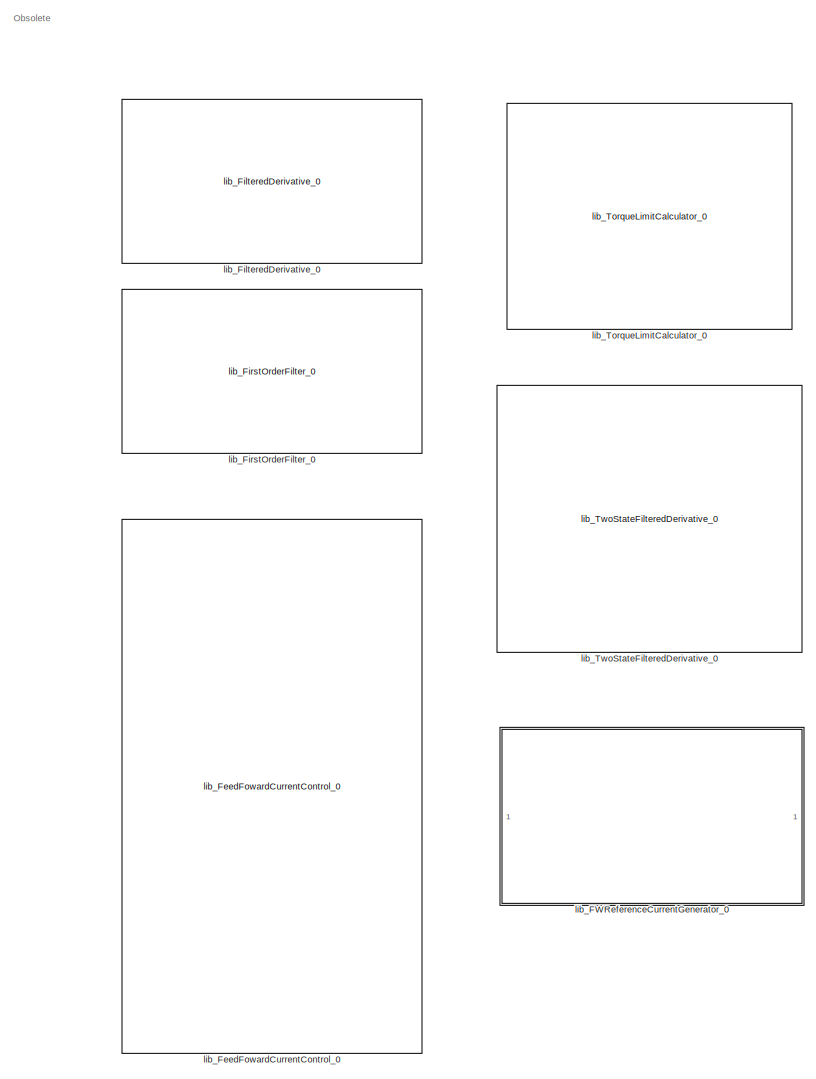
[diagram: root canvas - part 1/6, left side, full height]
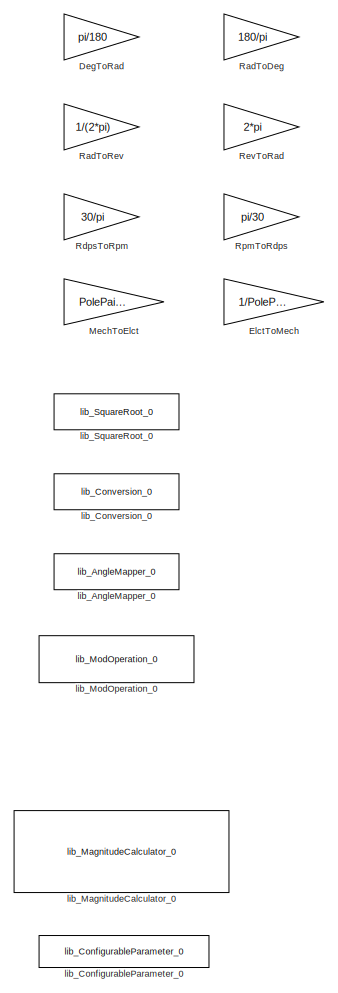
[diagram: root canvas - part 2/6, middle left region]
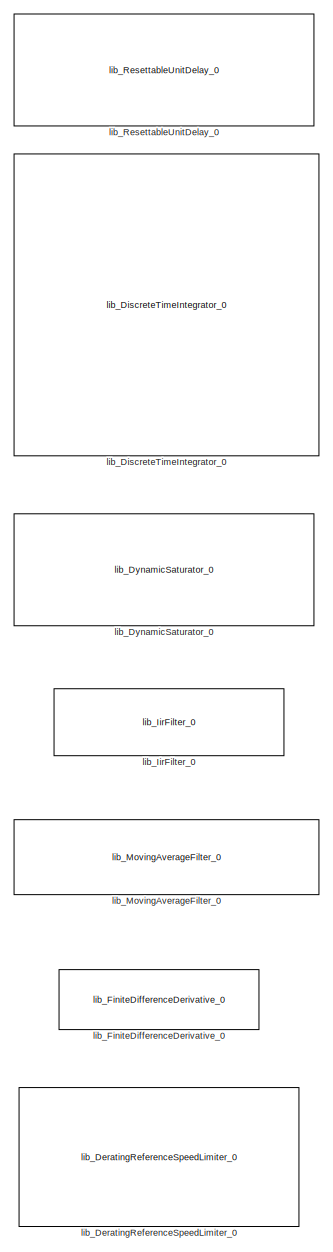
[diagram: root canvas - part 3/6, center side, full height]
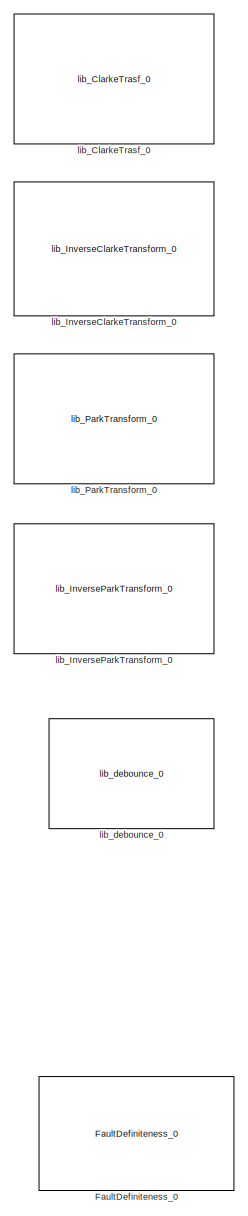
[diagram: root canvas - part 4/6, right side, full height]
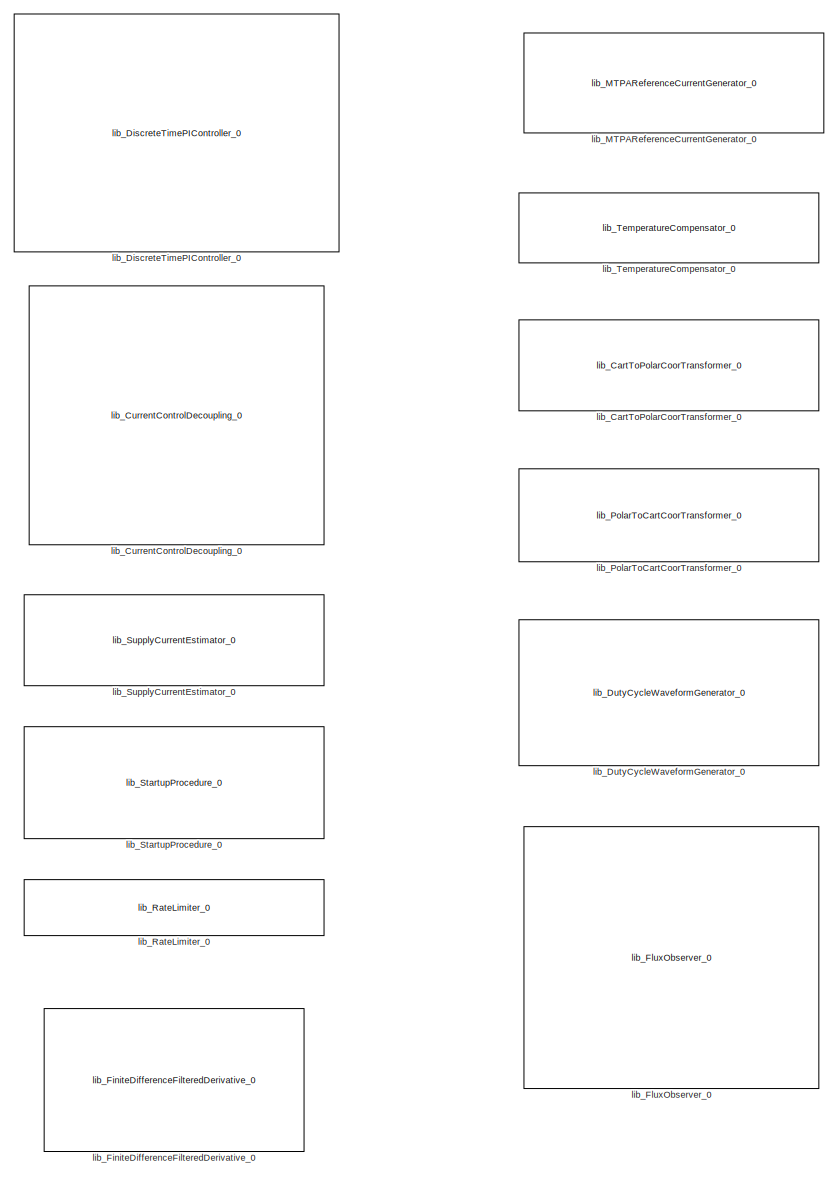
[diagram: root canvas - part 5/6, center side, full height]
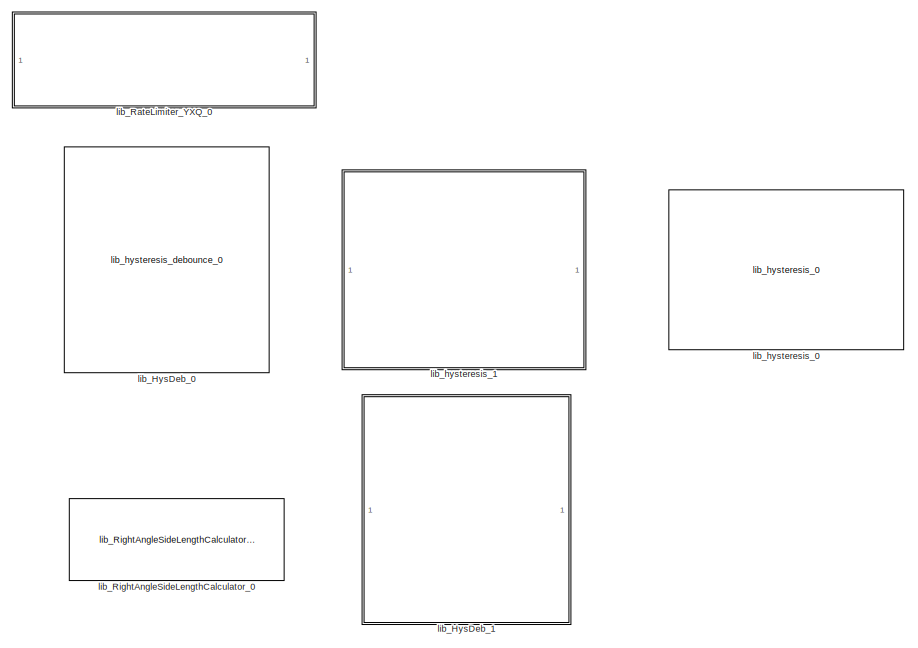
[diagram: root canvas - part 6/6, bottom right region]
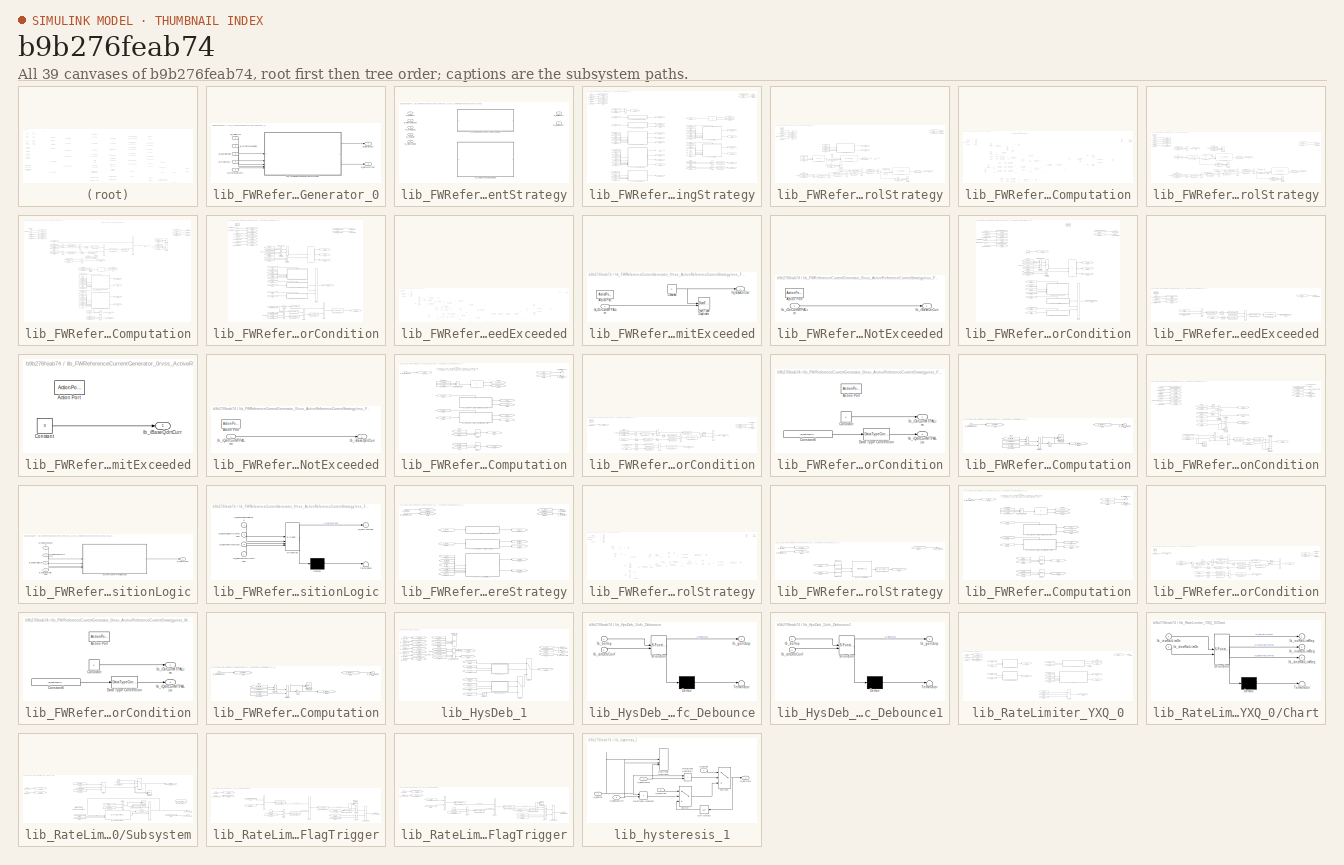
[diagram: thumbnail index - all 39 canvases of the model, root first then tree order]
MODEL slx_b9b276feab74
KIND library
CONFIG AbsTol = auto
CONFIG EnableMultiTasking = off
CONFIG FixedStep = auto
CONFIG MaxStep = auto
CONFIG MinStep = auto
CONFIG RelTol = 1e-3
CONFIG SampleTimeConstraint = Unconstrained
CONFIG SolverName = VariableStepAuto
CONFIG StartTime = 0.0
CONFIG StopTime = 10.0
BLOCK [Gain] DegToRad
  Gain = pi/180
BLOCK [Gain] ElctToMech
  Gain = 1/PolePairNum
BLOCK [Reference] FaultDefiniteness_0  REF=lib_fault_definiteness/FaultDefiniteness_0  (lib defined in slx_7f5d631cc16b)
  SourceBlock = lib_fault_definiteness/FaultDefiniteness_0
BLOCK [Gain] MechToElct
  Gain = PolePairNum
BLOCK [Gain] RadToDeg
  Gain = 180/pi
BLOCK [Gain] RadToRev
  Gain = 1/(2*pi)
BLOCK [Gain] RdpsToRpm
  Gain = 30/pi
BLOCK [Gain] RevToRad
  Gain = 2*pi
BLOCK [Gain] RpmToRdps
  Gain = pi/30
BLOCK [Reference] lib_AngleMapper_0  REF=lib_angle_mapper/lib_AngleMapper_0  (lib defined in slx_5148d822c958)
  SourceBlock = lib_angle_mapper/lib_AngleMapper_0
BLOCK [Reference] lib_CartToPolarCoorTransformer_0  REF=lib_cart_to_polar_coor_transformer/lib_CartToPolarCoorTransformer_0  (lib defined in slx_ee88def4c4dc)
  SourceBlock = lib_cart_to_polar_coor_transformer/lib_CartToPolarCoorTransformer_0
BLOCK [Reference] lib_ClarkeTrasf_0  REF=lib_clarke_transform/lib_ClarkeTrasf_0  (lib defined in slx_aa93ec4d8809)
  SourceBlock = lib_clarke_transform/lib_ClarkeTrasf_0
BLOCK [Reference] lib_ConfigurableParameter_0  REF=lib_configurable_parameter/lib_ConfigurableParameter_0  (lib defined in slx_5d3177bc440c)
  SourceBlock = lib_configurable_parameter/lib_ConfigurableParameter_0
BLOCK [Reference] lib_Conversion_0  REF=lib_conversion/lib_Conversion_0  (lib defined in slx_7f5c0202220d)
  SourceBlock = lib_conversion/lib_Conversion_0
BLOCK [Reference] lib_CurrentControlDecoupling_0  REF=lib_current_control_decoupling/lib_CurrentControlDecoupling_0  (lib defined in slx_9a53209043d8)
  SourceBlock = lib_current_control_decoupling/lib_CurrentControlDecoupling_0
BLOCK [Reference] lib_DeratingReferenceSpeedLimiter_0  REF=lib_derating_reference_speed_limiter/lib_DeratingReferenceSpeedLimiter_0  (lib defined in slx_7ead0c9d0ca9)
  SourceBlock = lib_derating_reference_speed_limiter/lib_DeratingReferenceSpeedLimiter_0
BLOCK [Reference] lib_DiscreteTimeIntegrator_0  REF=lib_discrete_time_integrator/lib_DiscreteTimeIntegrator_0
  SourceBlock = lib_discrete_time_integrator/lib_DiscreteTimeIntegrator_0
BLOCK [Reference] lib_DiscreteTimePIController_0  REF=lib_discrete_time_PI_controller/lib_DiscreteTimePIController_0
  SourceBlock = lib_discrete_time_PI_controller/lib_DiscreteTimePIController_0
BLOCK [Reference] lib_DutyCycleWaveformGenerator_0  REF=lib_duty_cycle_waveform_generator/lib_DutyCycleWaveformGenerator_0
  SourceBlock = lib_duty_cycle_waveform_generator/lib_DutyCycleWaveformGenerator_0
BLOCK [Reference] lib_DynamicSaturator_0  REF=lib_dynamic_saturator/lib_DynamicSaturator_0  (lib defined in slx_fcc78f0d1256)
  SourceBlock = lib_dynamic_saturator/lib_DynamicSaturator_0
BLOCK [SubSystem] lib_FWReferenceCurrentGenerator_0
  LibrarySourceBlock = lib_reference_current_generator/lib_ReferenceCurrentGenerator_0
BLOCK [Outport] lib_FWReferenceCurrentGenerator_0/lb_iRefDirCurr
BLOCK [Outport] lib_FWReferenceCurrentGenerator_0/lb_iRefQdrtCurr
  Port = 2
BLOCK [Inport] lib_FWReferenceCurrentGenerator_0/lb_mfPermMagFlux
  Port = 2
BLOCK [Inport] lib_FWReferenceCurrentGenerator_0/lb_tqRefTrq
BLOCK [Inport] lib_FWReferenceCurrentGenerator_0/lb_vtMaxVoltAmp
  Port = 5
BLOCK [Inport] lib_FWReferenceCurrentGenerator_0/lb_vtVoltAmp
  Port = 4
BLOCK [Inport] lib_FWReferenceCurrentGenerator_0/lb_wActElctSpd
  Port = 3
BLOCK [SubSystem] lib_FWReferenceCurrentGenerator_0/vss_ActiveReferenceCurrentStrategy
  LabelModeActiveChoice = lb_parMTPAStrgLbl
  Variant = on
  VariantControl = Variant2
  VariantControlMode = label
BLOCK [Outport] lib_FWReferenceCurrentGenerator_0/vss_ActiveReferenceCurrentStrategy/lb_iRefDirCurr
  VectorParamsAs1DForOutWhenUnconnected = off
BLOCK [Outport] lib_FWReferenceCurrentGenerator_0/vss_ActiveReferenceCurrentStrategy/lb_iRefQdrtCurr
  Port = 2
  VectorParamsAs1DForOutWhenUnconnected = off
BLOCK [Inport] lib_FWReferenceCurrentGenerator_0/vss_ActiveReferenceCurrentStrategy/lb_mfPermMagFlux
  Port = 2
BLOCK [Inport] lib_FWReferenceCurrentGenerator_0/vss_ActiveReferenceCurrentStrategy/lb_tqRefTrq
BLOCK [Inport] lib_FWReferenceCurrentGenerator_0/vss_ActiveReferenceCurrentStrategy/lb_vtMaxVoltAmp
  Port = 5
BLOCK [Inport] lib_FWReferenceCurrentGenerator_0/vss_ActiveReferenceCurrentStrategy/lb_vtVoltAmp
  Port = 4
BLOCK [Inport] lib_FWReferenceCurrentGenerator_0/vss_ActiveReferenceCurrentStrategy/lb_wActElctSpd
  Port = 3
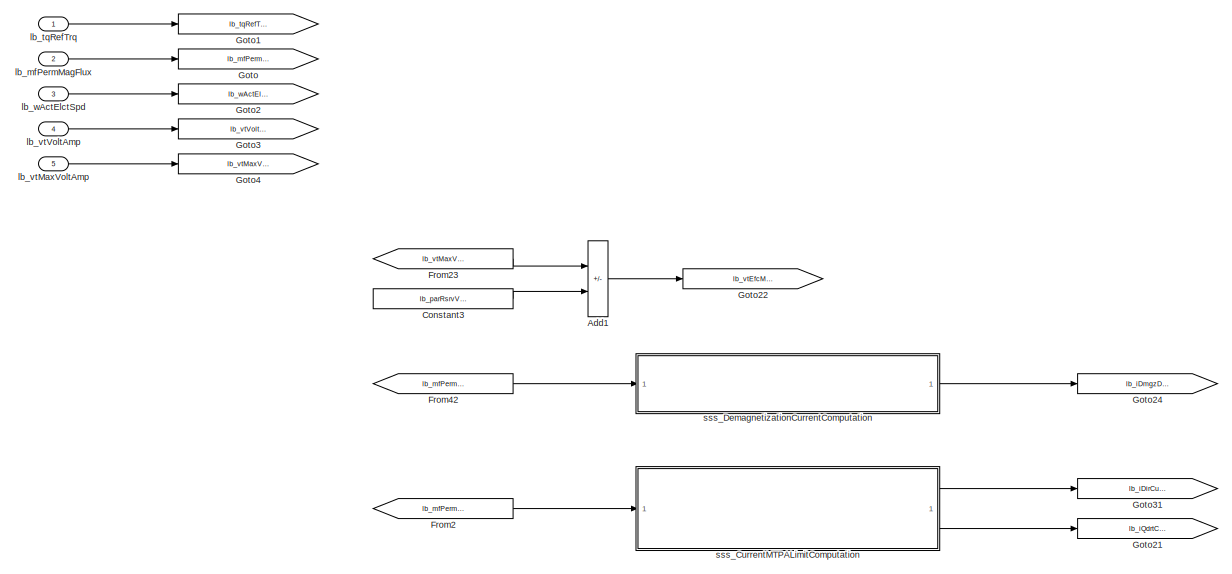
[diagram: lib_FWReferenceCurrentGenerator_0/vss_ActiveReferenceCurrentStrategy/vss_FieldWeakeningStrategy - part 1/4, top left region]
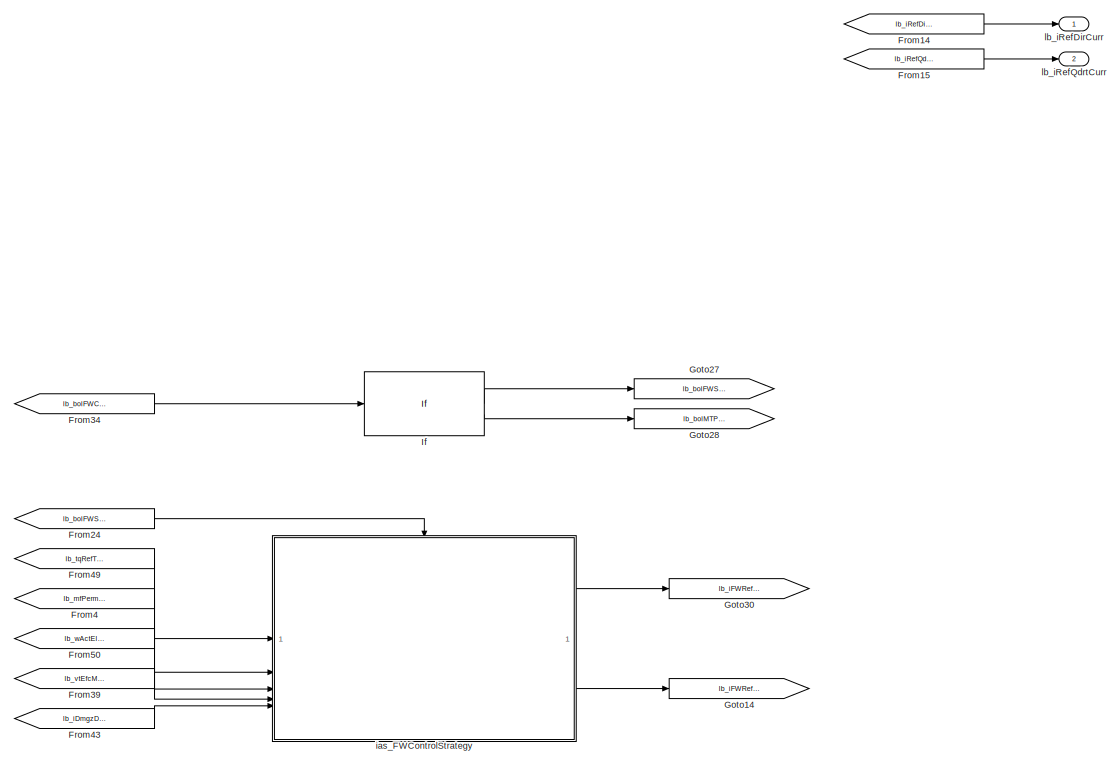
[diagram: lib_FWReferenceCurrentGenerator_0/vss_ActiveReferenceCurrentStrategy/vss_FieldWeakeningStrategy - part 2/4, top right region]
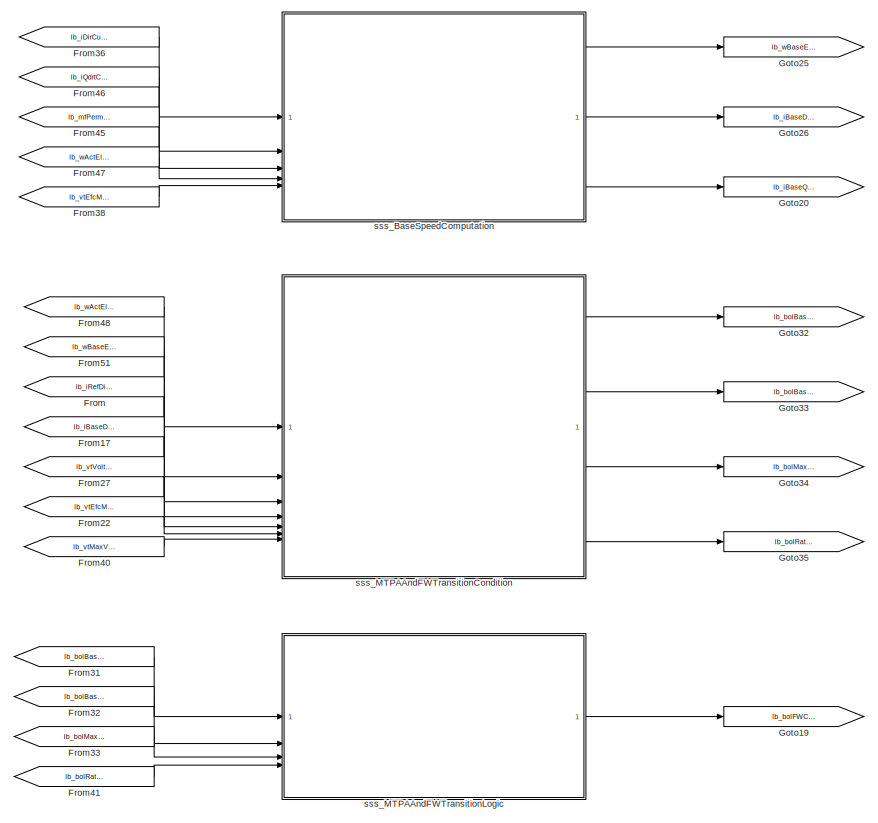
[diagram: lib_FWReferenceCurrentGenerator_0/vss_ActiveReferenceCurrentStrategy/vss_FieldWeakeningStrategy - part 3/4, bottom left region]
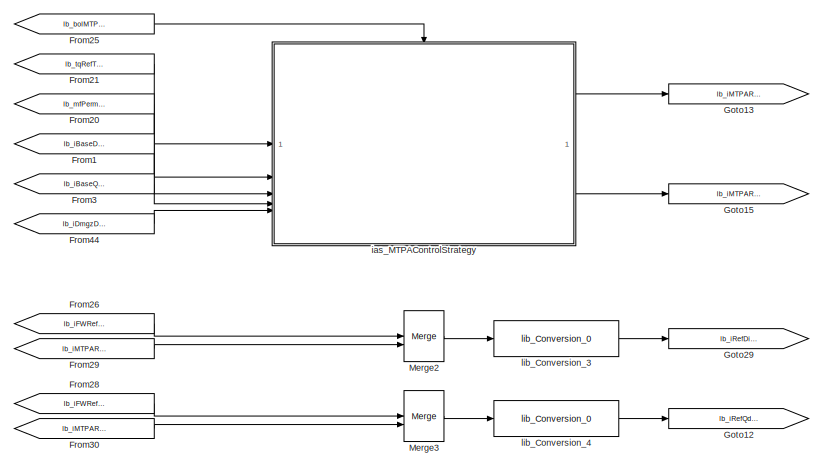
[diagram: lib_FWReferenceCurrentGenerator_0/vss_ActiveReferenceCurrentStrategy/vss_FieldWeakeningStrategy - part 4/4, bottom right region]
BLOCK [SubSystem] lib_FWReferenceCurrentGenerator_0/vss_ActiveReferenceCurrentStrategy/vss_FieldWeakeningStrategy
  VariantControl = lb_parFWStrgLbl
BLOCK [Sum] lib_FWReferenceCurrentGenerator_0/vss_ActiveReferenceCurrentStrategy/vss_FieldWeakeningStrategy/Add1
  IconShape = rectangular
  Inputs = +-
  OutDataTypeStr = Inherit: Same as first input
BLOCK [Constant] lib_FWReferenceCurrentGenerator_0/vss_ActiveReferenceCurrentStrategy/vss_FieldWeakeningStrategy/Constant3
  Value = lb_parRsrvVolt
BLOCK [From] lib_FWReferenceCurrentGenerator_0/vss_ActiveReferenceCurrentStrategy/vss_FieldWeakeningStrategy/From
  GotoTag = lb_iRefDirCurr
BLOCK [From] lib_FWReferenceCurrentGenerator_0/vss_ActiveReferenceCurrentStrategy/vss_FieldWeakeningStrategy/From1
  GotoTag = lb_iBaseDirCurr
BLOCK [From] lib_FWReferenceCurrentGenerator_0/vss_ActiveReferenceCurrentStrategy/vss_FieldWeakeningStrategy/From14
  GotoTag = lb_iRefDirCurr
BLOCK [From] lib_FWReferenceCurrentGenerator_0/vss_ActiveReferenceCurrentStrategy/vss_FieldWeakeningStrategy/From15
  GotoTag = lb_iRefQdrtCurr
BLOCK [From] lib_FWReferenceCurrentGenerator_0/vss_ActiveReferenceCurrentStrategy/vss_FieldWeakeningStrategy/From17
  GotoTag = lb_iBaseDirCurr
BLOCK [From] lib_FWReferenceCurrentGenerator_0/vss_ActiveReferenceCurrentStrategy/vss_FieldWeakeningStrategy/From2
  GotoTag = lb_mfPermMagFlux
BLOCK [From] lib_FWReferenceCurrentGenerator_0/vss_ActiveReferenceCurrentStrategy/vss_FieldWeakeningStrategy/From20
  GotoTag = lb_mfPermMagFlux
BLOCK [From] lib_FWReferenceCurrentGenerator_0/vss_ActiveReferenceCurrentStrategy/vss_FieldWeakeningStrategy/From21
  GotoTag = lb_tqRefTrq
BLOCK [From] lib_FWReferenceCurrentGenerator_0/vss_ActiveReferenceCurrentStrategy/vss_FieldWeakeningStrategy/From22
  GotoTag = lb_vtEfcMaxVoltAmp
BLOCK [From] lib_FWReferenceCurrentGenerator_0/vss_ActiveReferenceCurrentStrategy/vss_FieldWeakeningStrategy/From23
  GotoTag = lb_vtMaxVoltAmp
BLOCK [From] lib_FWReferenceCurrentGenerator_0/vss_ActiveReferenceCurrentStrategy/vss_FieldWeakeningStrategy/From24
  GotoTag = lb_bolFWStrgEnbl
BLOCK [From] lib_FWReferenceCurrentGenerator_0/vss_ActiveReferenceCurrentStrategy/vss_FieldWeakeningStrategy/From25
  GotoTag = lb_bolMTPAStrgEnbl
BLOCK [From] lib_FWReferenceCurrentGenerator_0/vss_ActiveReferenceCurrentStrategy/vss_FieldWeakeningStrategy/From26
  GotoTag = lb_iFWRefDirCurr
BLOCK [From] lib_FWReferenceCurrentGenerator_0/vss_ActiveReferenceCurrentStrategy/vss_FieldWeakeningStrategy/From27
  GotoTag = lb_vtVoltAmp
BLOCK [From] lib_FWReferenceCurrentGenerator_0/vss_ActiveReferenceCurrentStrategy/vss_FieldWeakeningStrategy/From28
  GotoTag = lb_iFWRefQdrtCurr
BLOCK [From] lib_FWReferenceCurrentGenerator_0/vss_ActiveReferenceCurrentStrategy/vss_FieldWeakeningStrategy/From29
  GotoTag = lb_iMTPARefDirCurr
BLOCK [From] lib_FWReferenceCurrentGenerator_0/vss_ActiveReferenceCurrentStrategy/vss_FieldWeakeningStrategy/From3
  GotoTag = lb_iBaseQdrtCurr
BLOCK [From] lib_FWReferenceCurrentGenerator_0/vss_ActiveReferenceCurrentStrategy/vss_FieldWeakeningStrategy/From30
  GotoTag = lb_iMTPARefQdrtCurr
BLOCK [From] lib_FWReferenceCurrentGenerator_0/vss_ActiveReferenceCurrentStrategy/vss_FieldWeakeningStrategy/From31
  GotoTag = lb_bolBaseSpdExcd
BLOCK [From] lib_FWReferenceCurrentGenerator_0/vss_ActiveReferenceCurrentStrategy/vss_FieldWeakeningStrategy/From32
  GotoTag = lb_bolBaseDirCurrExcd
BLOCK [From] lib_FWReferenceCurrentGenerator_0/vss_ActiveReferenceCurrentStrategy/vss_FieldWeakeningStrategy/From33
  GotoTag = lb_bolMaxVoltExcd
BLOCK [From] lib_FWReferenceCurrentGenerator_0/vss_ActiveReferenceCurrentStrategy/vss_FieldWeakeningStrategy/From34
  GotoTag = lb_bolFWCond
BLOCK [From] lib_FWReferenceCurrentGenerator_0/vss_ActiveReferenceCurrentStrategy/vss_FieldWeakeningStrategy/From36
  GotoTag = lb_iDirCurrMTPALim
BLOCK [From] lib_FWReferenceCurrentGenerator_0/vss_ActiveReferenceCurrentStrategy/vss_FieldWeakeningStrategy/From38
  GotoTag = lb_vtEfcMaxVoltAmp
BLOCK [From] lib_FWReferenceCurrentGenerator_0/vss_ActiveReferenceCurrentStrategy/vss_FieldWeakeningStrategy/From39
  GotoTag = lb_vtEfcMaxVoltAmp
BLOCK [From] lib_FWReferenceCurrentGenerator_0/vss_ActiveReferenceCurrentStrategy/vss_FieldWeakeningStrategy/From4
  GotoTag = lb_mfPermMagFlux
BLOCK [From] lib_FWReferenceCurrentGenerator_0/vss_ActiveReferenceCurrentStrategy/vss_FieldWeakeningStrategy/From40
  GotoTag = lb_vtMaxVoltAmp
BLOCK [From] lib_FWReferenceCurrentGenerator_0/vss_ActiveReferenceCurrentStrategy/vss_FieldWeakeningStrategy/From41
  GotoTag = lb_bolRatSplyVoltCond
BLOCK [From] lib_FWReferenceCurrentGenerator_0/vss_ActiveReferenceCurrentStrategy/vss_FieldWeakeningStrategy/From42
  GotoTag = lb_mfPermMagFlux
BLOCK [From] lib_FWReferenceCurrentGenerator_0/vss_ActiveReferenceCurrentStrategy/vss_FieldWeakeningStrategy/From43
  GotoTag = lb_iDmgzDirCurr
BLOCK [From] lib_FWReferenceCurrentGenerator_0/vss_ActiveReferenceCurrentStrategy/vss_FieldWeakeningStrategy/From44
  GotoTag = lb_iDmgzDirCurr
BLOCK [From] lib_FWReferenceCurrentGenerator_0/vss_ActiveReferenceCurrentStrategy/vss_FieldWeakeningStrategy/From45
  GotoTag = lb_mfPermMagFlux
BLOCK [From] lib_FWReferenceCurrentGenerator_0/vss_ActiveReferenceCurrentStrategy/vss_FieldWeakeningStrategy/From46
  GotoTag = lb_iQdrtCurrMTPALim
BLOCK [From] lib_FWReferenceCurrentGenerator_0/vss_ActiveReferenceCurrentStrategy/vss_FieldWeakeningStrategy/From47
  GotoTag = lb_wActElctSpd
BLOCK [From] lib_FWReferenceCurrentGenerator_0/vss_ActiveReferenceCurrentStrategy/vss_FieldWeakeningStrategy/From48
  GotoTag = lb_wActElctSpd
BLOCK [From] lib_FWReferenceCurrentGenerator_0/vss_ActiveReferenceCurrentStrategy/vss_FieldWeakeningStrategy/From49
  GotoTag = lb_tqRefTrq
BLOCK [From] lib_FWReferenceCurrentGenerator_0/vss_ActiveReferenceCurrentStrategy/vss_FieldWeakeningStrategy/From50
  GotoTag = lb_wActElctSpd
BLOCK [From] lib_FWReferenceCurrentGenerator_0/vss_ActiveReferenceCurrentStrategy/vss_FieldWeakeningStrategy/From51
  GotoTag = lb_wBaseElctSpd
BLOCK [Goto] lib_FWReferenceCurrentGenerator_0/vss_ActiveReferenceCurrentStrategy/vss_FieldWeakeningStrategy/Goto
  GotoTag = lb_mfPermMagFlux
BLOCK [Goto] lib_FWReferenceCurrentGenerator_0/vss_ActiveReferenceCurrentStrategy/vss_FieldWeakeningStrategy/Goto1
  GotoTag = lb_tqRefTrq
BLOCK [Goto] lib_FWReferenceCurrentGenerator_0/vss_ActiveReferenceCurrentStrategy/vss_FieldWeakeningStrategy/Goto12
  GotoTag = lb_iRefQdrtCurr
BLOCK [Goto] lib_FWReferenceCurrentGenerator_0/vss_ActiveReferenceCurrentStrategy/vss_FieldWeakeningStrategy/Goto13
  GotoTag = lb_iMTPARefDirCurr
BLOCK [Goto] lib_FWReferenceCurrentGenerator_0/vss_ActiveReferenceCurrentStrategy/vss_FieldWeakeningStrategy/Goto14
  GotoTag = lb_iFWRefQdrtCurr
BLOCK [Goto] lib_FWReferenceCurrentGenerator_0/vss_ActiveReferenceCurrentStrategy/vss_FieldWeakeningStrategy/Goto15
  GotoTag = lb_iMTPARefQdrtCurr
BLOCK [Goto] lib_FWReferenceCurrentGenerator_0/vss_ActiveReferenceCurrentStrategy/vss_FieldWeakeningStrategy/Goto19
  GotoTag = lb_bolFWCond
BLOCK [Goto] lib_FWReferenceCurrentGenerator_0/vss_ActiveReferenceCurrentStrategy/vss_FieldWeakeningStrategy/Goto2
  GotoTag = lb_wActElctSpd
BLOCK [Goto] lib_FWReferenceCurrentGenerator_0/vss_ActiveReferenceCurrentStrategy/vss_FieldWeakeningStrategy/Goto20
  GotoTag = lb_iBaseQdrtCurr
BLOCK [Goto] lib_FWReferenceCurrentGenerator_0/vss_ActiveReferenceCurrentStrategy/vss_FieldWeakeningStrategy/Goto21
  GotoTag = lb_iQdrtCurrMTPALim
BLOCK [Goto] lib_FWReferenceCurrentGenerator_0/vss_ActiveReferenceCurrentStrategy/vss_FieldWeakeningStrategy/Goto22
  GotoTag = lb_vtEfcMaxVoltAmp
BLOCK [Goto] lib_FWReferenceCurrentGenerator_0/vss_ActiveReferenceCurrentStrategy/vss_FieldWeakeningStrategy/Goto24
  GotoTag = lb_iDmgzDirCurr
BLOCK [Goto] lib_FWReferenceCurrentGenerator_0/vss_ActiveReferenceCurrentStrategy/vss_FieldWeakeningStrategy/Goto25
  GotoTag = lb_wBaseElctSpd
BLOCK [Goto] lib_FWReferenceCurrentGenerator_0/vss_ActiveReferenceCurrentStrategy/vss_FieldWeakeningStrategy/Goto26
  GotoTag = lb_iBaseDirCurr
BLOCK [Goto] lib_FWReferenceCurrentGenerator_0/vss_ActiveReferenceCurrentStrategy/vss_FieldWeakeningStrategy/Goto27
  GotoTag = lb_bolFWStrgEnbl
BLOCK [Goto] lib_FWReferenceCurrentGenerator_0/vss_ActiveReferenceCurrentStrategy/vss_FieldWeakeningStrategy/Goto28
  GotoTag = lb_bolMTPAStrgEnbl
BLOCK [Goto] lib_FWReferenceCurrentGenerator_0/vss_ActiveReferenceCurrentStrategy/vss_FieldWeakeningStrategy/Goto29
  GotoTag = lb_iRefDirCurr
BLOCK [Goto] lib_FWReferenceCurrentGenerator_0/vss_ActiveReferenceCurrentStrategy/vss_FieldWeakeningStrategy/Goto3
  GotoTag = lb_vtVoltAmp
BLOCK [Goto] lib_FWReferenceCurrentGenerator_0/vss_ActiveReferenceCurrentStrategy/vss_FieldWeakeningStrategy/Goto30
  GotoTag = lb_iFWRefDirCurr
BLOCK [Goto] lib_FWReferenceCurrentGenerator_0/vss_ActiveReferenceCurrentStrategy/vss_FieldWeakeningStrategy/Goto31
  GotoTag = lb_iDirCurrMTPALim
BLOCK [Goto] lib_FWReferenceCurrentGenerator_0/vss_ActiveReferenceCurrentStrategy/vss_FieldWeakeningStrategy/Goto32
  GotoTag = lb_bolBaseSpdExcd
BLOCK [Goto] lib_FWReferenceCurrentGenerator_0/vss_ActiveReferenceCurrentStrategy/vss_FieldWeakeningStrategy/Goto33
  GotoTag = lb_bolBaseDirCurrExcd
BLOCK [Goto] lib_FWReferenceCurrentGenerator_0/vss_ActiveReferenceCurrentStrategy/vss_FieldWeakeningStrategy/Goto34
  GotoTag = lb_bolMaxVoltExcd
BLOCK [Goto] lib_FWReferenceCurrentGenerator_0/vss_ActiveReferenceCurrentStrategy/vss_FieldWeakeningStrategy/Goto35
  GotoTag = lb_bolRatSplyVoltCond
BLOCK [Goto] lib_FWReferenceCurrentGenerator_0/vss_ActiveReferenceCurrentStrategy/vss_FieldWeakeningStrategy/Goto4
  GotoTag = lb_vtMaxVoltAmp
BLOCK [If] lib_FWReferenceCurrentGenerator_0/vss_ActiveReferenceCurrentStrategy/vss_FieldWeakeningStrategy/If
  IfExpression = u1
BLOCK [Merge] lib_FWReferenceCurrentGenerator_0/vss_ActiveReferenceCurrentStrategy/vss_FieldWeakeningStrategy/Merge2
BLOCK [Merge] lib_FWReferenceCurrentGenerator_0/vss_ActiveReferenceCurrentStrategy/vss_FieldWeakeningStrategy/Merge3
BLOCK [SubSystem] lib_FWReferenceCurrentGenerator_0/vss_ActiveReferenceCurrentStrategy/vss_FieldWeakeningStrategy/ias_FWControlStrategy
  TreatAsAtomicUnit = on
BLOCK [ActionPort] lib_FWReferenceCurrentGenerator_0/vss_ActiveReferenceCurrentStrategy/vss_FieldWeakeningStrategy/ias_FWControlStrategy/Action Port
BLOCK [Sum] lib_FWReferenceCurrentGenerator_0/vss_ActiveReferenceCurrentStrategy/vss_FieldWeakeningStrategy/ias_FWControlStrategy/Add1
  IconShape = rectangular
  Inputs = +-
  OutDataTypeStr = Inherit: Inherit via back propagation
BLOCK [Sum] lib_FWReferenceCurrentGenerator_0/vss_ActiveReferenceCurrentStrategy/vss_FieldWeakeningStrategy/ias_FWControlStrategy/Add2
  IconShape = rectangular
  Inputs = +-
  OutDataTypeStr = Inherit: Inherit via back propagation
BLOCK [Constant] lib_FWReferenceCurrentGenerator_0/vss_ActiveReferenceCurrentStrategy/vss_FieldWeakeningStrategy/ias_FWControlStrategy/Constant
  OutDataTypeStr = Inherit: Inherit via back propagation
  Value = 0
BLOCK [Constant] lib_FWReferenceCurrentGenerator_0/vss_ActiveReferenceCurrentStrategy/vss_FieldWeakeningStrategy/ias_FWControlStrategy/Constant2
  Value = lb_parPolePairNum
BLOCK [Constant] lib_FWReferenceCurrentGenerator_0/vss_ActiveReferenceCurrentStrategy/vss_FieldWeakeningStrategy/ias_FWControlStrategy/Constant3
  Value = lb_parQdrtIndc
BLOCK [Constant] lib_FWReferenceCurrentGenerator_0/vss_ActiveReferenceCurrentStrategy/vss_FieldWeakeningStrategy/ias_FWControlStrategy/Constant4
  Value = lb_parDirIndc
BLOCK [Constant] lib_FWReferenceCurrentGenerator_0/vss_ActiveReferenceCurrentStrategy/vss_FieldWeakeningStrategy/ias_FWControlStrategy/Constant5
  OutDataTypeStr = Inherit: Inherit via back propagation
  Value = 0
BLOCK [DataTypeConversion] lib_FWReferenceCurrentGenerator_0/vss_ActiveReferenceCurrentStrategy/vss_FieldWeakeningStrategy/ias_FWControlStrategy/Data Type Conversion1
  RndMeth = Floor
  SaturateOnIntegerOverflow = off
BLOCK [DataTypeConversion] lib_FWReferenceCurrentGenerator_0/vss_ActiveReferenceCurrentStrategy/vss_FieldWeakeningStrategy/ias_FWControlStrategy/Data Type Conversion2
  RndMeth = Floor
  SaturateOnIntegerOverflow = off
BLOCK [DataTypeDuplicate] lib_FWReferenceCurrentGenerator_0/vss_ActiveReferenceCurrentStrategy/vss_FieldWeakeningStrategy/ias_FWControlStrategy/Data Type Duplicate1
  NumInputPorts = 3
BLOCK [DataTypeDuplicate] lib_FWReferenceCurrentGenerator_0/vss_ActiveReferenceCurrentStrategy/vss_FieldWeakeningStrategy/ias_FWControlStrategy/Data Type Duplicate3
  NumInputPorts = 3
BLOCK [Product] lib_FWReferenceCurrentGenerator_0/vss_ActiveReferenceCurrentStrategy/vss_FieldWeakeningStrategy/ias_FWControlStrategy/Divide
  Inputs = */
  OutDataTypeStr = Inherit: Inherit via back propagation
BLOCK [From] lib_FWReferenceCurrentGenerator_0/vss_ActiveReferenceCurrentStrategy/vss_FieldWeakeningStrategy/ias_FWControlStrategy/From
  GotoTag = lb_iFWRefDirCurr
BLOCK [From] lib_FWReferenceCurrentGenerator_0/vss_ActiveReferenceCurrentStrategy/vss_FieldWeakeningStrategy/ias_FWControlStrategy/From1
  GotoTag = lb_iFWRefDirCurr
BLOCK [From] lib_FWReferenceCurrentGenerator_0/vss_ActiveReferenceCurrentStrategy/vss_FieldWeakeningStrategy/ias_FWControlStrategy/From10
  GotoTag = lb_iFWRefDirCurr
BLOCK [From] lib_FWReferenceCurrentGenerator_0/vss_ActiveReferenceCurrentStrategy/vss_FieldWeakeningStrategy/ias_FWControlStrategy/From11
  GotoTag = lb_tqRefTrq
BLOCK [From] lib_FWReferenceCurrentGenerator_0/vss_ActiveReferenceCurrentStrategy/vss_FieldWeakeningStrategy/ias_FWControlStrategy/From12
  GotoTag = lb_mfPermMagFlux
BLOCK [From] lib_FWReferenceCurrentGenerator_0/vss_ActiveReferenceCurrentStrategy/vss_FieldWeakeningStrategy/ias_FWControlStrategy/From13
  GotoTag = lb_iFWRefQdrtCurr
BLOCK [From] lib_FWReferenceCurrentGenerator_0/vss_ActiveReferenceCurrentStrategy/vss_FieldWeakeningStrategy/ias_FWControlStrategy/From14
  GotoTag = lb_iQdrtCurrFWLim
BLOCK [From] lib_FWReferenceCurrentGenerator_0/vss_ActiveReferenceCurrentStrategy/vss_FieldWeakeningStrategy/ias_FWControlStrategy/From15
  GotoTag = lb_iQdrtCurrFWLim
BLOCK [From] lib_FWReferenceCurrentGenerator_0/vss_ActiveReferenceCurrentStrategy/vss_FieldWeakeningStrategy/ias_FWControlStrategy/From16
  GotoTag = lb_vtEfcMaxVoltAmp
BLOCK [From] lib_FWReferenceCurrentGenerator_0/vss_ActiveReferenceCurrentStrategy/vss_FieldWeakeningStrategy/ias_FWControlStrategy/From17
  GotoTag = lb_iDmgzDirCurr
BLOCK [From] lib_FWReferenceCurrentGenerator_0/vss_ActiveReferenceCurrentStrategy/vss_FieldWeakeningStrategy/ias_FWControlStrategy/From2
  GotoTag = lb_iFWRefQdrtCurr
BLOCK [From] lib_FWReferenceCurrentGenerator_0/vss_ActiveReferenceCurrentStrategy/vss_FieldWeakeningStrategy/ias_FWControlStrategy/From3
  GotoTag = lb_tqRefTrq
BLOCK [From] lib_FWReferenceCurrentGenerator_0/vss_ActiveReferenceCurrentStrategy/vss_FieldWeakeningStrategy/ias_FWControlStrategy/From4
  GotoTag = lb_mfPermMagFlux
BLOCK [From] lib_FWReferenceCurrentGenerator_0/vss_ActiveReferenceCurrentStrategy/vss_FieldWeakeningStrategy/ias_FWControlStrategy/From5
  GotoTag = lb_wActElctSpd
BLOCK [From] lib_FWReferenceCurrentGenerator_0/vss_ActiveReferenceCurrentStrategy/vss_FieldWeakeningStrategy/ias_FWControlStrategy/From6
  GotoTag = lb_wActElctSpd
BLOCK [From] lib_FWReferenceCurrentGenerator_0/vss_ActiveReferenceCurrentStrategy/vss_FieldWeakeningStrategy/ias_FWControlStrategy/From7
  GotoTag = lb_mfPermMagFlux
BLOCK [From] lib_FWReferenceCurrentGenerator_0/vss_ActiveReferenceCurrentStrategy/vss_FieldWeakeningStrategy/ias_FWControlStrategy/From8
  GotoTag = lb_iDirCurrFWLim
BLOCK [From] lib_FWReferenceCurrentGenerator_0/vss_ActiveReferenceCurrentStrategy/vss_FieldWeakeningStrategy/ias_FWControlStrategy/From9
  GotoTag = lb_iDirCurrFWLim
BLOCK [Gain] lib_FWReferenceCurrentGenerator_0/vss_ActiveReferenceCurrentStrategy/vss_FieldWeakeningStrategy/ias_FWControlStrategy/Gain2
  Gain = 3/2
  OutDataTypeStr = Inherit: Inherit via back propagation
BLOCK [Goto] lib_FWReferenceCurrentGenerator_0/vss_ActiveReferenceCurrentStrategy/vss_FieldWeakeningStrategy/ias_FWControlStrategy/Goto16
  GotoTag = lb_vtEfcMaxVoltAmp
BLOCK [Goto] lib_FWReferenceCurrentGenerator_0/vss_ActiveReferenceCurrentStrategy/vss_FieldWeakeningStrategy/ias_FWControlStrategy/Goto17
  GotoTag = lb_iDmgzDirCurr
BLOCK [Goto] lib_FWReferenceCurrentGenerator_0/vss_ActiveReferenceCurrentStrategy/vss_FieldWeakeningStrategy/ias_FWControlStrategy/Goto2
  GotoTag = lb_iFWRefDirCurr
BLOCK [Goto] lib_FWReferenceCurrentGenerator_0/vss_ActiveReferenceCurrentStrategy/vss_FieldWeakeningStrategy/ias_FWControlStrategy/Goto3
  GotoTag = lb_iFWRefQdrtCurr
BLOCK [Goto] lib_FWReferenceCurrentGenerator_0/vss_ActiveReferenceCurrentStrategy/vss_FieldWeakeningStrategy/ias_FWControlStrategy/Goto4
  GotoTag = lb_tqRefTrq
BLOCK [Goto] lib_FWReferenceCurrentGenerator_0/vss_ActiveReferenceCurrentStrategy/vss_FieldWeakeningStrategy/ias_FWControlStrategy/Goto5
  GotoTag = lb_mfPermMagFlux
BLOCK [Goto] lib_FWReferenceCurrentGenerator_0/vss_ActiveReferenceCurrentStrategy/vss_FieldWeakeningStrategy/ias_FWControlStrategy/Goto6
  GotoTag = lb_wActElctSpd
BLOCK [Goto] lib_FWReferenceCurrentGenerator_0/vss_ActiveReferenceCurrentStrategy/vss_FieldWeakeningStrategy/ias_FWControlStrategy/Goto7
  GotoTag = lb_iDirCurrFWLim
BLOCK [Goto] lib_FWReferenceCurrentGenerator_0/vss_ActiveReferenceCurrentStrategy/vss_FieldWeakeningStrategy/ias_FWControlStrategy/Goto8
  GotoTag = lb_iQdrtCurrFWLim
BLOCK [Product] lib_FWReferenceCurrentGenerator_0/vss_ActiveReferenceCurrentStrategy/vss_FieldWeakeningStrategy/ias_FWControlStrategy/Product
  OutDataTypeStr = Inherit: Inherit via back propagation
BLOCK [Product] lib_FWReferenceCurrentGenerator_0/vss_ActiveReferenceCurrentStrategy/vss_FieldWeakeningStrategy/ias_FWControlStrategy/Product1
  OutDataTypeStr = Inherit: Inherit via back propagation
BLOCK [Inport] lib_FWReferenceCurrentGenerator_0/vss_ActiveReferenceCurrentStrategy/vss_FieldWeakeningStrategy/ias_FWControlStrategy/lb_iDmgzDirCurr
  Port = 5
BLOCK [Outport] lib_FWReferenceCurrentGenerator_0/vss_ActiveReferenceCurrentStrategy/vss_FieldWeakeningStrategy/ias_FWControlStrategy/lb_iFWRefDirCurr
BLOCK [Outport] lib_FWReferenceCurrentGenerator_0/vss_ActiveReferenceCurrentStrategy/vss_FieldWeakeningStrategy/ias_FWControlStrategy/lb_iFWRefQdrtCurr
  Port = 2
BLOCK [Inport] lib_FWReferenceCurrentGenerator_0/vss_ActiveReferenceCurrentStrategy/vss_FieldWeakeningStrategy/ias_FWControlStrategy/lb_mfPermMagFlux
  Port = 2
BLOCK [Inport] lib_FWReferenceCurrentGenerator_0/vss_ActiveReferenceCurrentStrategy/vss_FieldWeakeningStrategy/ias_FWControlStrategy/lb_tqRefTrq
BLOCK [Inport] lib_FWReferenceCurrentGenerator_0/vss_ActiveReferenceCurrentStrategy/vss_FieldWeakeningStrategy/ias_FWControlStrategy/lb_vtEfcMaxVoltAmp
  Port = 4
BLOCK [Inport] lib_FWReferenceCurrentGenerator_0/vss_ActiveReferenceCurrentStrategy/vss_FieldWeakeningStrategy/ias_FWControlStrategy/lb_wActElctSpd
  Port = 3
BLOCK [Reference] lib_FWReferenceCurrentGenerator_0/vss_ActiveReferenceCurrentStrategy/vss_FieldWeakeningStrategy/ias_FWControlStrategy/lib_DynamicSaturator_1  REF=lib_dynamic_saturator/lib_DynamicSaturator_0  (lib defined in slx_fcc78f0d1256)
  SourceBlock = lib_dynamic_saturator/lib_DynamicSaturator_0
BLOCK [Reference] lib_FWReferenceCurrentGenerator_0/vss_ActiveReferenceCurrentStrategy/vss_FieldWeakeningStrategy/ias_FWControlStrategy/lib_DynamicSaturator_2  REF=lib_dynamic_saturator/lib_DynamicSaturator_0  (lib defined in slx_fcc78f0d1256)
  SourceBlock = lib_dynamic_saturator/lib_DynamicSaturator_0
BLOCK [Reference] lib_FWReferenceCurrentGenerator_0/vss_ActiveReferenceCurrentStrategy/vss_FieldWeakeningStrategy/ias_FWControlStrategy/lib_s16p18b0_1  REF=lib_conversion/lib_Conversion_0  (lib defined in slx_7f5c0202220d)
  SourceBlock = lib_conversion/lib_Conversion_0
BLOCK [Reference] lib_FWReferenceCurrentGenerator_0/vss_ActiveReferenceCurrentStrategy/vss_FieldWeakeningStrategy/ias_FWControlStrategy/lib_s16p19b0_1  REF=lib_conversion/lib_Conversion_0  (lib defined in slx_7f5c0202220d)
  SourceBlock = lib_conversion/lib_Conversion_0
BLOCK [Reference] lib_FWReferenceCurrentGenerator_0/vss_ActiveReferenceCurrentStrategy/vss_FieldWeakeningStrategy/ias_FWControlStrategy/lib_s16p19b0_4  REF=lib_conversion/lib_Conversion_0  (lib defined in slx_7f5c0202220d)
  SourceBlock = lib_conversion/lib_Conversion_0
BLOCK [Reference] lib_FWReferenceCurrentGenerator_0/vss_ActiveReferenceCurrentStrategy/vss_FieldWeakeningStrategy/ias_FWControlStrategy/lib_s16p21b0_1  REF=lib_conversion/lib_Conversion_0  (lib defined in slx_7f5c0202220d)
  SourceBlock = lib_conversion/lib_Conversion_0
BLOCK [Reference] lib_FWReferenceCurrentGenerator_0/vss_ActiveReferenceCurrentStrategy/vss_FieldWeakeningStrategy/ias_FWControlStrategy/lib_s16p29b0_1  REF=lib_conversion/lib_Conversion_0  (lib defined in slx_7f5c0202220d)
  SourceBlock = lib_conversion/lib_Conversion_0
BLOCK [Lookup_n-D] lib_FWReferenceCurrentGenerator_0/vss_ActiveReferenceCurrentStrategy/vss_FieldWeakeningStrategy/ias_FWControlStrategy/lkt_FWControlStrategy
  BeginIndexSearchUsingPreviousIndexResult = on
  BreakpointsForDimension1 = lb_parFWTrqData
  BreakpointsForDimension2 = lb_parFWPermMagFluxData
  BreakpointsForDimension3 = lb_parFWElctSpdData
  ExtrapMethod = Clip
  InputPortMap = u0,u1,u2
  InputSameDT = off
  InternalRulePriority = Speed
  NumberOfTableDimensions = 3
  OutDataTypeStr = Inherit: Inherit via back propagation
  RndMeth = Simplest
  Table = lb_parFW3DLktMtrx
BLOCK [SubSystem] lib_FWReferenceCurrentGenerator_0/vss_ActiveReferenceCurrentStrategy/vss_FieldWeakeningStrategy/ias_FWControlStrategy/sss_CurrentFWLimitComputation
BLOCK [Sum] lib_FWReferenceCurrentGenerator_0/vss_ActiveReferenceCurrentStrategy/vss_FieldWeakeningStrategy/ias_FWControlStrategy/sss_CurrentFWLimitComputation/Add12
  IconShape = rectangular
  OutDataTypeStr = Inherit: Same as first input
BLOCK [Sum] lib_FWReferenceCurrentGenerator_0/vss_ActiveReferenceCurrentStrategy/vss_FieldWeakeningStrategy/ias_FWControlStrategy/sss_CurrentFWLimitComputation/Add13
  IconShape = rectangular
  Inputs = +-
  OutDataTypeStr = Inherit: Inherit via back propagation
BLOCK [Sum] lib_FWReferenceCurrentGenerator_0/vss_ActiveReferenceCurrentStrategy/vss_FieldWeakeningStrategy/ias_FWControlStrategy/sss_CurrentFWLimitComputation/Add14
  IconShape = rectangular
  Inputs = +-
  OutDataTypeStr = Inherit: Same as first input
BLOCK [Sum] lib_FWReferenceCurrentGenerator_0/vss_ActiveReferenceCurrentStrategy/vss_FieldWeakeningStrategy/ias_FWControlStrategy/sss_CurrentFWLimitComputation/Add8
  IconShape = rectangular
  Inputs = +-
  OutDataTypeStr = Inherit: Inherit via back propagation
BLOCK [Sum] lib_FWReferenceCurrentGenerator_0/vss_ActiveReferenceCurrentStrategy/vss_FieldWeakeningStrategy/ias_FWControlStrategy/sss_CurrentFWLimitComputation/Add9
  IconShape = rectangular
  Inputs = ++-
  OutDataTypeStr = Inherit: Inherit via back propagation
BLOCK [Constant] lib_FWReferenceCurrentGenerator_0/vss_ActiveReferenceCurrentStrategy/vss_FieldWeakeningStrategy/ias_FWControlStrategy/sss_CurrentFWLimitComputation/Constant
  OutDataTypeStr = Inherit: Inherit via back propagation
  Value = 0
BLOCK [Constant] lib_FWReferenceCurrentGenerator_0/vss_ActiveReferenceCurrentStrategy/vss_FieldWeakeningStrategy/ias_FWControlStrategy/sss_CurrentFWLimitComputation/Constant1
  Value = lb_parMaxPhsCurr
BLOCK [Constant] lib_FWReferenceCurrentGenerator_0/vss_ActiveReferenceCurrentStrategy/vss_FieldWeakeningStrategy/ias_FWControlStrategy/sss_CurrentFWLimitComputation/Constant11
  Value = lb_parQdrtIndc
BLOCK [Constant] lib_FWReferenceCurrentGenerator_0/vss_ActiveReferenceCurrentStrategy/vss_FieldWeakeningStrategy/ias_FWControlStrategy/sss_CurrentFWLimitComputation/Constant12
  Value = lb_parDirIndc
BLOCK [Constant] lib_FWReferenceCurrentGenerator_0/vss_ActiveReferenceCurrentStrategy/vss_FieldWeakeningStrategy/ias_FWControlStrategy/sss_CurrentFWLimitComputation/Constant13
  Value = lb_parDirIndc
BLOCK [Constant] lib_FWReferenceCurrentGenerator_0/vss_ActiveReferenceCurrentStrategy/vss_FieldWeakeningStrategy/ias_FWControlStrategy/sss_CurrentFWLimitComputation/Constant14
  Value = lb_parQdrtIndc
BLOCK [Constant] lib_FWReferenceCurrentGenerator_0/vss_ActiveReferenceCurrentStrategy/vss_FieldWeakeningStrategy/ias_FWControlStrategy/sss_CurrentFWLimitComputation/Constant15
  Value = lb_parMaxPhsCurr
BLOCK [Constant] lib_FWReferenceCurrentGenerator_0/vss_ActiveReferenceCurrentStrategy/vss_FieldWeakeningStrategy/ias_FWControlStrategy/sss_CurrentFWLimitComputation/Constant20
  Value = lb_parMaxPhsCurr
BLOCK [DataTypeConversion] lib_FWReferenceCurrentGenerator_0/vss_ActiveReferenceCurrentStrategy/vss_FieldWeakeningStrategy/ias_FWControlStrategy/sss_CurrentFWLimitComputation/Data Type Conversion
  RndMeth = Floor
  SaturateOnIntegerOverflow = off
BLOCK [DataTypeDuplicate] lib_FWReferenceCurrentGenerator_0/vss_ActiveReferenceCurrentStrategy/vss_FieldWeakeningStrategy/ias_FWControlStrategy/sss_CurrentFWLimitComputation/Data Type Duplicate
BLOCK [DataTypeDuplicate] lib_FWReferenceCurrentGenerator_0/vss_ActiveReferenceCurrentStrategy/vss_FieldWeakeningStrategy/ias_FWControlStrategy/sss_CurrentFWLimitComputation/Data Type Duplicate1
  NumInputPorts = 3
BLOCK [DataTypeDuplicate] lib_FWReferenceCurrentGenerator_0/vss_ActiveReferenceCurrentStrategy/vss_FieldWeakeningStrategy/ias_FWControlStrategy/sss_CurrentFWLimitComputation/Data Type Duplicate2
  NumInputPorts = 3
BLOCK [Product] lib_FWReferenceCurrentGenerator_0/vss_ActiveReferenceCurrentStrategy/vss_FieldWeakeningStrategy/ias_FWControlStrategy/sss_CurrentFWLimitComputation/Divide3
  Inputs = */
  OutDataTypeStr = Inherit: Inherit via back propagation
BLOCK [Product] lib_FWReferenceCurrentGenerator_0/vss_ActiveReferenceCurrentStrategy/vss_FieldWeakeningStrategy/ias_FWControlStrategy/sss_CurrentFWLimitComputation/Divide4
  Inputs = */
  OutDataTypeStr = Inherit: Inherit via back propagation
BLOCK [Product] lib_FWReferenceCurrentGenerator_0/vss_ActiveReferenceCurrentStrategy/vss_FieldWeakeningStrategy/ias_FWControlStrategy/sss_CurrentFWLimitComputation/Divide5
  Inputs = */
  OutDataTypeStr = Inherit: Inherit via back propagation
BLOCK [From] lib_FWReferenceCurrentGenerator_0/vss_ActiveReferenceCurrentStrategy/vss_FieldWeakeningStrategy/ias_FWControlStrategy/sss_CurrentFWLimitComputation/From
  GotoTag = lb_iDirCurrFWLim
BLOCK [From] lib_FWReferenceCurrentGenerator_0/vss_ActiveReferenceCurrentStrategy/vss_FieldWeakeningStrategy/ias_FWControlStrategy/sss_CurrentFWLimitComputation/From1
  GotoTag = lb_mfPermMagFlux
BLOCK [From] lib_FWReferenceCurrentGenerator_0/vss_ActiveReferenceCurrentStrategy/vss_FieldWeakeningStrategy/ias_FWControlStrategy/sss_CurrentFWLimitComputation/From10
  GotoTag = lb_iDmgzDirCurr
BLOCK [From] lib_FWReferenceCurrentGenerator_0/vss_ActiveReferenceCurrentStrategy/vss_FieldWeakeningStrategy/ias_FWControlStrategy/sss_CurrentFWLimitComputation/From11
  GotoTag = lb_iDmgzDirCurr
BLOCK [From] lib_FWReferenceCurrentGenerator_0/vss_ActiveReferenceCurrentStrategy/vss_FieldWeakeningStrategy/ias_FWControlStrategy/sss_CurrentFWLimitComputation/From12
  GotoTag = lb_iDirCurrFWLim
BLOCK [From] lib_FWReferenceCurrentGenerator_0/vss_ActiveReferenceCurrentStrategy/vss_FieldWeakeningStrategy/ias_FWControlStrategy/sss_CurrentFWLimitComputation/From13
  GotoTag = lb_iDirCurrFWLowLim
BLOCK [From] lib_FWReferenceCurrentGenerator_0/vss_ActiveReferenceCurrentStrategy/vss_FieldWeakeningStrategy/ias_FWControlStrategy/sss_CurrentFWLimitComputation/From2
  GotoTag = lb_mfPermMagFlux
BLOCK [From] lib_FWReferenceCurrentGenerator_0/vss_ActiveReferenceCurrentStrategy/vss_FieldWeakeningStrategy/ias_FWControlStrategy/sss_CurrentFWLimitComputation/From3
  GotoTag = lb_wActElctSpd
BLOCK [From] lib_FWReferenceCurrentGenerator_0/vss_ActiveReferenceCurrentStrategy/vss_FieldWeakeningStrategy/ias_FWControlStrategy/sss_CurrentFWLimitComputation/From4
  GotoTag = lb_iDirCurrFWLim
BLOCK [From] lib_FWReferenceCurrentGenerator_0/vss_ActiveReferenceCurrentStrategy/vss_FieldWeakeningStrategy/ias_FWControlStrategy/sss_CurrentFWLimitComputation/From5
  GotoTag = lb_iQdrtCurrFWLim
BLOCK [From] lib_FWReferenceCurrentGenerator_0/vss_ActiveReferenceCurrentStrategy/vss_FieldWeakeningStrategy/ias_FWControlStrategy/sss_CurrentFWLimitComputation/From6
  GotoTag = lb_parSqrdIndcDiff
BLOCK [From] lib_FWReferenceCurrentGenerator_0/vss_ActiveReferenceCurrentStrategy/vss_FieldWeakeningStrategy/ias_FWControlStrategy/sss_CurrentFWLimitComputation/From7
  GotoTag = lb_iDirCurrFWLim
BLOCK [From] lib_FWReferenceCurrentGenerator_0/vss_ActiveReferenceCurrentStrategy/vss_FieldWeakeningStrategy/ias_FWControlStrategy/sss_CurrentFWLimitComputation/From8
  GotoTag = lb_iDirCurrFWLim
BLOCK [From] lib_FWReferenceCurrentGenerator_0/vss_ActiveReferenceCurrentStrategy/vss_FieldWeakeningStrategy/ias_FWControlStrategy/sss_CurrentFWLimitComputation/From9
  GotoTag = lb_vtEfcMaxVoltAmp
BLOCK [Gain] lib_FWReferenceCurrentGenerator_0/vss_ActiveReferenceCurrentStrategy/vss_FieldWeakeningStrategy/ias_FWControlStrategy/sss_CurrentFWLimitComputation/Gain
  Gain = -1
  OutDataTypeStr = Inherit: Same as input
BLOCK [Goto] lib_FWReferenceCurrentGenerator_0/vss_ActiveReferenceCurrentStrategy/vss_FieldWeakeningStrategy/ias_FWControlStrategy/sss_CurrentFWLimitComputation/Goto
  GotoTag = lb_mfPermMagFlux
BLOCK [Goto] lib_FWReferenceCurrentGenerator_0/vss_ActiveReferenceCurrentStrategy/vss_FieldWeakeningStrategy/ias_FWControlStrategy/sss_CurrentFWLimitComputation/Goto1
  GotoTag = lb_iQdrtCurrFWLim
BLOCK [Goto] lib_FWReferenceCurrentGenerator_0/vss_ActiveReferenceCurrentStrategy/vss_FieldWeakeningStrategy/ias_FWControlStrategy/sss_CurrentFWLimitComputation/Goto16
  GotoTag = lb_vtEfcMaxVoltAmp
BLOCK [Goto] lib_FWReferenceCurrentGenerator_0/vss_ActiveReferenceCurrentStrategy/vss_FieldWeakeningStrategy/ias_FWControlStrategy/sss_CurrentFWLimitComputation/Goto17
  GotoTag = lb_iDmgzDirCurr
BLOCK [Goto] lib_FWReferenceCurrentGenerator_0/vss_ActiveReferenceCurrentStrategy/vss_FieldWeakeningStrategy/ias_FWControlStrategy/sss_CurrentFWLimitComputation/Goto2
  GotoTag = lb_parSqrdIndcDiff
BLOCK [Goto] lib_FWReferenceCurrentGenerator_0/vss_ActiveReferenceCurrentStrategy/vss_FieldWeakeningStrategy/ias_FWControlStrategy/sss_CurrentFWLimitComputation/Goto3
  GotoTag = lb_iDirCurrFWLowLim
BLOCK [Goto] lib_FWReferenceCurrentGenerator_0/vss_ActiveReferenceCurrentStrategy/vss_FieldWeakeningStrategy/ias_FWControlStrategy/sss_CurrentFWLimitComputation/Goto5
  GotoTag = lb_wActElctSpd
BLOCK [Goto] lib_FWReferenceCurrentGenerator_0/vss_ActiveReferenceCurrentStrategy/vss_FieldWeakeningStrategy/ias_FWControlStrategy/sss_CurrentFWLimitComputation/Goto6
  GotoTag = lb_iDirCurrFWLim
BLOCK [MinMax] lib_FWReferenceCurrentGenerator_0/vss_ActiveReferenceCurrentStrategy/vss_FieldWeakeningStrategy/ias_FWControlStrategy/sss_CurrentFWLimitComputation/Max
  Function = max
  Inputs = 2
  OutDataTypeStr = Inherit: Inherit via back propagation
BLOCK [Product] lib_FWReferenceCurrentGenerator_0/vss_ActiveReferenceCurrentStrategy/vss_FieldWeakeningStrategy/ias_FWControlStrategy/sss_CurrentFWLimitComputation/Product2
  OutDataTypeStr = Inherit: Inherit via back propagation
BLOCK [Product] lib_FWReferenceCurrentGenerator_0/vss_ActiveReferenceCurrentStrategy/vss_FieldWeakeningStrategy/ias_FWControlStrategy/sss_CurrentFWLimitComputation/Product3
  OutDataTypeStr = Inherit: Inherit via back propagation
BLOCK [Math] lib_FWReferenceCurrentGenerator_0/vss_ActiveReferenceCurrentStrategy/vss_FieldWeakeningStrategy/ias_FWControlStrategy/sss_CurrentFWLimitComputation/Square10
  Operator = square
  OutDataTypeStr = Inherit: Inherit via back propagation
  SignedPower = on
BLOCK [Math] lib_FWReferenceCurrentGenerator_0/vss_ActiveReferenceCurrentStrategy/vss_FieldWeakeningStrategy/ias_FWControlStrategy/sss_CurrentFWLimitComputation/Square11
  Operator = square
  OutDataTypeStr = Inherit: Inherit via back propagation
  SignedPower = on
BLOCK [Math] lib_FWReferenceCurrentGenerator_0/vss_ActiveReferenceCurrentStrategy/vss_FieldWeakeningStrategy/ias_FWControlStrategy/sss_CurrentFWLimitComputation/Square14
  Operator = square
  OutDataTypeStr = Inherit: Inherit via back propagation
  SignedPower = on
BLOCK [Math] lib_FWReferenceCurrentGenerator_0/vss_ActiveReferenceCurrentStrategy/vss_FieldWeakeningStrategy/ias_FWControlStrategy/sss_CurrentFWLimitComputation/Square15
  Operator = square
  OutDataTypeStr = Inherit: Inherit via back propagation
  SignedPower = on
BLOCK [Math] lib_FWReferenceCurrentGenerator_0/vss_ActiveReferenceCurrentStrategy/vss_FieldWeakeningStrategy/ias_FWControlStrategy/sss_CurrentFWLimitComputation/Square6
  Operator = square
  OutDataTypeStr = Inherit: Inherit via back propagation
  SignedPower = on
BLOCK [Math] lib_FWReferenceCurrentGenerator_0/vss_ActiveReferenceCurrentStrategy/vss_FieldWeakeningStrategy/ias_FWControlStrategy/sss_CurrentFWLimitComputation/Square7
  Operator = square
  OutDataTypeStr = Inherit: Inherit via back propagation
  SignedPower = on
BLOCK [Math] lib_FWReferenceCurrentGenerator_0/vss_ActiveReferenceCurrentStrategy/vss_FieldWeakeningStrategy/ias_FWControlStrategy/sss_CurrentFWLimitComputation/Square8
  Operator = square
  OutDataTypeStr = Inherit: Inherit via back propagation
  SignedPower = on
BLOCK [Math] lib_FWReferenceCurrentGenerator_0/vss_ActiveReferenceCurrentStrategy/vss_FieldWeakeningStrategy/ias_FWControlStrategy/sss_CurrentFWLimitComputation/Square9
  Operator = square
  OutDataTypeStr = Inherit: Inherit via back propagation
  SignedPower = on
BLOCK [Outport] lib_FWReferenceCurrentGenerator_0/vss_ActiveReferenceCurrentStrategy/vss_FieldWeakeningStrategy/ias_FWControlStrategy/sss_CurrentFWLimitComputation/lb_iDirCurrFWLim
BLOCK [Inport] lib_FWReferenceCurrentGenerator_0/vss_ActiveReferenceCurrentStrategy/vss_FieldWeakeningStrategy/ias_FWControlStrategy/sss_CurrentFWLimitComputation/lb_iDmgzDirCurr
  Port = 4
BLOCK [Outport] lib_FWReferenceCurrentGenerator_0/vss_ActiveReferenceCurrentStrategy/vss_FieldWeakeningStrategy/ias_FWControlStrategy/sss_CurrentFWLimitComputation/lb_iQdrtCurrFWLim
  Port = 2
BLOCK [Inport] lib_FWReferenceCurrentGenerator_0/vss_ActiveReferenceCurrentStrategy/vss_FieldWeakeningStrategy/ias_FWControlStrategy/sss_CurrentFWLimitComputation/lb_mfPermMagFlux
BLOCK [Inport] lib_FWReferenceCurrentGenerator_0/vss_ActiveReferenceCurrentStrategy/vss_FieldWeakeningStrategy/ias_FWControlStrategy/sss_CurrentFWLimitComputation/lb_vtEfcMaxVoltAmp
  Port = 3
BLOCK [Inport] lib_FWReferenceCurrentGenerator_0/vss_ActiveReferenceCurrentStrategy/vss_FieldWeakeningStrategy/ias_FWControlStrategy/sss_CurrentFWLimitComputation/lb_wActElctSpd
  Port = 2
BLOCK [Reference] lib_FWReferenceCurrentGenerator_0/vss_ActiveReferenceCurrentStrategy/vss_FieldWeakeningStrategy/ias_FWControlStrategy/sss_CurrentFWLimitComputation/lib_Conversion_2  REF=lib_conversion/lib_Conversion_0  (lib defined in slx_7f5c0202220d)
  SourceBlock = lib_conversion/lib_Conversion_0
BLOCK [Reference] lib_FWReferenceCurrentGenerator_0/vss_ActiveReferenceCurrentStrategy/vss_FieldWeakeningStrategy/ias_FWControlStrategy/sss_CurrentFWLimitComputation/lib_DynamicSaturator_1  REF=lib_dynamic_saturator/lib_DynamicSaturator_0  (lib defined in slx_fcc78f0d1256)
  SourceBlock = lib_dynamic_saturator/lib_DynamicSaturator_0
BLOCK [Reference] lib_FWReferenceCurrentGenerator_0/vss_ActiveReferenceCurrentStrategy/vss_FieldWeakeningStrategy/ias_FWControlStrategy/sss_CurrentFWLimitComputation/lib_SquareRoot_1  REF=lib_square_root/lib_SquareRoot_0
  SourceBlock = lib_square_root/lib_SquareRoot_0
BLOCK [Reference] lib_FWReferenceCurrentGenerator_0/vss_ActiveReferenceCurrentStrategy/vss_FieldWeakeningStrategy/ias_FWControlStrategy/sss_CurrentFWLimitComputation/lib_SquareRoot_2  REF=lib_square_root/lib_SquareRoot_0
  SourceBlock = lib_square_root/lib_SquareRoot_0
BLOCK [Reference] lib_FWReferenceCurrentGenerator_0/vss_ActiveReferenceCurrentStrategy/vss_FieldWeakeningStrategy/ias_FWControlStrategy/sss_CurrentFWLimitComputation/lib_s16p27b0_1  REF=lib_conversion/lib_Conversion_0  (lib defined in slx_7f5c0202220d)
  SourceBlock = lib_conversion/lib_Conversion_0
BLOCK [Reference] lib_FWReferenceCurrentGenerator_0/vss_ActiveReferenceCurrentStrategy/vss_FieldWeakeningStrategy/ias_FWControlStrategy/sss_CurrentFWLimitComputation/lib_s16p35b0_1  REF=lib_conversion/lib_Conversion_0  (lib defined in slx_7f5c0202220d)
  SourceBlock = lib_conversion/lib_Conversion_0
BLOCK [Reference] lib_FWReferenceCurrentGenerator_0/vss_ActiveReferenceCurrentStrategy/vss_FieldWeakeningStrategy/ias_FWControlStrategy/sss_CurrentFWLimitComputation/lib_s16p5b0_1  REF=lib_conversion/lib_Conversion_0  (lib defined in slx_7f5c0202220d)
  SourceBlock = lib_conversion/lib_Conversion_0
BLOCK [Reference] lib_FWReferenceCurrentGenerator_0/vss_ActiveReferenceCurrentStrategy/vss_FieldWeakeningStrategy/ias_FWControlStrategy/sss_CurrentFWLimitComputation/lib_s16p5b0_2  REF=lib_conversion/lib_Conversion_0  (lib defined in slx_7f5c0202220d)
  SourceBlock = lib_conversion/lib_Conversion_0
BLOCK [Reference] lib_FWReferenceCurrentGenerator_0/vss_ActiveReferenceCurrentStrategy/vss_FieldWeakeningStrategy/ias_FWControlStrategy/sss_CurrentFWLimitComputation/lib_s32p13b0_1  REF=lib_conversion/lib_Conversion_0  (lib defined in slx_7f5c0202220d)
  SourceBlock = lib_conversion/lib_Conversion_0
BLOCK [Reference] lib_FWReferenceCurrentGenerator_0/vss_ActiveReferenceCurrentStrategy/vss_FieldWeakeningStrategy/ias_FWControlStrategy/sss_CurrentFWLimitComputation/lib_u16p0b0_3  REF=lib_conversion/lib_Conversion_0  (lib defined in slx_7f5c0202220d)
  SourceBlock = lib_conversion/lib_Conversion_0
BLOCK [Reference] lib_FWReferenceCurrentGenerator_0/vss_ActiveReferenceCurrentStrategy/vss_FieldWeakeningStrategy/ias_FWControlStrategy/sss_CurrentFWLimitComputation/lib_u16p18b0_1  REF=lib_conversion/lib_Conversion_0  (lib defined in slx_7f5c0202220d)
  SourceBlock = lib_conversion/lib_Conversion_0
BLOCK [Reference] lib_FWReferenceCurrentGenerator_0/vss_ActiveReferenceCurrentStrategy/vss_FieldWeakeningStrategy/ias_FWControlStrategy/sss_CurrentFWLimitComputation/lib_u16p18b0_2  REF=lib_conversion/lib_Conversion_0  (lib defined in slx_7f5c0202220d)
  SourceBlock = lib_conversion/lib_Conversion_0
BLOCK [Reference] lib_FWReferenceCurrentGenerator_0/vss_ActiveReferenceCurrentStrategy/vss_FieldWeakeningStrategy/ias_FWControlStrategy/sss_CurrentFWLimitComputation/lib_u16p28b0_1  REF=lib_conversion/lib_Conversion_0  (lib defined in slx_7f5c0202220d)
  SourceBlock = lib_conversion/lib_Conversion_0
BLOCK [Reference] lib_FWReferenceCurrentGenerator_0/vss_ActiveReferenceCurrentStrategy/vss_FieldWeakeningStrategy/ias_FWControlStrategy/sss_CurrentFWLimitComputation/lib_u16p28b0_2  REF=lib_conversion/lib_Conversion_0  (lib defined in slx_7f5c0202220d)
  SourceBlock = lib_conversion/lib_Conversion_0
BLOCK [Reference] lib_FWReferenceCurrentGenerator_0/vss_ActiveReferenceCurrentStrategy/vss_FieldWeakeningStrategy/ias_FWControlStrategy/sss_CurrentFWLimitComputation/lib_u16p28b0_3  REF=lib_conversion/lib_Conversion_0  (lib defined in slx_7f5c0202220d)
  SourceBlock = lib_conversion/lib_Conversion_0
BLOCK [Reference] lib_FWReferenceCurrentGenerator_0/vss_ActiveReferenceCurrentStrategy/vss_FieldWeakeningStrategy/ias_FWControlStrategy/sss_CurrentFWLimitComputation/lib_u16p28b0_4  REF=lib_conversion/lib_Conversion_0  (lib defined in slx_7f5c0202220d)
  SourceBlock = lib_conversion/lib_Conversion_0
BLOCK [Reference] lib_FWReferenceCurrentGenerator_0/vss_ActiveReferenceCurrentStrategy/vss_FieldWeakeningStrategy/ias_FWControlStrategy/sss_CurrentFWLimitComputation/lib_u16p36b0_1  REF=lib_conversion/lib_Conversion_0  (lib defined in slx_7f5c0202220d)
  SourceBlock = lib_conversion/lib_Conversion_0
BLOCK [Reference] lib_FWReferenceCurrentGenerator_0/vss_ActiveReferenceCurrentStrategy/vss_FieldWeakeningStrategy/ias_FWControlStrategy/sss_CurrentFWLimitComputation/lib_u16p36b0_2  REF=lib_conversion/lib_Conversion_0  (lib defined in slx_7f5c0202220d)
  SourceBlock = lib_conversion/lib_Conversion_0
BLOCK [Reference] lib_FWReferenceCurrentGenerator_0/vss_ActiveReferenceCurrentStrategy/vss_FieldWeakeningStrategy/ias_FWControlStrategy/sss_CurrentFWLimitComputation/lib_u16p4b0_4  REF=lib_conversion/lib_Conversion_0  (lib defined in slx_7f5c0202220d)
  SourceBlock = lib_conversion/lib_Conversion_0
BLOCK [Reference] lib_FWReferenceCurrentGenerator_0/vss_ActiveReferenceCurrentStrategy/vss_FieldWeakeningStrategy/ias_FWControlStrategy/sss_CurrentFWLimitComputation/lib_u32p14b0_2  REF=lib_conversion/lib_Conversion_0  (lib defined in slx_7f5c0202220d)
  SourceBlock = lib_conversion/lib_Conversion_0
BLOCK [SubSystem] lib_FWReferenceCurrentGenerator_0/vss_ActiveReferenceCurrentStrategy/vss_FieldWeakeningStrategy/ias_MTPAControlStrategy
  TreatAsAtomicUnit = on
BLOCK [ActionPort] lib_FWReferenceCurrentGenerator_0/vss_ActiveReferenceCurrentStrategy/vss_FieldWeakeningStrategy/ias_MTPAControlStrategy/Action Port
BLOCK [Sum] lib_FWReferenceCurrentGenerator_0/vss_ActiveReferenceCurrentStrategy/vss_FieldWeakeningStrategy/ias_MTPAControlStrategy/Add1
  IconShape = rectangular
  Inputs = +-
  OutDataTypeStr = Inherit: Inherit via back propagation
BLOCK [Sum] lib_FWReferenceCurrentGenerator_0/vss_ActiveReferenceCurrentStrategy/vss_FieldWeakeningStrategy/ias_MTPAControlStrategy/Add2
  IconShape = rectangular
  Inputs = +-
  OutDataTypeStr = Inherit: Inherit via back propagation
BLOCK [Constant] lib_FWReferenceCurrentGenerator_0/vss_ActiveReferenceCurrentStrategy/vss_FieldWeakeningStrategy/ias_MTPAControlStrategy/Constant2
  Value = lb_parPolePairNum
BLOCK [Constant] lib_FWReferenceCurrentGenerator_0/vss_ActiveReferenceCurrentStrategy/vss_FieldWeakeningStrategy/ias_MTPAControlStrategy/Constant3
  Value = lb_parQdrtIndc
BLOCK [Constant] lib_FWReferenceCurrentGenerator_0/vss_ActiveReferenceCurrentStrategy/vss_FieldWeakeningStrategy/ias_MTPAControlStrategy/Constant4
  Value = lb_parDirIndc
BLOCK [DataTypeConversion] lib_FWReferenceCurrentGenerator_0/vss_ActiveReferenceCurrentStrategy/vss_FieldWeakeningStrategy/ias_MTPAControlStrategy/Data Type Conversion1
  RndMeth = Floor
  SaturateOnIntegerOverflow = off
BLOCK [DataTypeConversion] lib_FWReferenceCurrentGenerator_0/vss_ActiveReferenceCurrentStrategy/vss_FieldWeakeningStrategy/ias_MTPAControlStrategy/Data Type Conversion2
  RndMeth = Floor
  SaturateOnIntegerOverflow = off
BLOCK [DataTypeDuplicate] lib_FWReferenceCurrentGenerator_0/vss_ActiveReferenceCurrentStrategy/vss_FieldWeakeningStrategy/ias_MTPAControlStrategy/Data Type Duplicate1
  NumInputPorts = 3
BLOCK [DataTypeDuplicate] lib_FWReferenceCurrentGenerator_0/vss_ActiveReferenceCurrentStrategy/vss_FieldWeakeningStrategy/ias_MTPAControlStrategy/Data Type Duplicate2
  NumInputPorts = 3
BLOCK [DataTypeDuplicate] lib_FWReferenceCurrentGenerator_0/vss_ActiveReferenceCurrentStrategy/vss_FieldWeakeningStrategy/ias_MTPAControlStrategy/Data Type Duplicate3
  NumInputPorts = 3
BLOCK [Product] lib_FWReferenceCurrentGenerator_0/vss_ActiveReferenceCurrentStrategy/vss_FieldWeakeningStrategy/ias_MTPAControlStrategy/Divide
  Inputs = */
  OutDataTypeStr = Inherit: Inherit via back propagation
BLOCK [From] lib_FWReferenceCurrentGenerator_0/vss_ActiveReferenceCurrentStrategy/vss_FieldWeakeningStrategy/ias_MTPAControlStrategy/From
  GotoTag = lb_tqRefTrq
BLOCK [From] lib_FWReferenceCurrentGenerator_0/vss_ActiveReferenceCurrentStrategy/vss_FieldWeakeningStrategy/ias_MTPAControlStrategy/From1
  GotoTag = lb_mfPermMagFlux
BLOCK [From] lib_FWReferenceCurrentGenerator_0/vss_ActiveReferenceCurrentStrategy/vss_FieldWeakeningStrategy/ias_MTPAControlStrategy/From10
  GotoTag = lb_iDirCurrMTPALowLim
BLOCK [From] lib_FWReferenceCurrentGenerator_0/vss_ActiveReferenceCurrentStrategy/vss_FieldWeakeningStrategy/ias_MTPAControlStrategy/From11
  GotoTag = lb_tqRefTrq
BLOCK [From] lib_FWReferenceCurrentGenerator_0/vss_ActiveReferenceCurrentStrategy/vss_FieldWeakeningStrategy/ias_MTPAControlStrategy/From12
  GotoTag = lb_mfPermMagFlux
BLOCK [From] lib_FWReferenceCurrentGenerator_0/vss_ActiveReferenceCurrentStrategy/vss_FieldWeakeningStrategy/ias_MTPAControlStrategy/From13
  GotoTag = lb_iMTPARefDirCurr
BLOCK [From] lib_FWReferenceCurrentGenerator_0/vss_ActiveReferenceCurrentStrategy/vss_FieldWeakeningStrategy/ias_MTPAControlStrategy/From14
  GotoTag = lb_iBaseQdrtCurr
BLOCK [From] lib_FWReferenceCurrentGenerator_0/vss_ActiveReferenceCurrentStrategy/vss_FieldWeakeningStrategy/ias_MTPAControlStrategy/From15
  GotoTag = lb_iBaseQdrtCurr
BLOCK [From] lib_FWReferenceCurrentGenerator_0/vss_ActiveReferenceCurrentStrategy/vss_FieldWeakeningStrategy/ias_MTPAControlStrategy/From16
  GotoTag = lb_iBaseDirCurr
BLOCK [From] lib_FWReferenceCurrentGenerator_0/vss_ActiveReferenceCurrentStrategy/vss_FieldWeakeningStrategy/ias_MTPAControlStrategy/From17
  GotoTag = lb_iDmgzDirCurr
BLOCK [From] lib_FWReferenceCurrentGenerator_0/vss_ActiveReferenceCurrentStrategy/vss_FieldWeakeningStrategy/ias_MTPAControlStrategy/From18
  GotoTag = lb_iDirCurrMTPALowLim
BLOCK [From] lib_FWReferenceCurrentGenerator_0/vss_ActiveReferenceCurrentStrategy/vss_FieldWeakeningStrategy/ias_MTPAControlStrategy/From19
  GotoTag = lb_iBaseQdrtCurr
BLOCK [From] lib_FWReferenceCurrentGenerator_0/vss_ActiveReferenceCurrentStrategy/vss_FieldWeakeningStrategy/ias_MTPAControlStrategy/From2
  GotoTag = lb_iBaseDirCurr
BLOCK [From] lib_FWReferenceCurrentGenerator_0/vss_ActiveReferenceCurrentStrategy/vss_FieldWeakeningStrategy/ias_MTPAControlStrategy/From3
  GotoTag = lb_iMTPARefDirCurr
BLOCK [From] lib_FWReferenceCurrentGenerator_0/vss_ActiveReferenceCurrentStrategy/vss_FieldWeakeningStrategy/ias_MTPAControlStrategy/From4
  GotoTag = lb_iDmgzDirCurr
BLOCK [From] lib_FWReferenceCurrentGenerator_0/vss_ActiveReferenceCurrentStrategy/vss_FieldWeakeningStrategy/ias_MTPAControlStrategy/From5
  GotoTag = lb_iMTPARefQdrtCurr
BLOCK [From] lib_FWReferenceCurrentGenerator_0/vss_ActiveReferenceCurrentStrategy/vss_FieldWeakeningStrategy/ias_MTPAControlStrategy/From6
  GotoTag = lb_iMTPARefQdrtCurr
BLOCK [From] lib_FWReferenceCurrentGenerator_0/vss_ActiveReferenceCurrentStrategy/vss_FieldWeakeningStrategy/ias_MTPAControlStrategy/From7
  GotoTag = lb_iDirCurrMTPALowLim
BLOCK [From] lib_FWReferenceCurrentGenerator_0/vss_ActiveReferenceCurrentStrategy/vss_FieldWeakeningStrategy/ias_MTPAControlStrategy/From8
  GotoTag = lb_iMTPARefDirCurr
BLOCK [From] lib_FWReferenceCurrentGenerator_0/vss_ActiveReferenceCurrentStrategy/vss_FieldWeakeningStrategy/ias_MTPAControlStrategy/From9
  GotoTag = lb_iMTPARefDirCurr
BLOCK [Gain] lib_FWReferenceCurrentGenerator_0/vss_ActiveReferenceCurrentStrategy/vss_FieldWeakeningStrategy/ias_MTPAControlStrategy/Gain
  Gain = -1
  OutDataTypeStr = Inherit: Inherit via back propagation
BLOCK [Gain] lib_FWReferenceCurrentGenerator_0/vss_ActiveReferenceCurrentStrategy/vss_FieldWeakeningStrategy/ias_MTPAControlStrategy/Gain1
  Gain = -1
  OutDataTypeStr = Inherit: Inherit via back propagation
BLOCK [Gain] lib_FWReferenceCurrentGenerator_0/vss_ActiveReferenceCurrentStrategy/vss_FieldWeakeningStrategy/ias_MTPAControlStrategy/Gain2
  Gain = 3/2
  OutDataTypeStr = Inherit: Inherit via back propagation
BLOCK [Goto] lib_FWReferenceCurrentGenerator_0/vss_ActiveReferenceCurrentStrategy/vss_FieldWeakeningStrategy/ias_MTPAControlStrategy/Goto
  GotoTag = lb_iBaseQdrtCurr
BLOCK [Goto] lib_FWReferenceCurrentGenerator_0/vss_ActiveReferenceCurrentStrategy/vss_FieldWeakeningStrategy/ias_MTPAControlStrategy/Goto1
  GotoTag = lb_tqRefTrq
BLOCK [Goto] lib_FWReferenceCurrentGenerator_0/vss_ActiveReferenceCurrentStrategy/vss_FieldWeakeningStrategy/ias_MTPAControlStrategy/Goto17
  GotoTag = lb_iDmgzDirCurr
BLOCK [Goto] lib_FWReferenceCurrentGenerator_0/vss_ActiveReferenceCurrentStrategy/vss_FieldWeakeningStrategy/ias_MTPAControlStrategy/Goto2
  GotoTag = lb_mfPermMagFlux
BLOCK [Goto] lib_FWReferenceCurrentGenerator_0/vss_ActiveReferenceCurrentStrategy/vss_FieldWeakeningStrategy/ias_MTPAControlStrategy/Goto3
  GotoTag = lb_iBaseDirCurr
BLOCK [Goto] lib_FWReferenceCurrentGenerator_0/vss_ActiveReferenceCurrentStrategy/vss_FieldWeakeningStrategy/ias_MTPAControlStrategy/Goto4
  GotoTag = lb_iDirCurrMTPALowLim
BLOCK [Goto] lib_FWReferenceCurrentGenerator_0/vss_ActiveReferenceCurrentStrategy/vss_FieldWeakeningStrategy/ias_MTPAControlStrategy/Goto5
  GotoTag = lb_iMTPARefDirCurr
BLOCK [Goto] lib_FWReferenceCurrentGenerator_0/vss_ActiveReferenceCurrentStrategy/vss_FieldWeakeningStrategy/ias_MTPAControlStrategy/Goto7
  GotoTag = lb_iMTPARefQdrtCurr
BLOCK [MinMax] lib_FWReferenceCurrentGenerator_0/vss_ActiveReferenceCurrentStrategy/vss_FieldWeakeningStrategy/ias_MTPAControlStrategy/Max
  Function = max
  Inputs = 2
  OutDataTypeStr = Inherit: Inherit via back propagation
BLOCK [Product] lib_FWReferenceCurrentGenerator_0/vss_ActiveReferenceCurrentStrategy/vss_FieldWeakeningStrategy/ias_MTPAControlStrategy/Product
  OutDataTypeStr = Inherit: Inherit via back propagation
BLOCK [Product] lib_FWReferenceCurrentGenerator_0/vss_ActiveReferenceCurrentStrategy/vss_FieldWeakeningStrategy/ias_MTPAControlStrategy/Product1
  OutDataTypeStr = Inherit: Inherit via back propagation
BLOCK [Inport] lib_FWReferenceCurrentGenerator_0/vss_ActiveReferenceCurrentStrategy/vss_FieldWeakeningStrategy/ias_MTPAControlStrategy/lb_iBaseDirCurr
  Port = 3
BLOCK [Inport] lib_FWReferenceCurrentGenerator_0/vss_ActiveReferenceCurrentStrategy/vss_FieldWeakeningStrategy/ias_MTPAControlStrategy/lb_iBaseQdrtCurr
  Port = 4
BLOCK [Inport] lib_FWReferenceCurrentGenerator_0/vss_ActiveReferenceCurrentStrategy/vss_FieldWeakeningStrategy/ias_MTPAControlStrategy/lb_iDmgzDirCurr
  Port = 5
BLOCK [Outport] lib_FWReferenceCurrentGenerator_0/vss_ActiveReferenceCurrentStrategy/vss_FieldWeakeningStrategy/ias_MTPAControlStrategy/lb_iMTPARefDirCurr
BLOCK [Outport] lib_FWReferenceCurrentGenerator_0/vss_ActiveReferenceCurrentStrategy/vss_FieldWeakeningStrategy/ias_MTPAControlStrategy/lb_iMTPARefQdrtCurr
  Port = 2
BLOCK [Inport] lib_FWReferenceCurrentGenerator_0/vss_ActiveReferenceCurrentStrategy/vss_FieldWeakeningStrategy/ias_MTPAControlStrategy/lb_mfPermMagFlux
  Port = 2
BLOCK [Inport] lib_FWReferenceCurrentGenerator_0/vss_ActiveReferenceCurrentStrategy/vss_FieldWeakeningStrategy/ias_MTPAControlStrategy/lb_tqRefTrq
BLOCK [Reference] lib_FWReferenceCurrentGenerator_0/vss_ActiveReferenceCurrentStrategy/vss_FieldWeakeningStrategy/ias_MTPAControlStrategy/lib_DynamicSaturator_1  REF=lib_dynamic_saturator/lib_DynamicSaturator_0  (lib defined in slx_fcc78f0d1256)
  SourceBlock = lib_dynamic_saturator/lib_DynamicSaturator_0
BLOCK [Reference] lib_FWReferenceCurrentGenerator_0/vss_ActiveReferenceCurrentStrategy/vss_FieldWeakeningStrategy/ias_MTPAControlStrategy/lib_DynamicSaturator_2  REF=lib_dynamic_saturator/lib_DynamicSaturator_0  (lib defined in slx_fcc78f0d1256)
  SourceBlock = lib_dynamic_saturator/lib_DynamicSaturator_0
BLOCK [Reference] lib_FWReferenceCurrentGenerator_0/vss_ActiveReferenceCurrentStrategy/vss_FieldWeakeningStrategy/ias_MTPAControlStrategy/lib_s16p18b0_1  REF=lib_conversion/lib_Conversion_0  (lib defined in slx_7f5c0202220d)
  SourceBlock = lib_conversion/lib_Conversion_0
BLOCK [Reference] lib_FWReferenceCurrentGenerator_0/vss_ActiveReferenceCurrentStrategy/vss_FieldWeakeningStrategy/ias_MTPAControlStrategy/lib_s16p19b0_1  REF=lib_conversion/lib_Conversion_0  (lib defined in slx_7f5c0202220d)
  SourceBlock = lib_conversion/lib_Conversion_0
BLOCK [Reference] lib_FWReferenceCurrentGenerator_0/vss_ActiveReferenceCurrentStrategy/vss_FieldWeakeningStrategy/ias_MTPAControlStrategy/lib_s16p19b0_4  REF=lib_conversion/lib_Conversion_0  (lib defined in slx_7f5c0202220d)
  SourceBlock = lib_conversion/lib_Conversion_0
BLOCK [Reference] lib_FWReferenceCurrentGenerator_0/vss_ActiveReferenceCurrentStrategy/vss_FieldWeakeningStrategy/ias_MTPAControlStrategy/lib_s16p21b0_1  REF=lib_conversion/lib_Conversion_0  (lib defined in slx_7f5c0202220d)
  SourceBlock = lib_conversion/lib_Conversion_0
BLOCK [Reference] lib_FWReferenceCurrentGenerator_0/vss_ActiveReferenceCurrentStrategy/vss_FieldWeakeningStrategy/ias_MTPAControlStrategy/lib_s16p29b0_1  REF=lib_conversion/lib_Conversion_0  (lib defined in slx_7f5c0202220d)
  SourceBlock = lib_conversion/lib_Conversion_0
BLOCK [Lookup_n-D] lib_FWReferenceCurrentGenerator_0/vss_ActiveReferenceCurrentStrategy/vss_FieldWeakeningStrategy/ias_MTPAControlStrategy/lkt_MTPAControlStrategy
  BeginIndexSearchUsingPreviousIndexResult = on
  BreakpointsForDimension1 = lb_parMTPATrqData
  BreakpointsForDimension2 = lb_parMTPAPermMagFluxData
  ExtrapMethod = Clip
  InputPortMap = u0,u1
  InputSameDT = off
  InternalRulePriority = Speed
  OutDataTypeStr = Inherit: Inherit via back propagation
  RndMeth = Simplest
  SaturateOnIntegerOverflow = on
  Table = lb_parMTPA2DLktMtrx
BLOCK [Outport] lib_FWReferenceCurrentGenerator_0/vss_ActiveReferenceCurrentStrategy/vss_FieldWeakeningStrategy/lb_iRefDirCurr
BLOCK [Outport] lib_FWReferenceCurrentGenerator_0/vss_ActiveReferenceCurrentStrategy/vss_FieldWeakeningStrategy/lb_iRefQdrtCurr
  Port = 2
BLOCK [Inport] lib_FWReferenceCurrentGenerator_0/vss_ActiveReferenceCurrentStrategy/vss_FieldWeakeningStrategy/lb_mfPermMagFlux
  Port = 2
BLOCK [Inport] lib_FWReferenceCurrentGenerator_0/vss_ActiveReferenceCurrentStrategy/vss_FieldWeakeningStrategy/lb_tqRefTrq
BLOCK [Inport] lib_FWReferenceCurrentGenerator_0/vss_ActiveReferenceCurrentStrategy/vss_FieldWeakeningStrategy/lb_vtMaxVoltAmp
  Port = 5
BLOCK [Inport] lib_FWReferenceCurrentGenerator_0/vss_ActiveReferenceCurrentStrategy/vss_FieldWeakeningStrategy/lb_vtVoltAmp
  Port = 4
BLOCK [Inport] lib_FWReferenceCurrentGenerator_0/vss_ActiveReferenceCurrentStrategy/vss_FieldWeakeningStrategy/lb_wActElctSpd
  Port = 3
BLOCK [Reference] lib_FWReferenceCurrentGenerator_0/vss_ActiveReferenceCurrentStrategy/vss_FieldWeakeningStrategy/lib_Conversion_3  REF=lib_conversion/lib_Conversion_0  (lib defined in slx_7f5c0202220d)
  SourceBlock = lib_conversion/lib_Conversion_0
BLOCK [Reference] lib_FWReferenceCurrentGenerator_0/vss_ActiveReferenceCurrentStrategy/vss_FieldWeakeningStrategy/lib_Conversion_4  REF=lib_conversion/lib_Conversion_0  (lib defined in slx_7f5c0202220d)
  SourceBlock = lib_conversion/lib_Conversion_0
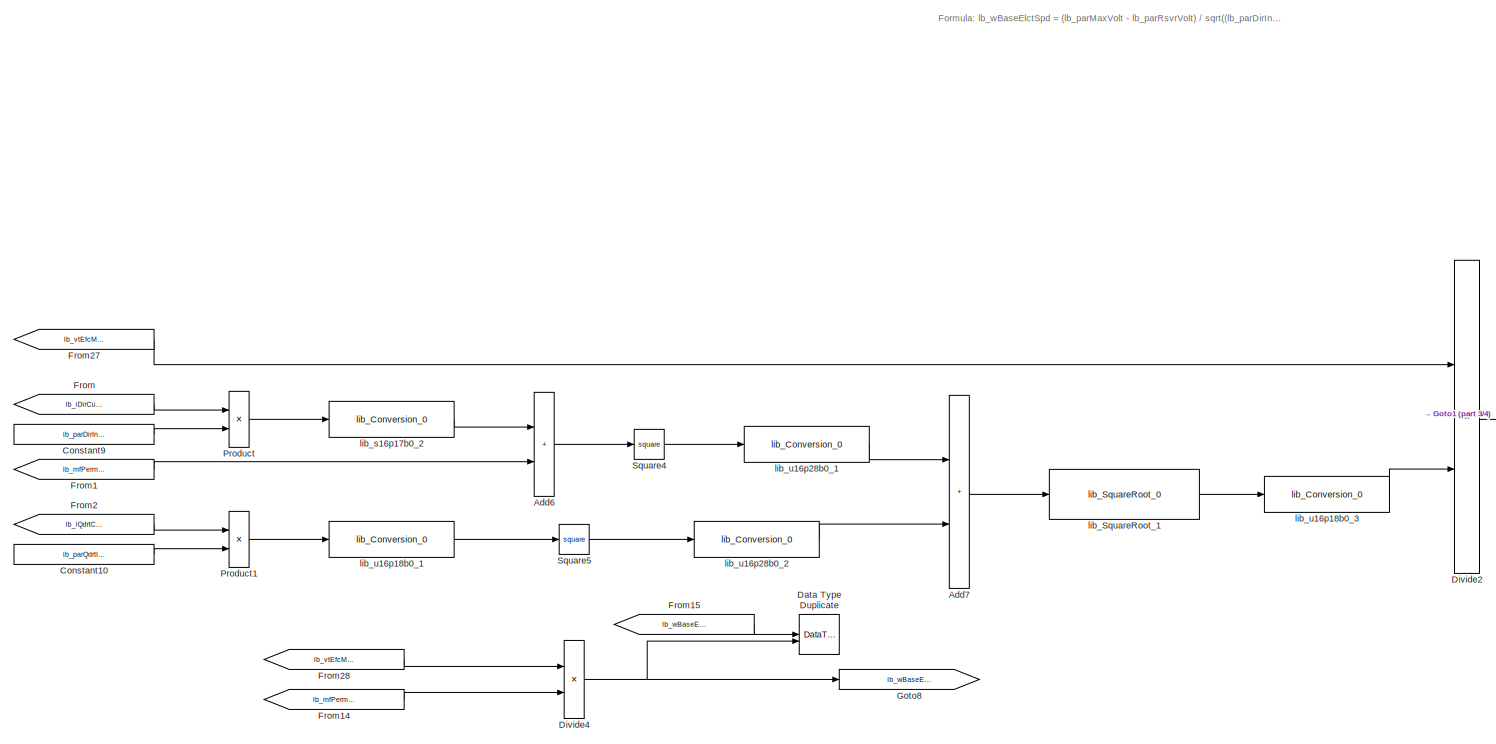
[diagram: lib_FWReferenceCurrentGenerator_0/vss_ActiveReferenceCurrentStrategy/vss_FieldWeakeningStrategy/sss_BaseSpeedComputation - part 1/4, top center region]
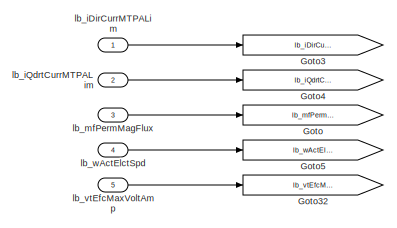
[diagram: lib_FWReferenceCurrentGenerator_0/vss_ActiveReferenceCurrentStrategy/vss_FieldWeakeningStrategy/sss_BaseSpeedComputation - part 2/4, top left region]
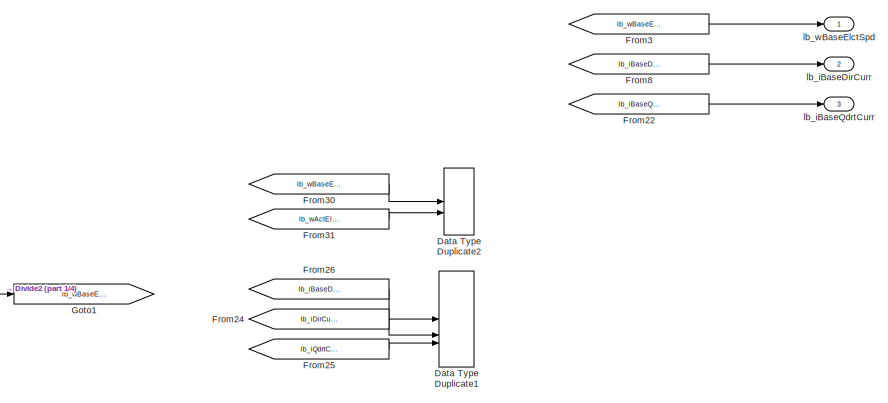
[diagram: lib_FWReferenceCurrentGenerator_0/vss_ActiveReferenceCurrentStrategy/vss_FieldWeakeningStrategy/sss_BaseSpeedComputation - part 3/4, top right region]
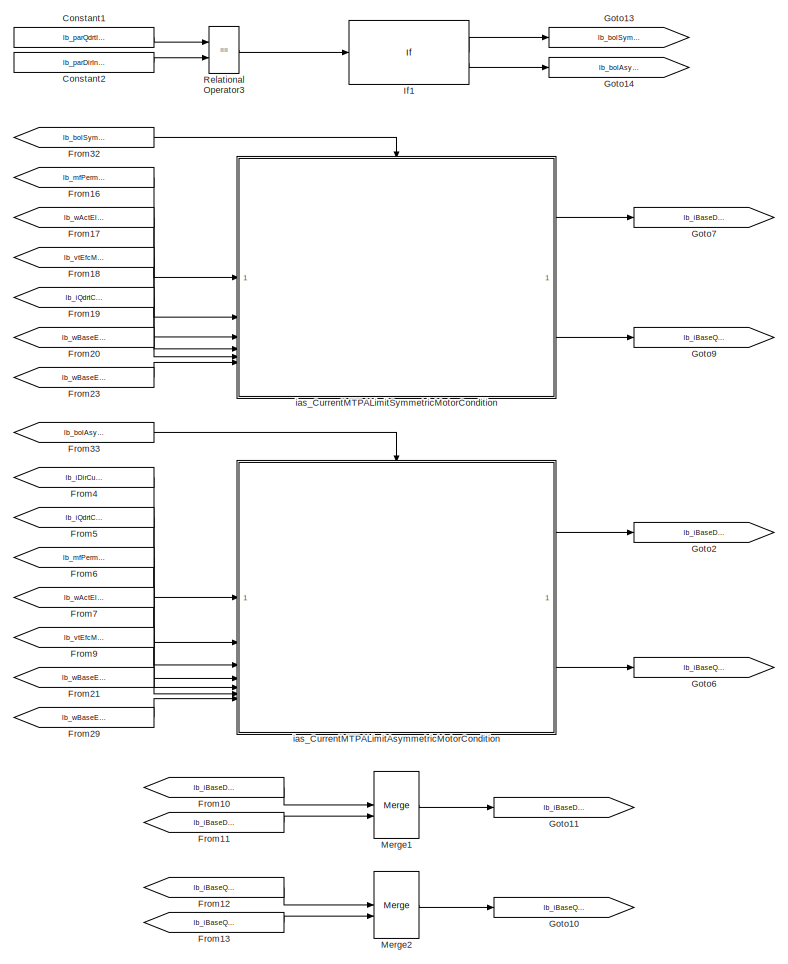
[diagram: lib_FWReferenceCurrentGenerator_0/vss_ActiveReferenceCurrentStrategy/vss_FieldWeakeningStrategy/sss_BaseSpeedComputation - part 4/4, bottom center region]
BLOCK [SubSystem] lib_FWReferenceCurrentGenerator_0/vss_ActiveReferenceCurrentStrategy/vss_FieldWeakeningStrategy/sss_BaseSpeedComputation
BLOCK [Sum] lib_FWReferenceCurrentGenerator_0/vss_ActiveReferenceCurrentStrategy/vss_FieldWeakeningStrategy/sss_BaseSpeedComputation/Add6
  IconShape = rectangular
  OutDataTypeStr = Inherit: Same as first input
BLOCK [Sum] lib_FWReferenceCurrentGenerator_0/vss_ActiveReferenceCurrentStrategy/vss_FieldWeakeningStrategy/sss_BaseSpeedComputation/Add7
  IconShape = rectangular
  OutDataTypeStr = Inherit: Same as first input
BLOCK [Constant] lib_FWReferenceCurrentGenerator_0/vss_ActiveReferenceCurrentStrategy/vss_FieldWeakeningStrategy/sss_BaseSpeedComputation/Constant1
  Value = lb_parQdrtIndc
BLOCK [Constant] lib_FWReferenceCurrentGenerator_0/vss_ActiveReferenceCurrentStrategy/vss_FieldWeakeningStrategy/sss_BaseSpeedComputation/Constant10
  Value = lb_parQdrtIndc
BLOCK [Constant] lib_FWReferenceCurrentGenerator_0/vss_ActiveReferenceCurrentStrategy/vss_FieldWeakeningStrategy/sss_BaseSpeedComputation/Constant2
  Value = lb_parDirIndc
BLOCK [Constant] lib_FWReferenceCurrentGenerator_0/vss_ActiveReferenceCurrentStrategy/vss_FieldWeakeningStrategy/sss_BaseSpeedComputation/Constant9
  Value = lb_parDirIndc
BLOCK [DataTypeDuplicate] lib_FWReferenceCurrentGenerator_0/vss_ActiveReferenceCurrentStrategy/vss_FieldWeakeningStrategy/sss_BaseSpeedComputation/Data Type Duplicate
BLOCK [DataTypeDuplicate] lib_FWReferenceCurrentGenerator_0/vss_ActiveReferenceCurrentStrategy/vss_FieldWeakeningStrategy/sss_BaseSpeedComputation/Data Type Duplicate1
  NumInputPorts = 3
BLOCK [DataTypeDuplicate] lib_FWReferenceCurrentGenerator_0/vss_ActiveReferenceCurrentStrategy/vss_FieldWeakeningStrategy/sss_BaseSpeedComputation/Data Type Duplicate2
BLOCK [Product] lib_FWReferenceCurrentGenerator_0/vss_ActiveReferenceCurrentStrategy/vss_FieldWeakeningStrategy/sss_BaseSpeedComputation/Divide2
  Inputs = */
  OutDataTypeStr = Inherit: Inherit via back propagation
BLOCK [Product] lib_FWReferenceCurrentGenerator_0/vss_ActiveReferenceCurrentStrategy/vss_FieldWeakeningStrategy/sss_BaseSpeedComputation/Divide4
  Inputs = */
  OutDataTypeStr = Inherit: Inherit via back propagation
BLOCK [From] lib_FWReferenceCurrentGenerator_0/vss_ActiveReferenceCurrentStrategy/vss_FieldWeakeningStrategy/sss_BaseSpeedComputation/From
  GotoTag = lb_iDirCurrMTPALim
BLOCK [From] lib_FWReferenceCurrentGenerator_0/vss_ActiveReferenceCurrentStrategy/vss_FieldWeakeningStrategy/sss_BaseSpeedComputation/From1
  GotoTag = lb_mfPermMagFlux
BLOCK [From] lib_FWReferenceCurrentGenerator_0/vss_ActiveReferenceCurrentStrategy/vss_FieldWeakeningStrategy/sss_BaseSpeedComputation/From10
  GotoTag = lb_iBaseDirCurrSym
BLOCK [From] lib_FWReferenceCurrentGenerator_0/vss_ActiveReferenceCurrentStrategy/vss_FieldWeakeningStrategy/sss_BaseSpeedComputation/From11
  GotoTag = lb_iBaseDirCurrAsym
BLOCK [From] lib_FWReferenceCurrentGenerator_0/vss_ActiveReferenceCurrentStrategy/vss_FieldWeakeningStrategy/sss_BaseSpeedComputation/From12
  GotoTag = lb_iBaseQdrtCurrSym
BLOCK [From] lib_FWReferenceCurrentGenerator_0/vss_ActiveReferenceCurrentStrategy/vss_FieldWeakeningStrategy/sss_BaseSpeedComputation/From13
  GotoTag = lb_iBaseQdrtCurrAsym
BLOCK [From] lib_FWReferenceCurrentGenerator_0/vss_ActiveReferenceCurrentStrategy/vss_FieldWeakeningStrategy/sss_BaseSpeedComputation/From14
  GotoTag = lb_mfPermMagFlux
BLOCK [From] lib_FWReferenceCurrentGenerator_0/vss_ActiveReferenceCurrentStrategy/vss_FieldWeakeningStrategy/sss_BaseSpeedComputation/From15
  GotoTag = lb_wBaseElctSpd
BLOCK [From] lib_FWReferenceCurrentGenerator_0/vss_ActiveReferenceCurrentStrategy/vss_FieldWeakeningStrategy/sss_BaseSpeedComputation/From16
  GotoTag = lb_mfPermMagFlux
BLOCK [From] lib_FWReferenceCurrentGenerator_0/vss_ActiveReferenceCurrentStrategy/vss_FieldWeakeningStrategy/sss_BaseSpeedComputation/From17
  GotoTag = lb_wActElctSpd
BLOCK [From] lib_FWReferenceCurrentGenerator_0/vss_ActiveReferenceCurrentStrategy/vss_FieldWeakeningStrategy/sss_BaseSpeedComputation/From18
  GotoTag = lb_vtEfcMaxVoltAmp
BLOCK [From] lib_FWReferenceCurrentGenerator_0/vss_ActiveReferenceCurrentStrategy/vss_FieldWeakeningStrategy/sss_BaseSpeedComputation/From19
  GotoTag = lb_iQdrtCurrMTPALim
BLOCK [From] lib_FWReferenceCurrentGenerator_0/vss_ActiveReferenceCurrentStrategy/vss_FieldWeakeningStrategy/sss_BaseSpeedComputation/From2
  GotoTag = lb_iQdrtCurrMTPALim
BLOCK [From] lib_FWReferenceCurrentGenerator_0/vss_ActiveReferenceCurrentStrategy/vss_FieldWeakeningStrategy/sss_BaseSpeedComputation/From20
  GotoTag = lb_wBaseElctSpdLim
BLOCK [From] lib_FWReferenceCurrentGenerator_0/vss_ActiveReferenceCurrentStrategy/vss_FieldWeakeningStrategy/sss_BaseSpeedComputation/From21
  GotoTag = lb_wBaseElctSpdLim
BLOCK [From] lib_FWReferenceCurrentGenerator_0/vss_ActiveReferenceCurrentStrategy/vss_FieldWeakeningStrategy/sss_BaseSpeedComputation/From22
  GotoTag = lb_iBaseQdrtCurr
BLOCK [From] lib_FWReferenceCurrentGenerator_0/vss_ActiveReferenceCurrentStrategy/vss_FieldWeakeningStrategy/sss_BaseSpeedComputation/From23
  GotoTag = lb_wBaseElctSpd
BLOCK [From] lib_FWReferenceCurrentGenerator_0/vss_ActiveReferenceCurrentStrategy/vss_FieldWeakeningStrategy/sss_BaseSpeedComputation/From24
  GotoTag = lb_iDirCurrMTPALim
BLOCK [From] lib_FWReferenceCurrentGenerator_0/vss_ActiveReferenceCurrentStrategy/vss_FieldWeakeningStrategy/sss_BaseSpeedComputation/From25
  GotoTag = lb_iQdrtCurrMTPALim
BLOCK [From] lib_FWReferenceCurrentGenerator_0/vss_ActiveReferenceCurrentStrategy/vss_FieldWeakeningStrategy/sss_BaseSpeedComputation/From26
  GotoTag = lb_iBaseDirCurr
BLOCK [From] lib_FWReferenceCurrentGenerator_0/vss_ActiveReferenceCurrentStrategy/vss_FieldWeakeningStrategy/sss_BaseSpeedComputation/From27
  GotoTag = lb_vtEfcMaxVoltAmp
BLOCK [From] lib_FWReferenceCurrentGenerator_0/vss_ActiveReferenceCurrentStrategy/vss_FieldWeakeningStrategy/sss_BaseSpeedComputation/From28
  GotoTag = lb_vtEfcMaxVoltAmp
BLOCK [From] lib_FWReferenceCurrentGenerator_0/vss_ActiveReferenceCurrentStrategy/vss_FieldWeakeningStrategy/sss_BaseSpeedComputation/From29
  GotoTag = lb_wBaseElctSpd
BLOCK [From] lib_FWReferenceCurrentGenerator_0/vss_ActiveReferenceCurrentStrategy/vss_FieldWeakeningStrategy/sss_BaseSpeedComputation/From3
  GotoTag = lb_wBaseElctSpd
BLOCK [From] lib_FWReferenceCurrentGenerator_0/vss_ActiveReferenceCurrentStrategy/vss_FieldWeakeningStrategy/sss_BaseSpeedComputation/From30
  GotoTag = lb_wBaseElctSpd
BLOCK [From] lib_FWReferenceCurrentGenerator_0/vss_ActiveReferenceCurrentStrategy/vss_FieldWeakeningStrategy/sss_BaseSpeedComputation/From31
  GotoTag = lb_wActElctSpd
BLOCK [From] lib_FWReferenceCurrentGenerator_0/vss_ActiveReferenceCurrentStrategy/vss_FieldWeakeningStrategy/sss_BaseSpeedComputation/From32
  GotoTag = lb_bolSymMotEnbl
BLOCK [From] lib_FWReferenceCurrentGenerator_0/vss_ActiveReferenceCurrentStrategy/vss_FieldWeakeningStrategy/sss_BaseSpeedComputation/From33
  GotoTag = lb_bolAsymMotEnbl
BLOCK [From] lib_FWReferenceCurrentGenerator_0/vss_ActiveReferenceCurrentStrategy/vss_FieldWeakeningStrategy/sss_BaseSpeedComputation/From4
  GotoTag = lb_iDirCurrMTPALim
BLOCK [From] lib_FWReferenceCurrentGenerator_0/vss_ActiveReferenceCurrentStrategy/vss_FieldWeakeningStrategy/sss_BaseSpeedComputation/From5
  GotoTag = lb_iQdrtCurrMTPALim
BLOCK [From] lib_FWReferenceCurrentGenerator_0/vss_ActiveReferenceCurrentStrategy/vss_FieldWeakeningStrategy/sss_BaseSpeedComputation/From6
  GotoTag = lb_mfPermMagFlux
BLOCK [From] lib_FWReferenceCurrentGenerator_0/vss_ActiveReferenceCurrentStrategy/vss_FieldWeakeningStrategy/sss_BaseSpeedComputation/From7
  GotoTag = lb_wActElctSpd
BLOCK [From] lib_FWReferenceCurrentGenerator_0/vss_ActiveReferenceCurrentStrategy/vss_FieldWeakeningStrategy/sss_BaseSpeedComputation/From8
  GotoTag = lb_iBaseDirCurr
BLOCK [From] lib_FWReferenceCurrentGenerator_0/vss_ActiveReferenceCurrentStrategy/vss_FieldWeakeningStrategy/sss_BaseSpeedComputation/From9
  GotoTag = lb_vtEfcMaxVoltAmp
BLOCK [Goto] lib_FWReferenceCurrentGenerator_0/vss_ActiveReferenceCurrentStrategy/vss_FieldWeakeningStrategy/sss_BaseSpeedComputation/Goto
  GotoTag = lb_mfPermMagFlux
BLOCK [Goto] lib_FWReferenceCurrentGenerator_0/vss_ActiveReferenceCurrentStrategy/vss_FieldWeakeningStrategy/sss_BaseSpeedComputation/Goto1
  GotoTag = lb_wBaseElctSpd
BLOCK [Goto] lib_FWReferenceCurrentGenerator_0/vss_ActiveReferenceCurrentStrategy/vss_FieldWeakeningStrategy/sss_BaseSpeedComputation/Goto10
  GotoTag = lb_iBaseQdrtCurr
BLOCK [Goto] lib_FWReferenceCurrentGenerator_0/vss_ActiveReferenceCurrentStrategy/vss_FieldWeakeningStrategy/sss_BaseSpeedComputation/Goto11
  GotoTag = lb_iBaseDirCurr
BLOCK [Goto] lib_FWReferenceCurrentGenerator_0/vss_ActiveReferenceCurrentStrategy/vss_FieldWeakeningStrategy/sss_BaseSpeedComputation/Goto13
  GotoTag = lb_bolSymMotEnbl
BLOCK [Goto] lib_FWReferenceCurrentGenerator_0/vss_ActiveReferenceCurrentStrategy/vss_FieldWeakeningStrategy/sss_BaseSpeedComputation/Goto14
  GotoTag = lb_bolAsymMotEnbl
BLOCK [Goto] lib_FWReferenceCurrentGenerator_0/vss_ActiveReferenceCurrentStrategy/vss_FieldWeakeningStrategy/sss_BaseSpeedComputation/Goto2
  GotoTag = lb_iBaseDirCurrAsym
BLOCK [Goto] lib_FWReferenceCurrentGenerator_0/vss_ActiveReferenceCurrentStrategy/vss_FieldWeakeningStrategy/sss_BaseSpeedComputation/Goto3
  GotoTag = lb_iDirCurrMTPALim
BLOCK [Goto] lib_FWReferenceCurrentGenerator_0/vss_ActiveReferenceCurrentStrategy/vss_FieldWeakeningStrategy/sss_BaseSpeedComputation/Goto32
  GotoTag = lb_vtEfcMaxVoltAmp
BLOCK [Goto] lib_FWReferenceCurrentGenerator_0/vss_ActiveReferenceCurrentStrategy/vss_FieldWeakeningStrategy/sss_BaseSpeedComputation/Goto4
  GotoTag = lb_iQdrtCurrMTPALim
BLOCK [Goto] lib_FWReferenceCurrentGenerator_0/vss_ActiveReferenceCurrentStrategy/vss_FieldWeakeningStrategy/sss_BaseSpeedComputation/Goto5
  GotoTag = lb_wActElctSpd
BLOCK [Goto] lib_FWReferenceCurrentGenerator_0/vss_ActiveReferenceCurrentStrategy/vss_FieldWeakeningStrategy/sss_BaseSpeedComputation/Goto6
  GotoTag = lb_iBaseQdrtCurrAsym
BLOCK [Goto] lib_FWReferenceCurrentGenerator_0/vss_ActiveReferenceCurrentStrategy/vss_FieldWeakeningStrategy/sss_BaseSpeedComputation/Goto7
  GotoTag = lb_iBaseDirCurrSym
BLOCK [Goto] lib_FWReferenceCurrentGenerator_0/vss_ActiveReferenceCurrentStrategy/vss_FieldWeakeningStrategy/sss_BaseSpeedComputation/Goto8
  GotoTag = lb_wBaseElctSpdLim
BLOCK [Goto] lib_FWReferenceCurrentGenerator_0/vss_ActiveReferenceCurrentStrategy/vss_FieldWeakeningStrategy/sss_BaseSpeedComputation/Goto9
  GotoTag = lb_iBaseQdrtCurrSym
BLOCK [If] lib_FWReferenceCurrentGenerator_0/vss_ActiveReferenceCurrentStrategy/vss_FieldWeakeningStrategy/sss_BaseSpeedComputation/If1
  IfExpression = u1
BLOCK [Merge] lib_FWReferenceCurrentGenerator_0/vss_ActiveReferenceCurrentStrategy/vss_FieldWeakeningStrategy/sss_BaseSpeedComputation/Merge1
BLOCK [Merge] lib_FWReferenceCurrentGenerator_0/vss_ActiveReferenceCurrentStrategy/vss_FieldWeakeningStrategy/sss_BaseSpeedComputation/Merge2
BLOCK [Product] lib_FWReferenceCurrentGenerator_0/vss_ActiveReferenceCurrentStrategy/vss_FieldWeakeningStrategy/sss_BaseSpeedComputation/Product
  OutDataTypeStr = Inherit: Inherit via back propagation
BLOCK [Product] lib_FWReferenceCurrentGenerator_0/vss_ActiveReferenceCurrentStrategy/vss_FieldWeakeningStrategy/sss_BaseSpeedComputation/Product1
  OutDataTypeStr = Inherit: Inherit via back propagation
BLOCK [RelationalOperator] lib_FWReferenceCurrentGenerator_0/vss_ActiveReferenceCurrentStrategy/vss_FieldWeakeningStrategy/sss_BaseSpeedComputation/Relational Operator3
  InputSameDT = off
  Operator = ==
  OutDataTypeStr = boolean
  RndMeth = Simplest
BLOCK [Math] lib_FWReferenceCurrentGenerator_0/vss_ActiveReferenceCurrentStrategy/vss_FieldWeakeningStrategy/sss_BaseSpeedComputation/Square4
  Operator = square
  OutDataTypeStr = Inherit: Inherit via back propagation
  SignedPower = on
BLOCK [Math] lib_FWReferenceCurrentGenerator_0/vss_ActiveReferenceCurrentStrategy/vss_FieldWeakeningStrategy/sss_BaseSpeedComputation/Square5
  Operator = square
  OutDataTypeStr = Inherit: Inherit via back propagation
  SignedPower = on
BLOCK [SubSystem] lib_FWReferenceCurrentGenerator_0/vss_ActiveReferenceCurrentStrategy/vss_FieldWeakeningStrategy/sss_BaseSpeedComputation/ias_CurrentMTPALimitAsymmetricMotorCondition
  TreatAsAtomicUnit = on
BLOCK [Logic] lib_FWReferenceCurrentGenerator_0/vss_ActiveReferenceCurrentStrategy/vss_FieldWeakeningStrategy/sss_BaseSpeedComputation/ias_CurrentMTPALimitAsymmetricMotorCondition/AND
  AllPortsSameDT = off
  OutDataTypeStr = boolean
BLOCK [ActionPort] lib_FWReferenceCurrentGenerator_0/vss_ActiveReferenceCurrentStrategy/vss_FieldWeakeningStrategy/sss_BaseSpeedComputation/ias_CurrentMTPALimitAsymmetricMotorCondition/Action Port
BLOCK [Sum] lib_FWReferenceCurrentGenerator_0/vss_ActiveReferenceCurrentStrategy/vss_FieldWeakeningStrategy/sss_BaseSpeedComputation/ias_CurrentMTPALimitAsymmetricMotorCondition/Add2
  IconShape = rectangular
  Inputs = +-
  OutDataTypeStr = Inherit: Inherit via back propagation
BLOCK [Sum] lib_FWReferenceCurrentGenerator_0/vss_ActiveReferenceCurrentStrategy/vss_FieldWeakeningStrategy/sss_BaseSpeedComputation/ias_CurrentMTPALimitAsymmetricMotorCondition/Add3
  IconShape = rectangular
  Inputs = +-
  OutDataTypeStr = Inherit: Same as first input
BLOCK [Constant] lib_FWReferenceCurrentGenerator_0/vss_ActiveReferenceCurrentStrategy/vss_FieldWeakeningStrategy/sss_BaseSpeedComputation/ias_CurrentMTPALimitAsymmetricMotorCondition/Constant3
  Value = lb_parQdrtIndc
BLOCK [Constant] lib_FWReferenceCurrentGenerator_0/vss_ActiveReferenceCurrentStrategy/vss_FieldWeakeningStrategy/sss_BaseSpeedComputation/ias_CurrentMTPALimitAsymmetricMotorCondition/Constant4
  Value = lb_parDirIndc
BLOCK [Product] lib_FWReferenceCurrentGenerator_0/vss_ActiveReferenceCurrentStrategy/vss_FieldWeakeningStrategy/sss_BaseSpeedComputation/ias_CurrentMTPALimitAsymmetricMotorCondition/Divide1
  Inputs = */
  OutDataTypeStr = Inherit: Inherit via back propagation
BLOCK [From] lib_FWReferenceCurrentGenerator_0/vss_ActiveReferenceCurrentStrategy/vss_FieldWeakeningStrategy/sss_BaseSpeedComputation/ias_CurrentMTPALimitAsymmetricMotorCondition/From10
  GotoTag = lb_wActElctSpd
BLOCK [From] lib_FWReferenceCurrentGenerator_0/vss_ActiveReferenceCurrentStrategy/vss_FieldWeakeningStrategy/sss_BaseSpeedComputation/ias_CurrentMTPALimitAsymmetricMotorCondition/From11
  GotoTag = lb_iDirCurrMTPALim
BLOCK [From] lib_FWReferenceCurrentGenerator_0/vss_ActiveReferenceCurrentStrategy/vss_FieldWeakeningStrategy/sss_BaseSpeedComputation/ias_CurrentMTPALimitAsymmetricMotorCondition/From12
  GotoTag = lb_wBaseElctSpd
BLOCK [From] lib_FWReferenceCurrentGenerator_0/vss_ActiveReferenceCurrentStrategy/vss_FieldWeakeningStrategy/sss_BaseSpeedComputation/ias_CurrentMTPALimitAsymmetricMotorCondition/From13
  GotoTag = lb_wActElctSpd
BLOCK [From] lib_FWReferenceCurrentGenerator_0/vss_ActiveReferenceCurrentStrategy/vss_FieldWeakeningStrategy/sss_BaseSpeedComputation/ias_CurrentMTPALimitAsymmetricMotorCondition/From16
  GotoTag = lb_wBaseElctSpdLim
BLOCK [From] lib_FWReferenceCurrentGenerator_0/vss_ActiveReferenceCurrentStrategy/vss_FieldWeakeningStrategy/sss_BaseSpeedComputation/ias_CurrentMTPALimitAsymmetricMotorCondition/From17
  GotoTag = lb_wActElctSpd
BLOCK [From] lib_FWReferenceCurrentGenerator_0/vss_ActiveReferenceCurrentStrategy/vss_FieldWeakeningStrategy/sss_BaseSpeedComputation/ias_CurrentMTPALimitAsymmetricMotorCondition/From18
  GotoTag = lb_wBaseElctSpdLim
BLOCK [From] lib_FWReferenceCurrentGenerator_0/vss_ActiveReferenceCurrentStrategy/vss_FieldWeakeningStrategy/sss_BaseSpeedComputation/ias_CurrentMTPALimitAsymmetricMotorCondition/From19
  GotoTag = lb_bolBaseSpdLimExcd
BLOCK [From] lib_FWReferenceCurrentGenerator_0/vss_ActiveReferenceCurrentStrategy/vss_FieldWeakeningStrategy/sss_BaseSpeedComputation/ias_CurrentMTPALimitAsymmetricMotorCondition/From20
  GotoTag = lb_iDirCurrMTPALim
BLOCK [From] lib_FWReferenceCurrentGenerator_0/vss_ActiveReferenceCurrentStrategy/vss_FieldWeakeningStrategy/sss_BaseSpeedComputation/ias_CurrentMTPALimitAsymmetricMotorCondition/From21
  GotoTag = lb_iBaseDirCurr
BLOCK [From] lib_FWReferenceCurrentGenerator_0/vss_ActiveReferenceCurrentStrategy/vss_FieldWeakeningStrategy/sss_BaseSpeedComputation/ias_CurrentMTPALimitAsymmetricMotorCondition/From22
  GotoTag = lb_iBaseQdrtCurr
BLOCK [From] lib_FWReferenceCurrentGenerator_0/vss_ActiveReferenceCurrentStrategy/vss_FieldWeakeningStrategy/sss_BaseSpeedComputation/ias_CurrentMTPALimitAsymmetricMotorCondition/From23
  GotoTag = lb_mfPermMagFlux
BLOCK [From] lib_FWReferenceCurrentGenerator_0/vss_ActiveReferenceCurrentStrategy/vss_FieldWeakeningStrategy/sss_BaseSpeedComputation/ias_CurrentMTPALimitAsymmetricMotorCondition/From29
  GotoTag = lb_vtEfcMaxVoltAmp
BLOCK [From] lib_FWReferenceCurrentGenerator_0/vss_ActiveReferenceCurrentStrategy/vss_FieldWeakeningStrategy/sss_BaseSpeedComputation/ias_CurrentMTPALimitAsymmetricMotorCondition/From4
  GotoTag = lb_iDirCurrMTPALim
BLOCK [From] lib_FWReferenceCurrentGenerator_0/vss_ActiveReferenceCurrentStrategy/vss_FieldWeakeningStrategy/sss_BaseSpeedComputation/ias_CurrentMTPALimitAsymmetricMotorCondition/From5
  GotoTag = lb_bolBaseSpdNotExcd
BLOCK [From] lib_FWReferenceCurrentGenerator_0/vss_ActiveReferenceCurrentStrategy/vss_FieldWeakeningStrategy/sss_BaseSpeedComputation/ias_CurrentMTPALimitAsymmetricMotorCondition/From6
  GotoTag = lb_bolBaseSpdExcd
BLOCK [From] lib_FWReferenceCurrentGenerator_0/vss_ActiveReferenceCurrentStrategy/vss_FieldWeakeningStrategy/sss_BaseSpeedComputation/ias_CurrentMTPALimitAsymmetricMotorCondition/From7
  GotoTag = lb_mfPermMagFlux
BLOCK [From] lib_FWReferenceCurrentGenerator_0/vss_ActiveReferenceCurrentStrategy/vss_FieldWeakeningStrategy/sss_BaseSpeedComputation/ias_CurrentMTPALimitAsymmetricMotorCondition/From8
  GotoTag = lb_iBaseDirCurr
BLOCK [From] lib_FWReferenceCurrentGenerator_0/vss_ActiveReferenceCurrentStrategy/vss_FieldWeakeningStrategy/sss_BaseSpeedComputation/ias_CurrentMTPALimitAsymmetricMotorCondition/From9
  GotoTag = lb_wActElctSpd
BLOCK [Goto] lib_FWReferenceCurrentGenerator_0/vss_ActiveReferenceCurrentStrategy/vss_FieldWeakeningStrategy/sss_BaseSpeedComputation/ias_CurrentMTPALimitAsymmetricMotorCondition/Goto
  GotoTag = lb_mfPermMagFlux
BLOCK [Goto] lib_FWReferenceCurrentGenerator_0/vss_ActiveReferenceCurrentStrategy/vss_FieldWeakeningStrategy/sss_BaseSpeedComputation/ias_CurrentMTPALimitAsymmetricMotorCondition/Goto1
  GotoTag = lb_wBaseElctSpdLim
BLOCK [Goto] lib_FWReferenceCurrentGenerator_0/vss_ActiveReferenceCurrentStrategy/vss_FieldWeakeningStrategy/sss_BaseSpeedComputation/ias_CurrentMTPALimitAsymmetricMotorCondition/Goto10
  GotoTag = lb_iBaseQdrtCurr
BLOCK [Goto] lib_FWReferenceCurrentGenerator_0/vss_ActiveReferenceCurrentStrategy/vss_FieldWeakeningStrategy/sss_BaseSpeedComputation/ias_CurrentMTPALimitAsymmetricMotorCondition/Goto2
  GotoTag = lb_bolBaseSpdExcd
BLOCK [Goto] lib_FWReferenceCurrentGenerator_0/vss_ActiveReferenceCurrentStrategy/vss_FieldWeakeningStrategy/sss_BaseSpeedComputation/ias_CurrentMTPALimitAsymmetricMotorCondition/Goto3
  GotoTag = lb_iDirCurrMTPALim
BLOCK [Goto] lib_FWReferenceCurrentGenerator_0/vss_ActiveReferenceCurrentStrategy/vss_FieldWeakeningStrategy/sss_BaseSpeedComputation/ias_CurrentMTPALimitAsymmetricMotorCondition/Goto32
  GotoTag = lb_vtEfcMaxVoltAmp
BLOCK [Goto] lib_FWReferenceCurrentGenerator_0/vss_ActiveReferenceCurrentStrategy/vss_FieldWeakeningStrategy/sss_BaseSpeedComputation/ias_CurrentMTPALimitAsymmetricMotorCondition/Goto4
  GotoTag = lb_iQdrtCurrMTPALim
BLOCK [Goto] lib_FWReferenceCurrentGenerator_0/vss_ActiveReferenceCurrentStrategy/vss_FieldWeakeningStrategy/sss_BaseSpeedComputation/ias_CurrentMTPALimitAsymmetricMotorCondition/Goto5
  GotoTag = lb_wActElctSpd
BLOCK [Goto] lib_FWReferenceCurrentGenerator_0/vss_ActiveReferenceCurrentStrategy/vss_FieldWeakeningStrategy/sss_BaseSpeedComputation/ias_CurrentMTPALimitAsymmetricMotorCondition/Goto6
  GotoTag = lb_bolBaseSpdNotExcd
BLOCK [Goto] lib_FWReferenceCurrentGenerator_0/vss_ActiveReferenceCurrentStrategy/vss_FieldWeakeningStrategy/sss_BaseSpeedComputation/ias_CurrentMTPALimitAsymmetricMotorCondition/Goto7
  GotoTag = lb_iBaseDirCurr
BLOCK [Goto] lib_FWReferenceCurrentGenerator_0/vss_ActiveReferenceCurrentStrategy/vss_FieldWeakeningStrategy/sss_BaseSpeedComputation/ias_CurrentMTPALimitAsymmetricMotorCondition/Goto8
  GotoTag = lb_wBaseElctSpd
BLOCK [Goto] lib_FWReferenceCurrentGenerator_0/vss_ActiveReferenceCurrentStrategy/vss_FieldWeakeningStrategy/sss_BaseSpeedComputation/ias_CurrentMTPALimitAsymmetricMotorCondition/Goto9
  GotoTag = lb_bolBaseSpdLimExcd
BLOCK [If] lib_FWReferenceCurrentGenerator_0/vss_ActiveReferenceCurrentStrategy/vss_FieldWeakeningStrategy/sss_BaseSpeedComputation/ias_CurrentMTPALimitAsymmetricMotorCondition/If
  ElseIfExpressions = u2
  IfExpression = u1
  NumInputs = 2
BLOCK [Merge] lib_FWReferenceCurrentGenerator_0/vss_ActiveReferenceCurrentStrategy/vss_FieldWeakeningStrategy/sss_BaseSpeedComputation/ias_CurrentMTPALimitAsymmetricMotorCondition/Merge
  Inputs = 3
BLOCK [Product] lib_FWReferenceCurrentGenerator_0/vss_ActiveReferenceCurrentStrategy/vss_FieldWeakeningStrategy/sss_BaseSpeedComputation/ias_CurrentMTPALimitAsymmetricMotorCondition/Product3
  OutDataTypeStr = Inherit: Inherit via back propagation
BLOCK [RelationalOperator] lib_FWReferenceCurrentGenerator_0/vss_ActiveReferenceCurrentStrategy/vss_FieldWeakeningStrategy/sss_BaseSpeedComputation/ias_CurrentMTPALimitAsymmetricMotorCondition/Relational Operator
  InputSameDT = off
  Operator = <
  OutDataTypeStr = boolean
  RndMeth = Simplest
BLOCK [RelationalOperator] lib_FWReferenceCurrentGenerator_0/vss_ActiveReferenceCurrentStrategy/vss_FieldWeakeningStrategy/sss_BaseSpeedComputation/ias_CurrentMTPALimitAsymmetricMotorCondition/Relational Operator1
  InputSameDT = off
  Operator = <
  OutDataTypeStr = boolean
  RndMeth = Simplest
BLOCK [RelationalOperator] lib_FWReferenceCurrentGenerator_0/vss_ActiveReferenceCurrentStrategy/vss_FieldWeakeningStrategy/sss_BaseSpeedComputation/ias_CurrentMTPALimitAsymmetricMotorCondition/Relational Operator2
  InputSameDT = off
  Operator = >
  OutDataTypeStr = boolean
  RndMeth = Simplest
BLOCK [Math] lib_FWReferenceCurrentGenerator_0/vss_ActiveReferenceCurrentStrategy/vss_FieldWeakeningStrategy/sss_BaseSpeedComputation/ias_CurrentMTPALimitAsymmetricMotorCondition/Square
  Operator = square
  OutDataTypeStr = Inherit: Inherit via back propagation
  SignedPower = on
BLOCK [SubSystem] lib_FWReferenceCurrentGenerator_0/vss_ActiveReferenceCurrentStrategy/vss_FieldWeakeningStrategy/sss_BaseSpeedComputation/ias_CurrentMTPALimitAsymmetricMotorCondition/ias_BaseSpeedExceeded
  TreatAsAtomicUnit = on
BLOCK [ActionPort] lib_FWReferenceCurrentGenerator_0/vss_ActiveReferenceCurrentStrategy/vss_FieldWeakeningStrategy/sss_BaseSpeedComputation/ias_CurrentMTPALimitAsymmetricMotorCondition/ias_BaseSpeedExceeded/Action Port
BLOCK [Sum] lib_FWReferenceCurrentGenerator_0/vss_ActiveReferenceCurrentStrategy/vss_FieldWeakeningStrategy/sss_BaseSpeedComputation/ias_CurrentMTPALimitAsymmetricMotorCondition/ias_BaseSpeedExceeded/Add
  IconShape = rectangular
  Inputs = +-
  OutDataTypeStr = Inherit: Inherit via back propagation
BLOCK [Sum] lib_FWReferenceCurrentGenerator_0/vss_ActiveReferenceCurrentStrategy/vss_FieldWeakeningStrategy/sss_BaseSpeedComputation/ias_CurrentMTPALimitAsymmetricMotorCondition/ias_BaseSpeedExceeded/Add1
  IconShape = rectangular
  Inputs = +-
  OutDataTypeStr = Inherit: Inherit via back propagation
BLOCK [Sum] lib_FWReferenceCurrentGenerator_0/vss_ActiveReferenceCurrentStrategy/vss_FieldWeakeningStrategy/sss_BaseSpeedComputation/ias_CurrentMTPALimitAsymmetricMotorCondition/ias_BaseSpeedExceeded/Add12
  IconShape = rectangular
  Inputs = +-
  OutDataTypeStr = Inherit: Inherit via back propagation
BLOCK [Sum] lib_FWReferenceCurrentGenerator_0/vss_ActiveReferenceCurrentStrategy/vss_FieldWeakeningStrategy/sss_BaseSpeedComputation/ias_CurrentMTPALimitAsymmetricMotorCondition/ias_BaseSpeedExceeded/Add13
  IconShape = rectangular
  Inputs = +-
  OutDataTypeStr = Inherit: Inherit via back propagation
BLOCK [Sum] lib_FWReferenceCurrentGenerator_0/vss_ActiveReferenceCurrentStrategy/vss_FieldWeakeningStrategy/sss_BaseSpeedComputation/ias_CurrentMTPALimitAsymmetricMotorCondition/ias_BaseSpeedExceeded/Add2
  IconShape = rectangular
  OutDataTypeStr = Inherit: Same as first input
BLOCK [Sum] lib_FWReferenceCurrentGenerator_0/vss_ActiveReferenceCurrentStrategy/vss_FieldWeakeningStrategy/sss_BaseSpeedComputation/ias_CurrentMTPALimitAsymmetricMotorCondition/ias_BaseSpeedExceeded/Add9
  IconShape = rectangular
  Inputs = +-
  OutDataTypeStr = Inherit: Inherit via back propagation
BLOCK [Constant] lib_FWReferenceCurrentGenerator_0/vss_ActiveReferenceCurrentStrategy/vss_FieldWeakeningStrategy/sss_BaseSpeedComputation/ias_CurrentMTPALimitAsymmetricMotorCondition/ias_BaseSpeedExceeded/Constant
  OutDataTypeStr = Inherit: Inherit via back propagation
  Value = 0
BLOCK [Constant] lib_FWReferenceCurrentGenerator_0/vss_ActiveReferenceCurrentStrategy/vss_FieldWeakeningStrategy/sss_BaseSpeedComputation/ias_CurrentMTPALimitAsymmetricMotorCondition/ias_BaseSpeedExceeded/Constant1
  Value = lb_parQdrtIndc
BLOCK [Constant] lib_FWReferenceCurrentGenerator_0/vss_ActiveReferenceCurrentStrategy/vss_FieldWeakeningStrategy/sss_BaseSpeedComputation/ias_CurrentMTPALimitAsymmetricMotorCondition/ias_BaseSpeedExceeded/Constant13
  Value = lb_parDirIndc
BLOCK [Constant] lib_FWReferenceCurrentGenerator_0/vss_ActiveReferenceCurrentStrategy/vss_FieldWeakeningStrategy/sss_BaseSpeedComputation/ias_CurrentMTPALimitAsymmetricMotorCondition/ias_BaseSpeedExceeded/Constant2
  Value = lb_parQdrtIndc
BLOCK [Constant] lib_FWReferenceCurrentGenerator_0/vss_ActiveReferenceCurrentStrategy/vss_FieldWeakeningStrategy/sss_BaseSpeedComputation/ias_CurrentMTPALimitAsymmetricMotorCondition/ias_BaseSpeedExceeded/Constant3
  Value = lb_parQdrtIndc
BLOCK [Constant] lib_FWReferenceCurrentGenerator_0/vss_ActiveReferenceCurrentStrategy/vss_FieldWeakeningStrategy/sss_BaseSpeedComputation/ias_CurrentMTPALimitAsymmetricMotorCondition/ias_BaseSpeedExceeded/Constant4
  Value = lb_parDirIndc
BLOCK [Constant] lib_FWReferenceCurrentGenerator_0/vss_ActiveReferenceCurrentStrategy/vss_FieldWeakeningStrategy/sss_BaseSpeedComputation/ias_CurrentMTPALimitAsymmetricMotorCondition/ias_BaseSpeedExceeded/Constant5
  Value = lb_parDirIndc
BLOCK [DataTypeConversion] lib_FWReferenceCurrentGenerator_0/vss_ActiveReferenceCurrentStrategy/vss_FieldWeakeningStrategy/sss_BaseSpeedComputation/ias_CurrentMTPALimitAsymmetricMotorCondition/ias_BaseSpeedExceeded/Data Type Conversion
  OutDataTypeStr = fixdt(0,32,2^-12,0)
  RndMeth = Floor
  SaturateOnIntegerOverflow = off
BLOCK [DataTypeDuplicate] lib_FWReferenceCurrentGenerator_0/vss_ActiveReferenceCurrentStrategy/vss_FieldWeakeningStrategy/sss_BaseSpeedComputation/ias_CurrentMTPALimitAsymmetricMotorCondition/ias_BaseSpeedExceeded/Data Type Duplicate
BLOCK [DataTypeDuplicate] lib_FWReferenceCurrentGenerator_0/vss_ActiveReferenceCurrentStrategy/vss_FieldWeakeningStrategy/sss_BaseSpeedComputation/ias_CurrentMTPALimitAsymmetricMotorCondition/ias_BaseSpeedExceeded/Data Type Duplicate1
BLOCK [Product] lib_FWReferenceCurrentGenerator_0/vss_ActiveReferenceCurrentStrategy/vss_FieldWeakeningStrategy/sss_BaseSpeedComputation/ias_CurrentMTPALimitAsymmetricMotorCondition/ias_BaseSpeedExceeded/Divide1
  Inputs = */
  OutDataTypeStr = Inherit: Inherit via back propagation
BLOCK [Product] lib_FWReferenceCurrentGenerator_0/vss_ActiveReferenceCurrentStrategy/vss_FieldWeakeningStrategy/sss_BaseSpeedComputation/ias_CurrentMTPALimitAsymmetricMotorCondition/ias_BaseSpeedExceeded/Divide4
  Inputs = */
  OutDataTypeStr = Inherit: Inherit via back propagation
BLOCK [Product] lib_FWReferenceCurrentGenerator_0/vss_ActiveReferenceCurrentStrategy/vss_FieldWeakeningStrategy/sss_BaseSpeedComputation/ias_CurrentMTPALimitAsymmetricMotorCondition/ias_BaseSpeedExceeded/Divide5
  Inputs = */
  OutDataTypeStr = Inherit: Inherit via back propagation
BLOCK [Product] lib_FWReferenceCurrentGenerator_0/vss_ActiveReferenceCurrentStrategy/vss_FieldWeakeningStrategy/sss_BaseSpeedComputation/ias_CurrentMTPALimitAsymmetricMotorCondition/ias_BaseSpeedExceeded/Divide6
  Inputs = */
  OutDataTypeStr = Inherit: Inherit via back propagation
BLOCK [From] lib_FWReferenceCurrentGenerator_0/vss_ActiveReferenceCurrentStrategy/vss_FieldWeakeningStrategy/sss_BaseSpeedComputation/ias_CurrentMTPALimitAsymmetricMotorCondition/ias_BaseSpeedExceeded/From
  GotoTag = lb_vtEfcMaxVoltAmp
BLOCK [From] lib_FWReferenceCurrentGenerator_0/vss_ActiveReferenceCurrentStrategy/vss_FieldWeakeningStrategy/sss_BaseSpeedComputation/ias_CurrentMTPALimitAsymmetricMotorCondition/ias_BaseSpeedExceeded/From10
  GotoTag = lb_mfPermMagFlux
BLOCK [From] lib_FWReferenceCurrentGenerator_0/vss_ActiveReferenceCurrentStrategy/vss_FieldWeakeningStrategy/sss_BaseSpeedComputation/ias_CurrentMTPALimitAsymmetricMotorCondition/ias_BaseSpeedExceeded/From4
  GotoTag = lb_mfPermMagFlux
BLOCK [From] lib_FWReferenceCurrentGenerator_0/vss_ActiveReferenceCurrentStrategy/vss_FieldWeakeningStrategy/sss_BaseSpeedComputation/ias_CurrentMTPALimitAsymmetricMotorCondition/ias_BaseSpeedExceeded/From5
  GotoTag = lb_mfPermMagFlux
BLOCK [From] lib_FWReferenceCurrentGenerator_0/vss_ActiveReferenceCurrentStrategy/vss_FieldWeakeningStrategy/sss_BaseSpeedComputation/ias_CurrentMTPALimitAsymmetricMotorCondition/ias_BaseSpeedExceeded/From6
  GotoTag = lb_wActElctSpd
BLOCK [From] lib_FWReferenceCurrentGenerator_0/vss_ActiveReferenceCurrentStrategy/vss_FieldWeakeningStrategy/sss_BaseSpeedComputation/ias_CurrentMTPALimitAsymmetricMotorCondition/ias_BaseSpeedExceeded/From7
  GotoTag = lb_iDirCurrMTPALim
BLOCK [From] lib_FWReferenceCurrentGenerator_0/vss_ActiveReferenceCurrentStrategy/vss_FieldWeakeningStrategy/sss_BaseSpeedComputation/ias_CurrentMTPALimitAsymmetricMotorCondition/ias_BaseSpeedExceeded/From8
  GotoTag = lb_iBaseDirCurr
BLOCK [From] lib_FWReferenceCurrentGenerator_0/vss_ActiveReferenceCurrentStrategy/vss_FieldWeakeningStrategy/sss_BaseSpeedComputation/ias_CurrentMTPALimitAsymmetricMotorCondition/ias_BaseSpeedExceeded/From9
  GotoTag = lb_parSqrdIndcSum
BLOCK [Gain] lib_FWReferenceCurrentGenerator_0/vss_ActiveReferenceCurrentStrategy/vss_FieldWeakeningStrategy/sss_BaseSpeedComputation/ias_CurrentMTPALimitAsymmetricMotorCondition/ias_BaseSpeedExceeded/Gain
  Gain = 2
  OutDataTypeStr = Inherit: Same as input
BLOCK [Gain] lib_FWReferenceCurrentGenerator_0/vss_ActiveReferenceCurrentStrategy/vss_FieldWeakeningStrategy/sss_BaseSpeedComputation/ias_CurrentMTPALimitAsymmetricMotorCondition/ias_BaseSpeedExceeded/Gain1
  Gain = 2
  OutDataTypeStr = Inherit: Same as input
BLOCK [Gain] lib_FWReferenceCurrentGenerator_0/vss_ActiveReferenceCurrentStrategy/vss_FieldWeakeningStrategy/sss_BaseSpeedComputation/ias_CurrentMTPALimitAsymmetricMotorCondition/ias_BaseSpeedExceeded/Gain2
  Gain = -1
  OutDataTypeStr = Inherit: Same as input
BLOCK [Goto] lib_FWReferenceCurrentGenerator_0/vss_ActiveReferenceCurrentStrategy/vss_FieldWeakeningStrategy/sss_BaseSpeedComputation/ias_CurrentMTPALimitAsymmetricMotorCondition/ias_BaseSpeedExceeded/Goto
  GotoTag = lb_mfPermMagFlux
BLOCK [Goto] lib_FWReferenceCurrentGenerator_0/vss_ActiveReferenceCurrentStrategy/vss_FieldWeakeningStrategy/sss_BaseSpeedComputation/ias_CurrentMTPALimitAsymmetricMotorCondition/ias_BaseSpeedExceeded/Goto3
  GotoTag = lb_iDirCurrMTPALim
BLOCK [Goto] lib_FWReferenceCurrentGenerator_0/vss_ActiveReferenceCurrentStrategy/vss_FieldWeakeningStrategy/sss_BaseSpeedComputation/ias_CurrentMTPALimitAsymmetricMotorCondition/ias_BaseSpeedExceeded/Goto32
  GotoTag = lb_vtEfcMaxVoltAmp
BLOCK [Goto] lib_FWReferenceCurrentGenerator_0/vss_ActiveReferenceCurrentStrategy/vss_FieldWeakeningStrategy/sss_BaseSpeedComputation/ias_CurrentMTPALimitAsymmetricMotorCondition/ias_BaseSpeedExceeded/Goto5
  GotoTag = lb_wActElctSpd
BLOCK [Goto] lib_FWReferenceCurrentGenerator_0/vss_ActiveReferenceCurrentStrategy/vss_FieldWeakeningStrategy/sss_BaseSpeedComputation/ias_CurrentMTPALimitAsymmetricMotorCondition/ias_BaseSpeedExceeded/Goto6
  GotoTag = lb_iBaseDirCurr
BLOCK [Goto] lib_FWReferenceCurrentGenerator_0/vss_ActiveReferenceCurrentStrategy/vss_FieldWeakeningStrategy/sss_BaseSpeedComputation/ias_CurrentMTPALimitAsymmetricMotorCondition/ias_BaseSpeedExceeded/Goto7
  GotoTag = lb_parSqrdIndcSum
BLOCK [Product] lib_FWReferenceCurrentGenerator_0/vss_ActiveReferenceCurrentStrategy/vss_FieldWeakeningStrategy/sss_BaseSpeedComputation/ias_CurrentMTPALimitAsymmetricMotorCondition/ias_BaseSpeedExceeded/Product2
  OutDataTypeStr = Inherit: Inherit via back propagation
BLOCK [Product] lib_FWReferenceCurrentGenerator_0/vss_ActiveReferenceCurrentStrategy/vss_FieldWeakeningStrategy/sss_BaseSpeedComputation/ias_CurrentMTPALimitAsymmetricMotorCondition/ias_BaseSpeedExceeded/Product4
  OutDataTypeStr = Inherit: Inherit via back propagation
BLOCK [Math] lib_FWReferenceCurrentGenerator_0/vss_ActiveReferenceCurrentStrategy/vss_FieldWeakeningStrategy/sss_BaseSpeedComputation/ias_CurrentMTPALimitAsymmetricMotorCondition/ias_BaseSpeedExceeded/Square1
  Operator = square
  OutDataTypeStr = Inherit: Inherit via back propagation
  SignedPower = on
BLOCK [Math] lib_FWReferenceCurrentGenerator_0/vss_ActiveReferenceCurrentStrategy/vss_FieldWeakeningStrategy/sss_BaseSpeedComputation/ias_CurrentMTPALimitAsymmetricMotorCondition/ias_BaseSpeedExceeded/Square11
  Operator = square
  OutDataTypeStr = Inherit: Inherit via back propagation
  SignedPower = on
BLOCK [Math] lib_FWReferenceCurrentGenerator_0/vss_ActiveReferenceCurrentStrategy/vss_FieldWeakeningStrategy/sss_BaseSpeedComputation/ias_CurrentMTPALimitAsymmetricMotorCondition/ias_BaseSpeedExceeded/Square2
  Operator = square
  OutDataTypeStr = Inherit: Inherit via back propagation
  SaturateOnIntegerOverflow = off
  SignedPower = on
BLOCK [Math] lib_FWReferenceCurrentGenerator_0/vss_ActiveReferenceCurrentStrategy/vss_FieldWeakeningStrategy/sss_BaseSpeedComputation/ias_CurrentMTPALimitAsymmetricMotorCondition/ias_BaseSpeedExceeded/Square3
  Operator = square
  OutDataTypeStr = Inherit: Inherit via back propagation
  SignedPower = on
BLOCK [Math] lib_FWReferenceCurrentGenerator_0/vss_ActiveReferenceCurrentStrategy/vss_FieldWeakeningStrategy/sss_BaseSpeedComputation/ias_CurrentMTPALimitAsymmetricMotorCondition/ias_BaseSpeedExceeded/Square8
  Operator = square
  OutDataTypeStr = Inherit: Inherit via back propagation
  SignedPower = on
BLOCK [Math] lib_FWReferenceCurrentGenerator_0/vss_ActiveReferenceCurrentStrategy/vss_FieldWeakeningStrategy/sss_BaseSpeedComputation/ias_CurrentMTPALimitAsymmetricMotorCondition/ias_BaseSpeedExceeded/Square9
  Operator = square
  OutDataTypeStr = Inherit: Inherit via back propagation
  SignedPower = on
BLOCK [Outport] lib_FWReferenceCurrentGenerator_0/vss_ActiveReferenceCurrentStrategy/vss_FieldWeakeningStrategy/sss_BaseSpeedComputation/ias_CurrentMTPALimitAsymmetricMotorCondition/ias_BaseSpeedExceeded/lb_iBaseDirCurr
BLOCK [Inport] lib_FWReferenceCurrentGenerator_0/vss_ActiveReferenceCurrentStrategy/vss_FieldWeakeningStrategy/sss_BaseSpeedComputation/ias_CurrentMTPALimitAsymmetricMotorCondition/ias_BaseSpeedExceeded/lb_iDirCurrMTPALim
BLOCK [Inport] lib_FWReferenceCurrentGenerator_0/vss_ActiveReferenceCurrentStrategy/vss_FieldWeakeningStrategy/sss_BaseSpeedComputation/ias_CurrentMTPALimitAsymmetricMotorCondition/ias_BaseSpeedExceeded/lb_mfPermMagFlux
  Port = 2
BLOCK [Inport] lib_FWReferenceCurrentGenerator_0/vss_ActiveReferenceCurrentStrategy/vss_FieldWeakeningStrategy/sss_BaseSpeedComputation/ias_CurrentMTPALimitAsymmetricMotorCondition/ias_BaseSpeedExceeded/lb_vtEfcMaxVoltAmp
  Port = 4
BLOCK [Inport] lib_FWReferenceCurrentGenerator_0/vss_ActiveReferenceCurrentStrategy/vss_FieldWeakeningStrategy/sss_BaseSpeedComputation/ias_CurrentMTPALimitAsymmetricMotorCondition/ias_BaseSpeedExceeded/lb_wActElctSpd
  Port = 3
BLOCK [Reference] lib_FWReferenceCurrentGenerator_0/vss_ActiveReferenceCurrentStrategy/vss_FieldWeakeningStrategy/sss_BaseSpeedComputation/ias_CurrentMTPALimitAsymmetricMotorCondition/ias_BaseSpeedExceeded/lib_DynamicSaturator_1  REF=lib_dynamic_saturator/lib_DynamicSaturator_0  (lib defined in slx_fcc78f0d1256)
  SourceBlock = lib_dynamic_saturator/lib_DynamicSaturator_0
BLOCK [Reference] lib_FWReferenceCurrentGenerator_0/vss_ActiveReferenceCurrentStrategy/vss_FieldWeakeningStrategy/sss_BaseSpeedComputation/ias_CurrentMTPALimitAsymmetricMotorCondition/ias_BaseSpeedExceeded/lib_SquareRoot_3  REF=lib_square_root/lib_SquareRoot_0
  SourceBlock = lib_square_root/lib_SquareRoot_0
BLOCK [Reference] lib_FWReferenceCurrentGenerator_0/vss_ActiveReferenceCurrentStrategy/vss_FieldWeakeningStrategy/sss_BaseSpeedComputation/ias_CurrentMTPALimitAsymmetricMotorCondition/ias_BaseSpeedExceeded/lib_s16p27b0_1  REF=lib_conversion/lib_Conversion_0  (lib defined in slx_7f5c0202220d)
  SourceBlock = lib_conversion/lib_Conversion_0
BLOCK [Reference] lib_FWReferenceCurrentGenerator_0/vss_ActiveReferenceCurrentStrategy/vss_FieldWeakeningStrategy/sss_BaseSpeedComputation/ias_CurrentMTPALimitAsymmetricMotorCondition/ias_BaseSpeedExceeded/lib_s16p29b0_1  REF=lib_conversion/lib_Conversion_0  (lib defined in slx_7f5c0202220d)
  SourceBlock = lib_conversion/lib_Conversion_0
BLOCK [Reference] lib_FWReferenceCurrentGenerator_0/vss_ActiveReferenceCurrentStrategy/vss_FieldWeakeningStrategy/sss_BaseSpeedComputation/ias_CurrentMTPALimitAsymmetricMotorCondition/ias_BaseSpeedExceeded/lib_s16p29b0_2  REF=lib_conversion/lib_Conversion_0  (lib defined in slx_7f5c0202220d)
  SourceBlock = lib_conversion/lib_Conversion_0
BLOCK [Reference] lib_FWReferenceCurrentGenerator_0/vss_ActiveReferenceCurrentStrategy/vss_FieldWeakeningStrategy/sss_BaseSpeedComputation/ias_CurrentMTPALimitAsymmetricMotorCondition/ias_BaseSpeedExceeded/lib_s16p29b0_3  REF=lib_conversion/lib_Conversion_0  (lib defined in slx_7f5c0202220d)
  SourceBlock = lib_conversion/lib_Conversion_0
BLOCK [Reference] lib_FWReferenceCurrentGenerator_0/vss_ActiveReferenceCurrentStrategy/vss_FieldWeakeningStrategy/sss_BaseSpeedComputation/ias_CurrentMTPALimitAsymmetricMotorCondition/ias_BaseSpeedExceeded/lib_s16p5b0_1  REF=lib_conversion/lib_Conversion_0  (lib defined in slx_7f5c0202220d)
  SourceBlock = lib_conversion/lib_Conversion_0
BLOCK [Reference] lib_FWReferenceCurrentGenerator_0/vss_ActiveReferenceCurrentStrategy/vss_FieldWeakeningStrategy/sss_BaseSpeedComputation/ias_CurrentMTPALimitAsymmetricMotorCondition/ias_BaseSpeedExceeded/lib_s32p12b0_1  REF=lib_conversion/lib_Conversion_0  (lib defined in slx_7f5c0202220d)
  SourceBlock = lib_conversion/lib_Conversion_0
BLOCK [Reference] lib_FWReferenceCurrentGenerator_0/vss_ActiveReferenceCurrentStrategy/vss_FieldWeakeningStrategy/sss_BaseSpeedComputation/ias_CurrentMTPALimitAsymmetricMotorCondition/ias_BaseSpeedExceeded/lib_s32p13b0_1  REF=lib_conversion/lib_Conversion_0  (lib defined in slx_7f5c0202220d)
  SourceBlock = lib_conversion/lib_Conversion_0
BLOCK [Reference] lib_FWReferenceCurrentGenerator_0/vss_ActiveReferenceCurrentStrategy/vss_FieldWeakeningStrategy/sss_BaseSpeedComputation/ias_CurrentMTPALimitAsymmetricMotorCondition/ias_BaseSpeedExceeded/lib_u16p18b0_4  REF=lib_conversion/lib_Conversion_0  (lib defined in slx_7f5c0202220d)
  SourceBlock = lib_conversion/lib_Conversion_0
BLOCK [Reference] lib_FWReferenceCurrentGenerator_0/vss_ActiveReferenceCurrentStrategy/vss_FieldWeakeningStrategy/sss_BaseSpeedComputation/ias_CurrentMTPALimitAsymmetricMotorCondition/ias_BaseSpeedExceeded/lib_u16p28b0_3  REF=lib_conversion/lib_Conversion_0  (lib defined in slx_7f5c0202220d)
  SourceBlock = lib_conversion/lib_Conversion_0
BLOCK [Reference] lib_FWReferenceCurrentGenerator_0/vss_ActiveReferenceCurrentStrategy/vss_FieldWeakeningStrategy/sss_BaseSpeedComputation/ias_CurrentMTPALimitAsymmetricMotorCondition/ias_BaseSpeedExceeded/lib_u16p28b0_4  REF=lib_conversion/lib_Conversion_0  (lib defined in slx_7f5c0202220d)
  SourceBlock = lib_conversion/lib_Conversion_0
BLOCK [Reference] lib_FWReferenceCurrentGenerator_0/vss_ActiveReferenceCurrentStrategy/vss_FieldWeakeningStrategy/sss_BaseSpeedComputation/ias_CurrentMTPALimitAsymmetricMotorCondition/ias_BaseSpeedExceeded/lib_u16p28b0_6  REF=lib_conversion/lib_Conversion_0  (lib defined in slx_7f5c0202220d)
  SourceBlock = lib_conversion/lib_Conversion_0
BLOCK [Reference] lib_FWReferenceCurrentGenerator_0/vss_ActiveReferenceCurrentStrategy/vss_FieldWeakeningStrategy/sss_BaseSpeedComputation/ias_CurrentMTPALimitAsymmetricMotorCondition/ias_BaseSpeedExceeded/lib_u16p36b0_1  REF=lib_conversion/lib_Conversion_0  (lib defined in slx_7f5c0202220d)
  SourceBlock = lib_conversion/lib_Conversion_0
BLOCK [Reference] lib_FWReferenceCurrentGenerator_0/vss_ActiveReferenceCurrentStrategy/vss_FieldWeakeningStrategy/sss_BaseSpeedComputation/ias_CurrentMTPALimitAsymmetricMotorCondition/ias_BaseSpeedExceeded/lib_u16p36b0_3  REF=lib_conversion/lib_Conversion_0  (lib defined in slx_7f5c0202220d)
  SourceBlock = lib_conversion/lib_Conversion_0
BLOCK [Reference] lib_FWReferenceCurrentGenerator_0/vss_ActiveReferenceCurrentStrategy/vss_FieldWeakeningStrategy/sss_BaseSpeedComputation/ias_CurrentMTPALimitAsymmetricMotorCondition/ias_BaseSpeedExceeded/lib_u16p36b0_5  REF=lib_conversion/lib_Conversion_0  (lib defined in slx_7f5c0202220d)
  SourceBlock = lib_conversion/lib_Conversion_0
BLOCK [Reference] lib_FWReferenceCurrentGenerator_0/vss_ActiveReferenceCurrentStrategy/vss_FieldWeakeningStrategy/sss_BaseSpeedComputation/ias_CurrentMTPALimitAsymmetricMotorCondition/ias_BaseSpeedExceeded/lib_u16p48b0_1  REF=lib_conversion/lib_Conversion_0  (lib defined in slx_7f5c0202220d)
  SourceBlock = lib_conversion/lib_Conversion_0
BLOCK [Reference] lib_FWReferenceCurrentGenerator_0/vss_ActiveReferenceCurrentStrategy/vss_FieldWeakeningStrategy/sss_BaseSpeedComputation/ias_CurrentMTPALimitAsymmetricMotorCondition/ias_BaseSpeedExceeded/lib_u16p6b0_2  REF=lib_conversion/lib_Conversion_0  (lib defined in slx_7f5c0202220d)
  SourceBlock = lib_conversion/lib_Conversion_0
BLOCK [Reference] lib_FWReferenceCurrentGenerator_0/vss_ActiveReferenceCurrentStrategy/vss_FieldWeakeningStrategy/sss_BaseSpeedComputation/ias_CurrentMTPALimitAsymmetricMotorCondition/ias_BaseSpeedExceeded/lib_u32p12b0_2  REF=lib_conversion/lib_Conversion_0  (lib defined in slx_7f5c0202220d)
  SourceBlock = lib_conversion/lib_Conversion_0
BLOCK [SubSystem] lib_FWReferenceCurrentGenerator_0/vss_ActiveReferenceCurrentStrategy/vss_FieldWeakeningStrategy/sss_BaseSpeedComputation/ias_CurrentMTPALimitAsymmetricMotorCondition/ias_BaseSpeedLimitExceeded
  TreatAsAtomicUnit = on
BLOCK [ActionPort] lib_FWReferenceCurrentGenerator_0/vss_ActiveReferenceCurrentStrategy/vss_FieldWeakeningStrategy/sss_BaseSpeedComputation/ias_CurrentMTPALimitAsymmetricMotorCondition/ias_BaseSpeedLimitExceeded/Action Port
BLOCK [Constant] lib_FWReferenceCurrentGenerator_0/vss_ActiveReferenceCurrentStrategy/vss_FieldWeakeningStrategy/sss_BaseSpeedComputation/ias_CurrentMTPALimitAsymmetricMotorCondition/ias_BaseSpeedLimitExceeded/Constant
  OutDataTypeStr = Inherit: Inherit via back propagation
  Value = 0
BLOCK [DataTypeDuplicate] lib_FWReferenceCurrentGenerator_0/vss_ActiveReferenceCurrentStrategy/vss_FieldWeakeningStrategy/sss_BaseSpeedComputation/ias_CurrentMTPALimitAsymmetricMotorCondition/ias_BaseSpeedLimitExceeded/Data Type Duplicate
BLOCK [Outport] lib_FWReferenceCurrentGenerator_0/vss_ActiveReferenceCurrentStrategy/vss_FieldWeakeningStrategy/sss_BaseSpeedComputation/ias_CurrentMTPALimitAsymmetricMotorCondition/ias_BaseSpeedLimitExceeded/lb_iBaseDirCurr
BLOCK [Inport] lib_FWReferenceCurrentGenerator_0/vss_ActiveReferenceCurrentStrategy/vss_FieldWeakeningStrategy/sss_BaseSpeedComputation/ias_CurrentMTPALimitAsymmetricMotorCondition/ias_BaseSpeedLimitExceeded/lb_iDirCurrMTPALim
BLOCK [SubSystem] lib_FWReferenceCurrentGenerator_0/vss_ActiveReferenceCurrentStrategy/vss_FieldWeakeningStrategy/sss_BaseSpeedComputation/ias_CurrentMTPALimitAsymmetricMotorCondition/ias_BaseSpeedNotExceeded
  TreatAsAtomicUnit = on
BLOCK [ActionPort] lib_FWReferenceCurrentGenerator_0/vss_ActiveReferenceCurrentStrategy/vss_FieldWeakeningStrategy/sss_BaseSpeedComputation/ias_CurrentMTPALimitAsymmetricMotorCondition/ias_BaseSpeedNotExceeded/Action Port
BLOCK [Outport] lib_FWReferenceCurrentGenerator_0/vss_ActiveReferenceCurrentStrategy/vss_FieldWeakeningStrategy/sss_BaseSpeedComputation/ias_CurrentMTPALimitAsymmetricMotorCondition/ias_BaseSpeedNotExceeded/lb_iBaseDirCurr
BLOCK [Inport] lib_FWReferenceCurrentGenerator_0/vss_ActiveReferenceCurrentStrategy/vss_FieldWeakeningStrategy/sss_BaseSpeedComputation/ias_CurrentMTPALimitAsymmetricMotorCondition/ias_BaseSpeedNotExceeded/lb_iDirCurrMTPALim
BLOCK [Outport] lib_FWReferenceCurrentGenerator_0/vss_ActiveReferenceCurrentStrategy/vss_FieldWeakeningStrategy/sss_BaseSpeedComputation/ias_CurrentMTPALimitAsymmetricMotorCondition/lb_iBaseDirCurr
BLOCK [Outport] lib_FWReferenceCurrentGenerator_0/vss_ActiveReferenceCurrentStrategy/vss_FieldWeakeningStrategy/sss_BaseSpeedComputation/ias_CurrentMTPALimitAsymmetricMotorCondition/lb_iBaseQdrtCurr
  Port = 2
BLOCK [Inport] lib_FWReferenceCurrentGenerator_0/vss_ActiveReferenceCurrentStrategy/vss_FieldWeakeningStrategy/sss_BaseSpeedComputation/ias_CurrentMTPALimitAsymmetricMotorCondition/lb_iDirCurrMTPALim
BLOCK [Inport] lib_FWReferenceCurrentGenerator_0/vss_ActiveReferenceCurrentStrategy/vss_FieldWeakeningStrategy/sss_BaseSpeedComputation/ias_CurrentMTPALimitAsymmetricMotorCondition/lb_iQdrtCurrMTPALim
  Port = 2
BLOCK [Inport] lib_FWReferenceCurrentGenerator_0/vss_ActiveReferenceCurrentStrategy/vss_FieldWeakeningStrategy/sss_BaseSpeedComputation/ias_CurrentMTPALimitAsymmetricMotorCondition/lb_mfPermMagFlux
  Port = 3
BLOCK [Inport] lib_FWReferenceCurrentGenerator_0/vss_ActiveReferenceCurrentStrategy/vss_FieldWeakeningStrategy/sss_BaseSpeedComputation/ias_CurrentMTPALimitAsymmetricMotorCondition/lb_vtEfcMaxVoltAmp
  Port = 5
BLOCK [Inport] lib_FWReferenceCurrentGenerator_0/vss_ActiveReferenceCurrentStrategy/vss_FieldWeakeningStrategy/sss_BaseSpeedComputation/ias_CurrentMTPALimitAsymmetricMotorCondition/lb_wActElctSpd
  Port = 4
BLOCK [Inport] lib_FWReferenceCurrentGenerator_0/vss_ActiveReferenceCurrentStrategy/vss_FieldWeakeningStrategy/sss_BaseSpeedComputation/ias_CurrentMTPALimitAsymmetricMotorCondition/lb_wBaseElctSpd
  Port = 7
BLOCK [Inport] lib_FWReferenceCurrentGenerator_0/vss_ActiveReferenceCurrentStrategy/vss_FieldWeakeningStrategy/sss_BaseSpeedComputation/ias_CurrentMTPALimitAsymmetricMotorCondition/lb_wBaseElctSpdLim
  Port = 6
BLOCK [Reference] lib_FWReferenceCurrentGenerator_0/vss_ActiveReferenceCurrentStrategy/vss_FieldWeakeningStrategy/sss_BaseSpeedComputation/ias_CurrentMTPALimitAsymmetricMotorCondition/lib_SquareRoot_2  REF=lib_square_root/lib_SquareRoot_0
  SourceBlock = lib_square_root/lib_SquareRoot_0
BLOCK [Reference] lib_FWReferenceCurrentGenerator_0/vss_ActiveReferenceCurrentStrategy/vss_FieldWeakeningStrategy/sss_BaseSpeedComputation/ias_CurrentMTPALimitAsymmetricMotorCondition/lib_s16p15b0_1  REF=lib_conversion/lib_Conversion_0  (lib defined in slx_7f5c0202220d)
  SourceBlock = lib_conversion/lib_Conversion_0
BLOCK [Reference] lib_FWReferenceCurrentGenerator_0/vss_ActiveReferenceCurrentStrategy/vss_FieldWeakeningStrategy/sss_BaseSpeedComputation/ias_CurrentMTPALimitAsymmetricMotorCondition/lib_s16p15b0_2  REF=lib_conversion/lib_Conversion_0  (lib defined in slx_7f5c0202220d)
  SourceBlock = lib_conversion/lib_Conversion_0
BLOCK [Reference] lib_FWReferenceCurrentGenerator_0/vss_ActiveReferenceCurrentStrategy/vss_FieldWeakeningStrategy/sss_BaseSpeedComputation/ias_CurrentMTPALimitAsymmetricMotorCondition/lib_s16p29b0_1  REF=lib_conversion/lib_Conversion_0  (lib defined in slx_7f5c0202220d)
  SourceBlock = lib_conversion/lib_Conversion_0
BLOCK [Reference] lib_FWReferenceCurrentGenerator_0/vss_ActiveReferenceCurrentStrategy/vss_FieldWeakeningStrategy/sss_BaseSpeedComputation/ias_CurrentMTPALimitAsymmetricMotorCondition/lib_u16p4b0_4  REF=lib_conversion/lib_Conversion_0  (lib defined in slx_7f5c0202220d)
  SourceBlock = lib_conversion/lib_Conversion_0
BLOCK [SubSystem] lib_FWReferenceCurrentGenerator_0/vss_ActiveReferenceCurrentStrategy/vss_FieldWeakeningStrategy/sss_BaseSpeedComputation/ias_CurrentMTPALimitSymmetricMotorCondition
  TreatAsAtomicUnit = on
BLOCK [Logic] lib_FWReferenceCurrentGenerator_0/vss_ActiveReferenceCurrentStrategy/vss_FieldWeakeningStrategy/sss_BaseSpeedComputation/ias_CurrentMTPALimitSymmetricMotorCondition/AND
  AllPortsSameDT = off
  OutDataTypeStr = boolean
BLOCK [ActionPort] lib_FWReferenceCurrentGenerator_0/vss_ActiveReferenceCurrentStrategy/vss_FieldWeakeningStrategy/sss_BaseSpeedComputation/ias_CurrentMTPALimitSymmetricMotorCondition/Action Port
BLOCK [Constant] lib_FWReferenceCurrentGenerator_0/vss_ActiveReferenceCurrentStrategy/vss_FieldWeakeningStrategy/sss_BaseSpeedComputation/ias_CurrentMTPALimitSymmetricMotorCondition/Constant
  OutDataTypeStr = Inherit: Inherit via back propagation
  Value = 0
BLOCK [From] lib_FWReferenceCurrentGenerator_0/vss_ActiveReferenceCurrentStrategy/vss_FieldWeakeningStrategy/sss_BaseSpeedComputation/ias_CurrentMTPALimitSymmetricMotorCondition/From
  GotoTag = lb_iQdrtCurrMTPALim
BLOCK [From] lib_FWReferenceCurrentGenerator_0/vss_ActiveReferenceCurrentStrategy/vss_FieldWeakeningStrategy/sss_BaseSpeedComputation/ias_CurrentMTPALimitSymmetricMotorCondition/From1
  GotoTag = lb_bolBaseSpdNotExcd
BLOCK [From] lib_FWReferenceCurrentGenerator_0/vss_ActiveReferenceCurrentStrategy/vss_FieldWeakeningStrategy/sss_BaseSpeedComputation/ias_CurrentMTPALimitSymmetricMotorCondition/From10
  GotoTag = lb_wActElctSpd
BLOCK [From] lib_FWReferenceCurrentGenerator_0/vss_ActiveReferenceCurrentStrategy/vss_FieldWeakeningStrategy/sss_BaseSpeedComputation/ias_CurrentMTPALimitSymmetricMotorCondition/From12
  GotoTag = lb_wBaseElctSpd
BLOCK [From] lib_FWReferenceCurrentGenerator_0/vss_ActiveReferenceCurrentStrategy/vss_FieldWeakeningStrategy/sss_BaseSpeedComputation/ias_CurrentMTPALimitSymmetricMotorCondition/From13
  GotoTag = lb_wActElctSpd
BLOCK [From] lib_FWReferenceCurrentGenerator_0/vss_ActiveReferenceCurrentStrategy/vss_FieldWeakeningStrategy/sss_BaseSpeedComputation/ias_CurrentMTPALimitSymmetricMotorCondition/From16
  GotoTag = lb_wBaseElctSpdLim
BLOCK [From] lib_FWReferenceCurrentGenerator_0/vss_ActiveReferenceCurrentStrategy/vss_FieldWeakeningStrategy/sss_BaseSpeedComputation/ias_CurrentMTPALimitSymmetricMotorCondition/From17
  GotoTag = lb_wActElctSpd
BLOCK [From] lib_FWReferenceCurrentGenerator_0/vss_ActiveReferenceCurrentStrategy/vss_FieldWeakeningStrategy/sss_BaseSpeedComputation/ias_CurrentMTPALimitSymmetricMotorCondition/From18
  GotoTag = lb_wBaseElctSpdLim
BLOCK [From] lib_FWReferenceCurrentGenerator_0/vss_ActiveReferenceCurrentStrategy/vss_FieldWeakeningStrategy/sss_BaseSpeedComputation/ias_CurrentMTPALimitSymmetricMotorCondition/From19
  GotoTag = lb_bolBaseSpdLimExcd
BLOCK [From] lib_FWReferenceCurrentGenerator_0/vss_ActiveReferenceCurrentStrategy/vss_FieldWeakeningStrategy/sss_BaseSpeedComputation/ias_CurrentMTPALimitSymmetricMotorCondition/From2
  GotoTag = lb_bolBaseSpdExcd
BLOCK [From] lib_FWReferenceCurrentGenerator_0/vss_ActiveReferenceCurrentStrategy/vss_FieldWeakeningStrategy/sss_BaseSpeedComputation/ias_CurrentMTPALimitSymmetricMotorCondition/From22
  GotoTag = lb_iBaseQdrtCurr
BLOCK [From] lib_FWReferenceCurrentGenerator_0/vss_ActiveReferenceCurrentStrategy/vss_FieldWeakeningStrategy/sss_BaseSpeedComputation/ias_CurrentMTPALimitSymmetricMotorCondition/From29
  GotoTag = lb_vtEfcMaxVoltAmp
BLOCK [From] lib_FWReferenceCurrentGenerator_0/vss_ActiveReferenceCurrentStrategy/vss_FieldWeakeningStrategy/sss_BaseSpeedComputation/ias_CurrentMTPALimitSymmetricMotorCondition/From7
  GotoTag = lb_mfPermMagFlux
BLOCK [From] lib_FWReferenceCurrentGenerator_0/vss_ActiveReferenceCurrentStrategy/vss_FieldWeakeningStrategy/sss_BaseSpeedComputation/ias_CurrentMTPALimitSymmetricMotorCondition/From8
  GotoTag = lb_iBaseDirCurr
BLOCK [From] lib_FWReferenceCurrentGenerator_0/vss_ActiveReferenceCurrentStrategy/vss_FieldWeakeningStrategy/sss_BaseSpeedComputation/ias_CurrentMTPALimitSymmetricMotorCondition/From9
  GotoTag = lb_wActElctSpd
BLOCK [Goto] lib_FWReferenceCurrentGenerator_0/vss_ActiveReferenceCurrentStrategy/vss_FieldWeakeningStrategy/sss_BaseSpeedComputation/ias_CurrentMTPALimitSymmetricMotorCondition/Goto
  GotoTag = lb_iBaseQdrtCurr
BLOCK [Goto] lib_FWReferenceCurrentGenerator_0/vss_ActiveReferenceCurrentStrategy/vss_FieldWeakeningStrategy/sss_BaseSpeedComputation/ias_CurrentMTPALimitSymmetricMotorCondition/Goto1
  GotoTag = lb_iBaseDirCurr
BLOCK [Goto] lib_FWReferenceCurrentGenerator_0/vss_ActiveReferenceCurrentStrategy/vss_FieldWeakeningStrategy/sss_BaseSpeedComputation/ias_CurrentMTPALimitSymmetricMotorCondition/Goto2
  GotoTag = lb_mfPermMagFlux
BLOCK [Goto] lib_FWReferenceCurrentGenerator_0/vss_ActiveReferenceCurrentStrategy/vss_FieldWeakeningStrategy/sss_BaseSpeedComputation/ias_CurrentMTPALimitSymmetricMotorCondition/Goto3
  GotoTag = lb_bolBaseSpdExcd
BLOCK [Goto] lib_FWReferenceCurrentGenerator_0/vss_ActiveReferenceCurrentStrategy/vss_FieldWeakeningStrategy/sss_BaseSpeedComputation/ias_CurrentMTPALimitSymmetricMotorCondition/Goto32
  GotoTag = lb_vtEfcMaxVoltAmp
BLOCK [Goto] lib_FWReferenceCurrentGenerator_0/vss_ActiveReferenceCurrentStrategy/vss_FieldWeakeningStrategy/sss_BaseSpeedComputation/ias_CurrentMTPALimitSymmetricMotorCondition/Goto4
  GotoTag = lb_iQdrtCurrMTPALim
BLOCK [Goto] lib_FWReferenceCurrentGenerator_0/vss_ActiveReferenceCurrentStrategy/vss_FieldWeakeningStrategy/sss_BaseSpeedComputation/ias_CurrentMTPALimitSymmetricMotorCondition/Goto5
  GotoTag = lb_wActElctSpd
BLOCK [Goto] lib_FWReferenceCurrentGenerator_0/vss_ActiveReferenceCurrentStrategy/vss_FieldWeakeningStrategy/sss_BaseSpeedComputation/ias_CurrentMTPALimitSymmetricMotorCondition/Goto6
  GotoTag = lb_bolBaseSpdNotExcd
BLOCK [Goto] lib_FWReferenceCurrentGenerator_0/vss_ActiveReferenceCurrentStrategy/vss_FieldWeakeningStrategy/sss_BaseSpeedComputation/ias_CurrentMTPALimitSymmetricMotorCondition/Goto7
  GotoTag = lb_wBaseElctSpdLim
BLOCK [Goto] lib_FWReferenceCurrentGenerator_0/vss_ActiveReferenceCurrentStrategy/vss_FieldWeakeningStrategy/sss_BaseSpeedComputation/ias_CurrentMTPALimitSymmetricMotorCondition/Goto8
  GotoTag = lb_wBaseElctSpd
BLOCK [Goto] lib_FWReferenceCurrentGenerator_0/vss_ActiveReferenceCurrentStrategy/vss_FieldWeakeningStrategy/sss_BaseSpeedComputation/ias_CurrentMTPALimitSymmetricMotorCondition/Goto9
  GotoTag = lb_bolBaseSpdLimExcd
BLOCK [If] lib_FWReferenceCurrentGenerator_0/vss_ActiveReferenceCurrentStrategy/vss_FieldWeakeningStrategy/sss_BaseSpeedComputation/ias_CurrentMTPALimitSymmetricMotorCondition/If
  ElseIfExpressions = u2
  IfExpression = u1
  NumInputs = 2
BLOCK [Merge] lib_FWReferenceCurrentGenerator_0/vss_ActiveReferenceCurrentStrategy/vss_FieldWeakeningStrategy/sss_BaseSpeedComputation/ias_CurrentMTPALimitSymmetricMotorCondition/Merge
  Inputs = 3
BLOCK [RelationalOperator] lib_FWReferenceCurrentGenerator_0/vss_ActiveReferenceCurrentStrategy/vss_FieldWeakeningStrategy/sss_BaseSpeedComputation/ias_CurrentMTPALimitSymmetricMotorCondition/Relational Operator
  InputSameDT = off
  Operator = <
  OutDataTypeStr = boolean
  RndMeth = Simplest
BLOCK [RelationalOperator] lib_FWReferenceCurrentGenerator_0/vss_ActiveReferenceCurrentStrategy/vss_FieldWeakeningStrategy/sss_BaseSpeedComputation/ias_CurrentMTPALimitSymmetricMotorCondition/Relational Operator1
  InputSameDT = off
  Operator = <
  OutDataTypeStr = boolean
  RndMeth = Simplest
BLOCK [RelationalOperator] lib_FWReferenceCurrentGenerator_0/vss_ActiveReferenceCurrentStrategy/vss_FieldWeakeningStrategy/sss_BaseSpeedComputation/ias_CurrentMTPALimitSymmetricMotorCondition/Relational Operator2
  InputSameDT = off
  Operator = >
  OutDataTypeStr = boolean
  RndMeth = Simplest
BLOCK [SubSystem] lib_FWReferenceCurrentGenerator_0/vss_ActiveReferenceCurrentStrategy/vss_FieldWeakeningStrategy/sss_BaseSpeedComputation/ias_CurrentMTPALimitSymmetricMotorCondition/ias_BaseSpeedExceeded
  TreatAsAtomicUnit = on
BLOCK [ActionPort] lib_FWReferenceCurrentGenerator_0/vss_ActiveReferenceCurrentStrategy/vss_FieldWeakeningStrategy/sss_BaseSpeedComputation/ias_CurrentMTPALimitSymmetricMotorCondition/ias_BaseSpeedExceeded/Action Port
BLOCK [Sum] lib_FWReferenceCurrentGenerator_0/vss_ActiveReferenceCurrentStrategy/vss_FieldWeakeningStrategy/sss_BaseSpeedComputation/ias_CurrentMTPALimitSymmetricMotorCondition/ias_BaseSpeedExceeded/Add9
  IconShape = rectangular
  Inputs = +-
  OutDataTypeStr = Inherit: Inherit via back propagation
BLOCK [Product] lib_FWReferenceCurrentGenerator_0/vss_ActiveReferenceCurrentStrategy/vss_FieldWeakeningStrategy/sss_BaseSpeedComputation/ias_CurrentMTPALimitSymmetricMotorCondition/ias_BaseSpeedExceeded/Divide4
  Inputs = */
  OutDataTypeStr = Inherit: Inherit via back propagation
BLOCK [From] lib_FWReferenceCurrentGenerator_0/vss_ActiveReferenceCurrentStrategy/vss_FieldWeakeningStrategy/sss_BaseSpeedComputation/ias_CurrentMTPALimitSymmetricMotorCondition/ias_BaseSpeedExceeded/From
  GotoTag = lb_vtEfcMaxVoltAmp
BLOCK [From] lib_FWReferenceCurrentGenerator_0/vss_ActiveReferenceCurrentStrategy/vss_FieldWeakeningStrategy/sss_BaseSpeedComputation/ias_CurrentMTPALimitSymmetricMotorCondition/ias_BaseSpeedExceeded/From5
  GotoTag = lb_mfPermMagFlux
BLOCK [From] lib_FWReferenceCurrentGenerator_0/vss_ActiveReferenceCurrentStrategy/vss_FieldWeakeningStrategy/sss_BaseSpeedComputation/ias_CurrentMTPALimitSymmetricMotorCondition/ias_BaseSpeedExceeded/From6
  GotoTag = lb_wActElctSpd
BLOCK [From] lib_FWReferenceCurrentGenerator_0/vss_ActiveReferenceCurrentStrategy/vss_FieldWeakeningStrategy/sss_BaseSpeedComputation/ias_CurrentMTPALimitSymmetricMotorCondition/ias_BaseSpeedExceeded/From8
  GotoTag = lb_iBaseDirCurr
BLOCK [Goto] lib_FWReferenceCurrentGenerator_0/vss_ActiveReferenceCurrentStrategy/vss_FieldWeakeningStrategy/sss_BaseSpeedComputation/ias_CurrentMTPALimitSymmetricMotorCondition/ias_BaseSpeedExceeded/Goto
  GotoTag = lb_mfPermMagFlux
BLOCK [Goto] lib_FWReferenceCurrentGenerator_0/vss_ActiveReferenceCurrentStrategy/vss_FieldWeakeningStrategy/sss_BaseSpeedComputation/ias_CurrentMTPALimitSymmetricMotorCondition/ias_BaseSpeedExceeded/Goto2
  GotoTag = lb_iBaseQdrtCurr
BLOCK [Goto] lib_FWReferenceCurrentGenerator_0/vss_ActiveReferenceCurrentStrategy/vss_FieldWeakeningStrategy/sss_BaseSpeedComputation/ias_CurrentMTPALimitSymmetricMotorCondition/ias_BaseSpeedExceeded/Goto32
  GotoTag = lb_vtEfcMaxVoltAmp
BLOCK [Goto] lib_FWReferenceCurrentGenerator_0/vss_ActiveReferenceCurrentStrategy/vss_FieldWeakeningStrategy/sss_BaseSpeedComputation/ias_CurrentMTPALimitSymmetricMotorCondition/ias_BaseSpeedExceeded/Goto5
  GotoTag = lb_wActElctSpd
BLOCK [Math] lib_FWReferenceCurrentGenerator_0/vss_ActiveReferenceCurrentStrategy/vss_FieldWeakeningStrategy/sss_BaseSpeedComputation/ias_CurrentMTPALimitSymmetricMotorCondition/ias_BaseSpeedExceeded/Square11
  Operator = square
  OutDataTypeStr = Inherit: Inherit via back propagation
  SignedPower = on
BLOCK [Math] lib_FWReferenceCurrentGenerator_0/vss_ActiveReferenceCurrentStrategy/vss_FieldWeakeningStrategy/sss_BaseSpeedComputation/ias_CurrentMTPALimitSymmetricMotorCondition/ias_BaseSpeedExceeded/Square9
  Operator = square
  OutDataTypeStr = Inherit: Inherit via back propagation
  SignedPower = on
BLOCK [Outport] lib_FWReferenceCurrentGenerator_0/vss_ActiveReferenceCurrentStrategy/vss_FieldWeakeningStrategy/sss_BaseSpeedComputation/ias_CurrentMTPALimitSymmetricMotorCondition/ias_BaseSpeedExceeded/lb_iBaseQdrtCurr
BLOCK [Inport] lib_FWReferenceCurrentGenerator_0/vss_ActiveReferenceCurrentStrategy/vss_FieldWeakeningStrategy/sss_BaseSpeedComputation/ias_CurrentMTPALimitSymmetricMotorCondition/ias_BaseSpeedExceeded/lb_mfPermMagFlux
BLOCK [Inport] lib_FWReferenceCurrentGenerator_0/vss_ActiveReferenceCurrentStrategy/vss_FieldWeakeningStrategy/sss_BaseSpeedComputation/ias_CurrentMTPALimitSymmetricMotorCondition/ias_BaseSpeedExceeded/lb_vtEfcMaxVoltAmp
  Port = 3
BLOCK [Inport] lib_FWReferenceCurrentGenerator_0/vss_ActiveReferenceCurrentStrategy/vss_FieldWeakeningStrategy/sss_BaseSpeedComputation/ias_CurrentMTPALimitSymmetricMotorCondition/ias_BaseSpeedExceeded/lb_wActElctSpd
  Port = 2
BLOCK [Reference] lib_FWReferenceCurrentGenerator_0/vss_ActiveReferenceCurrentStrategy/vss_FieldWeakeningStrategy/sss_BaseSpeedComputation/ias_CurrentMTPALimitSymmetricMotorCondition/ias_BaseSpeedExceeded/lib_SquareRoot_1  REF=lib_square_root/lib_SquareRoot_0
  SourceBlock = lib_square_root/lib_SquareRoot_0
BLOCK [Reference] lib_FWReferenceCurrentGenerator_0/vss_ActiveReferenceCurrentStrategy/vss_FieldWeakeningStrategy/sss_BaseSpeedComputation/ias_CurrentMTPALimitSymmetricMotorCondition/ias_BaseSpeedExceeded/lib_u16n0b0_1  REF=lib_conversion/lib_Conversion_0  (lib defined in slx_7f5c0202220d)
  SourceBlock = lib_conversion/lib_Conversion_0
BLOCK [Reference] lib_FWReferenceCurrentGenerator_0/vss_ActiveReferenceCurrentStrategy/vss_FieldWeakeningStrategy/sss_BaseSpeedComputation/ias_CurrentMTPALimitSymmetricMotorCondition/ias_BaseSpeedExceeded/lib_u16p18b0_4  REF=lib_conversion/lib_Conversion_0  (lib defined in slx_7f5c0202220d)
  SourceBlock = lib_conversion/lib_Conversion_0
BLOCK [Reference] lib_FWReferenceCurrentGenerator_0/vss_ActiveReferenceCurrentStrategy/vss_FieldWeakeningStrategy/sss_BaseSpeedComputation/ias_CurrentMTPALimitSymmetricMotorCondition/ias_BaseSpeedExceeded/lib_u16p28b0_4  REF=lib_conversion/lib_Conversion_0  (lib defined in slx_7f5c0202220d)
  SourceBlock = lib_conversion/lib_Conversion_0
BLOCK [Reference] lib_FWReferenceCurrentGenerator_0/vss_ActiveReferenceCurrentStrategy/vss_FieldWeakeningStrategy/sss_BaseSpeedComputation/ias_CurrentMTPALimitSymmetricMotorCondition/ias_BaseSpeedExceeded/lib_u16p28b0_6  REF=lib_conversion/lib_Conversion_0  (lib defined in slx_7f5c0202220d)
  SourceBlock = lib_conversion/lib_Conversion_0
BLOCK [SubSystem] lib_FWReferenceCurrentGenerator_0/vss_ActiveReferenceCurrentStrategy/vss_FieldWeakeningStrategy/sss_BaseSpeedComputation/ias_CurrentMTPALimitSymmetricMotorCondition/ias_BaseSpeedLimitExceeded
  TreatAsAtomicUnit = on
BLOCK [ActionPort] lib_FWReferenceCurrentGenerator_0/vss_ActiveReferenceCurrentStrategy/vss_FieldWeakeningStrategy/sss_BaseSpeedComputation/ias_CurrentMTPALimitSymmetricMotorCondition/ias_BaseSpeedLimitExceeded/Action Port
BLOCK [Constant] lib_FWReferenceCurrentGenerator_0/vss_ActiveReferenceCurrentStrategy/vss_FieldWeakeningStrategy/sss_BaseSpeedComputation/ias_CurrentMTPALimitSymmetricMotorCondition/ias_BaseSpeedLimitExceeded/Constant
  OutDataTypeStr = Inherit: Inherit via back propagation
  Value = 0
BLOCK [Outport] lib_FWReferenceCurrentGenerator_0/vss_ActiveReferenceCurrentStrategy/vss_FieldWeakeningStrategy/sss_BaseSpeedComputation/ias_CurrentMTPALimitSymmetricMotorCondition/ias_BaseSpeedLimitExceeded/lb_iBaseQdrtCurr
BLOCK [SubSystem] lib_FWReferenceCurrentGenerator_0/vss_ActiveReferenceCurrentStrategy/vss_FieldWeakeningStrategy/sss_BaseSpeedComputation/ias_CurrentMTPALimitSymmetricMotorCondition/ias_BaseSpeedNotExceeded
  TreatAsAtomicUnit = on
BLOCK [ActionPort] lib_FWReferenceCurrentGenerator_0/vss_ActiveReferenceCurrentStrategy/vss_FieldWeakeningStrategy/sss_BaseSpeedComputation/ias_CurrentMTPALimitSymmetricMotorCondition/ias_BaseSpeedNotExceeded/Action Port
BLOCK [Outport] lib_FWReferenceCurrentGenerator_0/vss_ActiveReferenceCurrentStrategy/vss_FieldWeakeningStrategy/sss_BaseSpeedComputation/ias_CurrentMTPALimitSymmetricMotorCondition/ias_BaseSpeedNotExceeded/lb_iBaseQdrtCurr
BLOCK [Inport] lib_FWReferenceCurrentGenerator_0/vss_ActiveReferenceCurrentStrategy/vss_FieldWeakeningStrategy/sss_BaseSpeedComputation/ias_CurrentMTPALimitSymmetricMotorCondition/ias_BaseSpeedNotExceeded/lb_iQdrtCurrMTPALim
BLOCK [Outport] lib_FWReferenceCurrentGenerator_0/vss_ActiveReferenceCurrentStrategy/vss_FieldWeakeningStrategy/sss_BaseSpeedComputation/ias_CurrentMTPALimitSymmetricMotorCondition/lb_iBaseDirCurr
BLOCK [Outport] lib_FWReferenceCurrentGenerator_0/vss_ActiveReferenceCurrentStrategy/vss_FieldWeakeningStrategy/sss_BaseSpeedComputation/ias_CurrentMTPALimitSymmetricMotorCondition/lb_iBaseQdrtCurr
  Port = 2
BLOCK [Inport] lib_FWReferenceCurrentGenerator_0/vss_ActiveReferenceCurrentStrategy/vss_FieldWeakeningStrategy/sss_BaseSpeedComputation/ias_CurrentMTPALimitSymmetricMotorCondition/lb_iQdrtCurrMTPALim
  Port = 4
BLOCK [Inport] lib_FWReferenceCurrentGenerator_0/vss_ActiveReferenceCurrentStrategy/vss_FieldWeakeningStrategy/sss_BaseSpeedComputation/ias_CurrentMTPALimitSymmetricMotorCondition/lb_mfPermMagFlux
BLOCK [Inport] lib_FWReferenceCurrentGenerator_0/vss_ActiveReferenceCurrentStrategy/vss_FieldWeakeningStrategy/sss_BaseSpeedComputation/ias_CurrentMTPALimitSymmetricMotorCondition/lb_vtEfcMaxVoltAmp
  Port = 3
BLOCK [Inport] lib_FWReferenceCurrentGenerator_0/vss_ActiveReferenceCurrentStrategy/vss_FieldWeakeningStrategy/sss_BaseSpeedComputation/ias_CurrentMTPALimitSymmetricMotorCondition/lb_wActElctSpd
  Port = 2
BLOCK [Inport] lib_FWReferenceCurrentGenerator_0/vss_ActiveReferenceCurrentStrategy/vss_FieldWeakeningStrategy/sss_BaseSpeedComputation/ias_CurrentMTPALimitSymmetricMotorCondition/lb_wBaseElctSpd
  Port = 6
BLOCK [Inport] lib_FWReferenceCurrentGenerator_0/vss_ActiveReferenceCurrentStrategy/vss_FieldWeakeningStrategy/sss_BaseSpeedComputation/ias_CurrentMTPALimitSymmetricMotorCondition/lb_wBaseElctSpdLim
  Port = 5
BLOCK [Outport] lib_FWReferenceCurrentGenerator_0/vss_ActiveReferenceCurrentStrategy/vss_FieldWeakeningStrategy/sss_BaseSpeedComputation/lb_iBaseDirCurr
  Port = 2
BLOCK [Outport] lib_FWReferenceCurrentGenerator_0/vss_ActiveReferenceCurrentStrategy/vss_FieldWeakeningStrategy/sss_BaseSpeedComputation/lb_iBaseQdrtCurr
  Port = 3
BLOCK [Inport] lib_FWReferenceCurrentGenerator_0/vss_ActiveReferenceCurrentStrategy/vss_FieldWeakeningStrategy/sss_BaseSpeedComputation/lb_iDirCurrMTPALim
BLOCK [Inport] lib_FWReferenceCurrentGenerator_0/vss_ActiveReferenceCurrentStrategy/vss_FieldWeakeningStrategy/sss_BaseSpeedComputation/lb_iQdrtCurrMTPALim
  Port = 2
BLOCK [Inport] lib_FWReferenceCurrentGenerator_0/vss_ActiveReferenceCurrentStrategy/vss_FieldWeakeningStrategy/sss_BaseSpeedComputation/lb_mfPermMagFlux
  Port = 3
BLOCK [Inport] lib_FWReferenceCurrentGenerator_0/vss_ActiveReferenceCurrentStrategy/vss_FieldWeakeningStrategy/sss_BaseSpeedComputation/lb_vtEfcMaxVoltAmp
  Port = 5
BLOCK [Inport] lib_FWReferenceCurrentGenerator_0/vss_ActiveReferenceCurrentStrategy/vss_FieldWeakeningStrategy/sss_BaseSpeedComputation/lb_wActElctSpd
  Port = 4
BLOCK [Outport] lib_FWReferenceCurrentGenerator_0/vss_ActiveReferenceCurrentStrategy/vss_FieldWeakeningStrategy/sss_BaseSpeedComputation/lb_wBaseElctSpd
BLOCK [Reference] lib_FWReferenceCurrentGenerator_0/vss_ActiveReferenceCurrentStrategy/vss_FieldWeakeningStrategy/sss_BaseSpeedComputation/lib_SquareRoot_1  REF=lib_square_root/lib_SquareRoot_0
  SourceBlock = lib_square_root/lib_SquareRoot_0
BLOCK [Reference] lib_FWReferenceCurrentGenerator_0/vss_ActiveReferenceCurrentStrategy/vss_FieldWeakeningStrategy/sss_BaseSpeedComputation/lib_s16p17b0_2  REF=lib_conversion/lib_Conversion_0  (lib defined in slx_7f5c0202220d)
  SourceBlock = lib_conversion/lib_Conversion_0
BLOCK [Reference] lib_FWReferenceCurrentGenerator_0/vss_ActiveReferenceCurrentStrategy/vss_FieldWeakeningStrategy/sss_BaseSpeedComputation/lib_u16p18b0_1  REF=lib_conversion/lib_Conversion_0  (lib defined in slx_7f5c0202220d)
  SourceBlock = lib_conversion/lib_Conversion_0
BLOCK [Reference] lib_FWReferenceCurrentGenerator_0/vss_ActiveReferenceCurrentStrategy/vss_FieldWeakeningStrategy/sss_BaseSpeedComputation/lib_u16p18b0_3  REF=lib_conversion/lib_Conversion_0  (lib defined in slx_7f5c0202220d)
  SourceBlock = lib_conversion/lib_Conversion_0
BLOCK [Reference] lib_FWReferenceCurrentGenerator_0/vss_ActiveReferenceCurrentStrategy/vss_FieldWeakeningStrategy/sss_BaseSpeedComputation/lib_u16p28b0_1  REF=lib_conversion/lib_Conversion_0  (lib defined in slx_7f5c0202220d)
  SourceBlock = lib_conversion/lib_Conversion_0
BLOCK [Reference] lib_FWReferenceCurrentGenerator_0/vss_ActiveReferenceCurrentStrategy/vss_FieldWeakeningStrategy/sss_BaseSpeedComputation/lib_u16p28b0_2  REF=lib_conversion/lib_Conversion_0  (lib defined in slx_7f5c0202220d)
  SourceBlock = lib_conversion/lib_Conversion_0
BLOCK [SubSystem] lib_FWReferenceCurrentGenerator_0/vss_ActiveReferenceCurrentStrategy/vss_FieldWeakeningStrategy/sss_CurrentMTPALimitComputation
BLOCK [Constant] lib_FWReferenceCurrentGenerator_0/vss_ActiveReferenceCurrentStrategy/vss_FieldWeakeningStrategy/sss_CurrentMTPALimitComputation/Constant1
  Value = lb_parQdrtIndc
BLOCK [Constant] lib_FWReferenceCurrentGenerator_0/vss_ActiveReferenceCurrentStrategy/vss_FieldWeakeningStrategy/sss_CurrentMTPALimitComputation/Constant2
  Value = lb_parDirIndc
BLOCK [From] lib_FWReferenceCurrentGenerator_0/vss_ActiveReferenceCurrentStrategy/vss_FieldWeakeningStrategy/sss_CurrentMTPALimitComputation/From
  GotoTag = lb_iDirCurrMTPALim
BLOCK [From] lib_FWReferenceCurrentGenerator_0/vss_ActiveReferenceCurrentStrategy/vss_FieldWeakeningStrategy/sss_CurrentMTPALimitComputation/From1
  GotoTag = lb_bolSymMotEnbl
BLOCK [From] lib_FWReferenceCurrentGenerator_0/vss_ActiveReferenceCurrentStrategy/vss_FieldWeakeningStrategy/sss_CurrentMTPALimitComputation/From2
  GotoTag = lb_bolAsymMotEnbl
BLOCK [From] lib_FWReferenceCurrentGenerator_0/vss_ActiveReferenceCurrentStrategy/vss_FieldWeakeningStrategy/sss_CurrentMTPALimitComputation/From3
  GotoTag = lb_mfPermMagFlux
BLOCK [From] lib_FWReferenceCurrentGenerator_0/vss_ActiveReferenceCurrentStrategy/vss_FieldWeakeningStrategy/sss_CurrentMTPALimitComputation/From4
  GotoTag = lb_iQdrtCurrMTPALim
BLOCK [From] lib_FWReferenceCurrentGenerator_0/vss_ActiveReferenceCurrentStrategy/vss_FieldWeakeningStrategy/sss_CurrentMTPALimitComputation/From5
  GotoTag = lb_iDirCurrMTPALimAsym
BLOCK [From] lib_FWReferenceCurrentGenerator_0/vss_ActiveReferenceCurrentStrategy/vss_FieldWeakeningStrategy/sss_CurrentMTPALimitComputation/From6
  GotoTag = lb_iDirCurrMTPALimSym
BLOCK [From] lib_FWReferenceCurrentGenerator_0/vss_ActiveReferenceCurrentStrategy/vss_FieldWeakeningStrategy/sss_CurrentMTPALimitComputation/From7
  GotoTag = lb_iQdrtCurrMTPALimSym
BLOCK [From] lib_FWReferenceCurrentGenerator_0/vss_ActiveReferenceCurrentStrategy/vss_FieldWeakeningStrategy/sss_CurrentMTPALimitComputation/From8
  GotoTag = lb_iQdrtCurrMTPALimAsym
BLOCK [Goto] lib_FWReferenceCurrentGenerator_0/vss_ActiveReferenceCurrentStrategy/vss_FieldWeakeningStrategy/sss_CurrentMTPALimitComputation/Goto
  GotoTag = lb_iDirCurrMTPALimSym
BLOCK [Goto] lib_FWReferenceCurrentGenerator_0/vss_ActiveReferenceCurrentStrategy/vss_FieldWeakeningStrategy/sss_CurrentMTPALimitComputation/Goto1
  GotoTag = lb_iQdrtCurrMTPALimSym
BLOCK [Goto] lib_FWReferenceCurrentGenerator_0/vss_ActiveReferenceCurrentStrategy/vss_FieldWeakeningStrategy/sss_CurrentMTPALimitComputation/Goto2
  GotoTag = lb_mfPermMagFlux
BLOCK [Goto] lib_FWReferenceCurrentGenerator_0/vss_ActiveReferenceCurrentStrategy/vss_FieldWeakeningStrategy/sss_CurrentMTPALimitComputation/Goto3
  GotoTag = lb_bolSymMotEnbl
BLOCK [Goto] lib_FWReferenceCurrentGenerator_0/vss_ActiveReferenceCurrentStrategy/vss_FieldWeakeningStrategy/sss_CurrentMTPALimitComputation/Goto4
  GotoTag = lb_bolAsymMotEnbl
BLOCK [Goto] lib_FWReferenceCurrentGenerator_0/vss_ActiveReferenceCurrentStrategy/vss_FieldWeakeningStrategy/sss_CurrentMTPALimitComputation/Goto5
  GotoTag = lb_iDirCurrMTPALimAsym
BLOCK [Goto] lib_FWReferenceCurrentGenerator_0/vss_ActiveReferenceCurrentStrategy/vss_FieldWeakeningStrategy/sss_CurrentMTPALimitComputation/Goto6
  GotoTag = lb_iQdrtCurrMTPALimAsym
BLOCK [Goto] lib_FWReferenceCurrentGenerator_0/vss_ActiveReferenceCurrentStrategy/vss_FieldWeakeningStrategy/sss_CurrentMTPALimitComputation/Goto7
  GotoTag = lb_iDirCurrMTPALim
BLOCK [Goto] lib_FWReferenceCurrentGenerator_0/vss_ActiveReferenceCurrentStrategy/vss_FieldWeakeningStrategy/sss_CurrentMTPALimitComputation/Goto8
  GotoTag = lb_iQdrtCurrMTPALim
BLOCK [If] lib_FWReferenceCurrentGenerator_0/vss_ActiveReferenceCurrentStrategy/vss_FieldWeakeningStrategy/sss_CurrentMTPALimitComputation/If
  IfExpression = u1
BLOCK [Merge] lib_FWReferenceCurrentGenerator_0/vss_ActiveReferenceCurrentStrategy/vss_FieldWeakeningStrategy/sss_CurrentMTPALimitComputation/Merge
BLOCK [Merge] lib_FWReferenceCurrentGenerator_0/vss_ActiveReferenceCurrentStrategy/vss_FieldWeakeningStrategy/sss_CurrentMTPALimitComputation/Merge1
BLOCK [RelationalOperator] lib_FWReferenceCurrentGenerator_0/vss_ActiveReferenceCurrentStrategy/vss_FieldWeakeningStrategy/sss_CurrentMTPALimitComputation/Relational Operator
  InputSameDT = off
  Operator = ==
  OutDataTypeStr = boolean
  RndMeth = Simplest
BLOCK [SubSystem] lib_FWReferenceCurrentGenerator_0/vss_ActiveReferenceCurrentStrategy/vss_FieldWeakeningStrategy/sss_CurrentMTPALimitComputation/ias_CurrentMTPALimitAsymmetricMotorCondition
  TreatAsAtomicUnit = on
BLOCK [ActionPort] lib_FWReferenceCurrentGenerator_0/vss_ActiveReferenceCurrentStrategy/vss_FieldWeakeningStrategy/sss_CurrentMTPALimitComputation/ias_CurrentMTPALimitAsymmetricMotorCondition/Action Port
BLOCK [Sum] lib_FWReferenceCurrentGenerator_0/vss_ActiveReferenceCurrentStrategy/vss_FieldWeakeningStrategy/sss_CurrentMTPALimitComputation/ias_CurrentMTPALimitAsymmetricMotorCondition/Add1
  IconShape = rectangular
  Inputs = +-
  OutDataTypeStr = Inherit: Inherit via back propagation
BLOCK [Sum] lib_FWReferenceCurrentGenerator_0/vss_ActiveReferenceCurrentStrategy/vss_FieldWeakeningStrategy/sss_CurrentMTPALimitComputation/ias_CurrentMTPALimitAsymmetricMotorCondition/Add2
  IconShape = rectangular
  Inputs = +-
  OutDataTypeStr = Inherit: Inherit via back propagation
BLOCK [Sum] lib_FWReferenceCurrentGenerator_0/vss_ActiveReferenceCurrentStrategy/vss_FieldWeakeningStrategy/sss_CurrentMTPALimitComputation/ias_CurrentMTPALimitAsymmetricMotorCondition/Add3
  IconShape = rectangular
  OutDataTypeStr = Inherit: Same as first input
BLOCK [Sum] lib_FWReferenceCurrentGenerator_0/vss_ActiveReferenceCurrentStrategy/vss_FieldWeakeningStrategy/sss_CurrentMTPALimitComputation/ias_CurrentMTPALimitAsymmetricMotorCondition/Add4
  IconShape = rectangular
  Inputs = +-
  OutDataTypeStr = Inherit: Same as first input
BLOCK [Constant] lib_FWReferenceCurrentGenerator_0/vss_ActiveReferenceCurrentStrategy/vss_FieldWeakeningStrategy/sss_CurrentMTPALimitComputation/ias_CurrentMTPALimitAsymmetricMotorCondition/Constant3
  Value = lb_parQdrtIndc
BLOCK [Constant] lib_FWReferenceCurrentGenerator_0/vss_ActiveReferenceCurrentStrategy/vss_FieldWeakeningStrategy/sss_CurrentMTPALimitComputation/ias_CurrentMTPALimitAsymmetricMotorCondition/Constant4
  Value = lb_parDirIndc
BLOCK [Constant] lib_FWReferenceCurrentGenerator_0/vss_ActiveReferenceCurrentStrategy/vss_FieldWeakeningStrategy/sss_CurrentMTPALimitComputation/ias_CurrentMTPALimitAsymmetricMotorCondition/Constant5
  Value = lb_parMaxPhsCurr
BLOCK [Constant] lib_FWReferenceCurrentGenerator_0/vss_ActiveReferenceCurrentStrategy/vss_FieldWeakeningStrategy/sss_CurrentMTPALimitComputation/ias_CurrentMTPALimitAsymmetricMotorCondition/Constant6
  Value = lb_parMaxPhsCurr
BLOCK [DataTypeDuplicate] lib_FWReferenceCurrentGenerator_0/vss_ActiveReferenceCurrentStrategy/vss_FieldWeakeningStrategy/sss_CurrentMTPALimitComputation/ias_CurrentMTPALimitAsymmetricMotorCondition/Data Type Duplicate
BLOCK [Product] lib_FWReferenceCurrentGenerator_0/vss_ActiveReferenceCurrentStrategy/vss_FieldWeakeningStrategy/sss_CurrentMTPALimitComputation/ias_CurrentMTPALimitAsymmetricMotorCondition/Divide1
  Inputs = */
  OutDataTypeStr = Inherit: Inherit via back propagation
BLOCK [From] lib_FWReferenceCurrentGenerator_0/vss_ActiveReferenceCurrentStrategy/vss_FieldWeakeningStrategy/sss_CurrentMTPALimitComputation/ias_CurrentMTPALimitAsymmetricMotorCondition/From
  GotoTag = lb_iDirCurrMTPALim
BLOCK [From] lib_FWReferenceCurrentGenerator_0/vss_ActiveReferenceCurrentStrategy/vss_FieldWeakeningStrategy/sss_CurrentMTPALimitComputation/ias_CurrentMTPALimitAsymmetricMotorCondition/From2
  GotoTag = lb_iDirCurrMTPALim
BLOCK [From] lib_FWReferenceCurrentGenerator_0/vss_ActiveReferenceCurrentStrategy/vss_FieldWeakeningStrategy/sss_CurrentMTPALimitComputation/ias_CurrentMTPALimitAsymmetricMotorCondition/From3
  GotoTag = lb_mfPermMagFlux
BLOCK [From] lib_FWReferenceCurrentGenerator_0/vss_ActiveReferenceCurrentStrategy/vss_FieldWeakeningStrategy/sss_CurrentMTPALimitComputation/ias_CurrentMTPALimitAsymmetricMotorCondition/From4
  GotoTag = lb_iQdrtCurrMTPALim
BLOCK [Gain] lib_FWReferenceCurrentGenerator_0/vss_ActiveReferenceCurrentStrategy/vss_FieldWeakeningStrategy/sss_CurrentMTPALimitComputation/ias_CurrentMTPALimitAsymmetricMotorCondition/Gain
  Gain = 4
  OutDataTypeStr = Inherit: Same as input
BLOCK [Gain] lib_FWReferenceCurrentGenerator_0/vss_ActiveReferenceCurrentStrategy/vss_FieldWeakeningStrategy/sss_CurrentMTPALimitComputation/ias_CurrentMTPALimitAsymmetricMotorCondition/Gain1
  Gain = 1/2
  OutDataTypeStr = Inherit: Inherit via back propagation
BLOCK [Goto] lib_FWReferenceCurrentGenerator_0/vss_ActiveReferenceCurrentStrategy/vss_FieldWeakeningStrategy/sss_CurrentMTPALimitComputation/ias_CurrentMTPALimitAsymmetricMotorCondition/Goto
  GotoTag = lb_iDirCurrMTPALim
BLOCK [Goto] lib_FWReferenceCurrentGenerator_0/vss_ActiveReferenceCurrentStrategy/vss_FieldWeakeningStrategy/sss_CurrentMTPALimitComputation/ias_CurrentMTPALimitAsymmetricMotorCondition/Goto1
  GotoTag = lb_iQdrtCurrMTPALim
BLOCK [Goto] lib_FWReferenceCurrentGenerator_0/vss_ActiveReferenceCurrentStrategy/vss_FieldWeakeningStrategy/sss_CurrentMTPALimitComputation/ias_CurrentMTPALimitAsymmetricMotorCondition/Goto2
  GotoTag = lb_mfPermMagFlux
BLOCK [Math] lib_FWReferenceCurrentGenerator_0/vss_ActiveReferenceCurrentStrategy/vss_FieldWeakeningStrategy/sss_CurrentMTPALimitComputation/ias_CurrentMTPALimitAsymmetricMotorCondition/Square
  Operator = square
  OutDataTypeStr = Inherit: Inherit via back propagation
  SignedPower = on
BLOCK [Math] lib_FWReferenceCurrentGenerator_0/vss_ActiveReferenceCurrentStrategy/vss_FieldWeakeningStrategy/sss_CurrentMTPALimitComputation/ias_CurrentMTPALimitAsymmetricMotorCondition/Square1
  Operator = square
  OutDataTypeStr = Inherit: Inherit via back propagation
  SignedPower = on
BLOCK [Math] lib_FWReferenceCurrentGenerator_0/vss_ActiveReferenceCurrentStrategy/vss_FieldWeakeningStrategy/sss_CurrentMTPALimitComputation/ias_CurrentMTPALimitAsymmetricMotorCondition/Square2
  Operator = square
  OutDataTypeStr = Inherit: Inherit via back propagation
  SignedPower = on
BLOCK [Math] lib_FWReferenceCurrentGenerator_0/vss_ActiveReferenceCurrentStrategy/vss_FieldWeakeningStrategy/sss_CurrentMTPALimitComputation/ias_CurrentMTPALimitAsymmetricMotorCondition/Square3
  Operator = square
  OutDataTypeStr = Inherit: Inherit via back propagation
  SignedPower = on
BLOCK [Outport] lib_FWReferenceCurrentGenerator_0/vss_ActiveReferenceCurrentStrategy/vss_FieldWeakeningStrategy/sss_CurrentMTPALimitComputation/ias_CurrentMTPALimitAsymmetricMotorCondition/lb_iDirCurrMTPALim
BLOCK [Outport] lib_FWReferenceCurrentGenerator_0/vss_ActiveReferenceCurrentStrategy/vss_FieldWeakeningStrategy/sss_CurrentMTPALimitComputation/ias_CurrentMTPALimitAsymmetricMotorCondition/lb_iQdrtCurrMTPALim
  Port = 2
BLOCK [Inport] lib_FWReferenceCurrentGenerator_0/vss_ActiveReferenceCurrentStrategy/vss_FieldWeakeningStrategy/sss_CurrentMTPALimitComputation/ias_CurrentMTPALimitAsymmetricMotorCondition/lb_mfPermMagFlux
BLOCK [Reference] lib_FWReferenceCurrentGenerator_0/vss_ActiveReferenceCurrentStrategy/vss_FieldWeakeningStrategy/sss_CurrentMTPALimitComputation/ias_CurrentMTPALimitAsymmetricMotorCondition/lib_SquareRoot_1  REF=lib_square_root/lib_SquareRoot_0
  SourceBlock = lib_square_root/lib_SquareRoot_0
BLOCK [Reference] lib_FWReferenceCurrentGenerator_0/vss_ActiveReferenceCurrentStrategy/vss_FieldWeakeningStrategy/sss_CurrentMTPALimitComputation/ias_CurrentMTPALimitAsymmetricMotorCondition/lib_SquareRoot_2  REF=lib_square_root/lib_SquareRoot_0
  SourceBlock = lib_square_root/lib_SquareRoot_0
BLOCK [Reference] lib_FWReferenceCurrentGenerator_0/vss_ActiveReferenceCurrentStrategy/vss_FieldWeakeningStrategy/sss_CurrentMTPALimitComputation/ias_CurrentMTPALimitAsymmetricMotorCondition/lib_s16p29b0_1  REF=lib_conversion/lib_Conversion_0  (lib defined in slx_7f5c0202220d)
  SourceBlock = lib_conversion/lib_Conversion_0
BLOCK [Reference] lib_FWReferenceCurrentGenerator_0/vss_ActiveReferenceCurrentStrategy/vss_FieldWeakeningStrategy/sss_CurrentMTPALimitComputation/ias_CurrentMTPALimitAsymmetricMotorCondition/lib_s16p7b0_1  REF=lib_conversion/lib_Conversion_0  (lib defined in slx_7f5c0202220d)
  SourceBlock = lib_conversion/lib_Conversion_0
BLOCK [Reference] lib_FWReferenceCurrentGenerator_0/vss_ActiveReferenceCurrentStrategy/vss_FieldWeakeningStrategy/sss_CurrentMTPALimitComputation/ias_CurrentMTPALimitAsymmetricMotorCondition/lib_u16n0b0_1  REF=lib_conversion/lib_Conversion_0  (lib defined in slx_7f5c0202220d)
  SourceBlock = lib_conversion/lib_Conversion_0
BLOCK [Reference] lib_FWReferenceCurrentGenerator_0/vss_ActiveReferenceCurrentStrategy/vss_FieldWeakeningStrategy/sss_CurrentMTPALimitComputation/ias_CurrentMTPALimitAsymmetricMotorCondition/lib_u16n0b0_2  REF=lib_conversion/lib_Conversion_0  (lib defined in slx_7f5c0202220d)
  SourceBlock = lib_conversion/lib_Conversion_0
BLOCK [Reference] lib_FWReferenceCurrentGenerator_0/vss_ActiveReferenceCurrentStrategy/vss_FieldWeakeningStrategy/sss_CurrentMTPALimitComputation/ias_CurrentMTPALimitAsymmetricMotorCondition/lib_u16n0b0_3  REF=lib_conversion/lib_Conversion_0  (lib defined in slx_7f5c0202220d)
  SourceBlock = lib_conversion/lib_Conversion_0
BLOCK [Reference] lib_FWReferenceCurrentGenerator_0/vss_ActiveReferenceCurrentStrategy/vss_FieldWeakeningStrategy/sss_CurrentMTPALimitComputation/ias_CurrentMTPALimitAsymmetricMotorCondition/lib_u16p2b0_1  REF=lib_conversion/lib_Conversion_0  (lib defined in slx_7f5c0202220d)
  SourceBlock = lib_conversion/lib_Conversion_0
BLOCK [Reference] lib_FWReferenceCurrentGenerator_0/vss_ActiveReferenceCurrentStrategy/vss_FieldWeakeningStrategy/sss_CurrentMTPALimitComputation/ias_CurrentMTPALimitAsymmetricMotorCondition/lib_u16p4b0_4  REF=lib_conversion/lib_Conversion_0  (lib defined in slx_7f5c0202220d)
  SourceBlock = lib_conversion/lib_Conversion_0
BLOCK [SubSystem] lib_FWReferenceCurrentGenerator_0/vss_ActiveReferenceCurrentStrategy/vss_FieldWeakeningStrategy/sss_CurrentMTPALimitComputation/ias_CurrentMTPALimitSymmetricMotorCondition
  TreatAsAtomicUnit = on
BLOCK [ActionPort] lib_FWReferenceCurrentGenerator_0/vss_ActiveReferenceCurrentStrategy/vss_FieldWeakeningStrategy/sss_CurrentMTPALimitComputation/ias_CurrentMTPALimitSymmetricMotorCondition/Action Port
BLOCK [Constant] lib_FWReferenceCurrentGenerator_0/vss_ActiveReferenceCurrentStrategy/vss_FieldWeakeningStrategy/sss_CurrentMTPALimitComputation/ias_CurrentMTPALimitSymmetricMotorCondition/Constant
  OutDataTypeStr = Inherit: Inherit via back propagation
  Value = 0
BLOCK [Constant] lib_FWReferenceCurrentGenerator_0/vss_ActiveReferenceCurrentStrategy/vss_FieldWeakeningStrategy/sss_CurrentMTPALimitComputation/ias_CurrentMTPALimitSymmetricMotorCondition/Constant6
  Value = lb_parMaxPhsCurr
BLOCK [DataTypeConversion] lib_FWReferenceCurrentGenerator_0/vss_ActiveReferenceCurrentStrategy/vss_FieldWeakeningStrategy/sss_CurrentMTPALimitComputation/ias_CurrentMTPALimitSymmetricMotorCondition/Data Type Conversion
  RndMeth = Floor
  SaturateOnIntegerOverflow = off
BLOCK [Outport] lib_FWReferenceCurrentGenerator_0/vss_ActiveReferenceCurrentStrategy/vss_FieldWeakeningStrategy/sss_CurrentMTPALimitComputation/ias_CurrentMTPALimitSymmetricMotorCondition/lb_iDirCurrMTPALim
BLOCK [Outport] lib_FWReferenceCurrentGenerator_0/vss_ActiveReferenceCurrentStrategy/vss_FieldWeakeningStrategy/sss_CurrentMTPALimitComputation/ias_CurrentMTPALimitSymmetricMotorCondition/lb_iQdrtCurrMTPALim
  Port = 2
BLOCK [Outport] lib_FWReferenceCurrentGenerator_0/vss_ActiveReferenceCurrentStrategy/vss_FieldWeakeningStrategy/sss_CurrentMTPALimitComputation/lb_iDirCurrMTPALim
BLOCK [Outport] lib_FWReferenceCurrentGenerator_0/vss_ActiveReferenceCurrentStrategy/vss_FieldWeakeningStrategy/sss_CurrentMTPALimitComputation/lb_iQdrtCurrMTPALim
  Port = 2
BLOCK [Inport] lib_FWReferenceCurrentGenerator_0/vss_ActiveReferenceCurrentStrategy/vss_FieldWeakeningStrategy/sss_CurrentMTPALimitComputation/lb_mfPermMagFlux
BLOCK [SubSystem] lib_FWReferenceCurrentGenerator_0/vss_ActiveReferenceCurrentStrategy/vss_FieldWeakeningStrategy/sss_DemagnetizationCurrentComputation
BLOCK [Constant] lib_FWReferenceCurrentGenerator_0/vss_ActiveReferenceCurrentStrategy/vss_FieldWeakeningStrategy/sss_DemagnetizationCurrentComputation/Constant
  Value = lb_parDmgzFact
BLOCK [Constant] lib_FWReferenceCurrentGenerator_0/vss_ActiveReferenceCurrentStrategy/vss_FieldWeakeningStrategy/sss_DemagnetizationCurrentComputation/Constant1
  Value = lb_parDirIndc
BLOCK [DataTypeDuplicate] lib_FWReferenceCurrentGenerator_0/vss_ActiveReferenceCurrentStrategy/vss_FieldWeakeningStrategy/sss_DemagnetizationCurrentComputation/Data Type Duplicate
BLOCK [Product] lib_FWReferenceCurrentGenerator_0/vss_ActiveReferenceCurrentStrategy/vss_FieldWeakeningStrategy/sss_DemagnetizationCurrentComputation/Divide3
  Inputs = */
  OutDataTypeStr = Inherit: Inherit via back propagation
BLOCK [From] lib_FWReferenceCurrentGenerator_0/vss_ActiveReferenceCurrentStrategy/vss_FieldWeakeningStrategy/sss_DemagnetizationCurrentComputation/From
  GotoTag = lb_mfPermMagFlux
BLOCK [From] lib_FWReferenceCurrentGenerator_0/vss_ActiveReferenceCurrentStrategy/vss_FieldWeakeningStrategy/sss_DemagnetizationCurrentComputation/From1
  GotoTag = lb_iDmgzLimRefDirCurr
BLOCK [Gain] lib_FWReferenceCurrentGenerator_0/vss_ActiveReferenceCurrentStrategy/vss_FieldWeakeningStrategy/sss_DemagnetizationCurrentComputation/Gain
  Gain = -1
  OutDataTypeStr = Inherit: Inherit via back propagation
BLOCK [Goto] lib_FWReferenceCurrentGenerator_0/vss_ActiveReferenceCurrentStrategy/vss_FieldWeakeningStrategy/sss_DemagnetizationCurrentComputation/Goto
  GotoTag = lb_mfPermMagFlux
BLOCK [Goto] lib_FWReferenceCurrentGenerator_0/vss_ActiveReferenceCurrentStrategy/vss_FieldWeakeningStrategy/sss_DemagnetizationCurrentComputation/Goto1
  GotoTag = lb_iDmgzLimRefDirCurr
BLOCK [Product] lib_FWReferenceCurrentGenerator_0/vss_ActiveReferenceCurrentStrategy/vss_FieldWeakeningStrategy/sss_DemagnetizationCurrentComputation/Product2
  OutDataTypeStr = Inherit: Same as first input
BLOCK [Outport] lib_FWReferenceCurrentGenerator_0/vss_ActiveReferenceCurrentStrategy/vss_FieldWeakeningStrategy/sss_DemagnetizationCurrentComputation/lb_iDmgzLimRefDirCurr
BLOCK [Inport] lib_FWReferenceCurrentGenerator_0/vss_ActiveReferenceCurrentStrategy/vss_FieldWeakeningStrategy/sss_DemagnetizationCurrentComputation/lb_mfPermMagFlux
BLOCK [SubSystem] lib_FWReferenceCurrentGenerator_0/vss_ActiveReferenceCurrentStrategy/vss_FieldWeakeningStrategy/sss_MTPAAndFWTransitionCondition
BLOCK [Abs] lib_FWReferenceCurrentGenerator_0/vss_ActiveReferenceCurrentStrategy/vss_FieldWeakeningStrategy/sss_MTPAAndFWTransitionCondition/Abs
  Commented = on
  OutDataTypeStr = Inherit: Inherit via back propagation
  SaturateOnIntegerOverflow = off
BLOCK [Abs] lib_FWReferenceCurrentGenerator_0/vss_ActiveReferenceCurrentStrategy/vss_FieldWeakeningStrategy/sss_MTPAAndFWTransitionCondition/Abs1
  SaturateOnIntegerOverflow = off
BLOCK [Sum] lib_FWReferenceCurrentGenerator_0/vss_ActiveReferenceCurrentStrategy/vss_FieldWeakeningStrategy/sss_MTPAAndFWTransitionCondition/Add
  Commented = on
  IconShape = rectangular
  Inputs = +-
  OutDataTypeStr = Inherit: Same as first input
BLOCK [Constant] lib_FWReferenceCurrentGenerator_0/vss_ActiveReferenceCurrentStrategy/vss_FieldWeakeningStrategy/sss_MTPAAndFWTransitionCondition/Constant
  Commented = on
  OutDataTypeStr = Inherit: Inherit via back propagation
  Value = lb_parMaxVolt
BLOCK [Constant] lib_FWReferenceCurrentGenerator_0/vss_ActiveReferenceCurrentStrategy/vss_FieldWeakeningStrategy/sss_MTPAAndFWTransitionCondition/Constant1
  Commented = on
  OutDataTypeStr = Inherit: Inherit via back propagation
  Value = lb_parRatSplyVoltLimCoef
BLOCK [DataTypeDuplicate] lib_FWReferenceCurrentGenerator_0/vss_ActiveReferenceCurrentStrategy/vss_FieldWeakeningStrategy/sss_MTPAAndFWTransitionCondition/Data Type Duplicate
BLOCK [DataTypeDuplicate] lib_FWReferenceCurrentGenerator_0/vss_ActiveReferenceCurrentStrategy/vss_FieldWeakeningStrategy/sss_MTPAAndFWTransitionCondition/Data Type Duplicate1
  Commented = on
BLOCK [DataTypeDuplicate] lib_FWReferenceCurrentGenerator_0/vss_ActiveReferenceCurrentStrategy/vss_FieldWeakeningStrategy/sss_MTPAAndFWTransitionCondition/Data Type Duplicate2
  Commented = on
BLOCK [Product] lib_FWReferenceCurrentGenerator_0/vss_ActiveReferenceCurrentStrategy/vss_FieldWeakeningStrategy/sss_MTPAAndFWTransitionCondition/Divide
  Commented = on
  Inputs = */
  OutDataTypeStr = Inherit: Inherit via back propagation
BLOCK [From] lib_FWReferenceCurrentGenerator_0/vss_ActiveReferenceCurrentStrategy/vss_FieldWeakeningStrategy/sss_MTPAAndFWTransitionCondition/From
  GotoTag = lb_wBaseElctSpd
BLOCK [From] lib_FWReferenceCurrentGenerator_0/vss_ActiveReferenceCurrentStrategy/vss_FieldWeakeningStrategy/sss_MTPAAndFWTransitionCondition/From1
  Commented = on
  GotoTag = lb_vtMaxVoltAmp
BLOCK [From] lib_FWReferenceCurrentGenerator_0/vss_ActiveReferenceCurrentStrategy/vss_FieldWeakeningStrategy/sss_MTPAAndFWTransitionCondition/From11
  GotoTag = lb_iBaseDirCurr
BLOCK [From] lib_FWReferenceCurrentGenerator_0/vss_ActiveReferenceCurrentStrategy/vss_FieldWeakeningStrategy/sss_MTPAAndFWTransitionCondition/From12
  GotoTag = lb_iRefDirCurr
BLOCK [From] lib_FWReferenceCurrentGenerator_0/vss_ActiveReferenceCurrentStrategy/vss_FieldWeakeningStrategy/sss_MTPAAndFWTransitionCondition/From2
  GotoTag = lb_vtVoltAmp
BLOCK [From] lib_FWReferenceCurrentGenerator_0/vss_ActiveReferenceCurrentStrategy/vss_FieldWeakeningStrategy/sss_MTPAAndFWTransitionCondition/From22
  GotoTag = lb_vtEfcMaxVoltAmp
BLOCK [From] lib_FWReferenceCurrentGenerator_0/vss_ActiveReferenceCurrentStrategy/vss_FieldWeakeningStrategy/sss_MTPAAndFWTransitionCondition/From3
  GotoTag = lb_bolBaseSpdExcd
BLOCK [From] lib_FWReferenceCurrentGenerator_0/vss_ActiveReferenceCurrentStrategy/vss_FieldWeakeningStrategy/sss_MTPAAndFWTransitionCondition/From4
  GotoTag = lb_bolBaseDirCurrExcd
BLOCK [From] lib_FWReferenceCurrentGenerator_0/vss_ActiveReferenceCurrentStrategy/vss_FieldWeakeningStrategy/sss_MTPAAndFWTransitionCondition/From41
  GotoTag = lb_bolRatSplyVoltCond
BLOCK [From] lib_FWReferenceCurrentGenerator_0/vss_ActiveReferenceCurrentStrategy/vss_FieldWeakeningStrategy/sss_MTPAAndFWTransitionCondition/From5
  GotoTag = lb_bolMaxVoltExcd
BLOCK [From] lib_FWReferenceCurrentGenerator_0/vss_ActiveReferenceCurrentStrategy/vss_FieldWeakeningStrategy/sss_MTPAAndFWTransitionCondition/From7
  GotoTag = lb_wActElctSpd
BLOCK [Goto] lib_FWReferenceCurrentGenerator_0/vss_ActiveReferenceCurrentStrategy/vss_FieldWeakeningStrategy/sss_MTPAAndFWTransitionCondition/Goto
  GotoTag = lb_wActElctSpd
BLOCK [Goto] lib_FWReferenceCurrentGenerator_0/vss_ActiveReferenceCurrentStrategy/vss_FieldWeakeningStrategy/sss_MTPAAndFWTransitionCondition/Goto1
  GotoTag = lb_wBaseElctSpd
BLOCK [Goto] lib_FWReferenceCurrentGenerator_0/vss_ActiveReferenceCurrentStrategy/vss_FieldWeakeningStrategy/sss_MTPAAndFWTransitionCondition/Goto16
  GotoTag = lb_bolBaseSpdExcd
BLOCK [Goto] lib_FWReferenceCurrentGenerator_0/vss_ActiveReferenceCurrentStrategy/vss_FieldWeakeningStrategy/sss_MTPAAndFWTransitionCondition/Goto17
  GotoTag = lb_bolBaseDirCurrExcd
BLOCK [Goto] lib_FWReferenceCurrentGenerator_0/vss_ActiveReferenceCurrentStrategy/vss_FieldWeakeningStrategy/sss_MTPAAndFWTransitionCondition/Goto18
  GotoTag = lb_bolMaxVoltExcd
BLOCK [Goto] lib_FWReferenceCurrentGenerator_0/vss_ActiveReferenceCurrentStrategy/vss_FieldWeakeningStrategy/sss_MTPAAndFWTransitionCondition/Goto2
  GotoTag = lb_iRefDirCurr
BLOCK [Goto] lib_FWReferenceCurrentGenerator_0/vss_ActiveReferenceCurrentStrategy/vss_FieldWeakeningStrategy/sss_MTPAAndFWTransitionCondition/Goto3
  GotoTag = lb_iBaseDirCurr
BLOCK [Goto] lib_FWReferenceCurrentGenerator_0/vss_ActiveReferenceCurrentStrategy/vss_FieldWeakeningStrategy/sss_MTPAAndFWTransitionCondition/Goto4
  GotoTag = lb_vtVoltAmp
BLOCK [Goto] lib_FWReferenceCurrentGenerator_0/vss_ActiveReferenceCurrentStrategy/vss_FieldWeakeningStrategy/sss_MTPAAndFWTransitionCondition/Goto5
  GotoTag = lb_vtEfcMaxVoltAmp
BLOCK [Goto] lib_FWReferenceCurrentGenerator_0/vss_ActiveReferenceCurrentStrategy/vss_FieldWeakeningStrategy/sss_MTPAAndFWTransitionCondition/Goto6
  GotoTag = lb_vtMaxVoltAmp
BLOCK [Goto] lib_FWReferenceCurrentGenerator_0/vss_ActiveReferenceCurrentStrategy/vss_FieldWeakeningStrategy/sss_MTPAAndFWTransitionCondition/Goto7
  Commented = on
  GotoTag = lb_bolRatSplyVoltCond
BLOCK [RelationalOperator] lib_FWReferenceCurrentGenerator_0/vss_ActiveReferenceCurrentStrategy/vss_FieldWeakeningStrategy/sss_MTPAAndFWTransitionCondition/Relational Operator
  InputSameDT = off
  Operator = >
  OutDataTypeStr = boolean
  RndMeth = Simplest
BLOCK [RelationalOperator] lib_FWReferenceCurrentGenerator_0/vss_ActiveReferenceCurrentStrategy/vss_FieldWeakeningStrategy/sss_MTPAAndFWTransitionCondition/Relational Operator1
  InputSameDT = off
  OutDataTypeStr = boolean
  RndMeth = Simplest
BLOCK [RelationalOperator] lib_FWReferenceCurrentGenerator_0/vss_ActiveReferenceCurrentStrategy/vss_FieldWeakeningStrategy/sss_MTPAAndFWTransitionCondition/Relational Operator2
  InputSameDT = off
  Operator = <=
  OutDataTypeStr = boolean
  RndMeth = Simplest
BLOCK [RelationalOperator] lib_FWReferenceCurrentGenerator_0/vss_ActiveReferenceCurrentStrategy/vss_FieldWeakeningStrategy/sss_MTPAAndFWTransitionCondition/Relational Operator3
  Commented = on
  InputSameDT = off
  Operator = <=
  OutDataTypeStr = boolean
  RndMeth = Simplest
BLOCK [Saturate] lib_FWReferenceCurrentGenerator_0/vss_ActiveReferenceCurrentStrategy/vss_FieldWeakeningStrategy/sss_MTPAAndFWTransitionCondition/Saturation
  Commented = on
  LowerLimit = -2*lb_parMaxVolt
  UpperLimit = 2*lb_parMaxVolt
BLOCK [UnitDelay] lib_FWReferenceCurrentGenerator_0/vss_ActiveReferenceCurrentStrategy/vss_FieldWeakeningStrategy/sss_MTPAAndFWTransitionCondition/Unit Delay
  HasFrameUpgradeWarning = on
  SampleTime = -1
BLOCK [Outport] lib_FWReferenceCurrentGenerator_0/vss_ActiveReferenceCurrentStrategy/vss_FieldWeakeningStrategy/sss_MTPAAndFWTransitionCondition/lb_bolBaseDirCurrExcd
  Port = 2
BLOCK [Outport] lib_FWReferenceCurrentGenerator_0/vss_ActiveReferenceCurrentStrategy/vss_FieldWeakeningStrategy/sss_MTPAAndFWTransitionCondition/lb_bolBaseSpdExcd
BLOCK [Outport] lib_FWReferenceCurrentGenerator_0/vss_ActiveReferenceCurrentStrategy/vss_FieldWeakeningStrategy/sss_MTPAAndFWTransitionCondition/lb_bolMaxVoltExcd
  Port = 3
BLOCK [Outport] lib_FWReferenceCurrentGenerator_0/vss_ActiveReferenceCurrentStrategy/vss_FieldWeakeningStrategy/sss_MTPAAndFWTransitionCondition/lb_bolRatSplyVoltCond
  Port = 4
BLOCK [Inport] lib_FWReferenceCurrentGenerator_0/vss_ActiveReferenceCurrentStrategy/vss_FieldWeakeningStrategy/sss_MTPAAndFWTransitionCondition/lb_iBaseDirCurr
  Port = 4
BLOCK [Inport] lib_FWReferenceCurrentGenerator_0/vss_ActiveReferenceCurrentStrategy/vss_FieldWeakeningStrategy/sss_MTPAAndFWTransitionCondition/lb_iRefDirCurr
  Port = 3
BLOCK [Inport] lib_FWReferenceCurrentGenerator_0/vss_ActiveReferenceCurrentStrategy/vss_FieldWeakeningStrategy/sss_MTPAAndFWTransitionCondition/lb_vtEfcMaxVoltAmp
  Port = 6
BLOCK [Inport] lib_FWReferenceCurrentGenerator_0/vss_ActiveReferenceCurrentStrategy/vss_FieldWeakeningStrategy/sss_MTPAAndFWTransitionCondition/lb_vtMaxVoltAmp
  Port = 7
BLOCK [Inport] lib_FWReferenceCurrentGenerator_0/vss_ActiveReferenceCurrentStrategy/vss_FieldWeakeningStrategy/sss_MTPAAndFWTransitionCondition/lb_vtVoltAmp
  Port = 5
BLOCK [Inport] lib_FWReferenceCurrentGenerator_0/vss_ActiveReferenceCurrentStrategy/vss_FieldWeakeningStrategy/sss_MTPAAndFWTransitionCondition/lb_wActElctSpd
BLOCK [Inport] lib_FWReferenceCurrentGenerator_0/vss_ActiveReferenceCurrentStrategy/vss_FieldWeakeningStrategy/sss_MTPAAndFWTransitionCondition/lb_wBaseElctSpd
  Port = 2
BLOCK [Reference] lib_FWReferenceCurrentGenerator_0/vss_ActiveReferenceCurrentStrategy/vss_FieldWeakeningStrategy/sss_MTPAAndFWTransitionCondition/lib_s16p12b0_1  REF=lib_conversion/lib_Conversion_0  (lib defined in slx_7f5c0202220d)
  Commented = on
  SourceBlock = lib_conversion/lib_Conversion_0
BLOCK [Reference] lib_FWReferenceCurrentGenerator_0/vss_ActiveReferenceCurrentStrategy/vss_FieldWeakeningStrategy/sss_MTPAAndFWTransitionCondition/lib_s16p13b0_1  REF=lib_conversion/lib_Conversion_0  (lib defined in slx_7f5c0202220d)
  Commented = on
  SourceBlock = lib_conversion/lib_Conversion_0
BLOCK [SubSystem] lib_FWReferenceCurrentGenerator_0/vss_ActiveReferenceCurrentStrategy/vss_FieldWeakeningStrategy/sss_MTPAAndFWTransitionLogic
BLOCK [Inport] lib_FWReferenceCurrentGenerator_0/vss_ActiveReferenceCurrentStrategy/vss_FieldWeakeningStrategy/sss_MTPAAndFWTransitionLogic/lb_bolBaseDirCurrExcd
  Port = 2
BLOCK [Inport] lib_FWReferenceCurrentGenerator_0/vss_ActiveReferenceCurrentStrategy/vss_FieldWeakeningStrategy/sss_MTPAAndFWTransitionLogic/lb_bolBaseSpdExcd
BLOCK [Outport] lib_FWReferenceCurrentGenerator_0/vss_ActiveReferenceCurrentStrategy/vss_FieldWeakeningStrategy/sss_MTPAAndFWTransitionLogic/lb_bolFWCond
BLOCK [Inport] lib_FWReferenceCurrentGenerator_0/vss_ActiveReferenceCurrentStrategy/vss_FieldWeakeningStrategy/sss_MTPAAndFWTransitionLogic/lb_bolMaxVoltExcd
  Port = 3
BLOCK [Inport] lib_FWReferenceCurrentGenerator_0/vss_ActiveReferenceCurrentStrategy/vss_FieldWeakeningStrategy/sss_MTPAAndFWTransitionLogic/lb_bolRatSplyVoltCond
  Port = 4
BLOCK [SubSystem] lib_FWReferenceCurrentGenerator_0/vss_ActiveReferenceCurrentStrategy/vss_FieldWeakeningStrategy/sss_MTPAAndFWTransitionLogic/sfc_MTPAAndFWTransitionLogic
  ErrorFcn = Stateflow.Translate.translate
  PermitHierarchicalResolution = ExplicitOnly
  SFBlockType = Chart
  TreatAsAtomicUnit = on
BLOCK [Demux] lib_FWReferenceCurrentGenerator_0/vss_ActiveReferenceCurrentStrategy/vss_FieldWeakeningStrategy/sss_MTPAAndFWTransitionLogic/sfc_MTPAAndFWTransitionLogic/ Demux 
  Outputs = 1
BLOCK [S-Function] lib_FWReferenceCurrentGenerator_0/vss_ActiveReferenceCurrentStrategy/vss_FieldWeakeningStrategy/sss_MTPAAndFWTransitionLogic/sfc_MTPAAndFWTransitionLogic/ SFunction 
  EnableBusSupport = off
  FunctionName = sf_sfun
  PortCounts = [4 2]
  SFcnIsStateOwnerBlock = off
  SFunctionDeploymentMode = off
  Tag = Stateflow S-Function 6
BLOCK [Terminator] lib_FWReferenceCurrentGenerator_0/vss_ActiveReferenceCurrentStrategy/vss_FieldWeakeningStrategy/sss_MTPAAndFWTransitionLogic/sfc_MTPAAndFWTransitionLogic/ Terminator 
BLOCK [Inport] lib_FWReferenceCurrentGenerator_0/vss_ActiveReferenceCurrentStrategy/vss_FieldWeakeningStrategy/sss_MTPAAndFWTransitionLogic/sfc_MTPAAndFWTransitionLogic/lb_bolBaseDirCurrExcd
  Port = 2
BLOCK [Inport] lib_FWReferenceCurrentGenerator_0/vss_ActiveReferenceCurrentStrategy/vss_FieldWeakeningStrategy/sss_MTPAAndFWTransitionLogic/sfc_MTPAAndFWTransitionLogic/lb_bolBaseSpdExcd
BLOCK [Outport] lib_FWReferenceCurrentGenerator_0/vss_ActiveReferenceCurrentStrategy/vss_FieldWeakeningStrategy/sss_MTPAAndFWTransitionLogic/sfc_MTPAAndFWTransitionLogic/lb_bolFWCond
BLOCK [Inport] lib_FWReferenceCurrentGenerator_0/vss_ActiveReferenceCurrentStrategy/vss_FieldWeakeningStrategy/sss_MTPAAndFWTransitionLogic/sfc_MTPAAndFWTransitionLogic/lb_bolMaxVoltExcd
  Port = 3
BLOCK [Inport] lib_FWReferenceCurrentGenerator_0/vss_ActiveReferenceCurrentStrategy/vss_FieldWeakeningStrategy/sss_MTPAAndFWTransitionLogic/sfc_MTPAAndFWTransitionLogic/lb_bolRatSplyVoltCond
  Port = 4
BLOCK [SubSystem] lib_FWReferenceCurrentGenerator_0/vss_ActiveReferenceCurrentStrategy/vss_MaximumTorquePerAmpereStrategy
  VariantControl = lb_parMTPAStrgLbl
BLOCK [From] lib_FWReferenceCurrentGenerator_0/vss_ActiveReferenceCurrentStrategy/vss_MaximumTorquePerAmpereStrategy/From1
  GotoTag = lb_iDirCurrMTPALim
BLOCK [From] lib_FWReferenceCurrentGenerator_0/vss_ActiveReferenceCurrentStrategy/vss_MaximumTorquePerAmpereStrategy/From14
  GotoTag = lb_iRefDirCurr
BLOCK [From] lib_FWReferenceCurrentGenerator_0/vss_ActiveReferenceCurrentStrategy/vss_MaximumTorquePerAmpereStrategy/From15
  GotoTag = lb_iRefQdrtCurr
BLOCK [From] lib_FWReferenceCurrentGenerator_0/vss_ActiveReferenceCurrentStrategy/vss_MaximumTorquePerAmpereStrategy/From2
  GotoTag = lb_mfPermMagFlux
BLOCK [From] lib_FWReferenceCurrentGenerator_0/vss_ActiveReferenceCurrentStrategy/vss_MaximumTorquePerAmpereStrategy/From20
  GotoTag = lb_mfPermMagFlux
BLOCK [From] lib_FWReferenceCurrentGenerator_0/vss_ActiveReferenceCurrentStrategy/vss_MaximumTorquePerAmpereStrategy/From21
  GotoTag = lb_tqRefTrq
BLOCK [From] lib_FWReferenceCurrentGenerator_0/vss_ActiveReferenceCurrentStrategy/vss_MaximumTorquePerAmpereStrategy/From3
  GotoTag = lb_iQdrtCurrMTPALim
BLOCK [From] lib_FWReferenceCurrentGenerator_0/vss_ActiveReferenceCurrentStrategy/vss_MaximumTorquePerAmpereStrategy/From42
  GotoTag = lb_mfPermMagFlux
BLOCK [From] lib_FWReferenceCurrentGenerator_0/vss_ActiveReferenceCurrentStrategy/vss_MaximumTorquePerAmpereStrategy/From44
  GotoTag = lb_iDmgzDirCurr
BLOCK [Goto] lib_FWReferenceCurrentGenerator_0/vss_ActiveReferenceCurrentStrategy/vss_MaximumTorquePerAmpereStrategy/Goto
  GotoTag = lb_mfPermMagFlux
BLOCK [Goto] lib_FWReferenceCurrentGenerator_0/vss_ActiveReferenceCurrentStrategy/vss_MaximumTorquePerAmpereStrategy/Goto1
  GotoTag = lb_tqRefTrq
BLOCK [Goto] lib_FWReferenceCurrentGenerator_0/vss_ActiveReferenceCurrentStrategy/vss_MaximumTorquePerAmpereStrategy/Goto21
  GotoTag = lb_iQdrtCurrMTPALim
BLOCK [Goto] lib_FWReferenceCurrentGenerator_0/vss_ActiveReferenceCurrentStrategy/vss_MaximumTorquePerAmpereStrategy/Goto24
  GotoTag = lb_iDmgzDirCurr
BLOCK [Goto] lib_FWReferenceCurrentGenerator_0/vss_ActiveReferenceCurrentStrategy/vss_MaximumTorquePerAmpereStrategy/Goto3
  GotoTag = lb_iRefDirCurr
BLOCK [Goto] lib_FWReferenceCurrentGenerator_0/vss_ActiveReferenceCurrentStrategy/vss_MaximumTorquePerAmpereStrategy/Goto31
  GotoTag = lb_iDirCurrMTPALim
BLOCK [Goto] lib_FWReferenceCurrentGenerator_0/vss_ActiveReferenceCurrentStrategy/vss_MaximumTorquePerAmpereStrategy/Goto4
  GotoTag = lb_iRefQdrtCurr
BLOCK [SubSystem] lib_FWReferenceCurrentGenerator_0/vss_ActiveReferenceCurrentStrategy/vss_MaximumTorquePerAmpereStrategy/ias_MTPAControlStrategy
  TreatAsAtomicUnit = on
BLOCK [Abs] lib_FWReferenceCurrentGenerator_0/vss_ActiveReferenceCurrentStrategy/vss_MaximumTorquePerAmpereStrategy/ias_MTPAControlStrategy/Abs
  SaturateOnIntegerOverflow = off
BLOCK [Sum] lib_FWReferenceCurrentGenerator_0/vss_ActiveReferenceCurrentStrategy/vss_MaximumTorquePerAmpereStrategy/ias_MTPAControlStrategy/Add1
  IconShape = rectangular
  Inputs = +-
  OutDataTypeStr = Inherit: Inherit via back propagation
  RndMeth = Simplest
BLOCK [Sum] lib_FWReferenceCurrentGenerator_0/vss_ActiveReferenceCurrentStrategy/vss_MaximumTorquePerAmpereStrategy/ias_MTPAControlStrategy/Add2
  IconShape = rectangular
  Inputs = +-
  OutDataTypeStr = Inherit: Inherit via back propagation
  RndMeth = Simplest
BLOCK [Reference] lib_FWReferenceCurrentGenerator_0/vss_ActiveReferenceCurrentStrategy/vss_MaximumTorquePerAmpereStrategy/ias_MTPAControlStrategy/Compare To Constant  REF=simulink/Logic and Bit
Operations/Compare
To Constant
  SourceBlock = simulink/Logic and Bit\nOperations/Compare\nTo Constant
  SourceType = Compare To Constant
BLOCK [Constant] lib_FWReferenceCurrentGenerator_0/vss_ActiveReferenceCurrentStrategy/vss_MaximumTorquePerAmpereStrategy/ias_MTPAControlStrategy/Constant2
  Value = lb_parPolePairNum
BLOCK [Constant] lib_FWReferenceCurrentGenerator_0/vss_ActiveReferenceCurrentStrategy/vss_MaximumTorquePerAmpereStrategy/ias_MTPAControlStrategy/Constant3
  Value = lb_parQdrtIndc
BLOCK [Constant] lib_FWReferenceCurrentGenerator_0/vss_ActiveReferenceCurrentStrategy/vss_MaximumTorquePerAmpereStrategy/ias_MTPAControlStrategy/Constant4
  Value = lb_parDirIndc
BLOCK [DataTypeConversion] lib_FWReferenceCurrentGenerator_0/vss_ActiveReferenceCurrentStrategy/vss_MaximumTorquePerAmpereStrategy/ias_MTPAControlStrategy/Data Type Conversion1
  OutDataTypeStr = lb_parOutpDataType
  RndMeth = Floor
  SaturateOnIntegerOverflow = off
BLOCK [DataTypeConversion] lib_FWReferenceCurrentGenerator_0/vss_ActiveReferenceCurrentStrategy/vss_MaximumTorquePerAmpereStrategy/ias_MTPAControlStrategy/Data Type Conversion2
  OutDataTypeStr = lb_parOutpDataType
  RndMeth = Floor
  SaturateOnIntegerOverflow = off
BLOCK [DataTypeDuplicate] lib_FWReferenceCurrentGenerator_0/vss_ActiveReferenceCurrentStrategy/vss_MaximumTorquePerAmpereStrategy/ias_MTPAControlStrategy/Data Type Duplicate
  NumInputPorts = 5
BLOCK [Product] lib_FWReferenceCurrentGenerator_0/vss_ActiveReferenceCurrentStrategy/vss_MaximumTorquePerAmpereStrategy/ias_MTPAControlStrategy/Divide
  Inputs = */
  OutDataTypeStr = Inherit: Inherit via back propagation
  RndMeth = Simplest
BLOCK [From] lib_FWReferenceCurrentGenerator_0/vss_ActiveReferenceCurrentStrategy/vss_MaximumTorquePerAmpereStrategy/ias_MTPAControlStrategy/From
  GotoTag = lb_tqRefTrq
BLOCK [From] lib_FWReferenceCurrentGenerator_0/vss_ActiveReferenceCurrentStrategy/vss_MaximumTorquePerAmpereStrategy/ias_MTPAControlStrategy/From1
  GotoTag = lb_mfPermMagFlux
BLOCK [From] lib_FWReferenceCurrentGenerator_0/vss_ActiveReferenceCurrentStrategy/vss_MaximumTorquePerAmpereStrategy/ias_MTPAControlStrategy/From10
  GotoTag = lb_iDirCurrMTPALowLim
BLOCK [From] lib_FWReferenceCurrentGenerator_0/vss_ActiveReferenceCurrentStrategy/vss_MaximumTorquePerAmpereStrategy/ias_MTPAControlStrategy/From11
  GotoTag = lb_tqRefTrq
BLOCK [From] lib_FWReferenceCurrentGenerator_0/vss_ActiveReferenceCurrentStrategy/vss_MaximumTorquePerAmpereStrategy/ias_MTPAControlStrategy/From12
  GotoTag = lb_mfPermMagFlux
BLOCK [From] lib_FWReferenceCurrentGenerator_0/vss_ActiveReferenceCurrentStrategy/vss_MaximumTorquePerAmpereStrategy/ias_MTPAControlStrategy/From13
  GotoTag = lb_iRefDirCurr
BLOCK [From] lib_FWReferenceCurrentGenerator_0/vss_ActiveReferenceCurrentStrategy/vss_MaximumTorquePerAmpereStrategy/ias_MTPAControlStrategy/From14
  GotoTag = lb_tqRefTrq
BLOCK [From] lib_FWReferenceCurrentGenerator_0/vss_ActiveReferenceCurrentStrategy/vss_MaximumTorquePerAmpereStrategy/ias_MTPAControlStrategy/From15
  GotoTag = lb_iQdrtCurrMTPALim
BLOCK [From] lib_FWReferenceCurrentGenerator_0/vss_ActiveReferenceCurrentStrategy/vss_MaximumTorquePerAmpereStrategy/ias_MTPAControlStrategy/From18
  GotoTag = lb_iDirCurrMTPALowLim
BLOCK [From] lib_FWReferenceCurrentGenerator_0/vss_ActiveReferenceCurrentStrategy/vss_MaximumTorquePerAmpereStrategy/ias_MTPAControlStrategy/From19
  GotoTag = lb_iQdrtCurrMTPALim
BLOCK [From] lib_FWReferenceCurrentGenerator_0/vss_ActiveReferenceCurrentStrategy/vss_MaximumTorquePerAmpereStrategy/ias_MTPAControlStrategy/From2
  GotoTag = lb_iDirCurrMTPALim
BLOCK [From] lib_FWReferenceCurrentGenerator_0/vss_ActiveReferenceCurrentStrategy/vss_MaximumTorquePerAmpereStrategy/ias_MTPAControlStrategy/From21
  GotoTag = lb_iRefQdrtCurr
BLOCK [From] lib_FWReferenceCurrentGenerator_0/vss_ActiveReferenceCurrentStrategy/vss_MaximumTorquePerAmpereStrategy/ias_MTPAControlStrategy/From3
  GotoTag = lb_iDirCurrMTPALim
BLOCK [From] lib_FWReferenceCurrentGenerator_0/vss_ActiveReferenceCurrentStrategy/vss_MaximumTorquePerAmpereStrategy/ias_MTPAControlStrategy/From4
  GotoTag = lb_iDmgzDirCurr
BLOCK [From] lib_FWReferenceCurrentGenerator_0/vss_ActiveReferenceCurrentStrategy/vss_MaximumTorquePerAmpereStrategy/ias_MTPAControlStrategy/From5
  GotoTag = lb_iRefDirCurr
BLOCK [From] lib_FWReferenceCurrentGenerator_0/vss_ActiveReferenceCurrentStrategy/vss_MaximumTorquePerAmpereStrategy/ias_MTPAControlStrategy/From6
  GotoTag = lb_iQdrtCurrMTPALim
BLOCK [From] lib_FWReferenceCurrentGenerator_0/vss_ActiveReferenceCurrentStrategy/vss_MaximumTorquePerAmpereStrategy/ias_MTPAControlStrategy/From7
  GotoTag = lb_iDmgzDirCurr
BLOCK [From] lib_FWReferenceCurrentGenerator_0/vss_ActiveReferenceCurrentStrategy/vss_MaximumTorquePerAmpereStrategy/ias_MTPAControlStrategy/From8
  GotoTag = lb_iRefDirCurr
BLOCK [From] lib_FWReferenceCurrentGenerator_0/vss_ActiveReferenceCurrentStrategy/vss_MaximumTorquePerAmpereStrategy/ias_MTPAControlStrategy/From9
  GotoTag = lb_iDirCurrMTPALowLim
BLOCK [Gain] lib_FWReferenceCurrentGenerator_0/vss_ActiveReferenceCurrentStrategy/vss_MaximumTorquePerAmpereStrategy/ias_MTPAControlStrategy/Gain
  Gain = -1
  OutDataTypeStr = Inherit: Inherit via back propagation
  RndMeth = Simplest
BLOCK [Gain] lib_FWReferenceCurrentGenerator_0/vss_ActiveReferenceCurrentStrategy/vss_MaximumTorquePerAmpereStrategy/ias_MTPAControlStrategy/Gain1
  Gain = -1
  OutDataTypeStr = Inherit: Inherit via back propagation
  RndMeth = Simplest
BLOCK [Gain] lib_FWReferenceCurrentGenerator_0/vss_ActiveReferenceCurrentStrategy/vss_MaximumTorquePerAmpereStrategy/ias_MTPAControlStrategy/Gain2
  Gain = 3/2
  OutDataTypeStr = Inherit: Inherit via back propagation
  RndMeth = Simplest
BLOCK [Gain] lib_FWReferenceCurrentGenerator_0/vss_ActiveReferenceCurrentStrategy/vss_MaximumTorquePerAmpereStrategy/ias_MTPAControlStrategy/Gain3
  Gain = -1
  OutDataTypeStr = Inherit: Same as input
BLOCK [Goto] lib_FWReferenceCurrentGenerator_0/vss_ActiveReferenceCurrentStrategy/vss_MaximumTorquePerAmpereStrategy/ias_MTPAControlStrategy/Goto
  GotoTag = lb_iRefDirCurr
BLOCK [Goto] lib_FWReferenceCurrentGenerator_0/vss_ActiveReferenceCurrentStrategy/vss_MaximumTorquePerAmpereStrategy/ias_MTPAControlStrategy/Goto1
  GotoTag = lb_tqRefTrq
BLOCK [Goto] lib_FWReferenceCurrentGenerator_0/vss_ActiveReferenceCurrentStrategy/vss_MaximumTorquePerAmpereStrategy/ias_MTPAControlStrategy/Goto17
  GotoTag = lb_iDmgzDirCurr
BLOCK [Goto] lib_FWReferenceCurrentGenerator_0/vss_ActiveReferenceCurrentStrategy/vss_MaximumTorquePerAmpereStrategy/ias_MTPAControlStrategy/Goto2
  GotoTag = lb_mfPermMagFlux
BLOCK [Goto] lib_FWReferenceCurrentGenerator_0/vss_ActiveReferenceCurrentStrategy/vss_MaximumTorquePerAmpereStrategy/ias_MTPAControlStrategy/Goto3
  GotoTag = lb_iDirCurrMTPALim
BLOCK [Goto] lib_FWReferenceCurrentGenerator_0/vss_ActiveReferenceCurrentStrategy/vss_MaximumTorquePerAmpereStrategy/ias_MTPAControlStrategy/Goto4
  GotoTag = lb_iDirCurrMTPALowLim
BLOCK [Goto] lib_FWReferenceCurrentGenerator_0/vss_ActiveReferenceCurrentStrategy/vss_MaximumTorquePerAmpereStrategy/ias_MTPAControlStrategy/Goto5
  GotoTag = lb_iRefQdrtCurr
BLOCK [Goto] lib_FWReferenceCurrentGenerator_0/vss_ActiveReferenceCurrentStrategy/vss_MaximumTorquePerAmpereStrategy/ias_MTPAControlStrategy/Goto6
  GotoTag = lb_iQdrtCurrMTPALim
BLOCK [MinMax] lib_FWReferenceCurrentGenerator_0/vss_ActiveReferenceCurrentStrategy/vss_MaximumTorquePerAmpereStrategy/ias_MTPAControlStrategy/Max
  Function = max
  Inputs = 2
  OutDataTypeStr = Inherit: Inherit via back propagation
BLOCK [Product] lib_FWReferenceCurrentGenerator_0/vss_ActiveReferenceCurrentStrategy/vss_MaximumTorquePerAmpereStrategy/ias_MTPAControlStrategy/Product
  OutDataTypeStr = Inherit: Inherit via back propagation
  RndMeth = Simplest
BLOCK [Product] lib_FWReferenceCurrentGenerator_0/vss_ActiveReferenceCurrentStrategy/vss_MaximumTorquePerAmpereStrategy/ias_MTPAControlStrategy/Product1
  OutDataTypeStr = Inherit: Inherit via back propagation
  RndMeth = Simplest
BLOCK [Switch] lib_FWReferenceCurrentGenerator_0/vss_ActiveReferenceCurrentStrategy/vss_MaximumTorquePerAmpereStrategy/ias_MTPAControlStrategy/Switch
  Criteria = u2 ~= 0
  InputSameDT = off
  SaturateOnIntegerOverflow = off
BLOCK [Inport] lib_FWReferenceCurrentGenerator_0/vss_ActiveReferenceCurrentStrategy/vss_MaximumTorquePerAmpereStrategy/ias_MTPAControlStrategy/lb_iDirCurrMTPALim
  Port = 3
BLOCK [Inport] lib_FWReferenceCurrentGenerator_0/vss_ActiveReferenceCurrentStrategy/vss_MaximumTorquePerAmpereStrategy/ias_MTPAControlStrategy/lb_iDmgzDirCurr
  Port = 5
BLOCK [Inport] lib_FWReferenceCurrentGenerator_0/vss_ActiveReferenceCurrentStrategy/vss_MaximumTorquePerAmpereStrategy/ias_MTPAControlStrategy/lb_iQdrtCurrMTPALim
  Port = 4
BLOCK [Outport] lib_FWReferenceCurrentGenerator_0/vss_ActiveReferenceCurrentStrategy/vss_MaximumTorquePerAmpereStrategy/ias_MTPAControlStrategy/lb_iRefDirCurr
BLOCK [Outport] lib_FWReferenceCurrentGenerator_0/vss_ActiveReferenceCurrentStrategy/vss_MaximumTorquePerAmpereStrategy/ias_MTPAControlStrategy/lb_iRefQdrtCurr
  Port = 2
BLOCK [Inport] lib_FWReferenceCurrentGenerator_0/vss_ActiveReferenceCurrentStrategy/vss_MaximumTorquePerAmpereStrategy/ias_MTPAControlStrategy/lb_mfPermMagFlux
  Port = 2
BLOCK [Inport] lib_FWReferenceCurrentGenerator_0/vss_ActiveReferenceCurrentStrategy/vss_MaximumTorquePerAmpereStrategy/ias_MTPAControlStrategy/lb_tqRefTrq
BLOCK [Reference] lib_FWReferenceCurrentGenerator_0/vss_ActiveReferenceCurrentStrategy/vss_MaximumTorquePerAmpereStrategy/ias_MTPAControlStrategy/lib_DynamicSaturator_1  REF=lib_dynamic_saturator/lib_DynamicSaturator_0  (lib defined in slx_fcc78f0d1256)
  SourceBlock = lib_dynamic_saturator/lib_DynamicSaturator_0
BLOCK [Reference] lib_FWReferenceCurrentGenerator_0/vss_ActiveReferenceCurrentStrategy/vss_MaximumTorquePerAmpereStrategy/ias_MTPAControlStrategy/lib_DynamicSaturator_2  REF=lib_dynamic_saturator/lib_DynamicSaturator_0  (lib defined in slx_fcc78f0d1256)
  SourceBlock = lib_dynamic_saturator/lib_DynamicSaturator_0
BLOCK [Reference] lib_FWReferenceCurrentGenerator_0/vss_ActiveReferenceCurrentStrategy/vss_MaximumTorquePerAmpereStrategy/ias_MTPAControlStrategy/lib_s16p18b0_1  REF=lib_conversion/lib_Conversion_0  (lib defined in slx_7f5c0202220d)
  SourceBlock = lib_conversion/lib_Conversion_0
BLOCK [Reference] lib_FWReferenceCurrentGenerator_0/vss_ActiveReferenceCurrentStrategy/vss_MaximumTorquePerAmpereStrategy/ias_MTPAControlStrategy/lib_s16p19b0_1  REF=lib_conversion/lib_Conversion_0  (lib defined in slx_7f5c0202220d)
  SourceBlock = lib_conversion/lib_Conversion_0
BLOCK [Reference] lib_FWReferenceCurrentGenerator_0/vss_ActiveReferenceCurrentStrategy/vss_MaximumTorquePerAmpereStrategy/ias_MTPAControlStrategy/lib_s16p19b0_4  REF=lib_conversion/lib_Conversion_0  (lib defined in slx_7f5c0202220d)
  SourceBlock = lib_conversion/lib_Conversion_0
BLOCK [Reference] lib_FWReferenceCurrentGenerator_0/vss_ActiveReferenceCurrentStrategy/vss_MaximumTorquePerAmpereStrategy/ias_MTPAControlStrategy/lib_s16p21b0_1  REF=lib_conversion/lib_Conversion_0  (lib defined in slx_7f5c0202220d)
  SourceBlock = lib_conversion/lib_Conversion_0
BLOCK [Reference] lib_FWReferenceCurrentGenerator_0/vss_ActiveReferenceCurrentStrategy/vss_MaximumTorquePerAmpereStrategy/ias_MTPAControlStrategy/lib_s16p29b0_1  REF=lib_conversion/lib_Conversion_0  (lib defined in slx_7f5c0202220d)
  SourceBlock = lib_conversion/lib_Conversion_0
BLOCK [SubSystem] lib_FWReferenceCurrentGenerator_0/vss_ActiveReferenceCurrentStrategy/vss_MaximumTorquePerAmpereStrategy/ias_MTPAControlStrategy/sss_MTPAControlStrategy
BLOCK [From] lib_FWReferenceCurrentGenerator_0/vss_ActiveReferenceCurrentStrategy/vss_MaximumTorquePerAmpereStrategy/ias_MTPAControlStrategy/sss_MTPAControlStrategy/From
  GotoTag = lb_tqRefTrq
BLOCK [From] lib_FWReferenceCurrentGenerator_0/vss_ActiveReferenceCurrentStrategy/vss_MaximumTorquePerAmpereStrategy/ias_MTPAControlStrategy/sss_MTPAControlStrategy/From1
  GotoTag = lb_mfPermMagFlux
BLOCK [From] lib_FWReferenceCurrentGenerator_0/vss_ActiveReferenceCurrentStrategy/vss_MaximumTorquePerAmpereStrategy/ias_MTPAControlStrategy/sss_MTPAControlStrategy/From2
  GotoTag = lb_iMTPARefDirCurr
BLOCK [Goto] lib_FWReferenceCurrentGenerator_0/vss_ActiveReferenceCurrentStrategy/vss_MaximumTorquePerAmpereStrategy/ias_MTPAControlStrategy/sss_MTPAControlStrategy/Goto
  GotoTag = lb_tqRefTrq
BLOCK [Goto] lib_FWReferenceCurrentGenerator_0/vss_ActiveReferenceCurrentStrategy/vss_MaximumTorquePerAmpereStrategy/ias_MTPAControlStrategy/sss_MTPAControlStrategy/Goto1
  GotoTag = lb_mfPermMagFlux
BLOCK [Goto] lib_FWReferenceCurrentGenerator_0/vss_ActiveReferenceCurrentStrategy/vss_MaximumTorquePerAmpereStrategy/ias_MTPAControlStrategy/sss_MTPAControlStrategy/Goto2
  GotoTag = lb_iMTPARefDirCurr
BLOCK [PreLookup] lib_FWReferenceCurrentGenerator_0/vss_ActiveReferenceCurrentStrategy/vss_MaximumTorquePerAmpereStrategy/ias_MTPAControlStrategy/sss_MTPAControlStrategy/Prelookup
  BreakpointsData = [10:10:110]
  BreakpointsFirstPoint = lb_parMTPATrqDataFrstVal
  BreakpointsNumPoints = lb_parTrqSampNum
  BreakpointsSpacing = lb_parMTPATrqDataStepVal
  BreakpointsSpecification = Even spacing
  FractionDataTypeStr = fixdt(0,16,2^-15,0)
  IndexDataTypeStr = uint16
  InputPortMap = u0
  OutputSelection = Index and fraction as bus
  RemoveProtectionInput = on
  RndMeth = Simplest
BLOCK [PreLookup] lib_FWReferenceCurrentGenerator_0/vss_ActiveReferenceCurrentStrategy/vss_MaximumTorquePerAmpereStrategy/ias_MTPAControlStrategy/sss_MTPAControlStrategy/Prelookup1
  BreakpointsData = [10:10:110]
  BreakpointsFirstPoint = lb_parMTPAPermMagFluxDataFrstVal
  BreakpointsNumPoints = lb_parTempSampNum
  BreakpointsSpacing = lb_parMTPAPermMagFluxDataStepVal
  BreakpointsSpecification = Even spacing
  FractionDataTypeStr = fixdt(0,16,2^-15,0)
  IndexDataTypeStr = uint16
  InputPortMap = u0
  OutputSelection = Index and fraction as bus
  RemoveProtectionInput = on
  RndMeth = Simplest
BLOCK [Outport] lib_FWReferenceCurrentGenerator_0/vss_ActiveReferenceCurrentStrategy/vss_MaximumTorquePerAmpereStrategy/ias_MTPAControlStrategy/sss_MTPAControlStrategy/lb_iMTPARefDirCurr
BLOCK [Inport] lib_FWReferenceCurrentGenerator_0/vss_ActiveReferenceCurrentStrategy/vss_MaximumTorquePerAmpereStrategy/ias_MTPAControlStrategy/sss_MTPAControlStrategy/lb_mfPermMagFlux
  Port = 2
BLOCK [Inport] lib_FWReferenceCurrentGenerator_0/vss_ActiveReferenceCurrentStrategy/vss_MaximumTorquePerAmpereStrategy/ias_MTPAControlStrategy/sss_MTPAControlStrategy/lb_tqRefTrq
BLOCK [Reference] lib_FWReferenceCurrentGenerator_0/vss_ActiveReferenceCurrentStrategy/vss_MaximumTorquePerAmpereStrategy/ias_MTPAControlStrategy/sss_MTPAControlStrategy/lib_Conversion_1  REF=lib_conversion/lib_Conversion_0  (lib defined in slx_7f5c0202220d)
  SourceBlock = lib_conversion/lib_Conversion_0
BLOCK [Interpolation_n-D] lib_FWReferenceCurrentGenerator_0/vss_ActiveReferenceCurrentStrategy/vss_MaximumTorquePerAmpereStrategy/ias_MTPAControlStrategy/sss_MTPAControlStrategy/lkt_MTPAControlStrategy
  ExtrapMethod = Clip
  InputPortMap = u0,u1
  IntermediateResultsDataTypeStr = Inherit: Inherit via internal rule
  InternalRulePriority = Speed
  OutDataTypeStr = Inherit: Inherit via back propagation
  RemoveProtectionIndex = on
  RequireIndexFractionAsBus = on
  RndMeth = Simplest
  Table = lb_parMTPA2DLktMtrx
BLOCK [Outport] lib_FWReferenceCurrentGenerator_0/vss_ActiveReferenceCurrentStrategy/vss_MaximumTorquePerAmpereStrategy/lb_iRefDirCurr
BLOCK [Outport] lib_FWReferenceCurrentGenerator_0/vss_ActiveReferenceCurrentStrategy/vss_MaximumTorquePerAmpereStrategy/lb_iRefQdrtCurr
  Port = 2
BLOCK [Inport] lib_FWReferenceCurrentGenerator_0/vss_ActiveReferenceCurrentStrategy/vss_MaximumTorquePerAmpereStrategy/lb_mfPermMagFlux
  Port = 2
BLOCK [Inport] lib_FWReferenceCurrentGenerator_0/vss_ActiveReferenceCurrentStrategy/vss_MaximumTorquePerAmpereStrategy/lb_tqRefTrq
BLOCK [SubSystem] lib_FWReferenceCurrentGenerator_0/vss_ActiveReferenceCurrentStrategy/vss_MaximumTorquePerAmpereStrategy/sss_CurrentMTPALimitComputation
BLOCK [Constant] lib_FWReferenceCurrentGenerator_0/vss_ActiveReferenceCurrentStrategy/vss_MaximumTorquePerAmpereStrategy/sss_CurrentMTPALimitComputation/Constant1
  Value = lb_parQdrtIndc
BLOCK [Constant] lib_FWReferenceCurrentGenerator_0/vss_ActiveReferenceCurrentStrategy/vss_MaximumTorquePerAmpereStrategy/sss_CurrentMTPALimitComputation/Constant2
  Value = lb_parDirIndc
BLOCK [From] lib_FWReferenceCurrentGenerator_0/vss_ActiveReferenceCurrentStrategy/vss_MaximumTorquePerAmpereStrategy/sss_CurrentMTPALimitComputation/From
  GotoTag = lb_iDirCurrMTPALim
BLOCK [From] lib_FWReferenceCurrentGenerator_0/vss_ActiveReferenceCurrentStrategy/vss_MaximumTorquePerAmpereStrategy/sss_CurrentMTPALimitComputation/From1
  GotoTag = lb_bolSymMotEnbl
BLOCK [From] lib_FWReferenceCurrentGenerator_0/vss_ActiveReferenceCurrentStrategy/vss_MaximumTorquePerAmpereStrategy/sss_CurrentMTPALimitComputation/From2
  GotoTag = lb_bolAsymMotEnbl
BLOCK [From] lib_FWReferenceCurrentGenerator_0/vss_ActiveReferenceCurrentStrategy/vss_MaximumTorquePerAmpereStrategy/sss_CurrentMTPALimitComputation/From3
  GotoTag = lb_mfPermMagFlux
BLOCK [From] lib_FWReferenceCurrentGenerator_0/vss_ActiveReferenceCurrentStrategy/vss_MaximumTorquePerAmpereStrategy/sss_CurrentMTPALimitComputation/From4
  GotoTag = lb_iQdrtCurrMTPALim
BLOCK [From] lib_FWReferenceCurrentGenerator_0/vss_ActiveReferenceCurrentStrategy/vss_MaximumTorquePerAmpereStrategy/sss_CurrentMTPALimitComputation/From5
  GotoTag = lb_iDirCurrMTPALimAsym
BLOCK [From] lib_FWReferenceCurrentGenerator_0/vss_ActiveReferenceCurrentStrategy/vss_MaximumTorquePerAmpereStrategy/sss_CurrentMTPALimitComputation/From6
  GotoTag = lb_iDirCurrMTPALimSym
BLOCK [From] lib_FWReferenceCurrentGenerator_0/vss_ActiveReferenceCurrentStrategy/vss_MaximumTorquePerAmpereStrategy/sss_CurrentMTPALimitComputation/From7
  GotoTag = lb_iQdrtCurrMTPALimSym
BLOCK [From] lib_FWReferenceCurrentGenerator_0/vss_ActiveReferenceCurrentStrategy/vss_MaximumTorquePerAmpereStrategy/sss_CurrentMTPALimitComputation/From8
  GotoTag = lb_iQdrtCurrMTPALimAsym
BLOCK [Goto] lib_FWReferenceCurrentGenerator_0/vss_ActiveReferenceCurrentStrategy/vss_MaximumTorquePerAmpereStrategy/sss_CurrentMTPALimitComputation/Goto
  GotoTag = lb_iDirCurrMTPALimSym
BLOCK [Goto] lib_FWReferenceCurrentGenerator_0/vss_ActiveReferenceCurrentStrategy/vss_MaximumTorquePerAmpereStrategy/sss_CurrentMTPALimitComputation/Goto1
  GotoTag = lb_iQdrtCurrMTPALimSym
BLOCK [Goto] lib_FWReferenceCurrentGenerator_0/vss_ActiveReferenceCurrentStrategy/vss_MaximumTorquePerAmpereStrategy/sss_CurrentMTPALimitComputation/Goto2
  GotoTag = lb_mfPermMagFlux
BLOCK [Goto] lib_FWReferenceCurrentGenerator_0/vss_ActiveReferenceCurrentStrategy/vss_MaximumTorquePerAmpereStrategy/sss_CurrentMTPALimitComputation/Goto3
  GotoTag = lb_bolSymMotEnbl
BLOCK [Goto] lib_FWReferenceCurrentGenerator_0/vss_ActiveReferenceCurrentStrategy/vss_MaximumTorquePerAmpereStrategy/sss_CurrentMTPALimitComputation/Goto4
  GotoTag = lb_bolAsymMotEnbl
BLOCK [Goto] lib_FWReferenceCurrentGenerator_0/vss_ActiveReferenceCurrentStrategy/vss_MaximumTorquePerAmpereStrategy/sss_CurrentMTPALimitComputation/Goto5
  GotoTag = lb_iDirCurrMTPALimAsym
BLOCK [Goto] lib_FWReferenceCurrentGenerator_0/vss_ActiveReferenceCurrentStrategy/vss_MaximumTorquePerAmpereStrategy/sss_CurrentMTPALimitComputation/Goto6
  GotoTag = lb_iQdrtCurrMTPALimAsym
BLOCK [Goto] lib_FWReferenceCurrentGenerator_0/vss_ActiveReferenceCurrentStrategy/vss_MaximumTorquePerAmpereStrategy/sss_CurrentMTPALimitComputation/Goto7
  GotoTag = lb_iDirCurrMTPALim
BLOCK [Goto] lib_FWReferenceCurrentGenerator_0/vss_ActiveReferenceCurrentStrategy/vss_MaximumTorquePerAmpereStrategy/sss_CurrentMTPALimitComputation/Goto8
  GotoTag = lb_iQdrtCurrMTPALim
BLOCK [If] lib_FWReferenceCurrentGenerator_0/vss_ActiveReferenceCurrentStrategy/vss_MaximumTorquePerAmpereStrategy/sss_CurrentMTPALimitComputation/If
  IfExpression = u1
BLOCK [Merge] lib_FWReferenceCurrentGenerator_0/vss_ActiveReferenceCurrentStrategy/vss_MaximumTorquePerAmpereStrategy/sss_CurrentMTPALimitComputation/Merge
BLOCK [Merge] lib_FWReferenceCurrentGenerator_0/vss_ActiveReferenceCurrentStrategy/vss_MaximumTorquePerAmpereStrategy/sss_CurrentMTPALimitComputation/Merge1
BLOCK [RelationalOperator] lib_FWReferenceCurrentGenerator_0/vss_ActiveReferenceCurrentStrategy/vss_MaximumTorquePerAmpereStrategy/sss_CurrentMTPALimitComputation/Relational Operator
  InputSameDT = off
  Operator = ==
  OutDataTypeStr = boolean
  RndMeth = Simplest
BLOCK [SubSystem] lib_FWReferenceCurrentGenerator_0/vss_ActiveReferenceCurrentStrategy/vss_MaximumTorquePerAmpereStrategy/sss_CurrentMTPALimitComputation/ias_CurrentMTPALimitAsymmetricMotorCondition
  TreatAsAtomicUnit = on
BLOCK [ActionPort] lib_FWReferenceCurrentGenerator_0/vss_ActiveReferenceCurrentStrategy/vss_MaximumTorquePerAmpereStrategy/sss_CurrentMTPALimitComputation/ias_CurrentMTPALimitAsymmetricMotorCondition/Action Port
BLOCK [Sum] lib_FWReferenceCurrentGenerator_0/vss_ActiveReferenceCurrentStrategy/vss_MaximumTorquePerAmpereStrategy/sss_CurrentMTPALimitComputation/ias_CurrentMTPALimitAsymmetricMotorCondition/Add1
  IconShape = rectangular
  Inputs = +-
  OutDataTypeStr = Inherit: Inherit via back propagation
  RndMeth = Simplest
BLOCK [Sum] lib_FWReferenceCurrentGenerator_0/vss_ActiveReferenceCurrentStrategy/vss_MaximumTorquePerAmpereStrategy/sss_CurrentMTPALimitComputation/ias_CurrentMTPALimitAsymmetricMotorCondition/Add2
  IconShape = rectangular
  Inputs = +-
  OutDataTypeStr = Inherit: Inherit via back propagation
  RndMeth = Simplest
BLOCK [Sum] lib_FWReferenceCurrentGenerator_0/vss_ActiveReferenceCurrentStrategy/vss_MaximumTorquePerAmpereStrategy/sss_CurrentMTPALimitComputation/ias_CurrentMTPALimitAsymmetricMotorCondition/Add3
  IconShape = rectangular
  OutDataTypeStr = Inherit: Same as first input
  RndMeth = Simplest
BLOCK [Sum] lib_FWReferenceCurrentGenerator_0/vss_ActiveReferenceCurrentStrategy/vss_MaximumTorquePerAmpereStrategy/sss_CurrentMTPALimitComputation/ias_CurrentMTPALimitAsymmetricMotorCondition/Add4
  IconShape = rectangular
  Inputs = +-
  OutDataTypeStr = Inherit: Same as first input
  RndMeth = Simplest
BLOCK [Constant] lib_FWReferenceCurrentGenerator_0/vss_ActiveReferenceCurrentStrategy/vss_MaximumTorquePerAmpereStrategy/sss_CurrentMTPALimitComputation/ias_CurrentMTPALimitAsymmetricMotorCondition/Constant
  OutDataTypeStr = uint16
BLOCK [Constant] lib_FWReferenceCurrentGenerator_0/vss_ActiveReferenceCurrentStrategy/vss_MaximumTorquePerAmpereStrategy/sss_CurrentMTPALimitComputation/ias_CurrentMTPALimitAsymmetricMotorCondition/Constant3
  Value = lb_parQdrtIndc
BLOCK [Constant] lib_FWReferenceCurrentGenerator_0/vss_ActiveReferenceCurrentStrategy/vss_MaximumTorquePerAmpereStrategy/sss_CurrentMTPALimitComputation/ias_CurrentMTPALimitAsymmetricMotorCondition/Constant4
  Value = lb_parDirIndc
BLOCK [Constant] lib_FWReferenceCurrentGenerator_0/vss_ActiveReferenceCurrentStrategy/vss_MaximumTorquePerAmpereStrategy/sss_CurrentMTPALimitComputation/ias_CurrentMTPALimitAsymmetricMotorCondition/Constant5
  Value = lb_parMaxPhsCurr
BLOCK [Constant] lib_FWReferenceCurrentGenerator_0/vss_ActiveReferenceCurrentStrategy/vss_MaximumTorquePerAmpereStrategy/sss_CurrentMTPALimitComputation/ias_CurrentMTPALimitAsymmetricMotorCondition/Constant6
  Value = lb_parMaxPhsCurr
BLOCK [DataTypeDuplicate] lib_FWReferenceCurrentGenerator_0/vss_ActiveReferenceCurrentStrategy/vss_MaximumTorquePerAmpereStrategy/sss_CurrentMTPALimitComputation/ias_CurrentMTPALimitAsymmetricMotorCondition/Data Type Duplicate
BLOCK [Product] lib_FWReferenceCurrentGenerator_0/vss_ActiveReferenceCurrentStrategy/vss_MaximumTorquePerAmpereStrategy/sss_CurrentMTPALimitComputation/ias_CurrentMTPALimitAsymmetricMotorCondition/Divide2
  Inputs = */
  OutDataTypeStr = Inherit: Inherit via back propagation
  RndMeth = Simplest
BLOCK [From] lib_FWReferenceCurrentGenerator_0/vss_ActiveReferenceCurrentStrategy/vss_MaximumTorquePerAmpereStrategy/sss_CurrentMTPALimitComputation/ias_CurrentMTPALimitAsymmetricMotorCondition/From
  GotoTag = lb_iDirCurrMTPALim
BLOCK [From] lib_FWReferenceCurrentGenerator_0/vss_ActiveReferenceCurrentStrategy/vss_MaximumTorquePerAmpereStrategy/sss_CurrentMTPALimitComputation/ias_CurrentMTPALimitAsymmetricMotorCondition/From2
  GotoTag = lb_iDirCurrMTPALim
BLOCK [From] lib_FWReferenceCurrentGenerator_0/vss_ActiveReferenceCurrentStrategy/vss_MaximumTorquePerAmpereStrategy/sss_CurrentMTPALimitComputation/ias_CurrentMTPALimitAsymmetricMotorCondition/From3
  GotoTag = lb_mfPermMagFlux
BLOCK [From] lib_FWReferenceCurrentGenerator_0/vss_ActiveReferenceCurrentStrategy/vss_MaximumTorquePerAmpereStrategy/sss_CurrentMTPALimitComputation/ias_CurrentMTPALimitAsymmetricMotorCondition/From4
  GotoTag = lb_iQdrtCurrMTPALim
BLOCK [Gain] lib_FWReferenceCurrentGenerator_0/vss_ActiveReferenceCurrentStrategy/vss_MaximumTorquePerAmpereStrategy/sss_CurrentMTPALimitComputation/ias_CurrentMTPALimitAsymmetricMotorCondition/Gain
  Gain = 4
  OutDataTypeStr = Inherit: Same as input
  RndMeth = Simplest
BLOCK [Gain] lib_FWReferenceCurrentGenerator_0/vss_ActiveReferenceCurrentStrategy/vss_MaximumTorquePerAmpereStrategy/sss_CurrentMTPALimitComputation/ias_CurrentMTPALimitAsymmetricMotorCondition/Gain1
  Gain = 1/2
  OutDataTypeStr = Inherit: Inherit via back propagation
  RndMeth = Simplest
BLOCK [Goto] lib_FWReferenceCurrentGenerator_0/vss_ActiveReferenceCurrentStrategy/vss_MaximumTorquePerAmpereStrategy/sss_CurrentMTPALimitComputation/ias_CurrentMTPALimitAsymmetricMotorCondition/Goto
  GotoTag = lb_iDirCurrMTPALim
BLOCK [Goto] lib_FWReferenceCurrentGenerator_0/vss_ActiveReferenceCurrentStrategy/vss_MaximumTorquePerAmpereStrategy/sss_CurrentMTPALimitComputation/ias_CurrentMTPALimitAsymmetricMotorCondition/Goto1
  GotoTag = lb_iQdrtCurrMTPALim
BLOCK [Goto] lib_FWReferenceCurrentGenerator_0/vss_ActiveReferenceCurrentStrategy/vss_MaximumTorquePerAmpereStrategy/sss_CurrentMTPALimitComputation/ias_CurrentMTPALimitAsymmetricMotorCondition/Goto2
  GotoTag = lb_mfPermMagFlux
BLOCK [Product] lib_FWReferenceCurrentGenerator_0/vss_ActiveReferenceCurrentStrategy/vss_MaximumTorquePerAmpereStrategy/sss_CurrentMTPALimitComputation/ias_CurrentMTPALimitAsymmetricMotorCondition/Product
  OutDataTypeStr = Inherit: Inherit via back propagation
BLOCK [Math] lib_FWReferenceCurrentGenerator_0/vss_ActiveReferenceCurrentStrategy/vss_MaximumTorquePerAmpereStrategy/sss_CurrentMTPALimitComputation/ias_CurrentMTPALimitAsymmetricMotorCondition/Square
  Operator = square
  OutDataTypeStr = Inherit: Inherit via back propagation
  RndMeth = Simplest
  SignedPower = on
BLOCK [Math] lib_FWReferenceCurrentGenerator_0/vss_ActiveReferenceCurrentStrategy/vss_MaximumTorquePerAmpereStrategy/sss_CurrentMTPALimitComputation/ias_CurrentMTPALimitAsymmetricMotorCondition/Square1
  Operator = square
  OutDataTypeStr = Inherit: Inherit via back propagation
  RndMeth = Simplest
  SignedPower = on
BLOCK [Math] lib_FWReferenceCurrentGenerator_0/vss_ActiveReferenceCurrentStrategy/vss_MaximumTorquePerAmpereStrategy/sss_CurrentMTPALimitComputation/ias_CurrentMTPALimitAsymmetricMotorCondition/Square2
  Operator = square
  OutDataTypeStr = Inherit: Inherit via back propagation
  RndMeth = Simplest
  SignedPower = on
BLOCK [Math] lib_FWReferenceCurrentGenerator_0/vss_ActiveReferenceCurrentStrategy/vss_MaximumTorquePerAmpereStrategy/sss_CurrentMTPALimitComputation/ias_CurrentMTPALimitAsymmetricMotorCondition/Square3
  Operator = square
  OutDataTypeStr = Inherit: Inherit via back propagation
  RndMeth = Simplest
  SignedPower = on
BLOCK [Outport] lib_FWReferenceCurrentGenerator_0/vss_ActiveReferenceCurrentStrategy/vss_MaximumTorquePerAmpereStrategy/sss_CurrentMTPALimitComputation/ias_CurrentMTPALimitAsymmetricMotorCondition/lb_iDirCurrMTPALim
BLOCK [Outport] lib_FWReferenceCurrentGenerator_0/vss_ActiveReferenceCurrentStrategy/vss_MaximumTorquePerAmpereStrategy/sss_CurrentMTPALimitComputation/ias_CurrentMTPALimitAsymmetricMotorCondition/lb_iQdrtCurrMTPALim
  Port = 2
BLOCK [Inport] lib_FWReferenceCurrentGenerator_0/vss_ActiveReferenceCurrentStrategy/vss_MaximumTorquePerAmpereStrategy/sss_CurrentMTPALimitComputation/ias_CurrentMTPALimitAsymmetricMotorCondition/lb_mfPermMagFlux
BLOCK [Reference] lib_FWReferenceCurrentGenerator_0/vss_ActiveReferenceCurrentStrategy/vss_MaximumTorquePerAmpereStrategy/sss_CurrentMTPALimitComputation/ias_CurrentMTPALimitAsymmetricMotorCondition/lib_SquareRoot_1  REF=lib_square_root/lib_SquareRoot_0
  SourceBlock = lib_square_root/lib_SquareRoot_0
BLOCK [Reference] lib_FWReferenceCurrentGenerator_0/vss_ActiveReferenceCurrentStrategy/vss_MaximumTorquePerAmpereStrategy/sss_CurrentMTPALimitComputation/ias_CurrentMTPALimitAsymmetricMotorCondition/lib_SquareRoot_2  REF=lib_square_root/lib_SquareRoot_0
  SourceBlock = lib_square_root/lib_SquareRoot_0
BLOCK [Reference] lib_FWReferenceCurrentGenerator_0/vss_ActiveReferenceCurrentStrategy/vss_MaximumTorquePerAmpereStrategy/sss_CurrentMTPALimitComputation/ias_CurrentMTPALimitAsymmetricMotorCondition/lib_s16n0b0_4  REF=lib_conversion/lib_Conversion_0  (lib defined in slx_7f5c0202220d)
  SourceBlock = lib_conversion/lib_Conversion_0
BLOCK [Reference] lib_FWReferenceCurrentGenerator_0/vss_ActiveReferenceCurrentStrategy/vss_MaximumTorquePerAmpereStrategy/sss_CurrentMTPALimitComputation/ias_CurrentMTPALimitAsymmetricMotorCondition/lib_s16p29b0_1  REF=lib_conversion/lib_Conversion_0  (lib defined in slx_7f5c0202220d)
  SourceBlock = lib_conversion/lib_Conversion_0
BLOCK [Reference] lib_FWReferenceCurrentGenerator_0/vss_ActiveReferenceCurrentStrategy/vss_MaximumTorquePerAmpereStrategy/sss_CurrentMTPALimitComputation/ias_CurrentMTPALimitAsymmetricMotorCondition/lib_s16p7b0_1  REF=lib_conversion/lib_Conversion_0  (lib defined in slx_7f5c0202220d)
  SourceBlock = lib_conversion/lib_Conversion_0
BLOCK [Reference] lib_FWReferenceCurrentGenerator_0/vss_ActiveReferenceCurrentStrategy/vss_MaximumTorquePerAmpereStrategy/sss_CurrentMTPALimitComputation/ias_CurrentMTPALimitAsymmetricMotorCondition/lib_u16n0b0_1  REF=lib_conversion/lib_Conversion_0  (lib defined in slx_7f5c0202220d)
  SourceBlock = lib_conversion/lib_Conversion_0
BLOCK [Reference] lib_FWReferenceCurrentGenerator_0/vss_ActiveReferenceCurrentStrategy/vss_MaximumTorquePerAmpereStrategy/sss_CurrentMTPALimitComputation/ias_CurrentMTPALimitAsymmetricMotorCondition/lib_u16n0b0_2  REF=lib_conversion/lib_Conversion_0  (lib defined in slx_7f5c0202220d)
  SourceBlock = lib_conversion/lib_Conversion_0
BLOCK [Reference] lib_FWReferenceCurrentGenerator_0/vss_ActiveReferenceCurrentStrategy/vss_MaximumTorquePerAmpereStrategy/sss_CurrentMTPALimitComputation/ias_CurrentMTPALimitAsymmetricMotorCondition/lib_u16n0b0_3  REF=lib_conversion/lib_Conversion_0  (lib defined in slx_7f5c0202220d)
  SourceBlock = lib_conversion/lib_Conversion_0
BLOCK [Reference] lib_FWReferenceCurrentGenerator_0/vss_ActiveReferenceCurrentStrategy/vss_MaximumTorquePerAmpereStrategy/sss_CurrentMTPALimitComputation/ias_CurrentMTPALimitAsymmetricMotorCondition/lib_u16p2b0_1  REF=lib_conversion/lib_Conversion_0  (lib defined in slx_7f5c0202220d)
  SourceBlock = lib_conversion/lib_Conversion_0
BLOCK [Reference] lib_FWReferenceCurrentGenerator_0/vss_ActiveReferenceCurrentStrategy/vss_MaximumTorquePerAmpereStrategy/sss_CurrentMTPALimitComputation/ias_CurrentMTPALimitAsymmetricMotorCondition/lib_u16p4b0_4  REF=lib_conversion/lib_Conversion_0  (lib defined in slx_7f5c0202220d)
  SourceBlock = lib_conversion/lib_Conversion_0
BLOCK [SubSystem] lib_FWReferenceCurrentGenerator_0/vss_ActiveReferenceCurrentStrategy/vss_MaximumTorquePerAmpereStrategy/sss_CurrentMTPALimitComputation/ias_CurrentMTPALimitSymmetricMotorCondition
  TreatAsAtomicUnit = on
BLOCK [ActionPort] lib_FWReferenceCurrentGenerator_0/vss_ActiveReferenceCurrentStrategy/vss_MaximumTorquePerAmpereStrategy/sss_CurrentMTPALimitComputation/ias_CurrentMTPALimitSymmetricMotorCondition/Action Port
BLOCK [Constant] lib_FWReferenceCurrentGenerator_0/vss_ActiveReferenceCurrentStrategy/vss_MaximumTorquePerAmpereStrategy/sss_CurrentMTPALimitComputation/ias_CurrentMTPALimitSymmetricMotorCondition/Constant
  OutDataTypeStr = Inherit: Inherit via back propagation
  Value = 0
BLOCK [Constant] lib_FWReferenceCurrentGenerator_0/vss_ActiveReferenceCurrentStrategy/vss_MaximumTorquePerAmpereStrategy/sss_CurrentMTPALimitComputation/ias_CurrentMTPALimitSymmetricMotorCondition/Constant6
  Value = lb_parMaxPhsCurr
BLOCK [DataTypeConversion] lib_FWReferenceCurrentGenerator_0/vss_ActiveReferenceCurrentStrategy/vss_MaximumTorquePerAmpereStrategy/sss_CurrentMTPALimitComputation/ias_CurrentMTPALimitSymmetricMotorCondition/Data Type Conversion
  RndMeth = Floor
  SaturateOnIntegerOverflow = off
BLOCK [Outport] lib_FWReferenceCurrentGenerator_0/vss_ActiveReferenceCurrentStrategy/vss_MaximumTorquePerAmpereStrategy/sss_CurrentMTPALimitComputation/ias_CurrentMTPALimitSymmetricMotorCondition/lb_iDirCurrMTPALim
BLOCK [Outport] lib_FWReferenceCurrentGenerator_0/vss_ActiveReferenceCurrentStrategy/vss_MaximumTorquePerAmpereStrategy/sss_CurrentMTPALimitComputation/ias_CurrentMTPALimitSymmetricMotorCondition/lb_iQdrtCurrMTPALim
  Port = 2
BLOCK [Outport] lib_FWReferenceCurrentGenerator_0/vss_ActiveReferenceCurrentStrategy/vss_MaximumTorquePerAmpereStrategy/sss_CurrentMTPALimitComputation/lb_iDirCurrMTPALim
BLOCK [Outport] lib_FWReferenceCurrentGenerator_0/vss_ActiveReferenceCurrentStrategy/vss_MaximumTorquePerAmpereStrategy/sss_CurrentMTPALimitComputation/lb_iQdrtCurrMTPALim
  Port = 2
BLOCK [Inport] lib_FWReferenceCurrentGenerator_0/vss_ActiveReferenceCurrentStrategy/vss_MaximumTorquePerAmpereStrategy/sss_CurrentMTPALimitComputation/lb_mfPermMagFlux
BLOCK [SubSystem] lib_FWReferenceCurrentGenerator_0/vss_ActiveReferenceCurrentStrategy/vss_MaximumTorquePerAmpereStrategy/sss_DemagnetizationCurrentComputation
BLOCK [Constant] lib_FWReferenceCurrentGenerator_0/vss_ActiveReferenceCurrentStrategy/vss_MaximumTorquePerAmpereStrategy/sss_DemagnetizationCurrentComputation/Constant
  Value = lb_parDmgzFact
BLOCK [Constant] lib_FWReferenceCurrentGenerator_0/vss_ActiveReferenceCurrentStrategy/vss_MaximumTorquePerAmpereStrategy/sss_DemagnetizationCurrentComputation/Constant1
  Value = lb_parDirIndc
BLOCK [DataTypeDuplicate] lib_FWReferenceCurrentGenerator_0/vss_ActiveReferenceCurrentStrategy/vss_MaximumTorquePerAmpereStrategy/sss_DemagnetizationCurrentComputation/Data Type Duplicate
BLOCK [Product] lib_FWReferenceCurrentGenerator_0/vss_ActiveReferenceCurrentStrategy/vss_MaximumTorquePerAmpereStrategy/sss_DemagnetizationCurrentComputation/Divide3
  Inputs = */
  OutDataTypeStr = Inherit: Inherit via back propagation
  RndMeth = Simplest
BLOCK [From] lib_FWReferenceCurrentGenerator_0/vss_ActiveReferenceCurrentStrategy/vss_MaximumTorquePerAmpereStrategy/sss_DemagnetizationCurrentComputation/From
  GotoTag = lb_mfPermMagFlux
BLOCK [From] lib_FWReferenceCurrentGenerator_0/vss_ActiveReferenceCurrentStrategy/vss_MaximumTorquePerAmpereStrategy/sss_DemagnetizationCurrentComputation/From1
  GotoTag = lb_iDmgzLimRefDirCurr
BLOCK [Gain] lib_FWReferenceCurrentGenerator_0/vss_ActiveReferenceCurrentStrategy/vss_MaximumTorquePerAmpereStrategy/sss_DemagnetizationCurrentComputation/Gain
  Gain = -1
  OutDataTypeStr = Inherit: Inherit via back propagation
  RndMeth = Simplest
BLOCK [Goto] lib_FWReferenceCurrentGenerator_0/vss_ActiveReferenceCurrentStrategy/vss_MaximumTorquePerAmpereStrategy/sss_DemagnetizationCurrentComputation/Goto
  GotoTag = lb_mfPermMagFlux
BLOCK [Goto] lib_FWReferenceCurrentGenerator_0/vss_ActiveReferenceCurrentStrategy/vss_MaximumTorquePerAmpereStrategy/sss_DemagnetizationCurrentComputation/Goto1
  GotoTag = lb_iDmgzLimRefDirCurr
BLOCK [Product] lib_FWReferenceCurrentGenerator_0/vss_ActiveReferenceCurrentStrategy/vss_MaximumTorquePerAmpereStrategy/sss_DemagnetizationCurrentComputation/Product2
  OutDataTypeStr = Inherit: Same as first input
  RndMeth = Simplest
BLOCK [Outport] lib_FWReferenceCurrentGenerator_0/vss_ActiveReferenceCurrentStrategy/vss_MaximumTorquePerAmpereStrategy/sss_DemagnetizationCurrentComputation/lb_iDmgzLimRefDirCurr
BLOCK [Inport] lib_FWReferenceCurrentGenerator_0/vss_ActiveReferenceCurrentStrategy/vss_MaximumTorquePerAmpereStrategy/sss_DemagnetizationCurrentComputation/lb_mfPermMagFlux
BLOCK [Reference] lib_FeedFowardCurrentControl_0  REF=lib_feed_foward_current_control/lib_FeedFowardCurrentControl_0  (lib defined in slx_e69777549da0)
  SourceBlock = lib_feed_foward_current_control/lib_FeedFowardCurrentControl_0
BLOCK [Reference] lib_FilteredDerivative_0  REF=lib_filtered_derivative/lib_FilteredDerivative_0  (lib defined in slx_64f41ad60cc2)
  SourceBlock = lib_filtered_derivative/lib_FilteredDerivative_0
BLOCK [Reference] lib_FiniteDifferenceDerivative_0  REF=lib_finite_difference_derivative/lib_FiniteDifferenceDerivative_0  (lib defined in slx_a767ffc09fc1)
  SourceBlock = lib_finite_difference_derivative/lib_FiniteDifferenceDerivative_0
BLOCK [Reference] lib_FiniteDifferenceFilteredDerivative_0  REF=lib_finite_difference_filtered_derivative/lib_FiniteDifferenceFilteredDerivative_0  (lib defined in slx_a2ff00399ffa)
  SourceBlock = lib_finite_difference_filtered_derivative/lib_FiniteDifferenceFilteredDerivative_0
BLOCK [Reference] lib_FirstOrderFilter_0  REF=lib_first_order_filter/lib_FirstOrderFilter_0  (lib defined in slx_309e28257cc0)
  SourceBlock = lib_first_order_filter/lib_FirstOrderFilter_0
BLOCK [Reference] lib_FluxObserver_0  REF=lib_flux_observer/lib_FluxObserver_0  (lib defined in slx_54cc0a2cfcad)
  SourceBlock = lib_flux_observer/lib_FluxObserver_0
BLOCK [Reference] lib_HysDeb_0  REF=lib_hysteresis_debounce/lib_hysteresis_debounce_0  (lib defined in slx_1e9fa5f57068)
  SourceBlock = lib_hysteresis_debounce/lib_hysteresis_debounce_0
  SourceType = Hysteresis
BLOCK [SubSystem] lib_HysDeb_1
  RTWFcnName = HysteresisDebounce
  RTWFcnNameOpts = User specified
  RTWFileName = VHIT_control_library
  TreatAsAtomicUnit = on
BLOCK [DataTypeDuplicate] lib_HysDeb_1/Data Type Duplicate
  NumInputPorts = 3
BLOCK [From] lib_HysDeb_1/From
  GotoTag = lb_genUpLim
BLOCK [From] lib_HysDeb_1/From1
  GotoTag = lb_genLowLim
BLOCK [From] lib_HysDeb_1/From10
  GotoTag = lb_bolDebOutp
BLOCK [From] lib_HysDeb_1/From11
  GotoTag = lb_bolDebOutp
BLOCK [From] lib_HysDeb_1/From12
  GotoTag = lb_bolHiOccOutp
BLOCK [From] lib_HysDeb_1/From13
  GotoTag = lb_bolLoOccOutp
BLOCK [From] lib_HysDeb_1/From14
  GotoTag = lb_bolHiOccOutp
BLOCK [From] lib_HysDeb_1/From15
  GotoTag = lb_bolLoOccOutp
BLOCK [From] lib_HysDeb_1/From2
  GotoTag = lb_genInp
BLOCK [From] lib_HysDeb_1/From23
  GotoTag = lb_genInp
BLOCK [From] lib_HysDeb_1/From3
  GotoTag = lb_genUpLim
BLOCK [From] lib_HysDeb_1/From4
  GotoTag = lb_genLowLim
BLOCK [From] lib_HysDeb_1/From5
  GotoTag = lb_genInp
BLOCK [From] lib_HysDeb_1/From6
  GotoTag = lb_cntSetConf
BLOCK [From] lib_HysDeb_1/From7
  GotoTag = lb_cntRsetConf
BLOCK [From] lib_HysDeb_1/From8
  GotoTag = lb_bolSet
BLOCK [From] lib_HysDeb_1/From9
  GotoTag = lb_bolRset
BLOCK [Goto] lib_HysDeb_1/Goto
  GotoTag = lb_genInp
BLOCK [Goto] lib_HysDeb_1/Goto1
  GotoTag = lb_genUpLim
BLOCK [Goto] lib_HysDeb_1/Goto2
  GotoTag = lb_genLowLim
BLOCK [Goto] lib_HysDeb_1/Goto3
  GotoTag = lb_cntSetConf
BLOCK [Goto] lib_HysDeb_1/Goto4
  GotoTag = lb_cntRsetConf
BLOCK [Goto] lib_HysDeb_1/Goto5
  GotoTag = lb_bolSet
BLOCK [Goto] lib_HysDeb_1/Goto6
  GotoTag = lb_bolRset
BLOCK [Goto] lib_HysDeb_1/Goto7
  GotoTag = lb_bolDebOutp
BLOCK [Goto] lib_HysDeb_1/Goto8
  GotoTag = lb_bolHiOccOutp
BLOCK [Goto] lib_HysDeb_1/Goto9
  GotoTag = lb_bolLoOccOutp
BLOCK [RelationalOperator] lib_HysDeb_1/Relational Operator
  InputSameDT = off
  Operator = <
  OutDataTypeStr = boolean
BLOCK [RelationalOperator] lib_HysDeb_1/Relational Operator1
  InputSameDT = off
  Operator = >
  OutDataTypeStr = boolean
BLOCK [Switch] lib_HysDeb_1/Switch
  Criteria = u2 ~= 0
  InputSameDT = off
  OutDataTypeStr = Inherit: Same as first input
  SaturateOnIntegerOverflow = off
BLOCK [Switch] lib_HysDeb_1/Switch1
  Criteria = u2 ~= 0
  InputSameDT = off
  OutDataTypeStr = Inherit: Same as first input
  SaturateOnIntegerOverflow = off
BLOCK [UnitDelay] lib_HysDeb_1/Unit Delay2
  HasFrameUpgradeWarning = on
  InitialCondition = lb_parInitOutp
  SampleTime = -1
BLOCK [Outport] lib_HysDeb_1/lb_bolDebOutp
BLOCK [Outport] lib_HysDeb_1/lb_bolHiOccOutp
  Port = 2
BLOCK [Outport] lib_HysDeb_1/lb_bolLoOccOutp
  Port = 3
BLOCK [Inport] lib_HysDeb_1/lb_bolRset
  Port = 7
BLOCK [Inport] lib_HysDeb_1/lb_bolSet
  Port = 6
BLOCK [Inport] lib_HysDeb_1/lb_cntRsetConf
  Port = 5
BLOCK [Inport] lib_HysDeb_1/lb_cntSetConf
  Port = 4
BLOCK [Inport] lib_HysDeb_1/lb_genInp
BLOCK [Inport] lib_HysDeb_1/lb_genLowLim
  Port = 3
BLOCK [Inport] lib_HysDeb_1/lb_genUpLim
  Port = 2
BLOCK [SubSystem] lib_HysDeb_1/sfc_Debounce
  ErrorFcn = Stateflow.Translate.translate
  PermitHierarchicalResolution = ExplicitOnly
  SFBlockType = Chart
  TreatAsAtomicUnit = on
BLOCK [Demux] lib_HysDeb_1/sfc_Debounce/ Demux 
  Outputs = 1
BLOCK [S-Function] lib_HysDeb_1/sfc_Debounce/ SFunction 
  EnableBusSupport = off
  FunctionName = sf_sfun
  PortCounts = [2 2]
  SFcnIsStateOwnerBlock = off
  SFunctionDeploymentMode = off
  Tag = Stateflow S-Function 7
BLOCK [Terminator] lib_HysDeb_1/sfc_Debounce/ Terminator 
BLOCK [Inport] lib_HysDeb_1/sfc_Debounce/lb_bolInp
BLOCK [Inport] lib_HysDeb_1/sfc_Debounce/lb_cntDebConf
  Port = 2
BLOCK [Outport] lib_HysDeb_1/sfc_Debounce/lb_genOutp
BLOCK [SubSystem] lib_HysDeb_1/sfc_Debounce1
  ErrorFcn = Stateflow.Translate.translate
  PermitHierarchicalResolution = ExplicitOnly
  SFBlockType = Chart
  TreatAsAtomicUnit = on
BLOCK [Demux] lib_HysDeb_1/sfc_Debounce1/ Demux 
  Outputs = 1
BLOCK [S-Function] lib_HysDeb_1/sfc_Debounce1/ SFunction 
  EnableBusSupport = off
  FunctionName = sf_sfun
  PortCounts = [2 2]
  SFcnIsStateOwnerBlock = off
  SFunctionDeploymentMode = off
  Tag = Stateflow S-Function 1
BLOCK [Terminator] lib_HysDeb_1/sfc_Debounce1/ Terminator 
BLOCK [Inport] lib_HysDeb_1/sfc_Debounce1/lb_bolInp
BLOCK [Inport] lib_HysDeb_1/sfc_Debounce1/lb_cntDebConf
  Port = 2
BLOCK [Outport] lib_HysDeb_1/sfc_Debounce1/lb_genOutp
BLOCK [Reference] lib_IirFilter_0  REF=lib_iir_filter/lib_IirFilter_0  (lib defined in slx_5c8a7357b118)
  SourceBlock = lib_iir_filter/lib_IirFilter_0
BLOCK [Reference] lib_InverseClarkeTransform_0  REF=lib_inverse_clarke_transform/lib_InverseClarkeTransform_0  (lib defined in slx_ed5b103802b5)
  SourceBlock = lib_inverse_clarke_transform/lib_InverseClarkeTransform_0
BLOCK [Reference] lib_InverseParkTransform_0  REF=lib_inverse_park_transform/lib_InverseParkTransform_0  (lib defined in slx_30c333c30252)
  SourceBlock = lib_inverse_park_transform/lib_InverseParkTransform_0
BLOCK [Reference] lib_MTPAReferenceCurrentGenerator_0  REF=lib_mtpa_reference_current_generator/lib_MTPAReferenceCurrentGenerator_0  (lib defined in slx_ff54b1b5a287)
  LibrarySourceBlock = lib_reference_current_generator/lib_ReferenceCurrentGenerator_0
  SourceBlock = lib_mtpa_reference_current_generator/lib_MTPAReferenceCurrentGenerator_0
BLOCK [Reference] lib_MagnitudeCalculator_0  REF=lib_magnitude_calculator/lib_MagnitudeCalculator_0
  SourceBlock = lib_magnitude_calculator/lib_MagnitudeCalculator_0
BLOCK [Reference] lib_ModOperation_0  REF=lib_mod_operation/lib_ModOperation_0  (lib defined in slx_c71e114935da)
  SourceBlock = lib_mod_operation/lib_ModOperation_0
BLOCK [Reference] lib_MovingAverageFilter_0  REF=lib_moving_average_filter/lib_MovingAverageFilter_0  (lib defined in slx_a2cb65108fb0)
  SourceBlock = lib_moving_average_filter/lib_MovingAverageFilter_0
BLOCK [Reference] lib_ParkTransform_0  REF=lib_park_transform/lib_ParkTransform_0  (lib defined in slx_b77e42a9bee3)
  SourceBlock = lib_park_transform/lib_ParkTransform_0
BLOCK [Reference] lib_PolarToCartCoorTransformer_0  REF=lib_polar_to_cart_coor_transformer/lib_PolarToCartCoorTransformer_0  (lib defined in slx_52434dbdbd83)
  SourceBlock = lib_polar_to_cart_coor_transformer/lib_PolarToCartCoorTransformer_0
BLOCK [Reference] lib_RateLimiter_0  REF=lib_rate_limiter/lib_RateLimiter_0  (lib defined in slx_8da9dfd876fb)
  SourceBlock = lib_rate_limiter/lib_RateLimiter_0
BLOCK [SubSystem] lib_RateLimiter_YXQ_0
  LibrarySourceBlock = lib_rate_limiter/lib_RateLimiter_0
BLOCK [SubSystem] lib_RateLimiter_YXQ_0/Chart
  ErrorFcn = Stateflow.Translate.translate
  PermitHierarchicalResolution = ExplicitOnly
  SFBlockType = Chart
  TreatAsAtomicUnit = on
BLOCK [Demux] lib_RateLimiter_YXQ_0/Chart/ Demux 
  Outputs = 1
BLOCK [S-Function] lib_RateLimiter_YXQ_0/Chart/ SFunction 
  EnableBusSupport = off
  FunctionName = sf_sfun
  PortCounts = [2 4]
  SFcnIsStateOwnerBlock = off
  SFunctionDeploymentMode = off
  Tag = Stateflow S-Function 2
BLOCK [Terminator] lib_RateLimiter_YXQ_0/Chart/ Terminator 
BLOCK [Inport] lib_RateLimiter_YXQ_0/Chart/lb_decrRatLimOn
  Port = 2
BLOCK [Outport] lib_RateLimiter_YXQ_0/Chart/lb_decrRatLimReq
  Port = 3
BLOCK [Inport] lib_RateLimiter_YXQ_0/Chart/lb_incrRatLimOn
BLOCK [Outport] lib_RateLimiter_YXQ_0/Chart/lb_incrRatLimReq
  Port = 2
BLOCK [Outport] lib_RateLimiter_YXQ_0/Chart/lb_noRatLimReq
BLOCK [From] lib_RateLimiter_YXQ_0/From
  GotoTag = lb_genInp
BLOCK [From] lib_RateLimiter_YXQ_0/From1
  GotoTag = lb_genInp
BLOCK [From] lib_RateLimiter_YXQ_0/From11
  GotoTag = lb_noRatLimReq
BLOCK [From] lib_RateLimiter_YXQ_0/From12
  GotoTag = lb_genIncrOutp
BLOCK [From] lib_RateLimiter_YXQ_0/From13
  GotoTag = lb_genInp
BLOCK [From] lib_RateLimiter_YXQ_0/From15
  GotoTag = lb_genRsetInp
BLOCK [From] lib_RateLimiter_YXQ_0/From2
  GotoTag = lb_genDelyOutp
BLOCK [From] lib_RateLimiter_YXQ_0/From3
  GotoTag = lb_noRatLimReq
BLOCK [From] lib_RateLimiter_YXQ_0/From4
  GotoTag = lb_bolRset
BLOCK [From] lib_RateLimiter_YXQ_0/From5
  GotoTag = lb_incrRatLimOn
BLOCK [From] lib_RateLimiter_YXQ_0/From6
  GotoTag = lb_genDelyOutp
BLOCK [From] lib_RateLimiter_YXQ_0/From7
  GotoTag = lb_decrRatLimOn
BLOCK [From] lib_RateLimiter_YXQ_0/From8
  GotoTag = lb_incrRatLimReq
BLOCK [From] lib_RateLimiter_YXQ_0/From9
  GotoTag = lb_genOutp
BLOCK [Goto] lib_RateLimiter_YXQ_0/Goto
  GotoTag = lb_genDelyOutp
BLOCK [Goto] lib_RateLimiter_YXQ_0/Goto1
  GotoTag = lb_genIncrOutp
BLOCK [Goto] lib_RateLimiter_YXQ_0/Goto2
  GotoTag = lb_incrRatLimOn
BLOCK [Goto] lib_RateLimiter_YXQ_0/Goto3
  GotoTag = lb_genInp
BLOCK [Goto] lib_RateLimiter_YXQ_0/Goto4
  GotoTag = lb_decrRatLimOn
BLOCK [Goto] lib_RateLimiter_YXQ_0/Goto5
  GotoTag = lb_incrRatLimReq
BLOCK [Goto] lib_RateLimiter_YXQ_0/Goto6
  GotoTag = lb_genOutp
BLOCK [Goto] lib_RateLimiter_YXQ_0/Goto7
  GotoTag = lb_noRatLimReq
BLOCK [Goto] lib_RateLimiter_YXQ_0/Goto8
  GotoTag = lb_bolRset
BLOCK [Goto] lib_RateLimiter_YXQ_0/Goto9
  GotoTag = lb_genRsetInp
BLOCK [SubSystem] lib_RateLimiter_YXQ_0/Subsystem
BLOCK [Sum] lib_RateLimiter_YXQ_0/Subsystem/Add1
  IconShape = rectangular
  OutDataTypeStr = Inherit: Inherit via back propagation
  RndMeth = Simplest
BLOCK [Constant] lib_RateLimiter_YXQ_0/Subsystem/Constant
  LockScale = on
  OutDataTypeStr = Inherit: Inherit via back propagation
  Value = 0
BLOCK [Constant] lib_RateLimiter_YXQ_0/Subsystem/Constant1
  Value = lb_parFallSlewRate
BLOCK [Constant] lib_RateLimiter_YXQ_0/Subsystem/Constant2
  Value = lb_parRiseSlewRate
BLOCK [Constant] lib_RateLimiter_YXQ_0/Subsystem/Constant4
  Value = lb_parSampTime
BLOCK [DataTypeConversion] lib_RateLimiter_YXQ_0/Subsystem/Data Type Conversion
  OutDataTypeStr = lb_parAccmDataType
  RndMeth = Simplest
  SaturateOnIntegerOverflow = off
BLOCK [DataTypeConversion] lib_RateLimiter_YXQ_0/Subsystem/Data Type Conversion1
  Commented = on
  OutDataTypeStr = fixdt(1,32)
  OutMax = lb_parMaxInpVal
  OutMin = lb_parMinInpVal
  RndMeth = Floor
  SaturateOnIntegerOverflow = off
BLOCK [DataTypeDuplicate] lib_RateLimiter_YXQ_0/Subsystem/Data Type Duplicate
BLOCK [DataTypeDuplicate] lib_RateLimiter_YXQ_0/Subsystem/Data Type Duplicate1
  NumInputPorts = 3
BLOCK [Product] lib_RateLimiter_YXQ_0/Subsystem/Divide1
  Inputs = **
  OutDataTypeStr = Inherit: Inherit via back propagation
  RndMeth = Simplest
BLOCK [From] lib_RateLimiter_YXQ_0/Subsystem/From
  GotoTag = lb_genDelyOutp
BLOCK [From] lib_RateLimiter_YXQ_0/Subsystem/From1
  GotoTag = lb_trigRateLim
BLOCK [From] lib_RateLimiter_YXQ_0/Subsystem/From2
  GotoTag = lb_bolRset
BLOCK [From] lib_RateLimiter_YXQ_0/Subsystem/From4
  GotoTag = lb_genInp
BLOCK [Goto] lib_RateLimiter_YXQ_0/Subsystem/Goto1
  GotoTag = lb_genDelyOutp
BLOCK [Goto] lib_RateLimiter_YXQ_0/Subsystem/Goto2
  GotoTag = lb_trigRateLim
BLOCK [Goto] lib_RateLimiter_YXQ_0/Subsystem/Goto3
  GotoTag = lb_genInp
BLOCK [Goto] lib_RateLimiter_YXQ_0/Subsystem/Goto4
  GotoTag = lb_bolRset
BLOCK [Switch] lib_RateLimiter_YXQ_0/Subsystem/Switch
  Criteria = u2 ~= 0
  InputSameDT = off
  SaturateOnIntegerOverflow = off
BLOCK [Switch] lib_RateLimiter_YXQ_0/Subsystem/Switch1
  Criteria = u2 ~= 0
  InputSameDT = off
  OutDataTypeStr = Inherit: Inherit via back propagation
  SaturateOnIntegerOverflow = off
BLOCK [Inport] lib_RateLimiter_YXQ_0/Subsystem/lb_bolRset
  Port = 4
BLOCK [Outport] lib_RateLimiter_YXQ_0/Subsystem/lb_genDelyOutp
  Port = 2
BLOCK [Outport] lib_RateLimiter_YXQ_0/Subsystem/lb_genIncrOutp
BLOCK [Inport] lib_RateLimiter_YXQ_0/Subsystem/lb_genInp
BLOCK [Inport] lib_RateLimiter_YXQ_0/Subsystem/lb_incrRatLimReq
  Port = 3
BLOCK [Inport] lib_RateLimiter_YXQ_0/Subsystem/lb_noRatLimReq
  Port = 2
BLOCK [Reference] lib_RateLimiter_YXQ_0/Subsystem/lib_Conversion_1  REF=lib_conversion/lib_Conversion_0  (lib defined in slx_7f5c0202220d)
  Commented = on
  SourceBlock = lib_conversion/lib_Conversion_0
BLOCK [Reference] lib_RateLimiter_YXQ_0/Subsystem/lib_ResettableUnitDelay_1  REF=lib_resettable_unit_delay/lib_ResettableUnitDelay_0  (lib defined in slx_07610dccfeb3)
  SourceBlock = lib_resettable_unit_delay/lib_ResettableUnitDelay_0
BLOCK [Switch] lib_RateLimiter_YXQ_0/Switch
  Criteria = u2 ~= 0
  InputSameDT = off
  SaturateOnIntegerOverflow = off
BLOCK [Terminator] lib_RateLimiter_YXQ_0/Terminator
BLOCK [Inport] lib_RateLimiter_YXQ_0/lb_bolRset
  Port = 3
BLOCK [Inport] lib_RateLimiter_YXQ_0/lb_genInp
BLOCK [Outport] lib_RateLimiter_YXQ_0/lb_genOutp
BLOCK [Inport] lib_RateLimiter_YXQ_0/lb_genRsetInp
  Port = 2
BLOCK [SubSystem] lib_RateLimiter_YXQ_0/sss_DecrementFlagTrigger
BLOCK [Sum] lib_RateLimiter_YXQ_0/sss_DecrementFlagTrigger/Add
  IconShape = rectangular
  Inputs = +-
  OutDataTypeStr = Inherit: Inherit via back propagation
  RndMeth = Simplest
BLOCK [Constant] lib_RateLimiter_YXQ_0/sss_DecrementFlagTrigger/Constant
  OutDataTypeStr = uint16
BLOCK [Constant] lib_RateLimiter_YXQ_0/sss_DecrementFlagTrigger/Constant1
  Value = lb_parFallSlewRate
BLOCK [Constant] lib_RateLimiter_YXQ_0/sss_DecrementFlagTrigger/Constant2
  Value = lb_parSampTime
BLOCK [DataTypeConversion] lib_RateLimiter_YXQ_0/sss_DecrementFlagTrigger/Data Type Conversion
  RndMeth = Floor
  SaturateOnIntegerOverflow = off
BLOCK [DataTypeDuplicate] lib_RateLimiter_YXQ_0/sss_DecrementFlagTrigger/Data Type Duplicate
BLOCK [Product] lib_RateLimiter_YXQ_0/sss_DecrementFlagTrigger/Divide1
  Inputs = */
  OutDataTypeStr = Inherit: Inherit via back propagation
  RndMeth = Simplest
BLOCK [RelationalOperator] lib_RateLimiter_YXQ_0/sss_DecrementFlagTrigger/Equal
  InputSameDT = off
  Operator = <=
  OutDataTypeStr = boolean
  RndMeth = Simplest
BLOCK [RelationalOperator] lib_RateLimiter_YXQ_0/sss_DecrementFlagTrigger/Equal1
  InputSameDT = off
  Operator = <=
  OutDataTypeStr = boolean
  RndMeth = Simplest
BLOCK [From] lib_RateLimiter_YXQ_0/sss_DecrementFlagTrigger/From
  GotoTag = lb_genInp
BLOCK [From] lib_RateLimiter_YXQ_0/sss_DecrementFlagTrigger/From1
  GotoTag = lb_genInp
BLOCK [From] lib_RateLimiter_YXQ_0/sss_DecrementFlagTrigger/From2
  GotoTag = lb_genDelyOutp
BLOCK [From] lib_RateLimiter_YXQ_0/sss_DecrementFlagTrigger/From3
  GotoTag = lb_genDelyOutp
BLOCK [Goto] lib_RateLimiter_YXQ_0/sss_DecrementFlagTrigger/Goto1
  GotoTag = lb_genDelyOutp
BLOCK [Goto] lib_RateLimiter_YXQ_0/sss_DecrementFlagTrigger/Goto3
  GotoTag = lb_genInp
BLOCK [Logic] lib_RateLimiter_YXQ_0/sss_DecrementFlagTrigger/Logical Operator
  AllPortsSameDT = off
  OutDataTypeStr = boolean
BLOCK [Product] lib_RateLimiter_YXQ_0/sss_DecrementFlagTrigger/Product
  OutDataTypeStr = Inherit: Inherit via back propagation
BLOCK [Outport] lib_RateLimiter_YXQ_0/sss_DecrementFlagTrigger/lb_decrRatLimOn
BLOCK [Inport] lib_RateLimiter_YXQ_0/sss_DecrementFlagTrigger/lb_genDelyOutp
  Port = 2
BLOCK [Inport] lib_RateLimiter_YXQ_0/sss_DecrementFlagTrigger/lb_genInp
BLOCK [Reference] lib_RateLimiter_YXQ_0/sss_DecrementFlagTrigger/lib_Conversion_1  REF=lib_conversion/lib_Conversion_0  (lib defined in slx_7f5c0202220d)
  SourceBlock = lib_conversion/lib_Conversion_0
BLOCK [Reference] lib_RateLimiter_YXQ_0/sss_DecrementFlagTrigger/lib_Conversion_2  REF=lib_conversion/lib_Conversion_0  (lib defined in slx_7f5c0202220d)
  SourceBlock = lib_conversion/lib_Conversion_0
BLOCK [Reference] lib_RateLimiter_YXQ_0/sss_DecrementFlagTrigger/lib_Conversion_3  REF=lib_conversion/lib_Conversion_0  (lib defined in slx_7f5c0202220d)
  SourceBlock = lib_conversion/lib_Conversion_0
BLOCK [SubSystem] lib_RateLimiter_YXQ_0/sss_IncrementFlagTrigger
BLOCK [Sum] lib_RateLimiter_YXQ_0/sss_IncrementFlagTrigger/Add
  IconShape = rectangular
  Inputs = +-
  OutDataTypeStr = Inherit: Inherit via back propagation
  RndMeth = Simplest
BLOCK [Constant] lib_RateLimiter_YXQ_0/sss_IncrementFlagTrigger/Constant
  OutDataTypeStr = uint16
BLOCK [Constant] lib_RateLimiter_YXQ_0/sss_IncrementFlagTrigger/Constant1
  Value = lb_parRiseSlewRate
BLOCK [Constant] lib_RateLimiter_YXQ_0/sss_IncrementFlagTrigger/Constant2
  Value = lb_parSampTime
BLOCK [DataTypeConversion] lib_RateLimiter_YXQ_0/sss_IncrementFlagTrigger/Data Type Conversion
  RndMeth = Floor
  SaturateOnIntegerOverflow = off
BLOCK [DataTypeDuplicate] lib_RateLimiter_YXQ_0/sss_IncrementFlagTrigger/Data Type Duplicate
BLOCK [Product] lib_RateLimiter_YXQ_0/sss_IncrementFlagTrigger/Divide1
  Inputs = */
  OutDataTypeStr = Inherit: Inherit via back propagation
  RndMeth = Simplest
BLOCK [RelationalOperator] lib_RateLimiter_YXQ_0/sss_IncrementFlagTrigger/Equal
  InputSameDT = off
  OutDataTypeStr = boolean
  RndMeth = Simplest
BLOCK [RelationalOperator] lib_RateLimiter_YXQ_0/sss_IncrementFlagTrigger/Equal1
  InputSameDT = off
  OutDataTypeStr = boolean
  RndMeth = Simplest
BLOCK [From] lib_RateLimiter_YXQ_0/sss_IncrementFlagTrigger/From
  GotoTag = lb_genInp
BLOCK [From] lib_RateLimiter_YXQ_0/sss_IncrementFlagTrigger/From1
  GotoTag = lb_genInp
BLOCK [From] lib_RateLimiter_YXQ_0/sss_IncrementFlagTrigger/From2
  GotoTag = lb_genDelyOutp
BLOCK [From] lib_RateLimiter_YXQ_0/sss_IncrementFlagTrigger/From3
  GotoTag = lb_genDelyOutp
BLOCK [Goto] lib_RateLimiter_YXQ_0/sss_IncrementFlagTrigger/Goto1
  GotoTag = lb_genDelyOutp
BLOCK [Goto] lib_RateLimiter_YXQ_0/sss_IncrementFlagTrigger/Goto3
  GotoTag = lb_genInp
BLOCK [Logic] lib_RateLimiter_YXQ_0/sss_IncrementFlagTrigger/Logical Operator
  AllPortsSameDT = off
  OutDataTypeStr = boolean
BLOCK [Product] lib_RateLimiter_YXQ_0/sss_IncrementFlagTrigger/Product
  OutDataTypeStr = Inherit: Inherit via back propagation
BLOCK [Inport] lib_RateLimiter_YXQ_0/sss_IncrementFlagTrigger/lb_genDelyOutp
  Port = 2
BLOCK [Inport] lib_RateLimiter_YXQ_0/sss_IncrementFlagTrigger/lb_genInp
BLOCK [Outport] lib_RateLimiter_YXQ_0/sss_IncrementFlagTrigger/lb_incrRatLimOn
BLOCK [Reference] lib_RateLimiter_YXQ_0/sss_IncrementFlagTrigger/lib_Conversion_1  REF=lib_conversion/lib_Conversion_0  (lib defined in slx_7f5c0202220d)
  SourceBlock = lib_conversion/lib_Conversion_0
BLOCK [Reference] lib_RateLimiter_YXQ_0/sss_IncrementFlagTrigger/lib_Conversion_2  REF=lib_conversion/lib_Conversion_0  (lib defined in slx_7f5c0202220d)
  SourceBlock = lib_conversion/lib_Conversion_0
BLOCK [Reference] lib_RateLimiter_YXQ_0/sss_IncrementFlagTrigger/lib_Conversion_3  REF=lib_conversion/lib_Conversion_0  (lib defined in slx_7f5c0202220d)
  SourceBlock = lib_conversion/lib_Conversion_0
BLOCK [Reference] lib_ResettableUnitDelay_0  REF=lib_resettable_unit_delay/lib_ResettableUnitDelay_0  (lib defined in slx_07610dccfeb3)
  SourceBlock = lib_resettable_unit_delay/lib_ResettableUnitDelay_0
BLOCK [Reference] lib_RightAngleSideLengthCalculator_0  REF=lib_right_angle_side_length_calculator/lib_RightAngleSideLengthCalculator_0
  SourceBlock = lib_right_angle_side_length_calculator/lib_RightAngleSideLengthCalculator_0
BLOCK [Reference] lib_SquareRoot_0  REF=lib_square_root/lib_SquareRoot_0
  SourceBlock = lib_square_root/lib_SquareRoot_0
BLOCK [Reference] lib_StartupProcedure_0  REF=lib_startup_procedure/lib_StartupProcedure_0  (lib defined in slx_e0fd75493fdf)
  SourceBlock = lib_startup_procedure/lib_StartupProcedure_0
BLOCK [Reference] lib_SupplyCurrentEstimator_0  REF=lib_supply_current_estimator/lib_SupplyCurrentEstimator_0  (lib defined in slx_460712037e63)
  SourceBlock = lib_supply_current_estimator/lib_SupplyCurrentEstimator_0
BLOCK [Reference] lib_TemperatureCompensator_0  REF=lib_temperature_compensator/lib_TemperatureCompensator_0  (lib defined in slx_a1e5472b82f4)
  SourceBlock = lib_temperature_compensator/lib_TemperatureCompensator_0
BLOCK [Reference] lib_TorqueLimitCalculator_0  REF=lib_torque_limit_calculator/lib_TorqueLimitCalculator_0  (lib defined in slx_f0eca31c290f)
  SourceBlock = lib_torque_limit_calculator/lib_TorqueLimitCalculator_0
BLOCK [Reference] lib_TwoStateFilteredDerivative_0  REF=lib_two_state_filtered_derivative/lib_TwoStateFilteredDerivative_0  (lib defined in slx_62c6367ae7ec)
  SourceBlock = lib_two_state_filtered_derivative/lib_TwoStateFilteredDerivative_0
BLOCK [Reference] lib_debounce_0  REF=lib_debounce/lib_debounce_0  (lib defined in slx_4df3d98043e1)
  SourceBlock = lib_debounce/lib_debounce_0
BLOCK [Reference] lib_hysteresis_0  REF=lib_hysteresis/lib_hysteresis_0  (lib defined in slx_ebdd78af2575)
  SourceBlock = lib_hysteresis/lib_hysteresis_0
  SourceType = Hysteresis
BLOCK [SubSystem] lib_hysteresis_1
  RTWFcnName = Hysteresis
  RTWFcnNameOpts = User specified
  RTWFileName = VHIT_control_library
  RTWSystemCode = Reusable function
BLOCK [DataTypeDuplicate] lib_hysteresis_1/Data Type Duplicate
  NumInputPorts = 3
BLOCK [RelationalOperator] lib_hysteresis_1/Relational Operator
  InputSameDT = off
  Operator = <
  OutDataTypeStr = boolean
BLOCK [RelationalOperator] lib_hysteresis_1/Relational Operator1
  InputSameDT = off
  Operator = >
  OutDataTypeStr = boolean
BLOCK [Switch] lib_hysteresis_1/Switch
  Criteria = u2 ~= 0
  InputSameDT = off
  OutDataTypeStr = Inherit: Same as first input
  SaturateOnIntegerOverflow = off
BLOCK [Switch] lib_hysteresis_1/Switch1
  Criteria = u2 ~= 0
  InputSameDT = off
  OutDataTypeStr = Inherit: Same as first input
  SaturateOnIntegerOverflow = off
BLOCK [UnitDelay] lib_hysteresis_1/Unit Delay2
  HasFrameUpgradeWarning = on
  InitialCondition = lb_parInitOutp
  SampleTime = -1
BLOCK [Outport] lib_hysteresis_1/lb_bolOutp
BLOCK [Inport] lib_hysteresis_1/lb_bolRset
  Port = 5
BLOCK [Inport] lib_hysteresis_1/lb_bolSet
  Port = 4
BLOCK [Inport] lib_hysteresis_1/lb_genInp
BLOCK [Inport] lib_hysteresis_1/lb_genLowLim
  Port = 3
BLOCK [Inport] lib_hysteresis_1/lb_genUpLim
  Port = 2
ANNOTATION (root): Obsolete
ANNOTATION lib_FWReferenceCurrentGenerator_0/vss_ActiveReferenceCurrentStrategy/vss_FieldWeakeningStrategy/ias_FWControlStrategy/sss_CurrentFWLimitComputation: Formula: lb_iDirCurrFWLim = -lb_mfPermMagFlux*lb_parDirIndc/(lb_parDirIndc^2 - lb_parQdrtIndc^2) - sqrt(((lb_mfPermMagFlux*lb_parDirIndc)/(lb_parDirIndc^2 - lb_parQdrtIndc^2))^2 - (lb_mfPermMagFlux^2 + (lb_parQdrtIndc*lb_parMaxPhsCurr)^2 - ((lb_parMaxVolt-lb_parRsrvVolt)/lb_wActElctSpd)^2) / (lb_parDirIndc^2 - lb_parQdrtIndc^2))); lb_iQdrtCurrFWLim = sqrt(lb_parMaxPhsCurr^2 - lb_iQdrtCurrFWLim^2);
ANNOTATION lib_FWReferenceCurrentGenerator_0/vss_ActiveReferenceCurrentStrategy/vss_FieldWeakeningStrategy/sss_BaseSpeedComputation: Formula: lb_wBaseElctSpd = (lb_parMaxVolt - lb_parRsvrVolt) / sqrt((lb_parDirIndc*lb_iDirCurrLim + lb_mfPermMagFlux)^2 + (lb_parQdrtIndc*lb_iQdrtCurrLim)^2)
ANNOTATION lib_FWReferenceCurrentGenerator_0/vss_ActiveReferenceCurrentStrategy/vss_FieldWeakeningStrategy/sss_CurrentMTPALimitComputation: Formula: lb_iDirCurrMTPALim = lb_mfPermMagFlux/4/(lb_parQdrtIndc-lb_parDirIndc) - sqrt((lb_mfPermMagFlux/4/(lb_parQdrtIndc-lb_parDirIndc))^2 + 1/2*lb_parMaxPhsCurr^2 lb_iQdrtCurrMTPALim = sqrt(lb_parMaxPhsCurr^2 - lb_iDirCurrMTPALim^2)
ANNOTATION lib_FWReferenceCurrentGenerator_0/vss_ActiveReferenceCurrentStrategy/vss_MaximumTorquePerAmpereStrategy/sss_CurrentMTPALimitComputation: Formula: lb_iDirCurrMTPALim = lb_mfPermMagFlux/4/(lb_parQdrtIndc-lb_parDirIndc) - sqrt((lb_mfPermMagFlux/4/(lb_parQdrtIndc-lb_parDirIndc))^2 + 1/2*lb_parMaxPhsCurr^2 lb_iQdrtCurrMTPALim = sqrt(lb_parMaxPhsCurr^2 - lb_iDirCurrMTPALim^2)
LINE lib_FWReferenceCurrentGenerator_0/lb_mfPermMagFlux:1 -> lib_FWReferenceCurrentGenerator_0/vss_ActiveReferenceCurrentStrategy:2
LINE lib_FWReferenceCurrentGenerator_0/lb_tqRefTrq:1 -> lib_FWReferenceCurrentGenerator_0/vss_ActiveReferenceCurrentStrategy:1
LINE lib_FWReferenceCurrentGenerator_0/lb_vtMaxVoltAmp:1 -> lib_FWReferenceCurrentGenerator_0/vss_ActiveReferenceCurrentStrategy:5
LINE lib_FWReferenceCurrentGenerator_0/lb_vtVoltAmp:1 -> lib_FWReferenceCurrentGenerator_0/vss_ActiveReferenceCurrentStrategy:4
LINE lib_FWReferenceCurrentGenerator_0/lb_wActElctSpd:1 -> lib_FWReferenceCurrentGenerator_0/vss_ActiveReferenceCurrentStrategy:3
LINE lib_FWReferenceCurrentGenerator_0/vss_ActiveReferenceCurrentStrategy/vss_FieldWeakeningStrategy/Add1:1 -> lib_FWReferenceCurrentGenerator_0/vss_ActiveReferenceCurrentStrategy/vss_FieldWeakeningStrategy/Goto22:1
LINE lib_FWReferenceCurrentGenerator_0/vss_ActiveReferenceCurrentStrategy/vss_FieldWeakeningStrategy/Constant3:1 -> lib_FWReferenceCurrentGenerator_0/vss_ActiveReferenceCurrentStrategy/vss_FieldWeakeningStrategy/Add1:2
LINE lib_FWReferenceCurrentGenerator_0/vss_ActiveReferenceCurrentStrategy/vss_FieldWeakeningStrategy/From14:1 -> lib_FWReferenceCurrentGenerator_0/vss_ActiveReferenceCurrentStrategy/vss_FieldWeakeningStrategy/lb_iRefDirCurr:1
LINE lib_FWReferenceCurrentGenerator_0/vss_ActiveReferenceCurrentStrategy/vss_FieldWeakeningStrategy/From15:1 -> lib_FWReferenceCurrentGenerator_0/vss_ActiveReferenceCurrentStrategy/vss_FieldWeakeningStrategy/lb_iRefQdrtCurr:1
LINE lib_FWReferenceCurrentGenerator_0/vss_ActiveReferenceCurrentStrategy/vss_FieldWeakeningStrategy/From17:1 -> lib_FWReferenceCurrentGenerator_0/vss_ActiveReferenceCurrentStrategy/vss_FieldWeakeningStrategy/sss_MTPAAndFWTransitionCondition:4
LINE lib_FWReferenceCurrentGenerator_0/vss_ActiveReferenceCurrentStrategy/vss_FieldWeakeningStrategy/From1:1 -> lib_FWReferenceCurrentGenerator_0/vss_ActiveReferenceCurrentStrategy/vss_FieldWeakeningStrategy/ias_MTPAControlStrategy:3
LINE lib_FWReferenceCurrentGenerator_0/vss_ActiveReferenceCurrentStrategy/vss_FieldWeakeningStrategy/From20:1 -> lib_FWReferenceCurrentGenerator_0/vss_ActiveReferenceCurrentStrategy/vss_FieldWeakeningStrategy/ias_MTPAControlStrategy:2
LINE lib_FWReferenceCurrentGenerator_0/vss_ActiveReferenceCurrentStrategy/vss_FieldWeakeningStrategy/From21:1 -> lib_FWReferenceCurrentGenerator_0/vss_ActiveReferenceCurrentStrategy/vss_FieldWeakeningStrategy/ias_MTPAControlStrategy:1
LINE lib_FWReferenceCurrentGenerator_0/vss_ActiveReferenceCurrentStrategy/vss_FieldWeakeningStrategy/From22:1 -> lib_FWReferenceCurrentGenerator_0/vss_ActiveReferenceCurrentStrategy/vss_FieldWeakeningStrategy/sss_MTPAAndFWTransitionCondition:6
LINE lib_FWReferenceCurrentGenerator_0/vss_ActiveReferenceCurrentStrategy/vss_FieldWeakeningStrategy/From23:1 -> lib_FWReferenceCurrentGenerator_0/vss_ActiveReferenceCurrentStrategy/vss_FieldWeakeningStrategy/Add1:1
LINE lib_FWReferenceCurrentGenerator_0/vss_ActiveReferenceCurrentStrategy/vss_FieldWeakeningStrategy/From24:1 -> lib_FWReferenceCurrentGenerator_0/vss_ActiveReferenceCurrentStrategy/vss_FieldWeakeningStrategy/ias_FWControlStrategy:ifaction
LINE lib_FWReferenceCurrentGenerator_0/vss_ActiveReferenceCurrentStrategy/vss_FieldWeakeningStrategy/From25:1 -> lib_FWReferenceCurrentGenerator_0/vss_ActiveReferenceCurrentStrategy/vss_FieldWeakeningStrategy/ias_MTPAControlStrategy:ifaction
LINE lib_FWReferenceCurrentGenerator_0/vss_ActiveReferenceCurrentStrategy/vss_FieldWeakeningStrategy/From26:1 -> lib_FWReferenceCurrentGenerator_0/vss_ActiveReferenceCurrentStrategy/vss_FieldWeakeningStrategy/Merge2:1
LINE lib_FWReferenceCurrentGenerator_0/vss_ActiveReferenceCurrentStrategy/vss_FieldWeakeningStrategy/From27:1 -> lib_FWReferenceCurrentGenerator_0/vss_ActiveReferenceCurrentStrategy/vss_FieldWeakeningStrategy/sss_MTPAAndFWTransitionCondition:5
LINE lib_FWReferenceCurrentGenerator_0/vss_ActiveReferenceCurrentStrategy/vss_FieldWeakeningStrategy/From28:1 -> lib_FWReferenceCurrentGenerator_0/vss_ActiveReferenceCurrentStrategy/vss_FieldWeakeningStrategy/Merge3:1
LINE lib_FWReferenceCurrentGenerator_0/vss_ActiveReferenceCurrentStrategy/vss_FieldWeakeningStrategy/From29:1 -> lib_FWReferenceCurrentGenerator_0/vss_ActiveReferenceCurrentStrategy/vss_FieldWeakeningStrategy/Merge2:2
LINE lib_FWReferenceCurrentGenerator_0/vss_ActiveReferenceCurrentStrategy/vss_FieldWeakeningStrategy/From2:1 -> lib_FWReferenceCurrentGenerator_0/vss_ActiveReferenceCurrentStrategy/vss_FieldWeakeningStrategy/sss_CurrentMTPALimitComputation:1
LINE lib_FWReferenceCurrentGenerator_0/vss_ActiveReferenceCurrentStrategy/vss_FieldWeakeningStrategy/From30:1 -> lib_FWReferenceCurrentGenerator_0/vss_ActiveReferenceCurrentStrategy/vss_FieldWeakeningStrategy/Merge3:2
LINE lib_FWReferenceCurrentGenerator_0/vss_ActiveReferenceCurrentStrategy/vss_FieldWeakeningStrategy/From31:1 -> lib_FWReferenceCurrentGenerator_0/vss_ActiveReferenceCurrentStrategy/vss_FieldWeakeningStrategy/sss_MTPAAndFWTransitionLogic:1
LINE lib_FWReferenceCurrentGenerator_0/vss_ActiveReferenceCurrentStrategy/vss_FieldWeakeningStrategy/From32:1 -> lib_FWReferenceCurrentGenerator_0/vss_ActiveReferenceCurrentStrategy/vss_FieldWeakeningStrategy/sss_MTPAAndFWTransitionLogic:2
LINE lib_FWReferenceCurrentGenerator_0/vss_ActiveReferenceCurrentStrategy/vss_FieldWeakeningStrategy/From33:1 -> lib_FWReferenceCurrentGenerator_0/vss_ActiveReferenceCurrentStrategy/vss_FieldWeakeningStrategy/sss_MTPAAndFWTransitionLogic:3
LINE lib_FWReferenceCurrentGenerator_0/vss_ActiveReferenceCurrentStrategy/vss_FieldWeakeningStrategy/From34:1 -> lib_FWReferenceCurrentGenerator_0/vss_ActiveReferenceCurrentStrategy/vss_FieldWeakeningStrategy/If:1
LINE lib_FWReferenceCurrentGenerator_0/vss_ActiveReferenceCurrentStrategy/vss_FieldWeakeningStrategy/From36:1 -> lib_FWReferenceCurrentGenerator_0/vss_ActiveReferenceCurrentStrategy/vss_FieldWeakeningStrategy/sss_BaseSpeedComputation:1
LINE lib_FWReferenceCurrentGenerator_0/vss_ActiveReferenceCurrentStrategy/vss_FieldWeakeningStrategy/From38:1 -> lib_FWReferenceCurrentGenerator_0/vss_ActiveReferenceCurrentStrategy/vss_FieldWeakeningStrategy/sss_BaseSpeedComputation:5
LINE lib_FWReferenceCurrentGenerator_0/vss_ActiveReferenceCurrentStrategy/vss_FieldWeakeningStrategy/From39:1 -> lib_FWReferenceCurrentGenerator_0/vss_ActiveReferenceCurrentStrategy/vss_FieldWeakeningStrategy/ias_FWControlStrategy:4
LINE lib_FWReferenceCurrentGenerator_0/vss_ActiveReferenceCurrentStrategy/vss_FieldWeakeningStrategy/From3:1 -> lib_FWReferenceCurrentGenerator_0/vss_ActiveReferenceCurrentStrategy/vss_FieldWeakeningStrategy/ias_MTPAControlStrategy:4
LINE lib_FWReferenceCurrentGenerator_0/vss_ActiveReferenceCurrentStrategy/vss_FieldWeakeningStrategy/From40:1 -> lib_FWReferenceCurrentGenerator_0/vss_ActiveReferenceCurrentStrategy/vss_FieldWeakeningStrategy/sss_MTPAAndFWTransitionCondition:7
LINE lib_FWReferenceCurrentGenerator_0/vss_ActiveReferenceCurrentStrategy/vss_FieldWeakeningStrategy/From41:1 -> lib_FWReferenceCurrentGenerator_0/vss_ActiveReferenceCurrentStrategy/vss_FieldWeakeningStrategy/sss_MTPAAndFWTransitionLogic:4
LINE lib_FWReferenceCurrentGenerator_0/vss_ActiveReferenceCurrentStrategy/vss_FieldWeakeningStrategy/From42:1 -> lib_FWReferenceCurrentGenerator_0/vss_ActiveReferenceCurrentStrategy/vss_FieldWeakeningStrategy/sss_DemagnetizationCurrentComputation:1
LINE lib_FWReferenceCurrentGenerator_0/vss_ActiveReferenceCurrentStrategy/vss_FieldWeakeningStrategy/From43:1 -> lib_FWReferenceCurrentGenerator_0/vss_ActiveReferenceCurrentStrategy/vss_FieldWeakeningStrategy/ias_FWControlStrategy:5
LINE lib_FWReferenceCurrentGenerator_0/vss_ActiveReferenceCurrentStrategy/vss_FieldWeakeningStrategy/From44:1 -> lib_FWReferenceCurrentGenerator_0/vss_ActiveReferenceCurrentStrategy/vss_FieldWeakeningStrategy/ias_MTPAControlStrategy:5
LINE lib_FWReferenceCurrentGenerator_0/vss_ActiveReferenceCurrentStrategy/vss_FieldWeakeningStrategy/From45:1 -> lib_FWReferenceCurrentGenerator_0/vss_ActiveReferenceCurrentStrategy/vss_FieldWeakeningStrategy/sss_BaseSpeedComputation:3
LINE lib_FWReferenceCurrentGenerator_0/vss_ActiveReferenceCurrentStrategy/vss_FieldWeakeningStrategy/From46:1 -> lib_FWReferenceCurrentGenerator_0/vss_ActiveReferenceCurrentStrategy/vss_FieldWeakeningStrategy/sss_BaseSpeedComputation:2
LINE lib_FWReferenceCurrentGenerator_0/vss_ActiveReferenceCurrentStrategy/vss_FieldWeakeningStrategy/From47:1 -> lib_FWReferenceCurrentGenerator_0/vss_ActiveReferenceCurrentStrategy/vss_FieldWeakeningStrategy/sss_BaseSpeedComputation:4
LINE lib_FWReferenceCurrentGenerator_0/vss_ActiveReferenceCurrentStrategy/vss_FieldWeakeningStrategy/From48:1 -> lib_FWReferenceCurrentGenerator_0/vss_ActiveReferenceCurrentStrategy/vss_FieldWeakeningStrategy/sss_MTPAAndFWTransitionCondition:1
LINE lib_FWReferenceCurrentGenerator_0/vss_ActiveReferenceCurrentStrategy/vss_FieldWeakeningStrategy/From49:1 -> lib_FWReferenceCurrentGenerator_0/vss_ActiveReferenceCurrentStrategy/vss_FieldWeakeningStrategy/ias_FWControlStrategy:1
LINE lib_FWReferenceCurrentGenerator_0/vss_ActiveReferenceCurrentStrategy/vss_FieldWeakeningStrategy/From4:1 -> lib_FWReferenceCurrentGenerator_0/vss_ActiveReferenceCurrentStrategy/vss_FieldWeakeningStrategy/ias_FWControlStrategy:2
LINE lib_FWReferenceCurrentGenerator_0/vss_ActiveReferenceCurrentStrategy/vss_FieldWeakeningStrategy/From50:1 -> lib_FWReferenceCurrentGenerator_0/vss_ActiveReferenceCurrentStrategy/vss_FieldWeakeningStrategy/ias_FWControlStrategy:3
LINE lib_FWReferenceCurrentGenerator_0/vss_ActiveReferenceCurrentStrategy/vss_FieldWeakeningStrategy/From51:1 -> lib_FWReferenceCurrentGenerator_0/vss_ActiveReferenceCurrentStrategy/vss_FieldWeakeningStrategy/sss_MTPAAndFWTransitionCondition:2
LINE lib_FWReferenceCurrentGenerator_0/vss_ActiveReferenceCurrentStrategy/vss_FieldWeakeningStrategy/From:1 -> lib_FWReferenceCurrentGenerator_0/vss_ActiveReferenceCurrentStrategy/vss_FieldWeakeningStrategy/sss_MTPAAndFWTransitionCondition:3
LINE lib_FWReferenceCurrentGenerator_0/vss_ActiveReferenceCurrentStrategy/vss_FieldWeakeningStrategy/If:1 -> lib_FWReferenceCurrentGenerator_0/vss_ActiveReferenceCurrentStrategy/vss_FieldWeakeningStrategy/Goto27:1
LINE lib_FWReferenceCurrentGenerator_0/vss_ActiveReferenceCurrentStrategy/vss_FieldWeakeningStrategy/If:2 -> lib_FWReferenceCurrentGenerator_0/vss_ActiveReferenceCurrentStrategy/vss_FieldWeakeningStrategy/Goto28:1
LINE lib_FWReferenceCurrentGenerator_0/vss_ActiveReferenceCurrentStrategy/vss_FieldWeakeningStrategy/Merge2:1 -> lib_FWReferenceCurrentGenerator_0/vss_ActiveReferenceCurrentStrategy/vss_FieldWeakeningStrategy/lib_Conversion_3:1
LINE lib_FWReferenceCurrentGenerator_0/vss_ActiveReferenceCurrentStrategy/vss_FieldWeakeningStrategy/Merge3:1 -> lib_FWReferenceCurrentGenerator_0/vss_ActiveReferenceCurrentStrategy/vss_FieldWeakeningStrategy/lib_Conversion_4:1
LINE lib_FWReferenceCurrentGenerator_0/vss_ActiveReferenceCurrentStrategy/vss_FieldWeakeningStrategy/ias_FWControlStrategy/Add1:1 -> lib_FWReferenceCurrentGenerator_0/vss_ActiveReferenceCurrentStrategy/vss_FieldWeakeningStrategy/ias_FWControlStrategy/lib_s16p19b0_4:1
LINE lib_FWReferenceCurrentGenerator_0/vss_ActiveReferenceCurrentStrategy/vss_FieldWeakeningStrategy/ias_FWControlStrategy/Add2:1 -> lib_FWReferenceCurrentGenerator_0/vss_ActiveReferenceCurrentStrategy/vss_FieldWeakeningStrategy/ias_FWControlStrategy/lib_s16p29b0_1:1
LINE lib_FWReferenceCurrentGenerator_0/vss_ActiveReferenceCurrentStrategy/vss_FieldWeakeningStrategy/ias_FWControlStrategy/Constant2:1 -> lib_FWReferenceCurrentGenerator_0/vss_ActiveReferenceCurrentStrategy/vss_FieldWeakeningStrategy/ias_FWControlStrategy/Gain2:1
LINE lib_FWReferenceCurrentGenerator_0/vss_ActiveReferenceCurrentStrategy/vss_FieldWeakeningStrategy/ias_FWControlStrategy/Constant3:1 -> lib_FWReferenceCurrentGenerator_0/vss_ActiveReferenceCurrentStrategy/vss_FieldWeakeningStrategy/ias_FWControlStrategy/Add2:1
LINE lib_FWReferenceCurrentGenerator_0/vss_ActiveReferenceCurrentStrategy/vss_FieldWeakeningStrategy/ias_FWControlStrategy/Constant4:1 -> lib_FWReferenceCurrentGenerator_0/vss_ActiveReferenceCurrentStrategy/vss_FieldWeakeningStrategy/ias_FWControlStrategy/Add2:2
LINE lib_FWReferenceCurrentGenerator_0/vss_ActiveReferenceCurrentStrategy/vss_FieldWeakeningStrategy/ias_FWControlStrategy/Constant5:1 -> lib_FWReferenceCurrentGenerator_0/vss_ActiveReferenceCurrentStrategy/vss_FieldWeakeningStrategy/ias_FWControlStrategy/lib_DynamicSaturator_2:3
LINE lib_FWReferenceCurrentGenerator_0/vss_ActiveReferenceCurrentStrategy/vss_FieldWeakeningStrategy/ias_FWControlStrategy/Constant:1 -> lib_FWReferenceCurrentGenerator_0/vss_ActiveReferenceCurrentStrategy/vss_FieldWeakeningStrategy/ias_FWControlStrategy/lib_DynamicSaturator_1:1
LINE lib_FWReferenceCurrentGenerator_0/vss_ActiveReferenceCurrentStrategy/vss_FieldWeakeningStrategy/ias_FWControlStrategy/Data Type Conversion1:1 -> lib_FWReferenceCurrentGenerator_0/vss_ActiveReferenceCurrentStrategy/vss_FieldWeakeningStrategy/ias_FWControlStrategy/Goto2:1
LINE lib_FWReferenceCurrentGenerator_0/vss_ActiveReferenceCurrentStrategy/vss_FieldWeakeningStrategy/ias_FWControlStrategy/Data Type Conversion2:1 -> lib_FWReferenceCurrentGenerator_0/vss_ActiveReferenceCurrentStrategy/vss_FieldWeakeningStrategy/ias_FWControlStrategy/Goto3:1
NET lib_FWReferenceCurrentGenerator_0/vss_ActiveReferenceCurrentStrategy/vss_FieldWeakeningStrategy/ias_FWControlStrategy/Divide:1 -> lib_FWReferenceCurrentGenerator_0/vss_ActiveReferenceCurrentStrategy/vss_FieldWeakeningStrategy/ias_FWControlStrategy/Data Type Duplicate3:1, lib_FWReferenceCurrentGenerator_0/vss_ActiveReferenceCurrentStrategy/vss_FieldWeakeningStrategy/ias_FWControlStrategy/lib_DynamicSaturator_2:2
LINE lib_FWReferenceCurrentGenerator_0/vss_ActiveReferenceCurrentStrategy/vss_FieldWeakeningStrategy/ias_FWControlStrategy/From10:1 -> lib_FWReferenceCurrentGenerator_0/vss_ActiveReferenceCurrentStrategy/vss_FieldWeakeningStrategy/ias_FWControlStrategy/Data Type Duplicate1:2
LINE lib_FWReferenceCurrentGenerator_0/vss_ActiveReferenceCurrentStrategy/vss_FieldWeakeningStrategy/ias_FWControlStrategy/From11:1 -> lib_FWReferenceCurrentGenerator_0/vss_ActiveReferenceCurrentStrategy/vss_FieldWeakeningStrategy/ias_FWControlStrategy/Divide:1
LINE lib_FWReferenceCurrentGenerator_0/vss_ActiveReferenceCurrentStrategy/vss_FieldWeakeningStrategy/ias_FWControlStrategy/From12:1 -> lib_FWReferenceCurrentGenerator_0/vss_ActiveReferenceCurrentStrategy/vss_FieldWeakeningStrategy/ias_FWControlStrategy/Add1:1
LINE lib_FWReferenceCurrentGenerator_0/vss_ActiveReferenceCurrentStrategy/vss_FieldWeakeningStrategy/ias_FWControlStrategy/From13:1 -> lib_FWReferenceCurrentGenerator_0/vss_ActiveReferenceCurrentStrategy/vss_FieldWeakeningStrategy/ias_FWControlStrategy/Data Type Duplicate3:2
LINE lib_FWReferenceCurrentGenerator_0/vss_ActiveReferenceCurrentStrategy/vss_FieldWeakeningStrategy/ias_FWControlStrategy/From14:1 -> lib_FWReferenceCurrentGenerator_0/vss_ActiveReferenceCurrentStrategy/vss_FieldWeakeningStrategy/ias_FWControlStrategy/lib_DynamicSaturator_2:1
LINE lib_FWReferenceCurrentGenerator_0/vss_ActiveReferenceCurrentStrategy/vss_FieldWeakeningStrategy/ias_FWControlStrategy/From15:1 -> lib_FWReferenceCurrentGenerator_0/vss_ActiveReferenceCurrentStrategy/vss_FieldWeakeningStrategy/ias_FWControlStrategy/Data Type Duplicate3:3
LINE lib_FWReferenceCurrentGenerator_0/vss_ActiveReferenceCurrentStrategy/vss_FieldWeakeningStrategy/ias_FWControlStrategy/From16:1 -> lib_FWReferenceCurrentGenerator_0/vss_ActiveReferenceCurrentStrategy/vss_FieldWeakeningStrategy/ias_FWControlStrategy/sss_CurrentFWLimitComputation:3
LINE lib_FWReferenceCurrentGenerator_0/vss_ActiveReferenceCurrentStrategy/vss_FieldWeakeningStrategy/ias_FWControlStrategy/From17:1 -> lib_FWReferenceCurrentGenerator_0/vss_ActiveReferenceCurrentStrategy/vss_FieldWeakeningStrategy/ias_FWControlStrategy/sss_CurrentFWLimitComputation:4
LINE lib_FWReferenceCurrentGenerator_0/vss_ActiveReferenceCurrentStrategy/vss_FieldWeakeningStrategy/ias_FWControlStrategy/From1:1 -> lib_FWReferenceCurrentGenerator_0/vss_ActiveReferenceCurrentStrategy/vss_FieldWeakeningStrategy/ias_FWControlStrategy/lb_iFWRefDirCurr:1
LINE lib_FWReferenceCurrentGenerator_0/vss_ActiveReferenceCurrentStrategy/vss_FieldWeakeningStrategy/ias_FWControlStrategy/From2:1 -> lib_FWReferenceCurrentGenerator_0/vss_ActiveReferenceCurrentStrategy/vss_FieldWeakeningStrategy/ias_FWControlStrategy/lb_iFWRefQdrtCurr:1
LINE lib_FWReferenceCurrentGenerator_0/vss_ActiveReferenceCurrentStrategy/vss_FieldWeakeningStrategy/ias_FWControlStrategy/From3:1 -> lib_FWReferenceCurrentGenerator_0/vss_ActiveReferenceCurrentStrategy/vss_FieldWeakeningStrategy/ias_FWControlStrategy/lkt_FWControlStrategy:1
LINE lib_FWReferenceCurrentGenerator_0/vss_ActiveReferenceCurrentStrategy/vss_FieldWeakeningStrategy/ias_FWControlStrategy/From4:1 -> lib_FWReferenceCurrentGenerator_0/vss_ActiveReferenceCurrentStrategy/vss_FieldWeakeningStrategy/ias_FWControlStrategy/lkt_FWControlStrategy:2
LINE lib_FWReferenceCurrentGenerator_0/vss_ActiveReferenceCurrentStrategy/vss_FieldWeakeningStrategy/ias_FWControlStrategy/From5:1 -> lib_FWReferenceCurrentGenerator_0/vss_ActiveReferenceCurrentStrategy/vss_FieldWeakeningStrategy/ias_FWControlStrategy/lkt_FWControlStrategy:3
LINE lib_FWReferenceCurrentGenerator_0/vss_ActiveReferenceCurrentStrategy/vss_FieldWeakeningStrategy/ias_FWControlStrategy/From6:1 -> lib_FWReferenceCurrentGenerator_0/vss_ActiveReferenceCurrentStrategy/vss_FieldWeakeningStrategy/ias_FWControlStrategy/sss_CurrentFWLimitComputation:2
LINE lib_FWReferenceCurrentGenerator_0/vss_ActiveReferenceCurrentStrategy/vss_FieldWeakeningStrategy/ias_FWControlStrategy/From7:1 -> lib_FWReferenceCurrentGenerator_0/vss_ActiveReferenceCurrentStrategy/vss_FieldWeakeningStrategy/ias_FWControlStrategy/sss_CurrentFWLimitComputation:1
LINE lib_FWReferenceCurrentGenerator_0/vss_ActiveReferenceCurrentStrategy/vss_FieldWeakeningStrategy/ias_FWControlStrategy/From8:1 -> lib_FWReferenceCurrentGenerator_0/vss_ActiveReferenceCurrentStrategy/vss_FieldWeakeningStrategy/ias_FWControlStrategy/lib_DynamicSaturator_1:3
LINE lib_FWReferenceCurrentGenerator_0/vss_ActiveReferenceCurrentStrategy/vss_FieldWeakeningStrategy/ias_FWControlStrategy/From9:1 -> lib_FWReferenceCurrentGenerator_0/vss_ActiveReferenceCurrentStrategy/vss_FieldWeakeningStrategy/ias_FWControlStrategy/Data Type Duplicate1:3
LINE lib_FWReferenceCurrentGenerator_0/vss_ActiveReferenceCurrentStrategy/vss_FieldWeakeningStrategy/ias_FWControlStrategy/From:1 -> lib_FWReferenceCurrentGenerator_0/vss_ActiveReferenceCurrentStrategy/vss_FieldWeakeningStrategy/ias_FWControlStrategy/Product1:1
LINE lib_FWReferenceCurrentGenerator_0/vss_ActiveReferenceCurrentStrategy/vss_FieldWeakeningStrategy/ias_FWControlStrategy/Gain2:1 -> lib_FWReferenceCurrentGenerator_0/vss_ActiveReferenceCurrentStrategy/vss_FieldWeakeningStrategy/ias_FWControlStrategy/lib_s16p19b0_1:1
LINE lib_FWReferenceCurrentGenerator_0/vss_ActiveReferenceCurrentStrategy/vss_FieldWeakeningStrategy/ias_FWControlStrategy/Product1:1 -> lib_FWReferenceCurrentGenerator_0/vss_ActiveReferenceCurrentStrategy/vss_FieldWeakeningStrategy/ias_FWControlStrategy/lib_s16p21b0_1:1
LINE lib_FWReferenceCurrentGenerator_0/vss_ActiveReferenceCurrentStrategy/vss_FieldWeakeningStrategy/ias_FWControlStrategy/Product:1 -> lib_FWReferenceCurrentGenerator_0/vss_ActiveReferenceCurrentStrategy/vss_FieldWeakeningStrategy/ias_FWControlStrategy/lib_s16p18b0_1:1
LINE lib_FWReferenceCurrentGenerator_0/vss_ActiveReferenceCurrentStrategy/vss_FieldWeakeningStrategy/ias_FWControlStrategy/lb_iDmgzDirCurr:1 -> lib_FWReferenceCurrentGenerator_0/vss_ActiveReferenceCurrentStrategy/vss_FieldWeakeningStrategy/ias_FWControlStrategy/Goto17:1
LINE lib_FWReferenceCurrentGenerator_0/vss_ActiveReferenceCurrentStrategy/vss_FieldWeakeningStrategy/ias_FWControlStrategy/lb_mfPermMagFlux:1 -> lib_FWReferenceCurrentGenerator_0/vss_ActiveReferenceCurrentStrategy/vss_FieldWeakeningStrategy/ias_FWControlStrategy/Goto5:1
LINE lib_FWReferenceCurrentGenerator_0/vss_ActiveReferenceCurrentStrategy/vss_FieldWeakeningStrategy/ias_FWControlStrategy/lb_tqRefTrq:1 -> lib_FWReferenceCurrentGenerator_0/vss_ActiveReferenceCurrentStrategy/vss_FieldWeakeningStrategy/ias_FWControlStrategy/Goto4:1
LINE lib_FWReferenceCurrentGenerator_0/vss_ActiveReferenceCurrentStrategy/vss_FieldWeakeningStrategy/ias_FWControlStrategy/lb_vtEfcMaxVoltAmp:1 -> lib_FWReferenceCurrentGenerator_0/vss_ActiveReferenceCurrentStrategy/vss_FieldWeakeningStrategy/ias_FWControlStrategy/Goto16:1
LINE lib_FWReferenceCurrentGenerator_0/vss_ActiveReferenceCurrentStrategy/vss_FieldWeakeningStrategy/ias_FWControlStrategy/lb_wActElctSpd:1 -> lib_FWReferenceCurrentGenerator_0/vss_ActiveReferenceCurrentStrategy/vss_FieldWeakeningStrategy/ias_FWControlStrategy/Goto6:1
LINE lib_FWReferenceCurrentGenerator_0/vss_ActiveReferenceCurrentStrategy/vss_FieldWeakeningStrategy/ias_FWControlStrategy/lib_DynamicSaturator_1:1 -> lib_FWReferenceCurrentGenerator_0/vss_ActiveReferenceCurrentStrategy/vss_FieldWeakeningStrategy/ias_FWControlStrategy/Data Type Conversion1:1
LINE lib_FWReferenceCurrentGenerator_0/vss_ActiveReferenceCurrentStrategy/vss_FieldWeakeningStrategy/ias_FWControlStrategy/lib_DynamicSaturator_2:1 -> lib_FWReferenceCurrentGenerator_0/vss_ActiveReferenceCurrentStrategy/vss_FieldWeakeningStrategy/ias_FWControlStrategy/Data Type Conversion2:1
LINE lib_FWReferenceCurrentGenerator_0/vss_ActiveReferenceCurrentStrategy/vss_FieldWeakeningStrategy/ias_FWControlStrategy/lib_s16p18b0_1:1 -> lib_FWReferenceCurrentGenerator_0/vss_ActiveReferenceCurrentStrategy/vss_FieldWeakeningStrategy/ias_FWControlStrategy/Divide:2
LINE lib_FWReferenceCurrentGenerator_0/vss_ActiveReferenceCurrentStrategy/vss_FieldWeakeningStrategy/ias_FWControlStrategy/lib_s16p19b0_1:1 -> lib_FWReferenceCurrentGenerator_0/vss_ActiveReferenceCurrentStrategy/vss_FieldWeakeningStrategy/ias_FWControlStrategy/Product:1
LINE lib_FWReferenceCurrentGenerator_0/vss_ActiveReferenceCurrentStrategy/vss_FieldWeakeningStrategy/ias_FWControlStrategy/lib_s16p19b0_4:1 -> lib_FWReferenceCurrentGenerator_0/vss_ActiveReferenceCurrentStrategy/vss_FieldWeakeningStrategy/ias_FWControlStrategy/Product:2
LINE lib_FWReferenceCurrentGenerator_0/vss_ActiveReferenceCurrentStrategy/vss_FieldWeakeningStrategy/ias_FWControlStrategy/lib_s16p21b0_1:1 -> lib_FWReferenceCurrentGenerator_0/vss_ActiveReferenceCurrentStrategy/vss_FieldWeakeningStrategy/ias_FWControlStrategy/Add1:2
LINE lib_FWReferenceCurrentGenerator_0/vss_ActiveReferenceCurrentStrategy/vss_FieldWeakeningStrategy/ias_FWControlStrategy/lib_s16p29b0_1:1 -> lib_FWReferenceCurrentGenerator_0/vss_ActiveReferenceCurrentStrategy/vss_FieldWeakeningStrategy/ias_FWControlStrategy/Product1:2
NET lib_FWReferenceCurrentGenerator_0/vss_ActiveReferenceCurrentStrategy/vss_FieldWeakeningStrategy/ias_FWControlStrategy/lkt_FWControlStrategy:1 -> lib_FWReferenceCurrentGenerator_0/vss_ActiveReferenceCurrentStrategy/vss_FieldWeakeningStrategy/ias_FWControlStrategy/Data Type Duplicate1:1, lib_FWReferenceCurrentGenerator_0/vss_ActiveReferenceCurrentStrategy/vss_FieldWeakeningStrategy/ias_FWControlStrategy/lib_DynamicSaturator_1:2
LINE lib_FWReferenceCurrentGenerator_0/vss_ActiveReferenceCurrentStrategy/vss_FieldWeakeningStrategy/ias_FWControlStrategy/sss_CurrentFWLimitComputation/Add12:1 -> lib_FWReferenceCurrentGenerator_0/vss_ActiveReferenceCurrentStrategy/vss_FieldWeakeningStrategy/ias_FWControlStrategy/sss_CurrentFWLimitComputation/lib_SquareRoot_1:1
NET lib_FWReferenceCurrentGenerator_0/vss_ActiveReferenceCurrentStrategy/vss_FieldWeakeningStrategy/ias_FWControlStrategy/sss_CurrentFWLimitComputation/Add13:1 -> lib_FWReferenceCurrentGenerator_0/vss_ActiveReferenceCurrentStrategy/vss_FieldWeakeningStrategy/ias_FWControlStrategy/sss_CurrentFWLimitComputation/Data Type Duplicate1:3, lib_FWReferenceCurrentGenerator_0/vss_ActiveReferenceCurrentStrategy/vss_FieldWeakeningStrategy/ias_FWControlStrategy/sss_CurrentFWLimitComputation/lib_DynamicSaturator_1:2
LINE lib_FWReferenceCurrentGenerator_0/vss_ActiveReferenceCurrentStrategy/vss_FieldWeakeningStrategy/ias_FWControlStrategy/sss_CurrentFWLimitComputation/Add14:1 -> lib_FWReferenceCurrentGenerator_0/vss_ActiveReferenceCurrentStrategy/vss_FieldWeakeningStrategy/ias_FWControlStrategy/sss_CurrentFWLimitComputation/lib_SquareRoot_2:1
LINE lib_FWReferenceCurrentGenerator_0/vss_ActiveReferenceCurrentStrategy/vss_FieldWeakeningStrategy/ias_FWControlStrategy/sss_CurrentFWLimitComputation/Add8:1 -> lib_FWReferenceCurrentGenerator_0/vss_ActiveReferenceCurrentStrategy/vss_FieldWeakeningStrategy/ias_FWControlStrategy/sss_CurrentFWLimitComputation/lib_s16p35b0_1:1
LINE lib_FWReferenceCurrentGenerator_0/vss_ActiveReferenceCurrentStrategy/vss_FieldWeakeningStrategy/ias_FWControlStrategy/sss_CurrentFWLimitComputation/Add9:1 -> lib_FWReferenceCurrentGenerator_0/vss_ActiveReferenceCurrentStrategy/vss_FieldWeakeningStrategy/ias_FWControlStrategy/sss_CurrentFWLimitComputation/lib_s16p27b0_1:1
LINE lib_FWReferenceCurrentGenerator_0/vss_ActiveReferenceCurrentStrategy/vss_FieldWeakeningStrategy/ias_FWControlStrategy/sss_CurrentFWLimitComputation/Constant11:1 -> lib_FWReferenceCurrentGenerator_0/vss_ActiveReferenceCurrentStrategy/vss_FieldWeakeningStrategy/ias_FWControlStrategy/sss_CurrentFWLimitComputation/Square6:1
LINE lib_FWReferenceCurrentGenerator_0/vss_ActiveReferenceCurrentStrategy/vss_FieldWeakeningStrategy/ias_FWControlStrategy/sss_CurrentFWLimitComputation/Constant12:1 -> lib_FWReferenceCurrentGenerator_0/vss_ActiveReferenceCurrentStrategy/vss_FieldWeakeningStrategy/ias_FWControlStrategy/sss_CurrentFWLimitComputation/Square7:1
LINE lib_FWReferenceCurrentGenerator_0/vss_ActiveReferenceCurrentStrategy/vss_FieldWeakeningStrategy/ias_FWControlStrategy/sss_CurrentFWLimitComputation/Constant13:1 -> lib_FWReferenceCurrentGenerator_0/vss_ActiveReferenceCurrentStrategy/vss_FieldWeakeningStrategy/ias_FWControlStrategy/sss_CurrentFWLimitComputation/Product2:2
LINE lib_FWReferenceCurrentGenerator_0/vss_ActiveReferenceCurrentStrategy/vss_FieldWeakeningStrategy/ias_FWControlStrategy/sss_CurrentFWLimitComputation/Constant14:1 -> lib_FWReferenceCurrentGenerator_0/vss_ActiveReferenceCurrentStrategy/vss_FieldWeakeningStrategy/ias_FWControlStrategy/sss_CurrentFWLimitComputation/Product3:1
LINE lib_FWReferenceCurrentGenerator_0/vss_ActiveReferenceCurrentStrategy/vss_FieldWeakeningStrategy/ias_FWControlStrategy/sss_CurrentFWLimitComputation/Constant15:1 -> lib_FWReferenceCurrentGenerator_0/vss_ActiveReferenceCurrentStrategy/vss_FieldWeakeningStrategy/ias_FWControlStrategy/sss_CurrentFWLimitComputation/Product3:2
LINE lib_FWReferenceCurrentGenerator_0/vss_ActiveReferenceCurrentStrategy/vss_FieldWeakeningStrategy/ias_FWControlStrategy/sss_CurrentFWLimitComputation/Constant1:1 -> lib_FWReferenceCurrentGenerator_0/vss_ActiveReferenceCurrentStrategy/vss_FieldWeakeningStrategy/ias_FWControlStrategy/sss_CurrentFWLimitComputation/Data Type Conversion:1
LINE lib_FWReferenceCurrentGenerator_0/vss_ActiveReferenceCurrentStrategy/vss_FieldWeakeningStrategy/ias_FWControlStrategy/sss_CurrentFWLimitComputation/Constant20:1 -> lib_FWReferenceCurrentGenerator_0/vss_ActiveReferenceCurrentStrategy/vss_FieldWeakeningStrategy/ias_FWControlStrategy/sss_CurrentFWLimitComputation/Square15:1
LINE lib_FWReferenceCurrentGenerator_0/vss_ActiveReferenceCurrentStrategy/vss_FieldWeakeningStrategy/ias_FWControlStrategy/sss_CurrentFWLimitComputation/Constant:1 -> lib_FWReferenceCurrentGenerator_0/vss_ActiveReferenceCurrentStrategy/vss_FieldWeakeningStrategy/ias_FWControlStrategy/sss_CurrentFWLimitComputation/lib_Conversion_2:1
NET lib_FWReferenceCurrentGenerator_0/vss_ActiveReferenceCurrentStrategy/vss_FieldWeakeningStrategy/ias_FWControlStrategy/sss_CurrentFWLimitComputation/Data Type Conversion:1 -> lib_FWReferenceCurrentGenerator_0/vss_ActiveReferenceCurrentStrategy/vss_FieldWeakeningStrategy/ias_FWControlStrategy/sss_CurrentFWLimitComputation/Data Type Duplicate2:1, lib_FWReferenceCurrentGenerator_0/vss_ActiveReferenceCurrentStrategy/vss_FieldWeakeningStrategy/ias_FWControlStrategy/sss_CurrentFWLimitComputation/Gain:1
NET lib_FWReferenceCurrentGenerator_0/vss_ActiveReferenceCurrentStrategy/vss_FieldWeakeningStrategy/ias_FWControlStrategy/sss_CurrentFWLimitComputation/Divide3:1 -> lib_FWReferenceCurrentGenerator_0/vss_ActiveReferenceCurrentStrategy/vss_FieldWeakeningStrategy/ias_FWControlStrategy/sss_CurrentFWLimitComputation/Square8:1, lib_FWReferenceCurrentGenerator_0/vss_ActiveReferenceCurrentStrategy/vss_FieldWeakeningStrategy/ias_FWControlStrategy/sss_CurrentFWLimitComputation/lib_s16p5b0_1:1
LINE lib_FWReferenceCurrentGenerator_0/vss_ActiveReferenceCurrentStrategy/vss_FieldWeakeningStrategy/ias_FWControlStrategy/sss_CurrentFWLimitComputation/Divide4:1 -> lib_FWReferenceCurrentGenerator_0/vss_ActiveReferenceCurrentStrategy/vss_FieldWeakeningStrategy/ias_FWControlStrategy/sss_CurrentFWLimitComputation/lib_u16p18b0_2:1
LINE lib_FWReferenceCurrentGenerator_0/vss_ActiveReferenceCurrentStrategy/vss_FieldWeakeningStrategy/ias_FWControlStrategy/sss_CurrentFWLimitComputation/Divide5:1 -> lib_FWReferenceCurrentGenerator_0/vss_ActiveReferenceCurrentStrategy/vss_FieldWeakeningStrategy/ias_FWControlStrategy/sss_CurrentFWLimitComputation/lib_s32p13b0_1:1
LINE lib_FWReferenceCurrentGenerator_0/vss_ActiveReferenceCurrentStrategy/vss_FieldWeakeningStrategy/ias_FWControlStrategy/sss_CurrentFWLimitComputation/From10:1 -> lib_FWReferenceCurrentGenerator_0/vss_ActiveReferenceCurrentStrategy/vss_FieldWeakeningStrategy/ias_FWControlStrategy/sss_CurrentFWLimitComputation/Max:1
LINE lib_FWReferenceCurrentGenerator_0/vss_ActiveReferenceCurrentStrategy/vss_FieldWeakeningStrategy/ias_FWControlStrategy/sss_CurrentFWLimitComputation/From11:1 -> lib_FWReferenceCurrentGenerator_0/vss_ActiveReferenceCurrentStrategy/vss_FieldWeakeningStrategy/ias_FWControlStrategy/sss_CurrentFWLimitComputation/Data Type Duplicate2:2
LINE lib_FWReferenceCurrentGenerator_0/vss_ActiveReferenceCurrentStrategy/vss_FieldWeakeningStrategy/ias_FWControlStrategy/sss_CurrentFWLimitComputation/From12:1 -> lib_FWReferenceCurrentGenerator_0/vss_ActiveReferenceCurrentStrategy/vss_FieldWeakeningStrategy/ias_FWControlStrategy/sss_CurrentFWLimitComputation/Data Type Duplicate2:3
NET lib_FWReferenceCurrentGenerator_0/vss_ActiveReferenceCurrentStrategy/vss_FieldWeakeningStrategy/ias_FWControlStrategy/sss_CurrentFWLimitComputation/From13:1 -> lib_FWReferenceCurrentGenerator_0/vss_ActiveReferenceCurrentStrategy/vss_FieldWeakeningStrategy/ias_FWControlStrategy/sss_CurrentFWLimitComputation/Data Type Duplicate:1, lib_FWReferenceCurrentGenerator_0/vss_ActiveReferenceCurrentStrategy/vss_FieldWeakeningStrategy/ias_FWControlStrategy/sss_CurrentFWLimitComputation/lib_DynamicSaturator_1:3
LINE lib_FWReferenceCurrentGenerator_0/vss_ActiveReferenceCurrentStrategy/vss_FieldWeakeningStrategy/ias_FWControlStrategy/sss_CurrentFWLimitComputation/From1:1 -> lib_FWReferenceCurrentGenerator_0/vss_ActiveReferenceCurrentStrategy/vss_FieldWeakeningStrategy/ias_FWControlStrategy/sss_CurrentFWLimitComputation/Product2:1
LINE lib_FWReferenceCurrentGenerator_0/vss_ActiveReferenceCurrentStrategy/vss_FieldWeakeningStrategy/ias_FWControlStrategy/sss_CurrentFWLimitComputation/From2:1 -> lib_FWReferenceCurrentGenerator_0/vss_ActiveReferenceCurrentStrategy/vss_FieldWeakeningStrategy/ias_FWControlStrategy/sss_CurrentFWLimitComputation/Square9:1
LINE lib_FWReferenceCurrentGenerator_0/vss_ActiveReferenceCurrentStrategy/vss_FieldWeakeningStrategy/ias_FWControlStrategy/sss_CurrentFWLimitComputation/From3:1 -> lib_FWReferenceCurrentGenerator_0/vss_ActiveReferenceCurrentStrategy/vss_FieldWeakeningStrategy/ias_FWControlStrategy/sss_CurrentFWLimitComputation/Divide4:2
LINE lib_FWReferenceCurrentGenerator_0/vss_ActiveReferenceCurrentStrategy/vss_FieldWeakeningStrategy/ias_FWControlStrategy/sss_CurrentFWLimitComputation/From4:1 -> lib_FWReferenceCurrentGenerator_0/vss_ActiveReferenceCurrentStrategy/vss_FieldWeakeningStrategy/ias_FWControlStrategy/sss_CurrentFWLimitComputation/lb_iDirCurrFWLim:1
LINE lib_FWReferenceCurrentGenerator_0/vss_ActiveReferenceCurrentStrategy/vss_FieldWeakeningStrategy/ias_FWControlStrategy/sss_CurrentFWLimitComputation/From5:1 -> lib_FWReferenceCurrentGenerator_0/vss_ActiveReferenceCurrentStrategy/vss_FieldWeakeningStrategy/ias_FWControlStrategy/sss_CurrentFWLimitComputation/lb_iQdrtCurrFWLim:1
LINE lib_FWReferenceCurrentGenerator_0/vss_ActiveReferenceCurrentStrategy/vss_FieldWeakeningStrategy/ias_FWControlStrategy/sss_CurrentFWLimitComputation/From6:1 -> lib_FWReferenceCurrentGenerator_0/vss_ActiveReferenceCurrentStrategy/vss_FieldWeakeningStrategy/ias_FWControlStrategy/sss_CurrentFWLimitComputation/Divide5:2
LINE lib_FWReferenceCurrentGenerator_0/vss_ActiveReferenceCurrentStrategy/vss_FieldWeakeningStrategy/ias_FWControlStrategy/sss_CurrentFWLimitComputation/From7:1 -> lib_FWReferenceCurrentGenerator_0/vss_ActiveReferenceCurrentStrategy/vss_FieldWeakeningStrategy/ias_FWControlStrategy/sss_CurrentFWLimitComputation/Data Type Duplicate1:2
LINE lib_FWReferenceCurrentGenerator_0/vss_ActiveReferenceCurrentStrategy/vss_FieldWeakeningStrategy/ias_FWControlStrategy/sss_CurrentFWLimitComputation/From8:1 -> lib_FWReferenceCurrentGenerator_0/vss_ActiveReferenceCurrentStrategy/vss_FieldWeakeningStrategy/ias_FWControlStrategy/sss_CurrentFWLimitComputation/Data Type Duplicate:2
LINE lib_FWReferenceCurrentGenerator_0/vss_ActiveReferenceCurrentStrategy/vss_FieldWeakeningStrategy/ias_FWControlStrategy/sss_CurrentFWLimitComputation/From9:1 -> lib_FWReferenceCurrentGenerator_0/vss_ActiveReferenceCurrentStrategy/vss_FieldWeakeningStrategy/ias_FWControlStrategy/sss_CurrentFWLimitComputation/Divide4:1
LINE lib_FWReferenceCurrentGenerator_0/vss_ActiveReferenceCurrentStrategy/vss_FieldWeakeningStrategy/ias_FWControlStrategy/sss_CurrentFWLimitComputation/From:1 -> lib_FWReferenceCurrentGenerator_0/vss_ActiveReferenceCurrentStrategy/vss_FieldWeakeningStrategy/ias_FWControlStrategy/sss_CurrentFWLimitComputation/Square14:1
LINE lib_FWReferenceCurrentGenerator_0/vss_ActiveReferenceCurrentStrategy/vss_FieldWeakeningStrategy/ias_FWControlStrategy/sss_CurrentFWLimitComputation/Gain:1 -> lib_FWReferenceCurrentGenerator_0/vss_ActiveReferenceCurrentStrategy/vss_FieldWeakeningStrategy/ias_FWControlStrategy/sss_CurrentFWLimitComputation/Max:2
LINE lib_FWReferenceCurrentGenerator_0/vss_ActiveReferenceCurrentStrategy/vss_FieldWeakeningStrategy/ias_FWControlStrategy/sss_CurrentFWLimitComputation/Max:1 -> lib_FWReferenceCurrentGenerator_0/vss_ActiveReferenceCurrentStrategy/vss_FieldWeakeningStrategy/ias_FWControlStrategy/sss_CurrentFWLimitComputation/Goto3:1
LINE lib_FWReferenceCurrentGenerator_0/vss_ActiveReferenceCurrentStrategy/vss_FieldWeakeningStrategy/ias_FWControlStrategy/sss_CurrentFWLimitComputation/Product2:1 -> lib_FWReferenceCurrentGenerator_0/vss_ActiveReferenceCurrentStrategy/vss_FieldWeakeningStrategy/ias_FWControlStrategy/sss_CurrentFWLimitComputation/lib_u16p28b0_1:1
LINE lib_FWReferenceCurrentGenerator_0/vss_ActiveReferenceCurrentStrategy/vss_FieldWeakeningStrategy/ias_FWControlStrategy/sss_CurrentFWLimitComputation/Product3:1 -> lib_FWReferenceCurrentGenerator_0/vss_ActiveReferenceCurrentStrategy/vss_FieldWeakeningStrategy/ias_FWControlStrategy/sss_CurrentFWLimitComputation/lib_u16p18b0_1:1
LINE lib_FWReferenceCurrentGenerator_0/vss_ActiveReferenceCurrentStrategy/vss_FieldWeakeningStrategy/ias_FWControlStrategy/sss_CurrentFWLimitComputation/Square10:1 -> lib_FWReferenceCurrentGenerator_0/vss_ActiveReferenceCurrentStrategy/vss_FieldWeakeningStrategy/ias_FWControlStrategy/sss_CurrentFWLimitComputation/lib_u16p28b0_3:1
LINE lib_FWReferenceCurrentGenerator_0/vss_ActiveReferenceCurrentStrategy/vss_FieldWeakeningStrategy/ias_FWControlStrategy/sss_CurrentFWLimitComputation/Square11:1 -> lib_FWReferenceCurrentGenerator_0/vss_ActiveReferenceCurrentStrategy/vss_FieldWeakeningStrategy/ias_FWControlStrategy/sss_CurrentFWLimitComputation/lib_u16p28b0_4:1
LINE lib_FWReferenceCurrentGenerator_0/vss_ActiveReferenceCurrentStrategy/vss_FieldWeakeningStrategy/ias_FWControlStrategy/sss_CurrentFWLimitComputation/Square14:1 -> lib_FWReferenceCurrentGenerator_0/vss_ActiveReferenceCurrentStrategy/vss_FieldWeakeningStrategy/ias_FWControlStrategy/sss_CurrentFWLimitComputation/lib_u16p4b0_4:1
LINE lib_FWReferenceCurrentGenerator_0/vss_ActiveReferenceCurrentStrategy/vss_FieldWeakeningStrategy/ias_FWControlStrategy/sss_CurrentFWLimitComputation/Square15:1 -> lib_FWReferenceCurrentGenerator_0/vss_ActiveReferenceCurrentStrategy/vss_FieldWeakeningStrategy/ias_FWControlStrategy/sss_CurrentFWLimitComputation/lib_u16p0b0_3:1
LINE lib_FWReferenceCurrentGenerator_0/vss_ActiveReferenceCurrentStrategy/vss_FieldWeakeningStrategy/ias_FWControlStrategy/sss_CurrentFWLimitComputation/Square6:1 -> lib_FWReferenceCurrentGenerator_0/vss_ActiveReferenceCurrentStrategy/vss_FieldWeakeningStrategy/ias_FWControlStrategy/sss_CurrentFWLimitComputation/lib_u16p36b0_2:1
LINE lib_FWReferenceCurrentGenerator_0/vss_ActiveReferenceCurrentStrategy/vss_FieldWeakeningStrategy/ias_FWControlStrategy/sss_CurrentFWLimitComputation/Square7:1 -> lib_FWReferenceCurrentGenerator_0/vss_ActiveReferenceCurrentStrategy/vss_FieldWeakeningStrategy/ias_FWControlStrategy/sss_CurrentFWLimitComputation/lib_u16p36b0_1:1
LINE lib_FWReferenceCurrentGenerator_0/vss_ActiveReferenceCurrentStrategy/vss_FieldWeakeningStrategy/ias_FWControlStrategy/sss_CurrentFWLimitComputation/Square8:1 -> lib_FWReferenceCurrentGenerator_0/vss_ActiveReferenceCurrentStrategy/vss_FieldWeakeningStrategy/ias_FWControlStrategy/sss_CurrentFWLimitComputation/lib_u32p14b0_2:1
LINE lib_FWReferenceCurrentGenerator_0/vss_ActiveReferenceCurrentStrategy/vss_FieldWeakeningStrategy/ias_FWControlStrategy/sss_CurrentFWLimitComputation/Square9:1 -> lib_FWReferenceCurrentGenerator_0/vss_ActiveReferenceCurrentStrategy/vss_FieldWeakeningStrategy/ias_FWControlStrategy/sss_CurrentFWLimitComputation/lib_u16p28b0_2:1
LINE lib_FWReferenceCurrentGenerator_0/vss_ActiveReferenceCurrentStrategy/vss_FieldWeakeningStrategy/ias_FWControlStrategy/sss_CurrentFWLimitComputation/lb_iDmgzDirCurr:1 -> lib_FWReferenceCurrentGenerator_0/vss_ActiveReferenceCurrentStrategy/vss_FieldWeakeningStrategy/ias_FWControlStrategy/sss_CurrentFWLimitComputation/Goto17:1
LINE lib_FWReferenceCurrentGenerator_0/vss_ActiveReferenceCurrentStrategy/vss_FieldWeakeningStrategy/ias_FWControlStrategy/sss_CurrentFWLimitComputation/lb_mfPermMagFlux:1 -> lib_FWReferenceCurrentGenerator_0/vss_ActiveReferenceCurrentStrategy/vss_FieldWeakeningStrategy/ias_FWControlStrategy/sss_CurrentFWLimitComputation/Goto:1
LINE lib_FWReferenceCurrentGenerator_0/vss_ActiveReferenceCurrentStrategy/vss_FieldWeakeningStrategy/ias_FWControlStrategy/sss_CurrentFWLimitComputation/lb_vtEfcMaxVoltAmp:1 -> lib_FWReferenceCurrentGenerator_0/vss_ActiveReferenceCurrentStrategy/vss_FieldWeakeningStrategy/ias_FWControlStrategy/sss_CurrentFWLimitComputation/Goto16:1
LINE lib_FWReferenceCurrentGenerator_0/vss_ActiveReferenceCurrentStrategy/vss_FieldWeakeningStrategy/ias_FWControlStrategy/sss_CurrentFWLimitComputation/lb_wActElctSpd:1 -> lib_FWReferenceCurrentGenerator_0/vss_ActiveReferenceCurrentStrategy/vss_FieldWeakeningStrategy/ias_FWControlStrategy/sss_CurrentFWLimitComputation/Goto5:1
NET lib_FWReferenceCurrentGenerator_0/vss_ActiveReferenceCurrentStrategy/vss_FieldWeakeningStrategy/ias_FWControlStrategy/sss_CurrentFWLimitComputation/lib_Conversion_2:1 -> lib_FWReferenceCurrentGenerator_0/vss_ActiveReferenceCurrentStrategy/vss_FieldWeakeningStrategy/ias_FWControlStrategy/sss_CurrentFWLimitComputation/Data Type Duplicate1:1, lib_FWReferenceCurrentGenerator_0/vss_ActiveReferenceCurrentStrategy/vss_FieldWeakeningStrategy/ias_FWControlStrategy/sss_CurrentFWLimitComputation/lib_DynamicSaturator_1:1
LINE lib_FWReferenceCurrentGenerator_0/vss_ActiveReferenceCurrentStrategy/vss_FieldWeakeningStrategy/ias_FWControlStrategy/sss_CurrentFWLimitComputation/lib_DynamicSaturator_1:1 -> lib_FWReferenceCurrentGenerator_0/vss_ActiveReferenceCurrentStrategy/vss_FieldWeakeningStrategy/ias_FWControlStrategy/sss_CurrentFWLimitComputation/Goto6:1
LINE lib_FWReferenceCurrentGenerator_0/vss_ActiveReferenceCurrentStrategy/vss_FieldWeakeningStrategy/ias_FWControlStrategy/sss_CurrentFWLimitComputation/lib_SquareRoot_1:1 -> lib_FWReferenceCurrentGenerator_0/vss_ActiveReferenceCurrentStrategy/vss_FieldWeakeningStrategy/ias_FWControlStrategy/sss_CurrentFWLimitComputation/lib_s16p5b0_2:1
LINE lib_FWReferenceCurrentGenerator_0/vss_ActiveReferenceCurrentStrategy/vss_FieldWeakeningStrategy/ias_FWControlStrategy/sss_CurrentFWLimitComputation/lib_SquareRoot_2:1 -> lib_FWReferenceCurrentGenerator_0/vss_ActiveReferenceCurrentStrategy/vss_FieldWeakeningStrategy/ias_FWControlStrategy/sss_CurrentFWLimitComputation/Goto1:1
LINE lib_FWReferenceCurrentGenerator_0/vss_ActiveReferenceCurrentStrategy/vss_FieldWeakeningStrategy/ias_FWControlStrategy/sss_CurrentFWLimitComputation/lib_s16p27b0_1:1 -> lib_FWReferenceCurrentGenerator_0/vss_ActiveReferenceCurrentStrategy/vss_FieldWeakeningStrategy/ias_FWControlStrategy/sss_CurrentFWLimitComputation/Divide5:1
NET lib_FWReferenceCurrentGenerator_0/vss_ActiveReferenceCurrentStrategy/vss_FieldWeakeningStrategy/ias_FWControlStrategy/sss_CurrentFWLimitComputation/lib_s16p35b0_1:1 -> lib_FWReferenceCurrentGenerator_0/vss_ActiveReferenceCurrentStrategy/vss_FieldWeakeningStrategy/ias_FWControlStrategy/sss_CurrentFWLimitComputation/Divide3:2, lib_FWReferenceCurrentGenerator_0/vss_ActiveReferenceCurrentStrategy/vss_FieldWeakeningStrategy/ias_FWControlStrategy/sss_CurrentFWLimitComputation/Goto2:1
LINE lib_FWReferenceCurrentGenerator_0/vss_ActiveReferenceCurrentStrategy/vss_FieldWeakeningStrategy/ias_FWControlStrategy/sss_CurrentFWLimitComputation/lib_s16p5b0_1:1 -> lib_FWReferenceCurrentGenerator_0/vss_ActiveReferenceCurrentStrategy/vss_FieldWeakeningStrategy/ias_FWControlStrategy/sss_CurrentFWLimitComputation/Add13:1
LINE lib_FWReferenceCurrentGenerator_0/vss_ActiveReferenceCurrentStrategy/vss_FieldWeakeningStrategy/ias_FWControlStrategy/sss_CurrentFWLimitComputation/lib_s16p5b0_2:1 -> lib_FWReferenceCurrentGenerator_0/vss_ActiveReferenceCurrentStrategy/vss_FieldWeakeningStrategy/ias_FWControlStrategy/sss_CurrentFWLimitComputation/Add13:2
LINE lib_FWReferenceCurrentGenerator_0/vss_ActiveReferenceCurrentStrategy/vss_FieldWeakeningStrategy/ias_FWControlStrategy/sss_CurrentFWLimitComputation/lib_s32p13b0_1:1 -> lib_FWReferenceCurrentGenerator_0/vss_ActiveReferenceCurrentStrategy/vss_FieldWeakeningStrategy/ias_FWControlStrategy/sss_CurrentFWLimitComputation/Add12:2
LINE lib_FWReferenceCurrentGenerator_0/vss_ActiveReferenceCurrentStrategy/vss_FieldWeakeningStrategy/ias_FWControlStrategy/sss_CurrentFWLimitComputation/lib_u16p0b0_3:1 -> lib_FWReferenceCurrentGenerator_0/vss_ActiveReferenceCurrentStrategy/vss_FieldWeakeningStrategy/ias_FWControlStrategy/sss_CurrentFWLimitComputation/Add14:1
LINE lib_FWReferenceCurrentGenerator_0/vss_ActiveReferenceCurrentStrategy/vss_FieldWeakeningStrategy/ias_FWControlStrategy/sss_CurrentFWLimitComputation/lib_u16p18b0_1:1 -> lib_FWReferenceCurrentGenerator_0/vss_ActiveReferenceCurrentStrategy/vss_FieldWeakeningStrategy/ias_FWControlStrategy/sss_CurrentFWLimitComputation/Square10:1
LINE lib_FWReferenceCurrentGenerator_0/vss_ActiveReferenceCurrentStrategy/vss_FieldWeakeningStrategy/ias_FWControlStrategy/sss_CurrentFWLimitComputation/lib_u16p18b0_2:1 -> lib_FWReferenceCurrentGenerator_0/vss_ActiveReferenceCurrentStrategy/vss_FieldWeakeningStrategy/ias_FWControlStrategy/sss_CurrentFWLimitComputation/Square11:1
LINE lib_FWReferenceCurrentGenerator_0/vss_ActiveReferenceCurrentStrategy/vss_FieldWeakeningStrategy/ias_FWControlStrategy/sss_CurrentFWLimitComputation/lib_u16p28b0_1:1 -> lib_FWReferenceCurrentGenerator_0/vss_ActiveReferenceCurrentStrategy/vss_FieldWeakeningStrategy/ias_FWControlStrategy/sss_CurrentFWLimitComputation/Divide3:1
LINE lib_FWReferenceCurrentGenerator_0/vss_ActiveReferenceCurrentStrategy/vss_FieldWeakeningStrategy/ias_FWControlStrategy/sss_CurrentFWLimitComputation/lib_u16p28b0_2:1 -> lib_FWReferenceCurrentGenerator_0/vss_ActiveReferenceCurrentStrategy/vss_FieldWeakeningStrategy/ias_FWControlStrategy/sss_CurrentFWLimitComputation/Add9:1
LINE lib_FWReferenceCurrentGenerator_0/vss_ActiveReferenceCurrentStrategy/vss_FieldWeakeningStrategy/ias_FWControlStrategy/sss_CurrentFWLimitComputation/lib_u16p28b0_3:1 -> lib_FWReferenceCurrentGenerator_0/vss_ActiveReferenceCurrentStrategy/vss_FieldWeakeningStrategy/ias_FWControlStrategy/sss_CurrentFWLimitComputation/Add9:2
LINE lib_FWReferenceCurrentGenerator_0/vss_ActiveReferenceCurrentStrategy/vss_FieldWeakeningStrategy/ias_FWControlStrategy/sss_CurrentFWLimitComputation/lib_u16p28b0_4:1 -> lib_FWReferenceCurrentGenerator_0/vss_ActiveReferenceCurrentStrategy/vss_FieldWeakeningStrategy/ias_FWControlStrategy/sss_CurrentFWLimitComputation/Add9:3
LINE lib_FWReferenceCurrentGenerator_0/vss_ActiveReferenceCurrentStrategy/vss_FieldWeakeningStrategy/ias_FWControlStrategy/sss_CurrentFWLimitComputation/lib_u16p36b0_1:1 -> lib_FWReferenceCurrentGenerator_0/vss_ActiveReferenceCurrentStrategy/vss_FieldWeakeningStrategy/ias_FWControlStrategy/sss_CurrentFWLimitComputation/Add8:2
LINE lib_FWReferenceCurrentGenerator_0/vss_ActiveReferenceCurrentStrategy/vss_FieldWeakeningStrategy/ias_FWControlStrategy/sss_CurrentFWLimitComputation/lib_u16p36b0_2:1 -> lib_FWReferenceCurrentGenerator_0/vss_ActiveReferenceCurrentStrategy/vss_FieldWeakeningStrategy/ias_FWControlStrategy/sss_CurrentFWLimitComputation/Add8:1
LINE lib_FWReferenceCurrentGenerator_0/vss_ActiveReferenceCurrentStrategy/vss_FieldWeakeningStrategy/ias_FWControlStrategy/sss_CurrentFWLimitComputation/lib_u16p4b0_4:1 -> lib_FWReferenceCurrentGenerator_0/vss_ActiveReferenceCurrentStrategy/vss_FieldWeakeningStrategy/ias_FWControlStrategy/sss_CurrentFWLimitComputation/Add14:2
LINE lib_FWReferenceCurrentGenerator_0/vss_ActiveReferenceCurrentStrategy/vss_FieldWeakeningStrategy/ias_FWControlStrategy/sss_CurrentFWLimitComputation/lib_u32p14b0_2:1 -> lib_FWReferenceCurrentGenerator_0/vss_ActiveReferenceCurrentStrategy/vss_FieldWeakeningStrategy/ias_FWControlStrategy/sss_CurrentFWLimitComputation/Add12:1
LINE lib_FWReferenceCurrentGenerator_0/vss_ActiveReferenceCurrentStrategy/vss_FieldWeakeningStrategy/ias_FWControlStrategy/sss_CurrentFWLimitComputation:1 -> lib_FWReferenceCurrentGenerator_0/vss_ActiveReferenceCurrentStrategy/vss_FieldWeakeningStrategy/ias_FWControlStrategy/Goto7:1
LINE lib_FWReferenceCurrentGenerator_0/vss_ActiveReferenceCurrentStrategy/vss_FieldWeakeningStrategy/ias_FWControlStrategy/sss_CurrentFWLimitComputation:2 -> lib_FWReferenceCurrentGenerator_0/vss_ActiveReferenceCurrentStrategy/vss_FieldWeakeningStrategy/ias_FWControlStrategy/Goto8:1
LINE lib_FWReferenceCurrentGenerator_0/vss_ActiveReferenceCurrentStrategy/vss_FieldWeakeningStrategy/ias_FWControlStrategy:1 -> lib_FWReferenceCurrentGenerator_0/vss_ActiveReferenceCurrentStrategy/vss_FieldWeakeningStrategy/Goto30:1
LINE lib_FWReferenceCurrentGenerator_0/vss_ActiveReferenceCurrentStrategy/vss_FieldWeakeningStrategy/ias_FWControlStrategy:2 -> lib_FWReferenceCurrentGenerator_0/vss_ActiveReferenceCurrentStrategy/vss_FieldWeakeningStrategy/Goto14:1
LINE lib_FWReferenceCurrentGenerator_0/vss_ActiveReferenceCurrentStrategy/vss_FieldWeakeningStrategy/ias_MTPAControlStrategy/Add1:1 -> lib_FWReferenceCurrentGenerator_0/vss_ActiveReferenceCurrentStrategy/vss_FieldWeakeningStrategy/ias_MTPAControlStrategy/lib_s16p19b0_4:1
LINE lib_FWReferenceCurrentGenerator_0/vss_ActiveReferenceCurrentStrategy/vss_FieldWeakeningStrategy/ias_MTPAControlStrategy/Add2:1 -> lib_FWReferenceCurrentGenerator_0/vss_ActiveReferenceCurrentStrategy/vss_FieldWeakeningStrategy/ias_MTPAControlStrategy/lib_s16p29b0_1:1
LINE lib_FWReferenceCurrentGenerator_0/vss_ActiveReferenceCurrentStrategy/vss_FieldWeakeningStrategy/ias_MTPAControlStrategy/Constant2:1 -> lib_FWReferenceCurrentGenerator_0/vss_ActiveReferenceCurrentStrategy/vss_FieldWeakeningStrategy/ias_MTPAControlStrategy/Gain2:1
LINE lib_FWReferenceCurrentGenerator_0/vss_ActiveReferenceCurrentStrategy/vss_FieldWeakeningStrategy/ias_MTPAControlStrategy/Constant3:1 -> lib_FWReferenceCurrentGenerator_0/vss_ActiveReferenceCurrentStrategy/vss_FieldWeakeningStrategy/ias_MTPAControlStrategy/Add2:1
LINE lib_FWReferenceCurrentGenerator_0/vss_ActiveReferenceCurrentStrategy/vss_FieldWeakeningStrategy/ias_MTPAControlStrategy/Constant4:1 -> lib_FWReferenceCurrentGenerator_0/vss_ActiveReferenceCurrentStrategy/vss_FieldWeakeningStrategy/ias_MTPAControlStrategy/Add2:2
LINE lib_FWReferenceCurrentGenerator_0/vss_ActiveReferenceCurrentStrategy/vss_FieldWeakeningStrategy/ias_MTPAControlStrategy/Data Type Conversion1:1 -> lib_FWReferenceCurrentGenerator_0/vss_ActiveReferenceCurrentStrategy/vss_FieldWeakeningStrategy/ias_MTPAControlStrategy/Goto5:1
LINE lib_FWReferenceCurrentGenerator_0/vss_ActiveReferenceCurrentStrategy/vss_FieldWeakeningStrategy/ias_MTPAControlStrategy/Data Type Conversion2:1 -> lib_FWReferenceCurrentGenerator_0/vss_ActiveReferenceCurrentStrategy/vss_FieldWeakeningStrategy/ias_MTPAControlStrategy/Goto7:1
NET lib_FWReferenceCurrentGenerator_0/vss_ActiveReferenceCurrentStrategy/vss_FieldWeakeningStrategy/ias_MTPAControlStrategy/Divide:1 -> lib_FWReferenceCurrentGenerator_0/vss_ActiveReferenceCurrentStrategy/vss_FieldWeakeningStrategy/ias_MTPAControlStrategy/Data Type Duplicate1:1, lib_FWReferenceCurrentGenerator_0/vss_ActiveReferenceCurrentStrategy/vss_FieldWeakeningStrategy/ias_MTPAControlStrategy/lib_DynamicSaturator_2:2
LINE lib_FWReferenceCurrentGenerator_0/vss_ActiveReferenceCurrentStrategy/vss_FieldWeakeningStrategy/ias_MTPAControlStrategy/From10:1 -> lib_FWReferenceCurrentGenerator_0/vss_ActiveReferenceCurrentStrategy/vss_FieldWeakeningStrategy/ias_MTPAControlStrategy/lib_DynamicSaturator_1:3
LINE lib_FWReferenceCurrentGenerator_0/vss_ActiveReferenceCurrentStrategy/vss_FieldWeakeningStrategy/ias_MTPAControlStrategy/From11:1 -> lib_FWReferenceCurrentGenerator_0/vss_ActiveReferenceCurrentStrategy/vss_FieldWeakeningStrategy/ias_MTPAControlStrategy/Divide:1
LINE lib_FWReferenceCurrentGenerator_0/vss_ActiveReferenceCurrentStrategy/vss_FieldWeakeningStrategy/ias_MTPAControlStrategy/From12:1 -> lib_FWReferenceCurrentGenerator_0/vss_ActiveReferenceCurrentStrategy/vss_FieldWeakeningStrategy/ias_MTPAControlStrategy/Add1:1
LINE lib_FWReferenceCurrentGenerator_0/vss_ActiveReferenceCurrentStrategy/vss_FieldWeakeningStrategy/ias_MTPAControlStrategy/From13:1 -> lib_FWReferenceCurrentGenerator_0/vss_ActiveReferenceCurrentStrategy/vss_FieldWeakeningStrategy/ias_MTPAControlStrategy/Data Type Duplicate3:3
LINE lib_FWReferenceCurrentGenerator_0/vss_ActiveReferenceCurrentStrategy/vss_FieldWeakeningStrategy/ias_MTPAControlStrategy/From14:1 -> lib_FWReferenceCurrentGenerator_0/vss_ActiveReferenceCurrentStrategy/vss_FieldWeakeningStrategy/ias_MTPAControlStrategy/Data Type Duplicate1:2
LINE lib_FWReferenceCurrentGenerator_0/vss_ActiveReferenceCurrentStrategy/vss_FieldWeakeningStrategy/ias_MTPAControlStrategy/From15:1 -> lib_FWReferenceCurrentGenerator_0/vss_ActiveReferenceCurrentStrategy/vss_FieldWeakeningStrategy/ias_MTPAControlStrategy/lib_DynamicSaturator_2:1
LINE lib_FWReferenceCurrentGenerator_0/vss_ActiveReferenceCurrentStrategy/vss_FieldWeakeningStrategy/ias_MTPAControlStrategy/From16:1 -> lib_FWReferenceCurrentGenerator_0/vss_ActiveReferenceCurrentStrategy/vss_FieldWeakeningStrategy/ias_MTPAControlStrategy/Data Type Duplicate3:2
LINE lib_FWReferenceCurrentGenerator_0/vss_ActiveReferenceCurrentStrategy/vss_FieldWeakeningStrategy/ias_MTPAControlStrategy/From17:1 -> lib_FWReferenceCurrentGenerator_0/vss_ActiveReferenceCurrentStrategy/vss_FieldWeakeningStrategy/ias_MTPAControlStrategy/Data Type Duplicate3:1
LINE lib_FWReferenceCurrentGenerator_0/vss_ActiveReferenceCurrentStrategy/vss_FieldWeakeningStrategy/ias_MTPAControlStrategy/From18:1 -> lib_FWReferenceCurrentGenerator_0/vss_ActiveReferenceCurrentStrategy/vss_FieldWeakeningStrategy/ias_MTPAControlStrategy/Gain:1
LINE lib_FWReferenceCurrentGenerator_0/vss_ActiveReferenceCurrentStrategy/vss_FieldWeakeningStrategy/ias_MTPAControlStrategy/From19:1 -> lib_FWReferenceCurrentGenerator_0/vss_ActiveReferenceCurrentStrategy/vss_FieldWeakeningStrategy/ias_MTPAControlStrategy/Gain1:1
LINE lib_FWReferenceCurrentGenerator_0/vss_ActiveReferenceCurrentStrategy/vss_FieldWeakeningStrategy/ias_MTPAControlStrategy/From1:1 -> lib_FWReferenceCurrentGenerator_0/vss_ActiveReferenceCurrentStrategy/vss_FieldWeakeningStrategy/ias_MTPAControlStrategy/lkt_MTPAControlStrategy:2
LINE lib_FWReferenceCurrentGenerator_0/vss_ActiveReferenceCurrentStrategy/vss_FieldWeakeningStrategy/ias_MTPAControlStrategy/From2:1 -> lib_FWReferenceCurrentGenerator_0/vss_ActiveReferenceCurrentStrategy/vss_FieldWeakeningStrategy/ias_MTPAControlStrategy/Max:2
LINE lib_FWReferenceCurrentGenerator_0/vss_ActiveReferenceCurrentStrategy/vss_FieldWeakeningStrategy/ias_MTPAControlStrategy/From3:1 -> lib_FWReferenceCurrentGenerator_0/vss_ActiveReferenceCurrentStrategy/vss_FieldWeakeningStrategy/ias_MTPAControlStrategy/Data Type Duplicate2:3
LINE lib_FWReferenceCurrentGenerator_0/vss_ActiveReferenceCurrentStrategy/vss_FieldWeakeningStrategy/ias_MTPAControlStrategy/From4:1 -> lib_FWReferenceCurrentGenerator_0/vss_ActiveReferenceCurrentStrategy/vss_FieldWeakeningStrategy/ias_MTPAControlStrategy/Max:1
LINE lib_FWReferenceCurrentGenerator_0/vss_ActiveReferenceCurrentStrategy/vss_FieldWeakeningStrategy/ias_MTPAControlStrategy/From5:1 -> lib_FWReferenceCurrentGenerator_0/vss_ActiveReferenceCurrentStrategy/vss_FieldWeakeningStrategy/ias_MTPAControlStrategy/lb_iMTPARefQdrtCurr:1
LINE lib_FWReferenceCurrentGenerator_0/vss_ActiveReferenceCurrentStrategy/vss_FieldWeakeningStrategy/ias_MTPAControlStrategy/From6:1 -> lib_FWReferenceCurrentGenerator_0/vss_ActiveReferenceCurrentStrategy/vss_FieldWeakeningStrategy/ias_MTPAControlStrategy/Data Type Duplicate1:3
LINE lib_FWReferenceCurrentGenerator_0/vss_ActiveReferenceCurrentStrategy/vss_FieldWeakeningStrategy/ias_MTPAControlStrategy/From7:1 -> lib_FWReferenceCurrentGenerator_0/vss_ActiveReferenceCurrentStrategy/vss_FieldWeakeningStrategy/ias_MTPAControlStrategy/Data Type Duplicate2:2
LINE lib_FWReferenceCurrentGenerator_0/vss_ActiveReferenceCurrentStrategy/vss_FieldWeakeningStrategy/ias_MTPAControlStrategy/From8:1 -> lib_FWReferenceCurrentGenerator_0/vss_ActiveReferenceCurrentStrategy/vss_FieldWeakeningStrategy/ias_MTPAControlStrategy/lb_iMTPARefDirCurr:1
LINE lib_FWReferenceCurrentGenerator_0/vss_ActiveReferenceCurrentStrategy/vss_FieldWeakeningStrategy/ias_MTPAControlStrategy/From9:1 -> lib_FWReferenceCurrentGenerator_0/vss_ActiveReferenceCurrentStrategy/vss_FieldWeakeningStrategy/ias_MTPAControlStrategy/Product1:1
LINE lib_FWReferenceCurrentGenerator_0/vss_ActiveReferenceCurrentStrategy/vss_FieldWeakeningStrategy/ias_MTPAControlStrategy/From:1 -> lib_FWReferenceCurrentGenerator_0/vss_ActiveReferenceCurrentStrategy/vss_FieldWeakeningStrategy/ias_MTPAControlStrategy/lkt_MTPAControlStrategy:1
LINE lib_FWReferenceCurrentGenerator_0/vss_ActiveReferenceCurrentStrategy/vss_FieldWeakeningStrategy/ias_MTPAControlStrategy/Gain1:1 -> lib_FWReferenceCurrentGenerator_0/vss_ActiveReferenceCurrentStrategy/vss_FieldWeakeningStrategy/ias_MTPAControlStrategy/lib_DynamicSaturator_2:3
LINE lib_FWReferenceCurrentGenerator_0/vss_ActiveReferenceCurrentStrategy/vss_FieldWeakeningStrategy/ias_MTPAControlStrategy/Gain2:1 -> lib_FWReferenceCurrentGenerator_0/vss_ActiveReferenceCurrentStrategy/vss_FieldWeakeningStrategy/ias_MTPAControlStrategy/lib_s16p19b0_1:1
LINE lib_FWReferenceCurrentGenerator_0/vss_ActiveReferenceCurrentStrategy/vss_FieldWeakeningStrategy/ias_MTPAControlStrategy/Gain:1 -> lib_FWReferenceCurrentGenerator_0/vss_ActiveReferenceCurrentStrategy/vss_FieldWeakeningStrategy/ias_MTPAControlStrategy/lib_DynamicSaturator_1:1
LINE lib_FWReferenceCurrentGenerator_0/vss_ActiveReferenceCurrentStrategy/vss_FieldWeakeningStrategy/ias_MTPAControlStrategy/Max:1 -> lib_FWReferenceCurrentGenerator_0/vss_ActiveReferenceCurrentStrategy/vss_FieldWeakeningStrategy/ias_MTPAControlStrategy/Goto4:1
LINE lib_FWReferenceCurrentGenerator_0/vss_ActiveReferenceCurrentStrategy/vss_FieldWeakeningStrategy/ias_MTPAControlStrategy/Product1:1 -> lib_FWReferenceCurrentGenerator_0/vss_ActiveReferenceCurrentStrategy/vss_FieldWeakeningStrategy/ias_MTPAControlStrategy/lib_s16p21b0_1:1
LINE lib_FWReferenceCurrentGenerator_0/vss_ActiveReferenceCurrentStrategy/vss_FieldWeakeningStrategy/ias_MTPAControlStrategy/Product:1 -> lib_FWReferenceCurrentGenerator_0/vss_ActiveReferenceCurrentStrategy/vss_FieldWeakeningStrategy/ias_MTPAControlStrategy/lib_s16p18b0_1:1
LINE lib_FWReferenceCurrentGenerator_0/vss_ActiveReferenceCurrentStrategy/vss_FieldWeakeningStrategy/ias_MTPAControlStrategy/lb_iBaseDirCurr:1 -> lib_FWReferenceCurrentGenerator_0/vss_ActiveReferenceCurrentStrategy/vss_FieldWeakeningStrategy/ias_MTPAControlStrategy/Goto3:1
LINE lib_FWReferenceCurrentGenerator_0/vss_ActiveReferenceCurrentStrategy/vss_FieldWeakeningStrategy/ias_MTPAControlStrategy/lb_iBaseQdrtCurr:1 -> lib_FWReferenceCurrentGenerator_0/vss_ActiveReferenceCurrentStrategy/vss_FieldWeakeningStrategy/ias_MTPAControlStrategy/Goto:1
LINE lib_FWReferenceCurrentGenerator_0/vss_ActiveReferenceCurrentStrategy/vss_FieldWeakeningStrategy/ias_MTPAControlStrategy/lb_iDmgzDirCurr:1 -> lib_FWReferenceCurrentGenerator_0/vss_ActiveReferenceCurrentStrategy/vss_FieldWeakeningStrategy/ias_MTPAControlStrategy/Goto17:1
LINE lib_FWReferenceCurrentGenerator_0/vss_ActiveReferenceCurrentStrategy/vss_FieldWeakeningStrategy/ias_MTPAControlStrategy/lb_mfPermMagFlux:1 -> lib_FWReferenceCurrentGenerator_0/vss_ActiveReferenceCurrentStrategy/vss_FieldWeakeningStrategy/ias_MTPAControlStrategy/Goto2:1
LINE lib_FWReferenceCurrentGenerator_0/vss_ActiveReferenceCurrentStrategy/vss_FieldWeakeningStrategy/ias_MTPAControlStrategy/lb_tqRefTrq:1 -> lib_FWReferenceCurrentGenerator_0/vss_ActiveReferenceCurrentStrategy/vss_FieldWeakeningStrategy/ias_MTPAControlStrategy/Goto1:1
LINE lib_FWReferenceCurrentGenerator_0/vss_ActiveReferenceCurrentStrategy/vss_FieldWeakeningStrategy/ias_MTPAControlStrategy/lib_DynamicSaturator_1:1 -> lib_FWReferenceCurrentGenerator_0/vss_ActiveReferenceCurrentStrategy/vss_FieldWeakeningStrategy/ias_MTPAControlStrategy/Data Type Conversion1:1
LINE lib_FWReferenceCurrentGenerator_0/vss_ActiveReferenceCurrentStrategy/vss_FieldWeakeningStrategy/ias_MTPAControlStrategy/lib_DynamicSaturator_2:1 -> lib_FWReferenceCurrentGenerator_0/vss_ActiveReferenceCurrentStrategy/vss_FieldWeakeningStrategy/ias_MTPAControlStrategy/Data Type Conversion2:1
LINE lib_FWReferenceCurrentGenerator_0/vss_ActiveReferenceCurrentStrategy/vss_FieldWeakeningStrategy/ias_MTPAControlStrategy/lib_s16p18b0_1:1 -> lib_FWReferenceCurrentGenerator_0/vss_ActiveReferenceCurrentStrategy/vss_FieldWeakeningStrategy/ias_MTPAControlStrategy/Divide:2
LINE lib_FWReferenceCurrentGenerator_0/vss_ActiveReferenceCurrentStrategy/vss_FieldWeakeningStrategy/ias_MTPAControlStrategy/lib_s16p19b0_1:1 -> lib_FWReferenceCurrentGenerator_0/vss_ActiveReferenceCurrentStrategy/vss_FieldWeakeningStrategy/ias_MTPAControlStrategy/Product:1
LINE lib_FWReferenceCurrentGenerator_0/vss_ActiveReferenceCurrentStrategy/vss_FieldWeakeningStrategy/ias_MTPAControlStrategy/lib_s16p19b0_4:1 -> lib_FWReferenceCurrentGenerator_0/vss_ActiveReferenceCurrentStrategy/vss_FieldWeakeningStrategy/ias_MTPAControlStrategy/Product:2
LINE lib_FWReferenceCurrentGenerator_0/vss_ActiveReferenceCurrentStrategy/vss_FieldWeakeningStrategy/ias_MTPAControlStrategy/lib_s16p21b0_1:1 -> lib_FWReferenceCurrentGenerator_0/vss_ActiveReferenceCurrentStrategy/vss_FieldWeakeningStrategy/ias_MTPAControlStrategy/Add1:2
LINE lib_FWReferenceCurrentGenerator_0/vss_ActiveReferenceCurrentStrategy/vss_FieldWeakeningStrategy/ias_MTPAControlStrategy/lib_s16p29b0_1:1 -> lib_FWReferenceCurrentGenerator_0/vss_ActiveReferenceCurrentStrategy/vss_FieldWeakeningStrategy/ias_MTPAControlStrategy/Product1:2
NET lib_FWReferenceCurrentGenerator_0/vss_ActiveReferenceCurrentStrategy/vss_FieldWeakeningStrategy/ias_MTPAControlStrategy/lkt_MTPAControlStrategy:1 -> lib_FWReferenceCurrentGenerator_0/vss_ActiveReferenceCurrentStrategy/vss_FieldWeakeningStrategy/ias_MTPAControlStrategy/Data Type Duplicate2:1, lib_FWReferenceCurrentGenerator_0/vss_ActiveReferenceCurrentStrategy/vss_FieldWeakeningStrategy/ias_MTPAControlStrategy/lib_DynamicSaturator_1:2
LINE lib_FWReferenceCurrentGenerator_0/vss_ActiveReferenceCurrentStrategy/vss_FieldWeakeningStrategy/ias_MTPAControlStrategy:1 -> lib_FWReferenceCurrentGenerator_0/vss_ActiveReferenceCurrentStrategy/vss_FieldWeakeningStrategy/Goto13:1
LINE lib_FWReferenceCurrentGenerator_0/vss_ActiveReferenceCurrentStrategy/vss_FieldWeakeningStrategy/ias_MTPAControlStrategy:2 -> lib_FWReferenceCurrentGenerator_0/vss_ActiveReferenceCurrentStrategy/vss_FieldWeakeningStrategy/Goto15:1
LINE lib_FWReferenceCurrentGenerator_0/vss_ActiveReferenceCurrentStrategy/vss_FieldWeakeningStrategy/lb_mfPermMagFlux:1 -> lib_FWReferenceCurrentGenerator_0/vss_ActiveReferenceCurrentStrategy/vss_FieldWeakeningStrategy/Goto:1
LINE lib_FWReferenceCurrentGenerator_0/vss_ActiveReferenceCurrentStrategy/vss_FieldWeakeningStrategy/lb_tqRefTrq:1 -> lib_FWReferenceCurrentGenerator_0/vss_ActiveReferenceCurrentStrategy/vss_FieldWeakeningStrategy/Goto1:1
LINE lib_FWReferenceCurrentGenerator_0/vss_ActiveReferenceCurrentStrategy/vss_FieldWeakeningStrategy/lb_vtMaxVoltAmp:1 -> lib_FWReferenceCurrentGenerator_0/vss_ActiveReferenceCurrentStrategy/vss_FieldWeakeningStrategy/Goto4:1
LINE lib_FWReferenceCurrentGenerator_0/vss_ActiveReferenceCurrentStrategy/vss_FieldWeakeningStrategy/lb_vtVoltAmp:1 -> lib_FWReferenceCurrentGenerator_0/vss_ActiveReferenceCurrentStrategy/vss_FieldWeakeningStrategy/Goto3:1
LINE lib_FWReferenceCurrentGenerator_0/vss_ActiveReferenceCurrentStrategy/vss_FieldWeakeningStrategy/lb_wActElctSpd:1 -> lib_FWReferenceCurrentGenerator_0/vss_ActiveReferenceCurrentStrategy/vss_FieldWeakeningStrategy/Goto2:1
LINE lib_FWReferenceCurrentGenerator_0/vss_ActiveReferenceCurrentStrategy/vss_FieldWeakeningStrategy/lib_Conversion_3:1 -> lib_FWReferenceCurrentGenerator_0/vss_ActiveReferenceCurrentStrategy/vss_FieldWeakeningStrategy/Goto29:1
LINE lib_FWReferenceCurrentGenerator_0/vss_ActiveReferenceCurrentStrategy/vss_FieldWeakeningStrategy/lib_Conversion_4:1 -> lib_FWReferenceCurrentGenerator_0/vss_ActiveReferenceCurrentStrategy/vss_FieldWeakeningStrategy/Goto12:1
LINE lib_FWReferenceCurrentGenerator_0/vss_ActiveReferenceCurrentStrategy/vss_FieldWeakeningStrategy/sss_BaseSpeedComputation/Add6:1 -> lib_FWReferenceCurrentGenerator_0/vss_ActiveReferenceCurrentStrategy/vss_FieldWeakeningStrategy/sss_BaseSpeedComputation/Square4:1
LINE lib_FWReferenceCurrentGenerator_0/vss_ActiveReferenceCurrentStrategy/vss_FieldWeakeningStrategy/sss_BaseSpeedComputation/Add7:1 -> lib_FWReferenceCurrentGenerator_0/vss_ActiveReferenceCurrentStrategy/vss_FieldWeakeningStrategy/sss_BaseSpeedComputation/lib_SquareRoot_1:1
LINE lib_FWReferenceCurrentGenerator_0/vss_ActiveReferenceCurrentStrategy/vss_FieldWeakeningStrategy/sss_BaseSpeedComputation/Constant10:1 -> lib_FWReferenceCurrentGenerator_0/vss_ActiveReferenceCurrentStrategy/vss_FieldWeakeningStrategy/sss_BaseSpeedComputation/Product1:2
LINE lib_FWReferenceCurrentGenerator_0/vss_ActiveReferenceCurrentStrategy/vss_FieldWeakeningStrategy/sss_BaseSpeedComputation/Constant1:1 -> lib_FWReferenceCurrentGenerator_0/vss_ActiveReferenceCurrentStrategy/vss_FieldWeakeningStrategy/sss_BaseSpeedComputation/Relational Operator3:1
LINE lib_FWReferenceCurrentGenerator_0/vss_ActiveReferenceCurrentStrategy/vss_FieldWeakeningStrategy/sss_BaseSpeedComputation/Constant2:1 -> lib_FWReferenceCurrentGenerator_0/vss_ActiveReferenceCurrentStrategy/vss_FieldWeakeningStrategy/sss_BaseSpeedComputation/Relational Operator3:2
LINE lib_FWReferenceCurrentGenerator_0/vss_ActiveReferenceCurrentStrategy/vss_FieldWeakeningStrategy/sss_BaseSpeedComputation/Constant9:1 -> lib_FWReferenceCurrentGenerator_0/vss_ActiveReferenceCurrentStrategy/vss_FieldWeakeningStrategy/sss_BaseSpeedComputation/Product:2
LINE lib_FWReferenceCurrentGenerator_0/vss_ActiveReferenceCurrentStrategy/vss_FieldWeakeningStrategy/sss_BaseSpeedComputation/Divide2:1 -> lib_FWReferenceCurrentGenerator_0/vss_ActiveReferenceCurrentStrategy/vss_FieldWeakeningStrategy/sss_BaseSpeedComputation/Goto1:1
NET lib_FWReferenceCurrentGenerator_0/vss_ActiveReferenceCurrentStrategy/vss_FieldWeakeningStrategy/sss_BaseSpeedComputation/Divide4:1 -> lib_FWReferenceCurrentGenerator_0/vss_ActiveReferenceCurrentStrategy/vss_FieldWeakeningStrategy/sss_BaseSpeedComputation/Data Type Duplicate:2, lib_FWReferenceCurrentGenerator_0/vss_ActiveReferenceCurrentStrategy/vss_FieldWeakeningStrategy/sss_BaseSpeedComputation/Goto8:1
LINE lib_FWReferenceCurrentGenerator_0/vss_ActiveReferenceCurrentStrategy/vss_FieldWeakeningStrategy/sss_BaseSpeedComputation/From10:1 -> lib_FWReferenceCurrentGenerator_0/vss_ActiveReferenceCurrentStrategy/vss_FieldWeakeningStrategy/sss_BaseSpeedComputation/Merge1:1
LINE lib_FWReferenceCurrentGenerator_0/vss_ActiveReferenceCurrentStrategy/vss_FieldWeakeningStrategy/sss_BaseSpeedComputation/From11:1 -> lib_FWReferenceCurrentGenerator_0/vss_ActiveReferenceCurrentStrategy/vss_FieldWeakeningStrategy/sss_BaseSpeedComputation/Merge1:2
LINE lib_FWReferenceCurrentGenerator_0/vss_ActiveReferenceCurrentStrategy/vss_FieldWeakeningStrategy/sss_BaseSpeedComputation/From12:1 -> lib_FWReferenceCurrentGenerator_0/vss_ActiveReferenceCurrentStrategy/vss_FieldWeakeningStrategy/sss_BaseSpeedComputation/Merge2:1
LINE lib_FWReferenceCurrentGenerator_0/vss_ActiveReferenceCurrentStrategy/vss_FieldWeakeningStrategy/sss_BaseSpeedComputation/From13:1 -> lib_FWReferenceCurrentGenerator_0/vss_ActiveReferenceCurrentStrategy/vss_FieldWeakeningStrategy/sss_BaseSpeedComputation/Merge2:2
LINE lib_FWReferenceCurrentGenerator_0/vss_ActiveReferenceCurrentStrategy/vss_FieldWeakeningStrategy/sss_BaseSpeedComputation/From14:1 -> lib_FWReferenceCurrentGenerator_0/vss_ActiveReferenceCurrentStrategy/vss_FieldWeakeningStrategy/sss_BaseSpeedComputation/Divide4:2
LINE lib_FWReferenceCurrentGenerator_0/vss_ActiveReferenceCurrentStrategy/vss_FieldWeakeningStrategy/sss_BaseSpeedComputation/From15:1 -> lib_FWReferenceCurrentGenerator_0/vss_ActiveReferenceCurrentStrategy/vss_FieldWeakeningStrategy/sss_BaseSpeedComputation/Data Type Duplicate:1
LINE lib_FWReferenceCurrentGenerator_0/vss_ActiveReferenceCurrentStrategy/vss_FieldWeakeningStrategy/sss_BaseSpeedComputation/From16:1 -> lib_FWReferenceCurrentGenerator_0/vss_ActiveReferenceCurrentStrategy/vss_FieldWeakeningStrategy/sss_BaseSpeedComputation/ias_CurrentMTPALimitSymmetricMotorCondition:1
LINE lib_FWReferenceCurrentGenerator_0/vss_ActiveReferenceCurrentStrategy/vss_FieldWeakeningStrategy/sss_BaseSpeedComputation/From17:1 -> lib_FWReferenceCurrentGenerator_0/vss_ActiveReferenceCurrentStrategy/vss_FieldWeakeningStrategy/sss_BaseSpeedComputation/ias_CurrentMTPALimitSymmetricMotorCondition:2
LINE lib_FWReferenceCurrentGenerator_0/vss_ActiveReferenceCurrentStrategy/vss_FieldWeakeningStrategy/sss_BaseSpeedComputation/From18:1 -> lib_FWReferenceCurrentGenerator_0/vss_ActiveReferenceCurrentStrategy/vss_FieldWeakeningStrategy/sss_BaseSpeedComputation/ias_CurrentMTPALimitSymmetricMotorCondition:3
LINE lib_FWReferenceCurrentGenerator_0/vss_ActiveReferenceCurrentStrategy/vss_FieldWeakeningStrategy/sss_BaseSpeedComputation/From19:1 -> lib_FWReferenceCurrentGenerator_0/vss_ActiveReferenceCurrentStrategy/vss_FieldWeakeningStrategy/sss_BaseSpeedComputation/ias_CurrentMTPALimitSymmetricMotorCondition:4
LINE lib_FWReferenceCurrentGenerator_0/vss_ActiveReferenceCurrentStrategy/vss_FieldWeakeningStrategy/sss_BaseSpeedComputation/From1:1 -> lib_FWReferenceCurrentGenerator_0/vss_ActiveReferenceCurrentStrategy/vss_FieldWeakeningStrategy/sss_BaseSpeedComputation/Add6:2
LINE lib_FWReferenceCurrentGenerator_0/vss_ActiveReferenceCurrentStrategy/vss_FieldWeakeningStrategy/sss_BaseSpeedComputation/From20:1 -> lib_FWReferenceCurrentGenerator_0/vss_ActiveReferenceCurrentStrategy/vss_FieldWeakeningStrategy/sss_BaseSpeedComputation/ias_CurrentMTPALimitSymmetricMotorCondition:5
LINE lib_FWReferenceCurrentGenerator_0/vss_ActiveReferenceCurrentStrategy/vss_FieldWeakeningStrategy/sss_BaseSpeedComputation/From21:1 -> lib_FWReferenceCurrentGenerator_0/vss_ActiveReferenceCurrentStrategy/vss_FieldWeakeningStrategy/sss_BaseSpeedComputation/ias_CurrentMTPALimitAsymmetricMotorCondition:6
LINE lib_FWReferenceCurrentGenerator_0/vss_ActiveReferenceCurrentStrategy/vss_FieldWeakeningStrategy/sss_BaseSpeedComputation/From22:1 -> lib_FWReferenceCurrentGenerator_0/vss_ActiveReferenceCurrentStrategy/vss_FieldWeakeningStrategy/sss_BaseSpeedComputation/lb_iBaseQdrtCurr:1
LINE lib_FWReferenceCurrentGenerator_0/vss_ActiveReferenceCurrentStrategy/vss_FieldWeakeningStrategy/sss_BaseSpeedComputation/From23:1 -> lib_FWReferenceCurrentGenerator_0/vss_ActiveReferenceCurrentStrategy/vss_FieldWeakeningStrategy/sss_BaseSpeedComputation/ias_CurrentMTPALimitSymmetricMotorCondition:6
LINE lib_FWReferenceCurrentGenerator_0/vss_ActiveReferenceCurrentStrategy/vss_FieldWeakeningStrategy/sss_BaseSpeedComputation/From24:1 -> lib_FWReferenceCurrentGenerator_0/vss_ActiveReferenceCurrentStrategy/vss_FieldWeakeningStrategy/sss_BaseSpeedComputation/Data Type Duplicate1:2
LINE lib_FWReferenceCurrentGenerator_0/vss_ActiveReferenceCurrentStrategy/vss_FieldWeakeningStrategy/sss_BaseSpeedComputation/From25:1 -> lib_FWReferenceCurrentGenerator_0/vss_ActiveReferenceCurrentStrategy/vss_FieldWeakeningStrategy/sss_BaseSpeedComputation/Data Type Duplicate1:3
LINE lib_FWReferenceCurrentGenerator_0/vss_ActiveReferenceCurrentStrategy/vss_FieldWeakeningStrategy/sss_BaseSpeedComputation/From26:1 -> lib_FWReferenceCurrentGenerator_0/vss_ActiveReferenceCurrentStrategy/vss_FieldWeakeningStrategy/sss_BaseSpeedComputation/Data Type Duplicate1:1
LINE lib_FWReferenceCurrentGenerator_0/vss_ActiveReferenceCurrentStrategy/vss_FieldWeakeningStrategy/sss_BaseSpeedComputation/From27:1 -> lib_FWReferenceCurrentGenerator_0/vss_ActiveReferenceCurrentStrategy/vss_FieldWeakeningStrategy/sss_BaseSpeedComputation/Divide2:1
LINE lib_FWReferenceCurrentGenerator_0/vss_ActiveReferenceCurrentStrategy/vss_FieldWeakeningStrategy/sss_BaseSpeedComputation/From28:1 -> lib_FWReferenceCurrentGenerator_0/vss_ActiveReferenceCurrentStrategy/vss_FieldWeakeningStrategy/sss_BaseSpeedComputation/Divide4:1
LINE lib_FWReferenceCurrentGenerator_0/vss_ActiveReferenceCurrentStrategy/vss_FieldWeakeningStrategy/sss_BaseSpeedComputation/From29:1 -> lib_FWReferenceCurrentGenerator_0/vss_ActiveReferenceCurrentStrategy/vss_FieldWeakeningStrategy/sss_BaseSpeedComputation/ias_CurrentMTPALimitAsymmetricMotorCondition:7
LINE lib_FWReferenceCurrentGenerator_0/vss_ActiveReferenceCurrentStrategy/vss_FieldWeakeningStrategy/sss_BaseSpeedComputation/From2:1 -> lib_FWReferenceCurrentGenerator_0/vss_ActiveReferenceCurrentStrategy/vss_FieldWeakeningStrategy/sss_BaseSpeedComputation/Product1:1
LINE lib_FWReferenceCurrentGenerator_0/vss_ActiveReferenceCurrentStrategy/vss_FieldWeakeningStrategy/sss_BaseSpeedComputation/From30:1 -> lib_FWReferenceCurrentGenerator_0/vss_ActiveReferenceCurrentStrategy/vss_FieldWeakeningStrategy/sss_BaseSpeedComputation/Data Type Duplicate2:1
LINE lib_FWReferenceCurrentGenerator_0/vss_ActiveReferenceCurrentStrategy/vss_FieldWeakeningStrategy/sss_BaseSpeedComputation/From31:1 -> lib_FWReferenceCurrentGenerator_0/vss_ActiveReferenceCurrentStrategy/vss_FieldWeakeningStrategy/sss_BaseSpeedComputation/Data Type Duplicate2:2
LINE lib_FWReferenceCurrentGenerator_0/vss_ActiveReferenceCurrentStrategy/vss_FieldWeakeningStrategy/sss_BaseSpeedComputation/From32:1 -> lib_FWReferenceCurrentGenerator_0/vss_ActiveReferenceCurrentStrategy/vss_FieldWeakeningStrategy/sss_BaseSpeedComputation/ias_CurrentMTPALimitSymmetricMotorCondition:ifaction
LINE lib_FWReferenceCurrentGenerator_0/vss_ActiveReferenceCurrentStrategy/vss_FieldWeakeningStrategy/sss_BaseSpeedComputation/From33:1 -> lib_FWReferenceCurrentGenerator_0/vss_ActiveReferenceCurrentStrategy/vss_FieldWeakeningStrategy/sss_BaseSpeedComputation/ias_CurrentMTPALimitAsymmetricMotorCondition:ifaction
LINE lib_FWReferenceCurrentGenerator_0/vss_ActiveReferenceCurrentStrategy/vss_FieldWeakeningStrategy/sss_BaseSpeedComputation/From3:1 -> lib_FWReferenceCurrentGenerator_0/vss_ActiveReferenceCurrentStrategy/vss_FieldWeakeningStrategy/sss_BaseSpeedComputation/lb_wBaseElctSpd:1
LINE lib_FWReferenceCurrentGenerator_0/vss_ActiveReferenceCurrentStrategy/vss_FieldWeakeningStrategy/sss_BaseSpeedComputation/From4:1 -> lib_FWReferenceCurrentGenerator_0/vss_ActiveReferenceCurrentStrategy/vss_FieldWeakeningStrategy/sss_BaseSpeedComputation/ias_CurrentMTPALimitAsymmetricMotorCondition:1
LINE lib_FWReferenceCurrentGenerator_0/vss_ActiveReferenceCurrentStrategy/vss_FieldWeakeningStrategy/sss_BaseSpeedComputation/From5:1 -> lib_FWReferenceCurrentGenerator_0/vss_ActiveReferenceCurrentStrategy/vss_FieldWeakeningStrategy/sss_BaseSpeedComputation/ias_CurrentMTPALimitAsymmetricMotorCondition:2
LINE lib_FWReferenceCurrentGenerator_0/vss_ActiveReferenceCurrentStrategy/vss_FieldWeakeningStrategy/sss_BaseSpeedComputation/From6:1 -> lib_FWReferenceCurrentGenerator_0/vss_ActiveReferenceCurrentStrategy/vss_FieldWeakeningStrategy/sss_BaseSpeedComputation/ias_CurrentMTPALimitAsymmetricMotorCondition:3
LINE lib_FWReferenceCurrentGenerator_0/vss_ActiveReferenceCurrentStrategy/vss_FieldWeakeningStrategy/sss_BaseSpeedComputation/From7:1 -> lib_FWReferenceCurrentGenerator_0/vss_ActiveReferenceCurrentStrategy/vss_FieldWeakeningStrategy/sss_BaseSpeedComputation/ias_CurrentMTPALimitAsymmetricMotorCondition:4
LINE lib_FWReferenceCurrentGenerator_0/vss_ActiveReferenceCurrentStrategy/vss_FieldWeakeningStrategy/sss_BaseSpeedComputation/From8:1 -> lib_FWReferenceCurrentGenerator_0/vss_ActiveReferenceCurrentStrategy/vss_FieldWeakeningStrategy/sss_BaseSpeedComputation/lb_iBaseDirCurr:1
LINE lib_FWReferenceCurrentGenerator_0/vss_ActiveReferenceCurrentStrategy/vss_FieldWeakeningStrategy/sss_BaseSpeedComputation/From9:1 -> lib_FWReferenceCurrentGenerator_0/vss_ActiveReferenceCurrentStrategy/vss_FieldWeakeningStrategy/sss_BaseSpeedComputation/ias_CurrentMTPALimitAsymmetricMotorCondition:5
LINE lib_FWReferenceCurrentGenerator_0/vss_ActiveReferenceCurrentStrategy/vss_FieldWeakeningStrategy/sss_BaseSpeedComputation/From:1 -> lib_FWReferenceCurrentGenerator_0/vss_ActiveReferenceCurrentStrategy/vss_FieldWeakeningStrategy/sss_BaseSpeedComputation/Product:1
LINE lib_FWReferenceCurrentGenerator_0/vss_ActiveReferenceCurrentStrategy/vss_FieldWeakeningStrategy/sss_BaseSpeedComputation/If1:1 -> lib_FWReferenceCurrentGenerator_0/vss_ActiveReferenceCurrentStrategy/vss_FieldWeakeningStrategy/sss_BaseSpeedComputation/Goto13:1
LINE lib_FWReferenceCurrentGenerator_0/vss_ActiveReferenceCurrentStrategy/vss_FieldWeakeningStrategy/sss_BaseSpeedComputation/If1:2 -> lib_FWReferenceCurrentGenerator_0/vss_ActiveReferenceCurrentStrategy/vss_FieldWeakeningStrategy/sss_BaseSpeedComputation/Goto14:1
LINE lib_FWReferenceCurrentGenerator_0/vss_ActiveReferenceCurrentStrategy/vss_FieldWeakeningStrategy/sss_BaseSpeedComputation/Merge1:1 -> lib_FWReferenceCurrentGenerator_0/vss_ActiveReferenceCurrentStrategy/vss_FieldWeakeningStrategy/sss_BaseSpeedComputation/Goto11:1
LINE lib_FWReferenceCurrentGenerator_0/vss_ActiveReferenceCurrentStrategy/vss_FieldWeakeningStrategy/sss_BaseSpeedComputation/Merge2:1 -> lib_FWReferenceCurrentGenerator_0/vss_ActiveReferenceCurrentStrategy/vss_FieldWeakeningStrategy/sss_BaseSpeedComputation/Goto10:1
LINE lib_FWReferenceCurrentGenerator_0/vss_ActiveReferenceCurrentStrategy/vss_FieldWeakeningStrategy/sss_BaseSpeedComputation/Product1:1 -> lib_FWReferenceCurrentGenerator_0/vss_ActiveReferenceCurrentStrategy/vss_FieldWeakeningStrategy/sss_BaseSpeedComputation/lib_u16p18b0_1:1
LINE lib_FWReferenceCurrentGenerator_0/vss_ActiveReferenceCurrentStrategy/vss_FieldWeakeningStrategy/sss_BaseSpeedComputation/Product:1 -> lib_FWReferenceCurrentGenerator_0/vss_ActiveReferenceCurrentStrategy/vss_FieldWeakeningStrategy/sss_BaseSpeedComputation/lib_s16p17b0_2:1
LINE lib_FWReferenceCurrentGenerator_0/vss_ActiveReferenceCurrentStrategy/vss_FieldWeakeningStrategy/sss_BaseSpeedComputation/Relational Operator3:1 -> lib_FWReferenceCurrentGenerator_0/vss_ActiveReferenceCurrentStrategy/vss_FieldWeakeningStrategy/sss_BaseSpeedComputation/If1:1
LINE lib_FWReferenceCurrentGenerator_0/vss_ActiveReferenceCurrentStrategy/vss_FieldWeakeningStrategy/sss_BaseSpeedComputation/Square4:1 -> lib_FWReferenceCurrentGenerator_0/vss_ActiveReferenceCurrentStrategy/vss_FieldWeakeningStrategy/sss_BaseSpeedComputation/lib_u16p28b0_1:1
LINE lib_FWReferenceCurrentGenerator_0/vss_ActiveReferenceCurrentStrategy/vss_FieldWeakeningStrategy/sss_BaseSpeedComputation/Square5:1 -> lib_FWReferenceCurrentGenerator_0/vss_ActiveReferenceCurrentStrategy/vss_FieldWeakeningStrategy/sss_BaseSpeedComputation/lib_u16p28b0_2:1
LINE lib_FWReferenceCurrentGenerator_0/vss_ActiveReferenceCurrentStrategy/vss_FieldWeakeningStrategy/sss_BaseSpeedComputation/ias_CurrentMTPALimitAsymmetricMotorCondition/AND:1 -> lib_FWReferenceCurrentGenerator_0/vss_ActiveReferenceCurrentStrategy/vss_FieldWeakeningStrategy/sss_BaseSpeedComputation/ias_CurrentMTPALimitAsymmetricMotorCondition/If:1
LINE lib_FWReferenceCurrentGenerator_0/vss_ActiveReferenceCurrentStrategy/vss_FieldWeakeningStrategy/sss_BaseSpeedComputation/ias_CurrentMTPALimitAsymmetricMotorCondition/Add2:1 -> lib_FWReferenceCurrentGenerator_0/vss_ActiveReferenceCurrentStrategy/vss_FieldWeakeningStrategy/sss_BaseSpeedComputation/ias_CurrentMTPALimitAsymmetricMotorCondition/lib_s16p29b0_1:1
LINE lib_FWReferenceCurrentGenerator_0/vss_ActiveReferenceCurrentStrategy/vss_FieldWeakeningStrategy/sss_BaseSpeedComputation/ias_CurrentMTPALimitAsymmetricMotorCondition/Add3:1 -> lib_FWReferenceCurrentGenerator_0/vss_ActiveReferenceCurrentStrategy/vss_FieldWeakeningStrategy/sss_BaseSpeedComputation/ias_CurrentMTPALimitAsymmetricMotorCondition/lib_SquareRoot_2:1
LINE lib_FWReferenceCurrentGenerator_0/vss_ActiveReferenceCurrentStrategy/vss_FieldWeakeningStrategy/sss_BaseSpeedComputation/ias_CurrentMTPALimitAsymmetricMotorCondition/Constant3:1 -> lib_FWReferenceCurrentGenerator_0/vss_ActiveReferenceCurrentStrategy/vss_FieldWeakeningStrategy/sss_BaseSpeedComputation/ias_CurrentMTPALimitAsymmetricMotorCondition/Add2:1
LINE lib_FWReferenceCurrentGenerator_0/vss_ActiveReferenceCurrentStrategy/vss_FieldWeakeningStrategy/sss_BaseSpeedComputation/ias_CurrentMTPALimitAsymmetricMotorCondition/Constant4:1 -> lib_FWReferenceCurrentGenerator_0/vss_ActiveReferenceCurrentStrategy/vss_FieldWeakeningStrategy/sss_BaseSpeedComputation/ias_CurrentMTPALimitAsymmetricMotorCondition/Add2:2
LINE lib_FWReferenceCurrentGenerator_0/vss_ActiveReferenceCurrentStrategy/vss_FieldWeakeningStrategy/sss_BaseSpeedComputation/ias_CurrentMTPALimitAsymmetricMotorCondition/Divide1:1 -> lib_FWReferenceCurrentGenerator_0/vss_ActiveReferenceCurrentStrategy/vss_FieldWeakeningStrategy/sss_BaseSpeedComputation/ias_CurrentMTPALimitAsymmetricMotorCondition/lib_s16p15b0_2:1
LINE lib_FWReferenceCurrentGenerator_0/vss_ActiveReferenceCurrentStrategy/vss_FieldWeakeningStrategy/sss_BaseSpeedComputation/ias_CurrentMTPALimitAsymmetricMotorCondition/From10:1 -> lib_FWReferenceCurrentGenerator_0/vss_ActiveReferenceCurrentStrategy/vss_FieldWeakeningStrategy/sss_BaseSpeedComputation/ias_CurrentMTPALimitAsymmetricMotorCondition/Relational Operator:2
LINE lib_FWReferenceCurrentGenerator_0/vss_ActiveReferenceCurrentStrategy/vss_FieldWeakeningStrategy/sss_BaseSpeedComputation/ias_CurrentMTPALimitAsymmetricMotorCondition/From11:1 -> lib_FWReferenceCurrentGenerator_0/vss_ActiveReferenceCurrentStrategy/vss_FieldWeakeningStrategy/sss_BaseSpeedComputation/ias_CurrentMTPALimitAsymmetricMotorCondition/ias_BaseSpeedExceeded:1
LINE lib_FWReferenceCurrentGenerator_0/vss_ActiveReferenceCurrentStrategy/vss_FieldWeakeningStrategy/sss_BaseSpeedComputation/ias_CurrentMTPALimitAsymmetricMotorCondition/From12:1 -> lib_FWReferenceCurrentGenerator_0/vss_ActiveReferenceCurrentStrategy/vss_FieldWeakeningStrategy/sss_BaseSpeedComputation/ias_CurrentMTPALimitAsymmetricMotorCondition/Relational Operator:1
LINE lib_FWReferenceCurrentGenerator_0/vss_ActiveReferenceCurrentStrategy/vss_FieldWeakeningStrategy/sss_BaseSpeedComputation/ias_CurrentMTPALimitAsymmetricMotorCondition/From13:1 -> lib_FWReferenceCurrentGenerator_0/vss_ActiveReferenceCurrentStrategy/vss_FieldWeakeningStrategy/sss_BaseSpeedComputation/ias_CurrentMTPALimitAsymmetricMotorCondition/Relational Operator1:1
LINE lib_FWReferenceCurrentGenerator_0/vss_ActiveReferenceCurrentStrategy/vss_FieldWeakeningStrategy/sss_BaseSpeedComputation/ias_CurrentMTPALimitAsymmetricMotorCondition/From16:1 -> lib_FWReferenceCurrentGenerator_0/vss_ActiveReferenceCurrentStrategy/vss_FieldWeakeningStrategy/sss_BaseSpeedComputation/ias_CurrentMTPALimitAsymmetricMotorCondition/Relational Operator1:2
LINE lib_FWReferenceCurrentGenerator_0/vss_ActiveReferenceCurrentStrategy/vss_FieldWeakeningStrategy/sss_BaseSpeedComputation/ias_CurrentMTPALimitAsymmetricMotorCondition/From17:1 -> lib_FWReferenceCurrentGenerator_0/vss_ActiveReferenceCurrentStrategy/vss_FieldWeakeningStrategy/sss_BaseSpeedComputation/ias_CurrentMTPALimitAsymmetricMotorCondition/Relational Operator2:1
LINE lib_FWReferenceCurrentGenerator_0/vss_ActiveReferenceCurrentStrategy/vss_FieldWeakeningStrategy/sss_BaseSpeedComputation/ias_CurrentMTPALimitAsymmetricMotorCondition/From18:1 -> lib_FWReferenceCurrentGenerator_0/vss_ActiveReferenceCurrentStrategy/vss_FieldWeakeningStrategy/sss_BaseSpeedComputation/ias_CurrentMTPALimitAsymmetricMotorCondition/Relational Operator2:2
LINE lib_FWReferenceCurrentGenerator_0/vss_ActiveReferenceCurrentStrategy/vss_FieldWeakeningStrategy/sss_BaseSpeedComputation/ias_CurrentMTPALimitAsymmetricMotorCondition/From19:1 -> lib_FWReferenceCurrentGenerator_0/vss_ActiveReferenceCurrentStrategy/vss_FieldWeakeningStrategy/sss_BaseSpeedComputation/ias_CurrentMTPALimitAsymmetricMotorCondition/ias_BaseSpeedLimitExceeded:ifaction
LINE lib_FWReferenceCurrentGenerator_0/vss_ActiveReferenceCurrentStrategy/vss_FieldWeakeningStrategy/sss_BaseSpeedComputation/ias_CurrentMTPALimitAsymmetricMotorCondition/From20:1 -> lib_FWReferenceCurrentGenerator_0/vss_ActiveReferenceCurrentStrategy/vss_FieldWeakeningStrategy/sss_BaseSpeedComputation/ias_CurrentMTPALimitAsymmetricMotorCondition/ias_BaseSpeedLimitExceeded:1
NET lib_FWReferenceCurrentGenerator_0/vss_ActiveReferenceCurrentStrategy/vss_FieldWeakeningStrategy/sss_BaseSpeedComputation/ias_CurrentMTPALimitAsymmetricMotorCondition/From21:1 -> lib_FWReferenceCurrentGenerator_0/vss_ActiveReferenceCurrentStrategy/vss_FieldWeakeningStrategy/sss_BaseSpeedComputation/ias_CurrentMTPALimitAsymmetricMotorCondition/Product3:1, lib_FWReferenceCurrentGenerator_0/vss_ActiveReferenceCurrentStrategy/vss_FieldWeakeningStrategy/sss_BaseSpeedComputation/ias_CurrentMTPALimitAsymmetricMotorCondition/Square:1
LINE lib_FWReferenceCurrentGenerator_0/vss_ActiveReferenceCurrentStrategy/vss_FieldWeakeningStrategy/sss_BaseSpeedComputation/ias_CurrentMTPALimitAsymmetricMotorCondition/From22:1 -> lib_FWReferenceCurrentGenerator_0/vss_ActiveReferenceCurrentStrategy/vss_FieldWeakeningStrategy/sss_BaseSpeedComputation/ias_CurrentMTPALimitAsymmetricMotorCondition/lb_iBaseQdrtCurr:1
LINE lib_FWReferenceCurrentGenerator_0/vss_ActiveReferenceCurrentStrategy/vss_FieldWeakeningStrategy/sss_BaseSpeedComputation/ias_CurrentMTPALimitAsymmetricMotorCondition/From23:1 -> lib_FWReferenceCurrentGenerator_0/vss_ActiveReferenceCurrentStrategy/vss_FieldWeakeningStrategy/sss_BaseSpeedComputation/ias_CurrentMTPALimitAsymmetricMotorCondition/Product3:2
LINE lib_FWReferenceCurrentGenerator_0/vss_ActiveReferenceCurrentStrategy/vss_FieldWeakeningStrategy/sss_BaseSpeedComputation/ias_CurrentMTPALimitAsymmetricMotorCondition/From29:1 -> lib_FWReferenceCurrentGenerator_0/vss_ActiveReferenceCurrentStrategy/vss_FieldWeakeningStrategy/sss_BaseSpeedComputation/ias_CurrentMTPALimitAsymmetricMotorCondition/ias_BaseSpeedExceeded:4
LINE lib_FWReferenceCurrentGenerator_0/vss_ActiveReferenceCurrentStrategy/vss_FieldWeakeningStrategy/sss_BaseSpeedComputation/ias_CurrentMTPALimitAsymmetricMotorCondition/From4:1 -> lib_FWReferenceCurrentGenerator_0/vss_ActiveReferenceCurrentStrategy/vss_FieldWeakeningStrategy/sss_BaseSpeedComputation/ias_CurrentMTPALimitAsymmetricMotorCondition/ias_BaseSpeedNotExceeded:1
LINE lib_FWReferenceCurrentGenerator_0/vss_ActiveReferenceCurrentStrategy/vss_FieldWeakeningStrategy/sss_BaseSpeedComputation/ias_CurrentMTPALimitAsymmetricMotorCondition/From5:1 -> lib_FWReferenceCurrentGenerator_0/vss_ActiveReferenceCurrentStrategy/vss_FieldWeakeningStrategy/sss_BaseSpeedComputation/ias_CurrentMTPALimitAsymmetricMotorCondition/ias_BaseSpeedNotExceeded:ifaction
LINE lib_FWReferenceCurrentGenerator_0/vss_ActiveReferenceCurrentStrategy/vss_FieldWeakeningStrategy/sss_BaseSpeedComputation/ias_CurrentMTPALimitAsymmetricMotorCondition/From6:1 -> lib_FWReferenceCurrentGenerator_0/vss_ActiveReferenceCurrentStrategy/vss_FieldWeakeningStrategy/sss_BaseSpeedComputation/ias_CurrentMTPALimitAsymmetricMotorCondition/ias_BaseSpeedExceeded:ifaction
LINE lib_FWReferenceCurrentGenerator_0/vss_ActiveReferenceCurrentStrategy/vss_FieldWeakeningStrategy/sss_BaseSpeedComputation/ias_CurrentMTPALimitAsymmetricMotorCondition/From7:1 -> lib_FWReferenceCurrentGenerator_0/vss_ActiveReferenceCurrentStrategy/vss_FieldWeakeningStrategy/sss_BaseSpeedComputation/ias_CurrentMTPALimitAsymmetricMotorCondition/ias_BaseSpeedExceeded:2
LINE lib_FWReferenceCurrentGenerator_0/vss_ActiveReferenceCurrentStrategy/vss_FieldWeakeningStrategy/sss_BaseSpeedComputation/ias_CurrentMTPALimitAsymmetricMotorCondition/From8:1 -> lib_FWReferenceCurrentGenerator_0/vss_ActiveReferenceCurrentStrategy/vss_FieldWeakeningStrategy/sss_BaseSpeedComputation/ias_CurrentMTPALimitAsymmetricMotorCondition/lb_iBaseDirCurr:1
LINE lib_FWReferenceCurrentGenerator_0/vss_ActiveReferenceCurrentStrategy/vss_FieldWeakeningStrategy/sss_BaseSpeedComputation/ias_CurrentMTPALimitAsymmetricMotorCondition/From9:1 -> lib_FWReferenceCurrentGenerator_0/vss_ActiveReferenceCurrentStrategy/vss_FieldWeakeningStrategy/sss_BaseSpeedComputation/ias_CurrentMTPALimitAsymmetricMotorCondition/ias_BaseSpeedExceeded:3
LINE lib_FWReferenceCurrentGenerator_0/vss_ActiveReferenceCurrentStrategy/vss_FieldWeakeningStrategy/sss_BaseSpeedComputation/ias_CurrentMTPALimitAsymmetricMotorCondition/If:1 -> lib_FWReferenceCurrentGenerator_0/vss_ActiveReferenceCurrentStrategy/vss_FieldWeakeningStrategy/sss_BaseSpeedComputation/ias_CurrentMTPALimitAsymmetricMotorCondition/Goto2:1
LINE lib_FWReferenceCurrentGenerator_0/vss_ActiveReferenceCurrentStrategy/vss_FieldWeakeningStrategy/sss_BaseSpeedComputation/ias_CurrentMTPALimitAsymmetricMotorCondition/If:2 -> lib_FWReferenceCurrentGenerator_0/vss_ActiveReferenceCurrentStrategy/vss_FieldWeakeningStrategy/sss_BaseSpeedComputation/ias_CurrentMTPALimitAsymmetricMotorCondition/Goto9:1
LINE lib_FWReferenceCurrentGenerator_0/vss_ActiveReferenceCurrentStrategy/vss_FieldWeakeningStrategy/sss_BaseSpeedComputation/ias_CurrentMTPALimitAsymmetricMotorCondition/If:3 -> lib_FWReferenceCurrentGenerator_0/vss_ActiveReferenceCurrentStrategy/vss_FieldWeakeningStrategy/sss_BaseSpeedComputation/ias_CurrentMTPALimitAsymmetricMotorCondition/Goto6:1
LINE lib_FWReferenceCurrentGenerator_0/vss_ActiveReferenceCurrentStrategy/vss_FieldWeakeningStrategy/sss_BaseSpeedComputation/ias_CurrentMTPALimitAsymmetricMotorCondition/Merge:1 -> lib_FWReferenceCurrentGenerator_0/vss_ActiveReferenceCurrentStrategy/vss_FieldWeakeningStrategy/sss_BaseSpeedComputation/ias_CurrentMTPALimitAsymmetricMotorCondition/Goto7:1
LINE lib_FWReferenceCurrentGenerator_0/vss_ActiveReferenceCurrentStrategy/vss_FieldWeakeningStrategy/sss_BaseSpeedComputation/ias_CurrentMTPALimitAsymmetricMotorCondition/Product3:1 -> lib_FWReferenceCurrentGenerator_0/vss_ActiveReferenceCurrentStrategy/vss_FieldWeakeningStrategy/sss_BaseSpeedComputation/ias_CurrentMTPALimitAsymmetricMotorCondition/lib_s16p15b0_1:1
LINE lib_FWReferenceCurrentGenerator_0/vss_ActiveReferenceCurrentStrategy/vss_FieldWeakeningStrategy/sss_BaseSpeedComputation/ias_CurrentMTPALimitAsymmetricMotorCondition/Relational Operator1:1 -> lib_FWReferenceCurrentGenerator_0/vss_ActiveReferenceCurrentStrategy/vss_FieldWeakeningStrategy/sss_BaseSpeedComputation/ias_CurrentMTPALimitAsymmetricMotorCondition/AND:2
LINE lib_FWReferenceCurrentGenerator_0/vss_ActiveReferenceCurrentStrategy/vss_FieldWeakeningStrategy/sss_BaseSpeedComputation/ias_CurrentMTPALimitAsymmetricMotorCondition/Relational Operator2:1 -> lib_FWReferenceCurrentGenerator_0/vss_ActiveReferenceCurrentStrategy/vss_FieldWeakeningStrategy/sss_BaseSpeedComputation/ias_CurrentMTPALimitAsymmetricMotorCondition/If:2
LINE lib_FWReferenceCurrentGenerator_0/vss_ActiveReferenceCurrentStrategy/vss_FieldWeakeningStrategy/sss_BaseSpeedComputation/ias_CurrentMTPALimitAsymmetricMotorCondition/Relational Operator:1 -> lib_FWReferenceCurrentGenerator_0/vss_ActiveReferenceCurrentStrategy/vss_FieldWeakeningStrategy/sss_BaseSpeedComputation/ias_CurrentMTPALimitAsymmetricMotorCondition/AND:1
LINE lib_FWReferenceCurrentGenerator_0/vss_ActiveReferenceCurrentStrategy/vss_FieldWeakeningStrategy/sss_BaseSpeedComputation/ias_CurrentMTPALimitAsymmetricMotorCondition/Square:1 -> lib_FWReferenceCurrentGenerator_0/vss_ActiveReferenceCurrentStrategy/vss_FieldWeakeningStrategy/sss_BaseSpeedComputation/ias_CurrentMTPALimitAsymmetricMotorCondition/lib_u16p4b0_4:1
LINE lib_FWReferenceCurrentGenerator_0/vss_ActiveReferenceCurrentStrategy/vss_FieldWeakeningStrategy/sss_BaseSpeedComputation/ias_CurrentMTPALimitAsymmetricMotorCondition/ias_BaseSpeedExceeded/Add12:1 -> lib_FWReferenceCurrentGenerator_0/vss_ActiveReferenceCurrentStrategy/vss_FieldWeakeningStrategy/sss_BaseSpeedComputation/ias_CurrentMTPALimitAsymmetricMotorCondition/ias_BaseSpeedExceeded/lib_s32p12b0_1:1
NET lib_FWReferenceCurrentGenerator_0/vss_ActiveReferenceCurrentStrategy/vss_FieldWeakeningStrategy/sss_BaseSpeedComputation/ias_CurrentMTPALimitAsymmetricMotorCondition/ias_BaseSpeedExceeded/Add13:1 -> lib_FWReferenceCurrentGenerator_0/vss_ActiveReferenceCurrentStrategy/vss_FieldWeakeningStrategy/sss_BaseSpeedComputation/ias_CurrentMTPALimitAsymmetricMotorCondition/ias_BaseSpeedExceeded/Data Type Duplicate1:2, lib_FWReferenceCurrentGenerator_0/vss_ActiveReferenceCurrentStrategy/vss_FieldWeakeningStrategy/sss_BaseSpeedComputation/ias_CurrentMTPALimitAsymmetricMotorCondition/ias_BaseSpeedExceeded/Data Type Duplicate:1, lib_FWReferenceCurrentGenerator_0/vss_ActiveReferenceCurrentStrategy/vss_FieldWeakeningStrategy/sss_BaseSpeedComputation/ias_CurrentMTPALimitAsymmetricMotorCondition/ias_BaseSpeedExceeded/lib_DynamicSaturator_1:2
LINE lib_FWReferenceCurrentGenerator_0/vss_ActiveReferenceCurrentStrategy/vss_FieldWeakeningStrategy/sss_BaseSpeedComputation/ias_CurrentMTPALimitAsymmetricMotorCondition/ias_BaseSpeedExceeded/Add1:1 -> lib_FWReferenceCurrentGenerator_0/vss_ActiveReferenceCurrentStrategy/vss_FieldWeakeningStrategy/sss_BaseSpeedComputation/ias_CurrentMTPALimitAsymmetricMotorCondition/ias_BaseSpeedExceeded/lib_s16p29b0_1:1
NET lib_FWReferenceCurrentGenerator_0/vss_ActiveReferenceCurrentStrategy/vss_FieldWeakeningStrategy/sss_BaseSpeedComputation/ias_CurrentMTPALimitAsymmetricMotorCondition/ias_BaseSpeedExceeded/Add2:1 -> lib_FWReferenceCurrentGenerator_0/vss_ActiveReferenceCurrentStrategy/vss_FieldWeakeningStrategy/sss_BaseSpeedComputation/ias_CurrentMTPALimitAsymmetricMotorCondition/ias_BaseSpeedExceeded/Gain:1, lib_FWReferenceCurrentGenerator_0/vss_ActiveReferenceCurrentStrategy/vss_FieldWeakeningStrategy/sss_BaseSpeedComputation/ias_CurrentMTPALimitAsymmetricMotorCondition/ias_BaseSpeedExceeded/Goto7:1
LINE lib_FWReferenceCurrentGenerator_0/vss_ActiveReferenceCurrentStrategy/vss_FieldWeakeningStrategy/sss_BaseSpeedComputation/ias_CurrentMTPALimitAsymmetricMotorCondition/ias_BaseSpeedExceeded/Add9:1 -> lib_FWReferenceCurrentGenerator_0/vss_ActiveReferenceCurrentStrategy/vss_FieldWeakeningStrategy/sss_BaseSpeedComputation/ias_CurrentMTPALimitAsymmetricMotorCondition/ias_BaseSpeedExceeded/lib_s16p27b0_1:1
LINE lib_FWReferenceCurrentGenerator_0/vss_ActiveReferenceCurrentStrategy/vss_FieldWeakeningStrategy/sss_BaseSpeedComputation/ias_CurrentMTPALimitAsymmetricMotorCondition/ias_BaseSpeedExceeded/Add:1 -> lib_FWReferenceCurrentGenerator_0/vss_ActiveReferenceCurrentStrategy/vss_FieldWeakeningStrategy/sss_BaseSpeedComputation/ias_CurrentMTPALimitAsymmetricMotorCondition/ias_BaseSpeedExceeded/lib_s16p29b0_3:1
LINE lib_FWReferenceCurrentGenerator_0/vss_ActiveReferenceCurrentStrategy/vss_FieldWeakeningStrategy/sss_BaseSpeedComputation/ias_CurrentMTPALimitAsymmetricMotorCondition/ias_BaseSpeedExceeded/Constant13:1 -> lib_FWReferenceCurrentGenerator_0/vss_ActiveReferenceCurrentStrategy/vss_FieldWeakeningStrategy/sss_BaseSpeedComputation/ias_CurrentMTPALimitAsymmetricMotorCondition/ias_BaseSpeedExceeded/Product2:2
LINE lib_FWReferenceCurrentGenerator_0/vss_ActiveReferenceCurrentStrategy/vss_FieldWeakeningStrategy/sss_BaseSpeedComputation/ias_CurrentMTPALimitAsymmetricMotorCondition/ias_BaseSpeedExceeded/Constant1:1 -> lib_FWReferenceCurrentGenerator_0/vss_ActiveReferenceCurrentStrategy/vss_FieldWeakeningStrategy/sss_BaseSpeedComputation/ias_CurrentMTPALimitAsymmetricMotorCondition/ias_BaseSpeedExceeded/Square3:1
LINE lib_FWReferenceCurrentGenerator_0/vss_ActiveReferenceCurrentStrategy/vss_FieldWeakeningStrategy/sss_BaseSpeedComputation/ias_CurrentMTPALimitAsymmetricMotorCondition/ias_BaseSpeedExceeded/Constant2:1 -> lib_FWReferenceCurrentGenerator_0/vss_ActiveReferenceCurrentStrategy/vss_FieldWeakeningStrategy/sss_BaseSpeedComputation/ias_CurrentMTPALimitAsymmetricMotorCondition/ias_BaseSpeedExceeded/Square1:1
LINE lib_FWReferenceCurrentGenerator_0/vss_ActiveReferenceCurrentStrategy/vss_FieldWeakeningStrategy/sss_BaseSpeedComputation/ias_CurrentMTPALimitAsymmetricMotorCondition/ias_BaseSpeedExceeded/Constant3:1 -> lib_FWReferenceCurrentGenerator_0/vss_ActiveReferenceCurrentStrategy/vss_FieldWeakeningStrategy/sss_BaseSpeedComputation/ias_CurrentMTPALimitAsymmetricMotorCondition/ias_BaseSpeedExceeded/Add1:1
LINE lib_FWReferenceCurrentGenerator_0/vss_ActiveReferenceCurrentStrategy/vss_FieldWeakeningStrategy/sss_BaseSpeedComputation/ias_CurrentMTPALimitAsymmetricMotorCondition/ias_BaseSpeedExceeded/Constant4:1 -> lib_FWReferenceCurrentGenerator_0/vss_ActiveReferenceCurrentStrategy/vss_FieldWeakeningStrategy/sss_BaseSpeedComputation/ias_CurrentMTPALimitAsymmetricMotorCondition/ias_BaseSpeedExceeded/Add1:2
LINE lib_FWReferenceCurrentGenerator_0/vss_ActiveReferenceCurrentStrategy/vss_FieldWeakeningStrategy/sss_BaseSpeedComputation/ias_CurrentMTPALimitAsymmetricMotorCondition/ias_BaseSpeedExceeded/Constant5:1 -> lib_FWReferenceCurrentGenerator_0/vss_ActiveReferenceCurrentStrategy/vss_FieldWeakeningStrategy/sss_BaseSpeedComputation/ias_CurrentMTPALimitAsymmetricMotorCondition/ias_BaseSpeedExceeded/Square8:1
NET lib_FWReferenceCurrentGenerator_0/vss_ActiveReferenceCurrentStrategy/vss_FieldWeakeningStrategy/sss_BaseSpeedComputation/ias_CurrentMTPALimitAsymmetricMotorCondition/ias_BaseSpeedExceeded/Constant:1 -> lib_FWReferenceCurrentGenerator_0/vss_ActiveReferenceCurrentStrategy/vss_FieldWeakeningStrategy/sss_BaseSpeedComputation/ias_CurrentMTPALimitAsymmetricMotorCondition/ias_BaseSpeedExceeded/Data Type Duplicate1:1, lib_FWReferenceCurrentGenerator_0/vss_ActiveReferenceCurrentStrategy/vss_FieldWeakeningStrategy/sss_BaseSpeedComputation/ias_CurrentMTPALimitAsymmetricMotorCondition/ias_BaseSpeedExceeded/lib_DynamicSaturator_1:1
LINE lib_FWReferenceCurrentGenerator_0/vss_ActiveReferenceCurrentStrategy/vss_FieldWeakeningStrategy/sss_BaseSpeedComputation/ias_CurrentMTPALimitAsymmetricMotorCondition/ias_BaseSpeedExceeded/Data Type Conversion:1 -> lib_FWReferenceCurrentGenerator_0/vss_ActiveReferenceCurrentStrategy/vss_FieldWeakeningStrategy/sss_BaseSpeedComputation/ias_CurrentMTPALimitAsymmetricMotorCondition/ias_BaseSpeedExceeded/lib_SquareRoot_3:1
LINE lib_FWReferenceCurrentGenerator_0/vss_ActiveReferenceCurrentStrategy/vss_FieldWeakeningStrategy/sss_BaseSpeedComputation/ias_CurrentMTPALimitAsymmetricMotorCondition/ias_BaseSpeedExceeded/Divide1:1 -> lib_FWReferenceCurrentGenerator_0/vss_ActiveReferenceCurrentStrategy/vss_FieldWeakeningStrategy/sss_BaseSpeedComputation/ias_CurrentMTPALimitAsymmetricMotorCondition/ias_BaseSpeedExceeded/lib_s16p29b0_2:1
LINE lib_FWReferenceCurrentGenerator_0/vss_ActiveReferenceCurrentStrategy/vss_FieldWeakeningStrategy/sss_BaseSpeedComputation/ias_CurrentMTPALimitAsymmetricMotorCondition/ias_BaseSpeedExceeded/Divide4:1 -> lib_FWReferenceCurrentGenerator_0/vss_ActiveReferenceCurrentStrategy/vss_FieldWeakeningStrategy/sss_BaseSpeedComputation/ias_CurrentMTPALimitAsymmetricMotorCondition/ias_BaseSpeedExceeded/lib_u16p18b0_4:1
LINE lib_FWReferenceCurrentGenerator_0/vss_ActiveReferenceCurrentStrategy/vss_FieldWeakeningStrategy/sss_BaseSpeedComputation/ias_CurrentMTPALimitAsymmetricMotorCondition/ias_BaseSpeedExceeded/Divide5:1 -> lib_FWReferenceCurrentGenerator_0/vss_ActiveReferenceCurrentStrategy/vss_FieldWeakeningStrategy/sss_BaseSpeedComputation/ias_CurrentMTPALimitAsymmetricMotorCondition/ias_BaseSpeedExceeded/lib_s32p13b0_1:1
LINE lib_FWReferenceCurrentGenerator_0/vss_ActiveReferenceCurrentStrategy/vss_FieldWeakeningStrategy/sss_BaseSpeedComputation/ias_CurrentMTPALimitAsymmetricMotorCondition/ias_BaseSpeedExceeded/Divide6:1 -> lib_FWReferenceCurrentGenerator_0/vss_ActiveReferenceCurrentStrategy/vss_FieldWeakeningStrategy/sss_BaseSpeedComputation/ias_CurrentMTPALimitAsymmetricMotorCondition/ias_BaseSpeedExceeded/lib_s16p5b0_1:1
LINE lib_FWReferenceCurrentGenerator_0/vss_ActiveReferenceCurrentStrategy/vss_FieldWeakeningStrategy/sss_BaseSpeedComputation/ias_CurrentMTPALimitAsymmetricMotorCondition/ias_BaseSpeedExceeded/From10:1 -> lib_FWReferenceCurrentGenerator_0/vss_ActiveReferenceCurrentStrategy/vss_FieldWeakeningStrategy/sss_BaseSpeedComputation/ias_CurrentMTPALimitAsymmetricMotorCondition/ias_BaseSpeedExceeded/Product4:2
LINE lib_FWReferenceCurrentGenerator_0/vss_ActiveReferenceCurrentStrategy/vss_FieldWeakeningStrategy/sss_BaseSpeedComputation/ias_CurrentMTPALimitAsymmetricMotorCondition/ias_BaseSpeedExceeded/From4:1 -> lib_FWReferenceCurrentGenerator_0/vss_ActiveReferenceCurrentStrategy/vss_FieldWeakeningStrategy/sss_BaseSpeedComputation/ias_CurrentMTPALimitAsymmetricMotorCondition/ias_BaseSpeedExceeded/Product2:1
LINE lib_FWReferenceCurrentGenerator_0/vss_ActiveReferenceCurrentStrategy/vss_FieldWeakeningStrategy/sss_BaseSpeedComputation/ias_CurrentMTPALimitAsymmetricMotorCondition/ias_BaseSpeedExceeded/From5:1 -> lib_FWReferenceCurrentGenerator_0/vss_ActiveReferenceCurrentStrategy/vss_FieldWeakeningStrategy/sss_BaseSpeedComputation/ias_CurrentMTPALimitAsymmetricMotorCondition/ias_BaseSpeedExceeded/Square9:1
LINE lib_FWReferenceCurrentGenerator_0/vss_ActiveReferenceCurrentStrategy/vss_FieldWeakeningStrategy/sss_BaseSpeedComputation/ias_CurrentMTPALimitAsymmetricMotorCondition/ias_BaseSpeedExceeded/From6:1 -> lib_FWReferenceCurrentGenerator_0/vss_ActiveReferenceCurrentStrategy/vss_FieldWeakeningStrategy/sss_BaseSpeedComputation/ias_CurrentMTPALimitAsymmetricMotorCondition/ias_BaseSpeedExceeded/Divide4:2
NET lib_FWReferenceCurrentGenerator_0/vss_ActiveReferenceCurrentStrategy/vss_FieldWeakeningStrategy/sss_BaseSpeedComputation/ias_CurrentMTPALimitAsymmetricMotorCondition/ias_BaseSpeedExceeded/From7:1 -> lib_FWReferenceCurrentGenerator_0/vss_ActiveReferenceCurrentStrategy/vss_FieldWeakeningStrategy/sss_BaseSpeedComputation/ias_CurrentMTPALimitAsymmetricMotorCondition/ias_BaseSpeedExceeded/Data Type Duplicate:2, lib_FWReferenceCurrentGenerator_0/vss_ActiveReferenceCurrentStrategy/vss_FieldWeakeningStrategy/sss_BaseSpeedComputation/ias_CurrentMTPALimitAsymmetricMotorCondition/ias_BaseSpeedExceeded/lib_DynamicSaturator_1:3
LINE lib_FWReferenceCurrentGenerator_0/vss_ActiveReferenceCurrentStrategy/vss_FieldWeakeningStrategy/sss_BaseSpeedComputation/ias_CurrentMTPALimitAsymmetricMotorCondition/ias_BaseSpeedExceeded/From8:1 -> lib_FWReferenceCurrentGenerator_0/vss_ActiveReferenceCurrentStrategy/vss_FieldWeakeningStrategy/sss_BaseSpeedComputation/ias_CurrentMTPALimitAsymmetricMotorCondition/ias_BaseSpeedExceeded/lb_iBaseDirCurr:1
LINE lib_FWReferenceCurrentGenerator_0/vss_ActiveReferenceCurrentStrategy/vss_FieldWeakeningStrategy/sss_BaseSpeedComputation/ias_CurrentMTPALimitAsymmetricMotorCondition/ias_BaseSpeedExceeded/From9:1 -> lib_FWReferenceCurrentGenerator_0/vss_ActiveReferenceCurrentStrategy/vss_FieldWeakeningStrategy/sss_BaseSpeedComputation/ias_CurrentMTPALimitAsymmetricMotorCondition/ias_BaseSpeedExceeded/Divide5:2
LINE lib_FWReferenceCurrentGenerator_0/vss_ActiveReferenceCurrentStrategy/vss_FieldWeakeningStrategy/sss_BaseSpeedComputation/ias_CurrentMTPALimitAsymmetricMotorCondition/ias_BaseSpeedExceeded/From:1 -> lib_FWReferenceCurrentGenerator_0/vss_ActiveReferenceCurrentStrategy/vss_FieldWeakeningStrategy/sss_BaseSpeedComputation/ias_CurrentMTPALimitAsymmetricMotorCondition/ias_BaseSpeedExceeded/Divide4:1
LINE lib_FWReferenceCurrentGenerator_0/vss_ActiveReferenceCurrentStrategy/vss_FieldWeakeningStrategy/sss_BaseSpeedComputation/ias_CurrentMTPALimitAsymmetricMotorCondition/ias_BaseSpeedExceeded/Gain1:1 -> lib_FWReferenceCurrentGenerator_0/vss_ActiveReferenceCurrentStrategy/vss_FieldWeakeningStrategy/sss_BaseSpeedComputation/ias_CurrentMTPALimitAsymmetricMotorCondition/ias_BaseSpeedExceeded/Add:1
LINE lib_FWReferenceCurrentGenerator_0/vss_ActiveReferenceCurrentStrategy/vss_FieldWeakeningStrategy/sss_BaseSpeedComputation/ias_CurrentMTPALimitAsymmetricMotorCondition/ias_BaseSpeedExceeded/Gain2:1 -> lib_FWReferenceCurrentGenerator_0/vss_ActiveReferenceCurrentStrategy/vss_FieldWeakeningStrategy/sss_BaseSpeedComputation/ias_CurrentMTPALimitAsymmetricMotorCondition/ias_BaseSpeedExceeded/Add13:1
LINE lib_FWReferenceCurrentGenerator_0/vss_ActiveReferenceCurrentStrategy/vss_FieldWeakeningStrategy/sss_BaseSpeedComputation/ias_CurrentMTPALimitAsymmetricMotorCondition/ias_BaseSpeedExceeded/Gain:1 -> lib_FWReferenceCurrentGenerator_0/vss_ActiveReferenceCurrentStrategy/vss_FieldWeakeningStrategy/sss_BaseSpeedComputation/ias_CurrentMTPALimitAsymmetricMotorCondition/ias_BaseSpeedExceeded/Divide6:2
LINE lib_FWReferenceCurrentGenerator_0/vss_ActiveReferenceCurrentStrategy/vss_FieldWeakeningStrategy/sss_BaseSpeedComputation/ias_CurrentMTPALimitAsymmetricMotorCondition/ias_BaseSpeedExceeded/Product2:1 -> lib_FWReferenceCurrentGenerator_0/vss_ActiveReferenceCurrentStrategy/vss_FieldWeakeningStrategy/sss_BaseSpeedComputation/ias_CurrentMTPALimitAsymmetricMotorCondition/ias_BaseSpeedExceeded/lib_u16p28b0_3:1
LINE lib_FWReferenceCurrentGenerator_0/vss_ActiveReferenceCurrentStrategy/vss_FieldWeakeningStrategy/sss_BaseSpeedComputation/ias_CurrentMTPALimitAsymmetricMotorCondition/ias_BaseSpeedExceeded/Product4:1 -> lib_FWReferenceCurrentGenerator_0/vss_ActiveReferenceCurrentStrategy/vss_FieldWeakeningStrategy/sss_BaseSpeedComputation/ias_CurrentMTPALimitAsymmetricMotorCondition/ias_BaseSpeedExceeded/lib_u16p48b0_1:1
LINE lib_FWReferenceCurrentGenerator_0/vss_ActiveReferenceCurrentStrategy/vss_FieldWeakeningStrategy/sss_BaseSpeedComputation/ias_CurrentMTPALimitAsymmetricMotorCondition/ias_BaseSpeedExceeded/Square11:1 -> lib_FWReferenceCurrentGenerator_0/vss_ActiveReferenceCurrentStrategy/vss_FieldWeakeningStrategy/sss_BaseSpeedComputation/ias_CurrentMTPALimitAsymmetricMotorCondition/ias_BaseSpeedExceeded/lib_u16p28b0_6:1
LINE lib_FWReferenceCurrentGenerator_0/vss_ActiveReferenceCurrentStrategy/vss_FieldWeakeningStrategy/sss_BaseSpeedComputation/ias_CurrentMTPALimitAsymmetricMotorCondition/ias_BaseSpeedExceeded/Square1:1 -> lib_FWReferenceCurrentGenerator_0/vss_ActiveReferenceCurrentStrategy/vss_FieldWeakeningStrategy/sss_BaseSpeedComputation/ias_CurrentMTPALimitAsymmetricMotorCondition/ias_BaseSpeedExceeded/lib_u16p36b0_3:1
LINE lib_FWReferenceCurrentGenerator_0/vss_ActiveReferenceCurrentStrategy/vss_FieldWeakeningStrategy/sss_BaseSpeedComputation/ias_CurrentMTPALimitAsymmetricMotorCondition/ias_BaseSpeedExceeded/Square2:1 -> lib_FWReferenceCurrentGenerator_0/vss_ActiveReferenceCurrentStrategy/vss_FieldWeakeningStrategy/sss_BaseSpeedComputation/ias_CurrentMTPALimitAsymmetricMotorCondition/ias_BaseSpeedExceeded/lib_u32p12b0_2:1
LINE lib_FWReferenceCurrentGenerator_0/vss_ActiveReferenceCurrentStrategy/vss_FieldWeakeningStrategy/sss_BaseSpeedComputation/ias_CurrentMTPALimitAsymmetricMotorCondition/ias_BaseSpeedExceeded/Square3:1 -> lib_FWReferenceCurrentGenerator_0/vss_ActiveReferenceCurrentStrategy/vss_FieldWeakeningStrategy/sss_BaseSpeedComputation/ias_CurrentMTPALimitAsymmetricMotorCondition/ias_BaseSpeedExceeded/lib_u16p36b0_5:1
LINE lib_FWReferenceCurrentGenerator_0/vss_ActiveReferenceCurrentStrategy/vss_FieldWeakeningStrategy/sss_BaseSpeedComputation/ias_CurrentMTPALimitAsymmetricMotorCondition/ias_BaseSpeedExceeded/Square8:1 -> lib_FWReferenceCurrentGenerator_0/vss_ActiveReferenceCurrentStrategy/vss_FieldWeakeningStrategy/sss_BaseSpeedComputation/ias_CurrentMTPALimitAsymmetricMotorCondition/ias_BaseSpeedExceeded/lib_u16p36b0_1:1
LINE lib_FWReferenceCurrentGenerator_0/vss_ActiveReferenceCurrentStrategy/vss_FieldWeakeningStrategy/sss_BaseSpeedComputation/ias_CurrentMTPALimitAsymmetricMotorCondition/ias_BaseSpeedExceeded/Square9:1 -> lib_FWReferenceCurrentGenerator_0/vss_ActiveReferenceCurrentStrategy/vss_FieldWeakeningStrategy/sss_BaseSpeedComputation/ias_CurrentMTPALimitAsymmetricMotorCondition/ias_BaseSpeedExceeded/lib_u16p28b0_4:1
LINE lib_FWReferenceCurrentGenerator_0/vss_ActiveReferenceCurrentStrategy/vss_FieldWeakeningStrategy/sss_BaseSpeedComputation/ias_CurrentMTPALimitAsymmetricMotorCondition/ias_BaseSpeedExceeded/lb_iDirCurrMTPALim:1 -> lib_FWReferenceCurrentGenerator_0/vss_ActiveReferenceCurrentStrategy/vss_FieldWeakeningStrategy/sss_BaseSpeedComputation/ias_CurrentMTPALimitAsymmetricMotorCondition/ias_BaseSpeedExceeded/Goto3:1
LINE lib_FWReferenceCurrentGenerator_0/vss_ActiveReferenceCurrentStrategy/vss_FieldWeakeningStrategy/sss_BaseSpeedComputation/ias_CurrentMTPALimitAsymmetricMotorCondition/ias_BaseSpeedExceeded/lb_mfPermMagFlux:1 -> lib_FWReferenceCurrentGenerator_0/vss_ActiveReferenceCurrentStrategy/vss_FieldWeakeningStrategy/sss_BaseSpeedComputation/ias_CurrentMTPALimitAsymmetricMotorCondition/ias_BaseSpeedExceeded/Goto:1
LINE lib_FWReferenceCurrentGenerator_0/vss_ActiveReferenceCurrentStrategy/vss_FieldWeakeningStrategy/sss_BaseSpeedComputation/ias_CurrentMTPALimitAsymmetricMotorCondition/ias_BaseSpeedExceeded/lb_vtEfcMaxVoltAmp:1 -> lib_FWReferenceCurrentGenerator_0/vss_ActiveReferenceCurrentStrategy/vss_FieldWeakeningStrategy/sss_BaseSpeedComputation/ias_CurrentMTPALimitAsymmetricMotorCondition/ias_BaseSpeedExceeded/Goto32:1
LINE lib_FWReferenceCurrentGenerator_0/vss_ActiveReferenceCurrentStrategy/vss_FieldWeakeningStrategy/sss_BaseSpeedComputation/ias_CurrentMTPALimitAsymmetricMotorCondition/ias_BaseSpeedExceeded/lb_wActElctSpd:1 -> lib_FWReferenceCurrentGenerator_0/vss_ActiveReferenceCurrentStrategy/vss_FieldWeakeningStrategy/sss_BaseSpeedComputation/ias_CurrentMTPALimitAsymmetricMotorCondition/ias_BaseSpeedExceeded/Goto5:1
LINE lib_FWReferenceCurrentGenerator_0/vss_ActiveReferenceCurrentStrategy/vss_FieldWeakeningStrategy/sss_BaseSpeedComputation/ias_CurrentMTPALimitAsymmetricMotorCondition/ias_BaseSpeedExceeded/lib_DynamicSaturator_1:1 -> lib_FWReferenceCurrentGenerator_0/vss_ActiveReferenceCurrentStrategy/vss_FieldWeakeningStrategy/sss_BaseSpeedComputation/ias_CurrentMTPALimitAsymmetricMotorCondition/ias_BaseSpeedExceeded/Goto6:1
LINE lib_FWReferenceCurrentGenerator_0/vss_ActiveReferenceCurrentStrategy/vss_FieldWeakeningStrategy/sss_BaseSpeedComputation/ias_CurrentMTPALimitAsymmetricMotorCondition/ias_BaseSpeedExceeded/lib_SquareRoot_3:1 -> lib_FWReferenceCurrentGenerator_0/vss_ActiveReferenceCurrentStrategy/vss_FieldWeakeningStrategy/sss_BaseSpeedComputation/ias_CurrentMTPALimitAsymmetricMotorCondition/ias_BaseSpeedExceeded/lib_u16p6b0_2:1
LINE lib_FWReferenceCurrentGenerator_0/vss_ActiveReferenceCurrentStrategy/vss_FieldWeakeningStrategy/sss_BaseSpeedComputation/ias_CurrentMTPALimitAsymmetricMotorCondition/ias_BaseSpeedExceeded/lib_s16p27b0_1:1 -> lib_FWReferenceCurrentGenerator_0/vss_ActiveReferenceCurrentStrategy/vss_FieldWeakeningStrategy/sss_BaseSpeedComputation/ias_CurrentMTPALimitAsymmetricMotorCondition/ias_BaseSpeedExceeded/Divide5:1
LINE lib_FWReferenceCurrentGenerator_0/vss_ActiveReferenceCurrentStrategy/vss_FieldWeakeningStrategy/sss_BaseSpeedComputation/ias_CurrentMTPALimitAsymmetricMotorCondition/ias_BaseSpeedExceeded/lib_s16p29b0_1:1 -> lib_FWReferenceCurrentGenerator_0/vss_ActiveReferenceCurrentStrategy/vss_FieldWeakeningStrategy/sss_BaseSpeedComputation/ias_CurrentMTPALimitAsymmetricMotorCondition/ias_BaseSpeedExceeded/Divide1:2
LINE lib_FWReferenceCurrentGenerator_0/vss_ActiveReferenceCurrentStrategy/vss_FieldWeakeningStrategy/sss_BaseSpeedComputation/ias_CurrentMTPALimitAsymmetricMotorCondition/ias_BaseSpeedExceeded/lib_s16p29b0_2:1 -> lib_FWReferenceCurrentGenerator_0/vss_ActiveReferenceCurrentStrategy/vss_FieldWeakeningStrategy/sss_BaseSpeedComputation/ias_CurrentMTPALimitAsymmetricMotorCondition/ias_BaseSpeedExceeded/Add:2
LINE lib_FWReferenceCurrentGenerator_0/vss_ActiveReferenceCurrentStrategy/vss_FieldWeakeningStrategy/sss_BaseSpeedComputation/ias_CurrentMTPALimitAsymmetricMotorCondition/ias_BaseSpeedExceeded/lib_s16p29b0_3:1 -> lib_FWReferenceCurrentGenerator_0/vss_ActiveReferenceCurrentStrategy/vss_FieldWeakeningStrategy/sss_BaseSpeedComputation/ias_CurrentMTPALimitAsymmetricMotorCondition/ias_BaseSpeedExceeded/Divide6:1
NET lib_FWReferenceCurrentGenerator_0/vss_ActiveReferenceCurrentStrategy/vss_FieldWeakeningStrategy/sss_BaseSpeedComputation/ias_CurrentMTPALimitAsymmetricMotorCondition/ias_BaseSpeedExceeded/lib_s16p5b0_1:1 -> lib_FWReferenceCurrentGenerator_0/vss_ActiveReferenceCurrentStrategy/vss_FieldWeakeningStrategy/sss_BaseSpeedComputation/ias_CurrentMTPALimitAsymmetricMotorCondition/ias_BaseSpeedExceeded/Gain2:1, lib_FWReferenceCurrentGenerator_0/vss_ActiveReferenceCurrentStrategy/vss_FieldWeakeningStrategy/sss_BaseSpeedComputation/ias_CurrentMTPALimitAsymmetricMotorCondition/ias_BaseSpeedExceeded/Square2:1
LINE lib_FWReferenceCurrentGenerator_0/vss_ActiveReferenceCurrentStrategy/vss_FieldWeakeningStrategy/sss_BaseSpeedComputation/ias_CurrentMTPALimitAsymmetricMotorCondition/ias_BaseSpeedExceeded/lib_s32p12b0_1:1 -> lib_FWReferenceCurrentGenerator_0/vss_ActiveReferenceCurrentStrategy/vss_FieldWeakeningStrategy/sss_BaseSpeedComputation/ias_CurrentMTPALimitAsymmetricMotorCondition/ias_BaseSpeedExceeded/Data Type Conversion:1
LINE lib_FWReferenceCurrentGenerator_0/vss_ActiveReferenceCurrentStrategy/vss_FieldWeakeningStrategy/sss_BaseSpeedComputation/ias_CurrentMTPALimitAsymmetricMotorCondition/ias_BaseSpeedExceeded/lib_s32p13b0_1:1 -> lib_FWReferenceCurrentGenerator_0/vss_ActiveReferenceCurrentStrategy/vss_FieldWeakeningStrategy/sss_BaseSpeedComputation/ias_CurrentMTPALimitAsymmetricMotorCondition/ias_BaseSpeedExceeded/Add12:2
LINE lib_FWReferenceCurrentGenerator_0/vss_ActiveReferenceCurrentStrategy/vss_FieldWeakeningStrategy/sss_BaseSpeedComputation/ias_CurrentMTPALimitAsymmetricMotorCondition/ias_BaseSpeedExceeded/lib_u16p18b0_4:1 -> lib_FWReferenceCurrentGenerator_0/vss_ActiveReferenceCurrentStrategy/vss_FieldWeakeningStrategy/sss_BaseSpeedComputation/ias_CurrentMTPALimitAsymmetricMotorCondition/ias_BaseSpeedExceeded/Square11:1
LINE lib_FWReferenceCurrentGenerator_0/vss_ActiveReferenceCurrentStrategy/vss_FieldWeakeningStrategy/sss_BaseSpeedComputation/ias_CurrentMTPALimitAsymmetricMotorCondition/ias_BaseSpeedExceeded/lib_u16p28b0_3:1 -> lib_FWReferenceCurrentGenerator_0/vss_ActiveReferenceCurrentStrategy/vss_FieldWeakeningStrategy/sss_BaseSpeedComputation/ias_CurrentMTPALimitAsymmetricMotorCondition/ias_BaseSpeedExceeded/Gain1:1
LINE lib_FWReferenceCurrentGenerator_0/vss_ActiveReferenceCurrentStrategy/vss_FieldWeakeningStrategy/sss_BaseSpeedComputation/ias_CurrentMTPALimitAsymmetricMotorCondition/ias_BaseSpeedExceeded/lib_u16p28b0_4:1 -> lib_FWReferenceCurrentGenerator_0/vss_ActiveReferenceCurrentStrategy/vss_FieldWeakeningStrategy/sss_BaseSpeedComputation/ias_CurrentMTPALimitAsymmetricMotorCondition/ias_BaseSpeedExceeded/Add9:1
LINE lib_FWReferenceCurrentGenerator_0/vss_ActiveReferenceCurrentStrategy/vss_FieldWeakeningStrategy/sss_BaseSpeedComputation/ias_CurrentMTPALimitAsymmetricMotorCondition/ias_BaseSpeedExceeded/lib_u16p28b0_6:1 -> lib_FWReferenceCurrentGenerator_0/vss_ActiveReferenceCurrentStrategy/vss_FieldWeakeningStrategy/sss_BaseSpeedComputation/ias_CurrentMTPALimitAsymmetricMotorCondition/ias_BaseSpeedExceeded/Add9:2
LINE lib_FWReferenceCurrentGenerator_0/vss_ActiveReferenceCurrentStrategy/vss_FieldWeakeningStrategy/sss_BaseSpeedComputation/ias_CurrentMTPALimitAsymmetricMotorCondition/ias_BaseSpeedExceeded/lib_u16p36b0_1:1 -> lib_FWReferenceCurrentGenerator_0/vss_ActiveReferenceCurrentStrategy/vss_FieldWeakeningStrategy/sss_BaseSpeedComputation/ias_CurrentMTPALimitAsymmetricMotorCondition/ias_BaseSpeedExceeded/Add2:2
LINE lib_FWReferenceCurrentGenerator_0/vss_ActiveReferenceCurrentStrategy/vss_FieldWeakeningStrategy/sss_BaseSpeedComputation/ias_CurrentMTPALimitAsymmetricMotorCondition/ias_BaseSpeedExceeded/lib_u16p36b0_3:1 -> lib_FWReferenceCurrentGenerator_0/vss_ActiveReferenceCurrentStrategy/vss_FieldWeakeningStrategy/sss_BaseSpeedComputation/ias_CurrentMTPALimitAsymmetricMotorCondition/ias_BaseSpeedExceeded/Product4:1
LINE lib_FWReferenceCurrentGenerator_0/vss_ActiveReferenceCurrentStrategy/vss_FieldWeakeningStrategy/sss_BaseSpeedComputation/ias_CurrentMTPALimitAsymmetricMotorCondition/ias_BaseSpeedExceeded/lib_u16p36b0_5:1 -> lib_FWReferenceCurrentGenerator_0/vss_ActiveReferenceCurrentStrategy/vss_FieldWeakeningStrategy/sss_BaseSpeedComputation/ias_CurrentMTPALimitAsymmetricMotorCondition/ias_BaseSpeedExceeded/Add2:1
LINE lib_FWReferenceCurrentGenerator_0/vss_ActiveReferenceCurrentStrategy/vss_FieldWeakeningStrategy/sss_BaseSpeedComputation/ias_CurrentMTPALimitAsymmetricMotorCondition/ias_BaseSpeedExceeded/lib_u16p48b0_1:1 -> lib_FWReferenceCurrentGenerator_0/vss_ActiveReferenceCurrentStrategy/vss_FieldWeakeningStrategy/sss_BaseSpeedComputation/ias_CurrentMTPALimitAsymmetricMotorCondition/ias_BaseSpeedExceeded/Divide1:1
LINE lib_FWReferenceCurrentGenerator_0/vss_ActiveReferenceCurrentStrategy/vss_FieldWeakeningStrategy/sss_BaseSpeedComputation/ias_CurrentMTPALimitAsymmetricMotorCondition/ias_BaseSpeedExceeded/lib_u16p6b0_2:1 -> lib_FWReferenceCurrentGenerator_0/vss_ActiveReferenceCurrentStrategy/vss_FieldWeakeningStrategy/sss_BaseSpeedComputation/ias_CurrentMTPALimitAsymmetricMotorCondition/ias_BaseSpeedExceeded/Add13:2
LINE lib_FWReferenceCurrentGenerator_0/vss_ActiveReferenceCurrentStrategy/vss_FieldWeakeningStrategy/sss_BaseSpeedComputation/ias_CurrentMTPALimitAsymmetricMotorCondition/ias_BaseSpeedExceeded/lib_u32p12b0_2:1 -> lib_FWReferenceCurrentGenerator_0/vss_ActiveReferenceCurrentStrategy/vss_FieldWeakeningStrategy/sss_BaseSpeedComputation/ias_CurrentMTPALimitAsymmetricMotorCondition/ias_BaseSpeedExceeded/Add12:1
LINE lib_FWReferenceCurrentGenerator_0/vss_ActiveReferenceCurrentStrategy/vss_FieldWeakeningStrategy/sss_BaseSpeedComputation/ias_CurrentMTPALimitAsymmetricMotorCondition/ias_BaseSpeedExceeded:1 -> lib_FWReferenceCurrentGenerator_0/vss_ActiveReferenceCurrentStrategy/vss_FieldWeakeningStrategy/sss_BaseSpeedComputation/ias_CurrentMTPALimitAsymmetricMotorCondition/Merge:1
NET lib_FWReferenceCurrentGenerator_0/vss_ActiveReferenceCurrentStrategy/vss_FieldWeakeningStrategy/sss_BaseSpeedComputation/ias_CurrentMTPALimitAsymmetricMotorCondition/ias_BaseSpeedLimitExceeded/Constant:1 -> lib_FWReferenceCurrentGenerator_0/vss_ActiveReferenceCurrentStrategy/vss_FieldWeakeningStrategy/sss_BaseSpeedComputation/ias_CurrentMTPALimitAsymmetricMotorCondition/ias_BaseSpeedLimitExceeded/Data Type Duplicate:1, lib_FWReferenceCurrentGenerator_0/vss_ActiveReferenceCurrentStrategy/vss_FieldWeakeningStrategy/sss_BaseSpeedComputation/ias_CurrentMTPALimitAsymmetricMotorCondition/ias_BaseSpeedLimitExceeded/lb_iBaseDirCurr:1
LINE lib_FWReferenceCurrentGenerator_0/vss_ActiveReferenceCurrentStrategy/vss_FieldWeakeningStrategy/sss_BaseSpeedComputation/ias_CurrentMTPALimitAsymmetricMotorCondition/ias_BaseSpeedLimitExceeded/lb_iDirCurrMTPALim:1 -> lib_FWReferenceCurrentGenerator_0/vss_ActiveReferenceCurrentStrategy/vss_FieldWeakeningStrategy/sss_BaseSpeedComputation/ias_CurrentMTPALimitAsymmetricMotorCondition/ias_BaseSpeedLimitExceeded/Data Type Duplicate:2
LINE lib_FWReferenceCurrentGenerator_0/vss_ActiveReferenceCurrentStrategy/vss_FieldWeakeningStrategy/sss_BaseSpeedComputation/ias_CurrentMTPALimitAsymmetricMotorCondition/ias_BaseSpeedLimitExceeded:1 -> lib_FWReferenceCurrentGenerator_0/vss_ActiveReferenceCurrentStrategy/vss_FieldWeakeningStrategy/sss_BaseSpeedComputation/ias_CurrentMTPALimitAsymmetricMotorCondition/Merge:2
LINE lib_FWReferenceCurrentGenerator_0/vss_ActiveReferenceCurrentStrategy/vss_FieldWeakeningStrategy/sss_BaseSpeedComputation/ias_CurrentMTPALimitAsymmetricMotorCondition/ias_BaseSpeedNotExceeded/lb_iDirCurrMTPALim:1 -> lib_FWReferenceCurrentGenerator_0/vss_ActiveReferenceCurrentStrategy/vss_FieldWeakeningStrategy/sss_BaseSpeedComputation/ias_CurrentMTPALimitAsymmetricMotorCondition/ias_BaseSpeedNotExceeded/lb_iBaseDirCurr:1
LINE lib_FWReferenceCurrentGenerator_0/vss_ActiveReferenceCurrentStrategy/vss_FieldWeakeningStrategy/sss_BaseSpeedComputation/ias_CurrentMTPALimitAsymmetricMotorCondition/ias_BaseSpeedNotExceeded:1 -> lib_FWReferenceCurrentGenerator_0/vss_ActiveReferenceCurrentStrategy/vss_FieldWeakeningStrategy/sss_BaseSpeedComputation/ias_CurrentMTPALimitAsymmetricMotorCondition/Merge:3
LINE lib_FWReferenceCurrentGenerator_0/vss_ActiveReferenceCurrentStrategy/vss_FieldWeakeningStrategy/sss_BaseSpeedComputation/ias_CurrentMTPALimitAsymmetricMotorCondition/lb_iDirCurrMTPALim:1 -> lib_FWReferenceCurrentGenerator_0/vss_ActiveReferenceCurrentStrategy/vss_FieldWeakeningStrategy/sss_BaseSpeedComputation/ias_CurrentMTPALimitAsymmetricMotorCondition/Goto3:1
LINE lib_FWReferenceCurrentGenerator_0/vss_ActiveReferenceCurrentStrategy/vss_FieldWeakeningStrategy/sss_BaseSpeedComputation/ias_CurrentMTPALimitAsymmetricMotorCondition/lb_iQdrtCurrMTPALim:1 -> lib_FWReferenceCurrentGenerator_0/vss_ActiveReferenceCurrentStrategy/vss_FieldWeakeningStrategy/sss_BaseSpeedComputation/ias_CurrentMTPALimitAsymmetricMotorCondition/Goto4:1
LINE lib_FWReferenceCurrentGenerator_0/vss_ActiveReferenceCurrentStrategy/vss_FieldWeakeningStrategy/sss_BaseSpeedComputation/ias_CurrentMTPALimitAsymmetricMotorCondition/lb_mfPermMagFlux:1 -> lib_FWReferenceCurrentGenerator_0/vss_ActiveReferenceCurrentStrategy/vss_FieldWeakeningStrategy/sss_BaseSpeedComputation/ias_CurrentMTPALimitAsymmetricMotorCondition/Goto:1
LINE lib_FWReferenceCurrentGenerator_0/vss_ActiveReferenceCurrentStrategy/vss_FieldWeakeningStrategy/sss_BaseSpeedComputation/ias_CurrentMTPALimitAsymmetricMotorCondition/lb_vtEfcMaxVoltAmp:1 -> lib_FWReferenceCurrentGenerator_0/vss_ActiveReferenceCurrentStrategy/vss_FieldWeakeningStrategy/sss_BaseSpeedComputation/ias_CurrentMTPALimitAsymmetricMotorCondition/Goto32:1
LINE lib_FWReferenceCurrentGenerator_0/vss_ActiveReferenceCurrentStrategy/vss_FieldWeakeningStrategy/sss_BaseSpeedComputation/ias_CurrentMTPALimitAsymmetricMotorCondition/lb_wActElctSpd:1 -> lib_FWReferenceCurrentGenerator_0/vss_ActiveReferenceCurrentStrategy/vss_FieldWeakeningStrategy/sss_BaseSpeedComputation/ias_CurrentMTPALimitAsymmetricMotorCondition/Goto5:1
LINE lib_FWReferenceCurrentGenerator_0/vss_ActiveReferenceCurrentStrategy/vss_FieldWeakeningStrategy/sss_BaseSpeedComputation/ias_CurrentMTPALimitAsymmetricMotorCondition/lb_wBaseElctSpd:1 -> lib_FWReferenceCurrentGenerator_0/vss_ActiveReferenceCurrentStrategy/vss_FieldWeakeningStrategy/sss_BaseSpeedComputation/ias_CurrentMTPALimitAsymmetricMotorCondition/Goto8:1
LINE lib_FWReferenceCurrentGenerator_0/vss_ActiveReferenceCurrentStrategy/vss_FieldWeakeningStrategy/sss_BaseSpeedComputation/ias_CurrentMTPALimitAsymmetricMotorCondition/lb_wBaseElctSpdLim:1 -> lib_FWReferenceCurrentGenerator_0/vss_ActiveReferenceCurrentStrategy/vss_FieldWeakeningStrategy/sss_BaseSpeedComputation/ias_CurrentMTPALimitAsymmetricMotorCondition/Goto1:1
LINE lib_FWReferenceCurrentGenerator_0/vss_ActiveReferenceCurrentStrategy/vss_FieldWeakeningStrategy/sss_BaseSpeedComputation/ias_CurrentMTPALimitAsymmetricMotorCondition/lib_SquareRoot_2:1 -> lib_FWReferenceCurrentGenerator_0/vss_ActiveReferenceCurrentStrategy/vss_FieldWeakeningStrategy/sss_BaseSpeedComputation/ias_CurrentMTPALimitAsymmetricMotorCondition/Goto10:1
LINE lib_FWReferenceCurrentGenerator_0/vss_ActiveReferenceCurrentStrategy/vss_FieldWeakeningStrategy/sss_BaseSpeedComputation/ias_CurrentMTPALimitAsymmetricMotorCondition/lib_s16p15b0_1:1 -> lib_FWReferenceCurrentGenerator_0/vss_ActiveReferenceCurrentStrategy/vss_FieldWeakeningStrategy/sss_BaseSpeedComputation/ias_CurrentMTPALimitAsymmetricMotorCondition/Divide1:1
LINE lib_FWReferenceCurrentGenerator_0/vss_ActiveReferenceCurrentStrategy/vss_FieldWeakeningStrategy/sss_BaseSpeedComputation/ias_CurrentMTPALimitAsymmetricMotorCondition/lib_s16p15b0_2:1 -> lib_FWReferenceCurrentGenerator_0/vss_ActiveReferenceCurrentStrategy/vss_FieldWeakeningStrategy/sss_BaseSpeedComputation/ias_CurrentMTPALimitAsymmetricMotorCondition/Add3:2
LINE lib_FWReferenceCurrentGenerator_0/vss_ActiveReferenceCurrentStrategy/vss_FieldWeakeningStrategy/sss_BaseSpeedComputation/ias_CurrentMTPALimitAsymmetricMotorCondition/lib_s16p29b0_1:1 -> lib_FWReferenceCurrentGenerator_0/vss_ActiveReferenceCurrentStrategy/vss_FieldWeakeningStrategy/sss_BaseSpeedComputation/ias_CurrentMTPALimitAsymmetricMotorCondition/Divide1:2
LINE lib_FWReferenceCurrentGenerator_0/vss_ActiveReferenceCurrentStrategy/vss_FieldWeakeningStrategy/sss_BaseSpeedComputation/ias_CurrentMTPALimitAsymmetricMotorCondition/lib_u16p4b0_4:1 -> lib_FWReferenceCurrentGenerator_0/vss_ActiveReferenceCurrentStrategy/vss_FieldWeakeningStrategy/sss_BaseSpeedComputation/ias_CurrentMTPALimitAsymmetricMotorCondition/Add3:1
LINE lib_FWReferenceCurrentGenerator_0/vss_ActiveReferenceCurrentStrategy/vss_FieldWeakeningStrategy/sss_BaseSpeedComputation/ias_CurrentMTPALimitAsymmetricMotorCondition:1 -> lib_FWReferenceCurrentGenerator_0/vss_ActiveReferenceCurrentStrategy/vss_FieldWeakeningStrategy/sss_BaseSpeedComputation/Goto2:1
LINE lib_FWReferenceCurrentGenerator_0/vss_ActiveReferenceCurrentStrategy/vss_FieldWeakeningStrategy/sss_BaseSpeedComputation/ias_CurrentMTPALimitAsymmetricMotorCondition:2 -> lib_FWReferenceCurrentGenerator_0/vss_ActiveReferenceCurrentStrategy/vss_FieldWeakeningStrategy/sss_BaseSpeedComputation/Goto6:1
LINE lib_FWReferenceCurrentGenerator_0/vss_ActiveReferenceCurrentStrategy/vss_FieldWeakeningStrategy/sss_BaseSpeedComputation/ias_CurrentMTPALimitSymmetricMotorCondition/AND:1 -> lib_FWReferenceCurrentGenerator_0/vss_ActiveReferenceCurrentStrategy/vss_FieldWeakeningStrategy/sss_BaseSpeedComputation/ias_CurrentMTPALimitSymmetricMotorCondition/If:1
LINE lib_FWReferenceCurrentGenerator_0/vss_ActiveReferenceCurrentStrategy/vss_FieldWeakeningStrategy/sss_BaseSpeedComputation/ias_CurrentMTPALimitSymmetricMotorCondition/Constant:1 -> lib_FWReferenceCurrentGenerator_0/vss_ActiveReferenceCurrentStrategy/vss_FieldWeakeningStrategy/sss_BaseSpeedComputation/ias_CurrentMTPALimitSymmetricMotorCondition/Goto1:1
LINE lib_FWReferenceCurrentGenerator_0/vss_ActiveReferenceCurrentStrategy/vss_FieldWeakeningStrategy/sss_BaseSpeedComputation/ias_CurrentMTPALimitSymmetricMotorCondition/From10:1 -> lib_FWReferenceCurrentGenerator_0/vss_ActiveReferenceCurrentStrategy/vss_FieldWeakeningStrategy/sss_BaseSpeedComputation/ias_CurrentMTPALimitSymmetricMotorCondition/Relational Operator:2
LINE lib_FWReferenceCurrentGenerator_0/vss_ActiveReferenceCurrentStrategy/vss_FieldWeakeningStrategy/sss_BaseSpeedComputation/ias_CurrentMTPALimitSymmetricMotorCondition/From12:1 -> lib_FWReferenceCurrentGenerator_0/vss_ActiveReferenceCurrentStrategy/vss_FieldWeakeningStrategy/sss_BaseSpeedComputation/ias_CurrentMTPALimitSymmetricMotorCondition/Relational Operator:1
LINE lib_FWReferenceCurrentGenerator_0/vss_ActiveReferenceCurrentStrategy/vss_FieldWeakeningStrategy/sss_BaseSpeedComputation/ias_CurrentMTPALimitSymmetricMotorCondition/From13:1 -> lib_FWReferenceCurrentGenerator_0/vss_ActiveReferenceCurrentStrategy/vss_FieldWeakeningStrategy/sss_BaseSpeedComputation/ias_CurrentMTPALimitSymmetricMotorCondition/Relational Operator1:1
LINE lib_FWReferenceCurrentGenerator_0/vss_ActiveReferenceCurrentStrategy/vss_FieldWeakeningStrategy/sss_BaseSpeedComputation/ias_CurrentMTPALimitSymmetricMotorCondition/From16:1 -> lib_FWReferenceCurrentGenerator_0/vss_ActiveReferenceCurrentStrategy/vss_FieldWeakeningStrategy/sss_BaseSpeedComputation/ias_CurrentMTPALimitSymmetricMotorCondition/Relational Operator1:2
LINE lib_FWReferenceCurrentGenerator_0/vss_ActiveReferenceCurrentStrategy/vss_FieldWeakeningStrategy/sss_BaseSpeedComputation/ias_CurrentMTPALimitSymmetricMotorCondition/From17:1 -> lib_FWReferenceCurrentGenerator_0/vss_ActiveReferenceCurrentStrategy/vss_FieldWeakeningStrategy/sss_BaseSpeedComputation/ias_CurrentMTPALimitSymmetricMotorCondition/Relational Operator2:1
LINE lib_FWReferenceCurrentGenerator_0/vss_ActiveReferenceCurrentStrategy/vss_FieldWeakeningStrategy/sss_BaseSpeedComputation/ias_CurrentMTPALimitSymmetricMotorCondition/From18:1 -> lib_FWReferenceCurrentGenerator_0/vss_ActiveReferenceCurrentStrategy/vss_FieldWeakeningStrategy/sss_BaseSpeedComputation/ias_CurrentMTPALimitSymmetricMotorCondition/Relational Operator2:2
LINE lib_FWReferenceCurrentGenerator_0/vss_ActiveReferenceCurrentStrategy/vss_FieldWeakeningStrategy/sss_BaseSpeedComputation/ias_CurrentMTPALimitSymmetricMotorCondition/From19:1 -> lib_FWReferenceCurrentGenerator_0/vss_ActiveReferenceCurrentStrategy/vss_FieldWeakeningStrategy/sss_BaseSpeedComputation/ias_CurrentMTPALimitSymmetricMotorCondition/ias_BaseSpeedLimitExceeded:ifaction
LINE lib_FWReferenceCurrentGenerator_0/vss_ActiveReferenceCurrentStrategy/vss_FieldWeakeningStrategy/sss_BaseSpeedComputation/ias_CurrentMTPALimitSymmetricMotorCondition/From1:1 -> lib_FWReferenceCurrentGenerator_0/vss_ActiveReferenceCurrentStrategy/vss_FieldWeakeningStrategy/sss_BaseSpeedComputation/ias_CurrentMTPALimitSymmetricMotorCondition/ias_BaseSpeedNotExceeded:ifaction
LINE lib_FWReferenceCurrentGenerator_0/vss_ActiveReferenceCurrentStrategy/vss_FieldWeakeningStrategy/sss_BaseSpeedComputation/ias_CurrentMTPALimitSymmetricMotorCondition/From22:1 -> lib_FWReferenceCurrentGenerator_0/vss_ActiveReferenceCurrentStrategy/vss_FieldWeakeningStrategy/sss_BaseSpeedComputation/ias_CurrentMTPALimitSymmetricMotorCondition/lb_iBaseQdrtCurr:1
LINE lib_FWReferenceCurrentGenerator_0/vss_ActiveReferenceCurrentStrategy/vss_FieldWeakeningStrategy/sss_BaseSpeedComputation/ias_CurrentMTPALimitSymmetricMotorCondition/From29:1 -> lib_FWReferenceCurrentGenerator_0/vss_ActiveReferenceCurrentStrategy/vss_FieldWeakeningStrategy/sss_BaseSpeedComputation/ias_CurrentMTPALimitSymmetricMotorCondition/ias_BaseSpeedExceeded:3
LINE lib_FWReferenceCurrentGenerator_0/vss_ActiveReferenceCurrentStrategy/vss_FieldWeakeningStrategy/sss_BaseSpeedComputation/ias_CurrentMTPALimitSymmetricMotorCondition/From2:1 -> lib_FWReferenceCurrentGenerator_0/vss_ActiveReferenceCurrentStrategy/vss_FieldWeakeningStrategy/sss_BaseSpeedComputation/ias_CurrentMTPALimitSymmetricMotorCondition/ias_BaseSpeedExceeded:ifaction
LINE lib_FWReferenceCurrentGenerator_0/vss_ActiveReferenceCurrentStrategy/vss_FieldWeakeningStrategy/sss_BaseSpeedComputation/ias_CurrentMTPALimitSymmetricMotorCondition/From7:1 -> lib_FWReferenceCurrentGenerator_0/vss_ActiveReferenceCurrentStrategy/vss_FieldWeakeningStrategy/sss_BaseSpeedComputation/ias_CurrentMTPALimitSymmetricMotorCondition/ias_BaseSpeedExceeded:1
LINE lib_FWReferenceCurrentGenerator_0/vss_ActiveReferenceCurrentStrategy/vss_FieldWeakeningStrategy/sss_BaseSpeedComputation/ias_CurrentMTPALimitSymmetricMotorCondition/From8:1 -> lib_FWReferenceCurrentGenerator_0/vss_ActiveReferenceCurrentStrategy/vss_FieldWeakeningStrategy/sss_BaseSpeedComputation/ias_CurrentMTPALimitSymmetricMotorCondition/lb_iBaseDirCurr:1
LINE lib_FWReferenceCurrentGenerator_0/vss_ActiveReferenceCurrentStrategy/vss_FieldWeakeningStrategy/sss_BaseSpeedComputation/ias_CurrentMTPALimitSymmetricMotorCondition/From9:1 -> lib_FWReferenceCurrentGenerator_0/vss_ActiveReferenceCurrentStrategy/vss_FieldWeakeningStrategy/sss_BaseSpeedComputation/ias_CurrentMTPALimitSymmetricMotorCondition/ias_BaseSpeedExceeded:2
LINE lib_FWReferenceCurrentGenerator_0/vss_ActiveReferenceCurrentStrategy/vss_FieldWeakeningStrategy/sss_BaseSpeedComputation/ias_CurrentMTPALimitSymmetricMotorCondition/From:1 -> lib_FWReferenceCurrentGenerator_0/vss_ActiveReferenceCurrentStrategy/vss_FieldWeakeningStrategy/sss_BaseSpeedComputation/ias_CurrentMTPALimitSymmetricMotorCondition/ias_BaseSpeedNotExceeded:1
LINE lib_FWReferenceCurrentGenerator_0/vss_ActiveReferenceCurrentStrategy/vss_FieldWeakeningStrategy/sss_BaseSpeedComputation/ias_CurrentMTPALimitSymmetricMotorCondition/If:1 -> lib_FWReferenceCurrentGenerator_0/vss_ActiveReferenceCurrentStrategy/vss_FieldWeakeningStrategy/sss_BaseSpeedComputation/ias_CurrentMTPALimitSymmetricMotorCondition/Goto3:1
LINE lib_FWReferenceCurrentGenerator_0/vss_ActiveReferenceCurrentStrategy/vss_FieldWeakeningStrategy/sss_BaseSpeedComputation/ias_CurrentMTPALimitSymmetricMotorCondition/If:2 -> lib_FWReferenceCurrentGenerator_0/vss_ActiveReferenceCurrentStrategy/vss_FieldWeakeningStrategy/sss_BaseSpeedComputation/ias_CurrentMTPALimitSymmetricMotorCondition/Goto9:1
LINE lib_FWReferenceCurrentGenerator_0/vss_ActiveReferenceCurrentStrategy/vss_FieldWeakeningStrategy/sss_BaseSpeedComputation/ias_CurrentMTPALimitSymmetricMotorCondition/If:3 -> lib_FWReferenceCurrentGenerator_0/vss_ActiveReferenceCurrentStrategy/vss_FieldWeakeningStrategy/sss_BaseSpeedComputation/ias_CurrentMTPALimitSymmetricMotorCondition/Goto6:1
LINE lib_FWReferenceCurrentGenerator_0/vss_ActiveReferenceCurrentStrategy/vss_FieldWeakeningStrategy/sss_BaseSpeedComputation/ias_CurrentMTPALimitSymmetricMotorCondition/Merge:1 -> lib_FWReferenceCurrentGenerator_0/vss_ActiveReferenceCurrentStrategy/vss_FieldWeakeningStrategy/sss_BaseSpeedComputation/ias_CurrentMTPALimitSymmetricMotorCondition/Goto:1
LINE lib_FWReferenceCurrentGenerator_0/vss_ActiveReferenceCurrentStrategy/vss_FieldWeakeningStrategy/sss_BaseSpeedComputation/ias_CurrentMTPALimitSymmetricMotorCondition/Relational Operator1:1 -> lib_FWReferenceCurrentGenerator_0/vss_ActiveReferenceCurrentStrategy/vss_FieldWeakeningStrategy/sss_BaseSpeedComputation/ias_CurrentMTPALimitSymmetricMotorCondition/AND:2
LINE lib_FWReferenceCurrentGenerator_0/vss_ActiveReferenceCurrentStrategy/vss_FieldWeakeningStrategy/sss_BaseSpeedComputation/ias_CurrentMTPALimitSymmetricMotorCondition/Relational Operator2:1 -> lib_FWReferenceCurrentGenerator_0/vss_ActiveReferenceCurrentStrategy/vss_FieldWeakeningStrategy/sss_BaseSpeedComputation/ias_CurrentMTPALimitSymmetricMotorCondition/If:2
LINE lib_FWReferenceCurrentGenerator_0/vss_ActiveReferenceCurrentStrategy/vss_FieldWeakeningStrategy/sss_BaseSpeedComputation/ias_CurrentMTPALimitSymmetricMotorCondition/Relational Operator:1 -> lib_FWReferenceCurrentGenerator_0/vss_ActiveReferenceCurrentStrategy/vss_FieldWeakeningStrategy/sss_BaseSpeedComputation/ias_CurrentMTPALimitSymmetricMotorCondition/AND:1
LINE lib_FWReferenceCurrentGenerator_0/vss_ActiveReferenceCurrentStrategy/vss_FieldWeakeningStrategy/sss_BaseSpeedComputation/ias_CurrentMTPALimitSymmetricMotorCondition/ias_BaseSpeedExceeded/Add9:1 -> lib_FWReferenceCurrentGenerator_0/vss_ActiveReferenceCurrentStrategy/vss_FieldWeakeningStrategy/sss_BaseSpeedComputation/ias_CurrentMTPALimitSymmetricMotorCondition/ias_BaseSpeedExceeded/lib_u16n0b0_1:1
LINE lib_FWReferenceCurrentGenerator_0/vss_ActiveReferenceCurrentStrategy/vss_FieldWeakeningStrategy/sss_BaseSpeedComputation/ias_CurrentMTPALimitSymmetricMotorCondition/ias_BaseSpeedExceeded/Divide4:1 -> lib_FWReferenceCurrentGenerator_0/vss_ActiveReferenceCurrentStrategy/vss_FieldWeakeningStrategy/sss_BaseSpeedComputation/ias_CurrentMTPALimitSymmetricMotorCondition/ias_BaseSpeedExceeded/lib_u16p18b0_4:1
LINE lib_FWReferenceCurrentGenerator_0/vss_ActiveReferenceCurrentStrategy/vss_FieldWeakeningStrategy/sss_BaseSpeedComputation/ias_CurrentMTPALimitSymmetricMotorCondition/ias_BaseSpeedExceeded/From5:1 -> lib_FWReferenceCurrentGenerator_0/vss_ActiveReferenceCurrentStrategy/vss_FieldWeakeningStrategy/sss_BaseSpeedComputation/ias_CurrentMTPALimitSymmetricMotorCondition/ias_BaseSpeedExceeded/Square9:1
LINE lib_FWReferenceCurrentGenerator_0/vss_ActiveReferenceCurrentStrategy/vss_FieldWeakeningStrategy/sss_BaseSpeedComputation/ias_CurrentMTPALimitSymmetricMotorCondition/ias_BaseSpeedExceeded/From6:1 -> lib_FWReferenceCurrentGenerator_0/vss_ActiveReferenceCurrentStrategy/vss_FieldWeakeningStrategy/sss_BaseSpeedComputation/ias_CurrentMTPALimitSymmetricMotorCondition/ias_BaseSpeedExceeded/Divide4:2
LINE lib_FWReferenceCurrentGenerator_0/vss_ActiveReferenceCurrentStrategy/vss_FieldWeakeningStrategy/sss_BaseSpeedComputation/ias_CurrentMTPALimitSymmetricMotorCondition/ias_BaseSpeedExceeded/From8:1 -> lib_FWReferenceCurrentGenerator_0/vss_ActiveReferenceCurrentStrategy/vss_FieldWeakeningStrategy/sss_BaseSpeedComputation/ias_CurrentMTPALimitSymmetricMotorCondition/ias_BaseSpeedExceeded/lb_iBaseQdrtCurr:1
LINE lib_FWReferenceCurrentGenerator_0/vss_ActiveReferenceCurrentStrategy/vss_FieldWeakeningStrategy/sss_BaseSpeedComputation/ias_CurrentMTPALimitSymmetricMotorCondition/ias_BaseSpeedExceeded/From:1 -> lib_FWReferenceCurrentGenerator_0/vss_ActiveReferenceCurrentStrategy/vss_FieldWeakeningStrategy/sss_BaseSpeedComputation/ias_CurrentMTPALimitSymmetricMotorCondition/ias_BaseSpeedExceeded/Divide4:1
LINE lib_FWReferenceCurrentGenerator_0/vss_ActiveReferenceCurrentStrategy/vss_FieldWeakeningStrategy/sss_BaseSpeedComputation/ias_CurrentMTPALimitSymmetricMotorCondition/ias_BaseSpeedExceeded/Square11:1 -> lib_FWReferenceCurrentGenerator_0/vss_ActiveReferenceCurrentStrategy/vss_FieldWeakeningStrategy/sss_BaseSpeedComputation/ias_CurrentMTPALimitSymmetricMotorCondition/ias_BaseSpeedExceeded/lib_u16p28b0_6:1
LINE lib_FWReferenceCurrentGenerator_0/vss_ActiveReferenceCurrentStrategy/vss_FieldWeakeningStrategy/sss_BaseSpeedComputation/ias_CurrentMTPALimitSymmetricMotorCondition/ias_BaseSpeedExceeded/Square9:1 -> lib_FWReferenceCurrentGenerator_0/vss_ActiveReferenceCurrentStrategy/vss_FieldWeakeningStrategy/sss_BaseSpeedComputation/ias_CurrentMTPALimitSymmetricMotorCondition/ias_BaseSpeedExceeded/lib_u16p28b0_4:1
LINE lib_FWReferenceCurrentGenerator_0/vss_ActiveReferenceCurrentStrategy/vss_FieldWeakeningStrategy/sss_BaseSpeedComputation/ias_CurrentMTPALimitSymmetricMotorCondition/ias_BaseSpeedExceeded/lb_mfPermMagFlux:1 -> lib_FWReferenceCurrentGenerator_0/vss_ActiveReferenceCurrentStrategy/vss_FieldWeakeningStrategy/sss_BaseSpeedComputation/ias_CurrentMTPALimitSymmetricMotorCondition/ias_BaseSpeedExceeded/Goto:1
LINE lib_FWReferenceCurrentGenerator_0/vss_ActiveReferenceCurrentStrategy/vss_FieldWeakeningStrategy/sss_BaseSpeedComputation/ias_CurrentMTPALimitSymmetricMotorCondition/ias_BaseSpeedExceeded/lb_vtEfcMaxVoltAmp:1 -> lib_FWReferenceCurrentGenerator_0/vss_ActiveReferenceCurrentStrategy/vss_FieldWeakeningStrategy/sss_BaseSpeedComputation/ias_CurrentMTPALimitSymmetricMotorCondition/ias_BaseSpeedExceeded/Goto32:1
LINE lib_FWReferenceCurrentGenerator_0/vss_ActiveReferenceCurrentStrategy/vss_FieldWeakeningStrategy/sss_BaseSpeedComputation/ias_CurrentMTPALimitSymmetricMotorCondition/ias_BaseSpeedExceeded/lb_wActElctSpd:1 -> lib_FWReferenceCurrentGenerator_0/vss_ActiveReferenceCurrentStrategy/vss_FieldWeakeningStrategy/sss_BaseSpeedComputation/ias_CurrentMTPALimitSymmetricMotorCondition/ias_BaseSpeedExceeded/Goto5:1
LINE lib_FWReferenceCurrentGenerator_0/vss_ActiveReferenceCurrentStrategy/vss_FieldWeakeningStrategy/sss_BaseSpeedComputation/ias_CurrentMTPALimitSymmetricMotorCondition/ias_BaseSpeedExceeded/lib_SquareRoot_1:1 -> lib_FWReferenceCurrentGenerator_0/vss_ActiveReferenceCurrentStrategy/vss_FieldWeakeningStrategy/sss_BaseSpeedComputation/ias_CurrentMTPALimitSymmetricMotorCondition/ias_BaseSpeedExceeded/Goto2:1
LINE lib_FWReferenceCurrentGenerator_0/vss_ActiveReferenceCurrentStrategy/vss_FieldWeakeningStrategy/sss_BaseSpeedComputation/ias_CurrentMTPALimitSymmetricMotorCondition/ias_BaseSpeedExceeded/lib_u16n0b0_1:1 -> lib_FWReferenceCurrentGenerator_0/vss_ActiveReferenceCurrentStrategy/vss_FieldWeakeningStrategy/sss_BaseSpeedComputation/ias_CurrentMTPALimitSymmetricMotorCondition/ias_BaseSpeedExceeded/lib_SquareRoot_1:1
LINE lib_FWReferenceCurrentGenerator_0/vss_ActiveReferenceCurrentStrategy/vss_FieldWeakeningStrategy/sss_BaseSpeedComputation/ias_CurrentMTPALimitSymmetricMotorCondition/ias_BaseSpeedExceeded/lib_u16p18b0_4:1 -> lib_FWReferenceCurrentGenerator_0/vss_ActiveReferenceCurrentStrategy/vss_FieldWeakeningStrategy/sss_BaseSpeedComputation/ias_CurrentMTPALimitSymmetricMotorCondition/ias_BaseSpeedExceeded/Square11:1
LINE lib_FWReferenceCurrentGenerator_0/vss_ActiveReferenceCurrentStrategy/vss_FieldWeakeningStrategy/sss_BaseSpeedComputation/ias_CurrentMTPALimitSymmetricMotorCondition/ias_BaseSpeedExceeded/lib_u16p28b0_4:1 -> lib_FWReferenceCurrentGenerator_0/vss_ActiveReferenceCurrentStrategy/vss_FieldWeakeningStrategy/sss_BaseSpeedComputation/ias_CurrentMTPALimitSymmetricMotorCondition/ias_BaseSpeedExceeded/Add9:2
LINE lib_FWReferenceCurrentGenerator_0/vss_ActiveReferenceCurrentStrategy/vss_FieldWeakeningStrategy/sss_BaseSpeedComputation/ias_CurrentMTPALimitSymmetricMotorCondition/ias_BaseSpeedExceeded/lib_u16p28b0_6:1 -> lib_FWReferenceCurrentGenerator_0/vss_ActiveReferenceCurrentStrategy/vss_FieldWeakeningStrategy/sss_BaseSpeedComputation/ias_CurrentMTPALimitSymmetricMotorCondition/ias_BaseSpeedExceeded/Add9:1
LINE lib_FWReferenceCurrentGenerator_0/vss_ActiveReferenceCurrentStrategy/vss_FieldWeakeningStrategy/sss_BaseSpeedComputation/ias_CurrentMTPALimitSymmetricMotorCondition/ias_BaseSpeedExceeded:1 -> lib_FWReferenceCurrentGenerator_0/vss_ActiveReferenceCurrentStrategy/vss_FieldWeakeningStrategy/sss_BaseSpeedComputation/ias_CurrentMTPALimitSymmetricMotorCondition/Merge:1
LINE lib_FWReferenceCurrentGenerator_0/vss_ActiveReferenceCurrentStrategy/vss_FieldWeakeningStrategy/sss_BaseSpeedComputation/ias_CurrentMTPALimitSymmetricMotorCondition/ias_BaseSpeedLimitExceeded/Constant:1 -> lib_FWReferenceCurrentGenerator_0/vss_ActiveReferenceCurrentStrategy/vss_FieldWeakeningStrategy/sss_BaseSpeedComputation/ias_CurrentMTPALimitSymmetricMotorCondition/ias_BaseSpeedLimitExceeded/lb_iBaseQdrtCurr:1
LINE lib_FWReferenceCurrentGenerator_0/vss_ActiveReferenceCurrentStrategy/vss_FieldWeakeningStrategy/sss_BaseSpeedComputation/ias_CurrentMTPALimitSymmetricMotorCondition/ias_BaseSpeedLimitExceeded:1 -> lib_FWReferenceCurrentGenerator_0/vss_ActiveReferenceCurrentStrategy/vss_FieldWeakeningStrategy/sss_BaseSpeedComputation/ias_CurrentMTPALimitSymmetricMotorCondition/Merge:2
LINE lib_FWReferenceCurrentGenerator_0/vss_ActiveReferenceCurrentStrategy/vss_FieldWeakeningStrategy/sss_BaseSpeedComputation/ias_CurrentMTPALimitSymmetricMotorCondition/ias_BaseSpeedNotExceeded/lb_iQdrtCurrMTPALim:1 -> lib_FWReferenceCurrentGenerator_0/vss_ActiveReferenceCurrentStrategy/vss_FieldWeakeningStrategy/sss_BaseSpeedComputation/ias_CurrentMTPALimitSymmetricMotorCondition/ias_BaseSpeedNotExceeded/lb_iBaseQdrtCurr:1
LINE lib_FWReferenceCurrentGenerator_0/vss_ActiveReferenceCurrentStrategy/vss_FieldWeakeningStrategy/sss_BaseSpeedComputation/ias_CurrentMTPALimitSymmetricMotorCondition/ias_BaseSpeedNotExceeded:1 -> lib_FWReferenceCurrentGenerator_0/vss_ActiveReferenceCurrentStrategy/vss_FieldWeakeningStrategy/sss_BaseSpeedComputation/ias_CurrentMTPALimitSymmetricMotorCondition/Merge:3
LINE lib_FWReferenceCurrentGenerator_0/vss_ActiveReferenceCurrentStrategy/vss_FieldWeakeningStrategy/sss_BaseSpeedComputation/ias_CurrentMTPALimitSymmetricMotorCondition/lb_iQdrtCurrMTPALim:1 -> lib_FWReferenceCurrentGenerator_0/vss_ActiveReferenceCurrentStrategy/vss_FieldWeakeningStrategy/sss_BaseSpeedComputation/ias_CurrentMTPALimitSymmetricMotorCondition/Goto4:1
LINE lib_FWReferenceCurrentGenerator_0/vss_ActiveReferenceCurrentStrategy/vss_FieldWeakeningStrategy/sss_BaseSpeedComputation/ias_CurrentMTPALimitSymmetricMotorCondition/lb_mfPermMagFlux:1 -> lib_FWReferenceCurrentGenerator_0/vss_ActiveReferenceCurrentStrategy/vss_FieldWeakeningStrategy/sss_BaseSpeedComputation/ias_CurrentMTPALimitSymmetricMotorCondition/Goto2:1
LINE lib_FWReferenceCurrentGenerator_0/vss_ActiveReferenceCurrentStrategy/vss_FieldWeakeningStrategy/sss_BaseSpeedComputation/ias_CurrentMTPALimitSymmetricMotorCondition/lb_vtEfcMaxVoltAmp:1 -> lib_FWReferenceCurrentGenerator_0/vss_ActiveReferenceCurrentStrategy/vss_FieldWeakeningStrategy/sss_BaseSpeedComputation/ias_CurrentMTPALimitSymmetricMotorCondition/Goto32:1
LINE lib_FWReferenceCurrentGenerator_0/vss_ActiveReferenceCurrentStrategy/vss_FieldWeakeningStrategy/sss_BaseSpeedComputation/ias_CurrentMTPALimitSymmetricMotorCondition/lb_wActElctSpd:1 -> lib_FWReferenceCurrentGenerator_0/vss_ActiveReferenceCurrentStrategy/vss_FieldWeakeningStrategy/sss_BaseSpeedComputation/ias_CurrentMTPALimitSymmetricMotorCondition/Goto5:1
LINE lib_FWReferenceCurrentGenerator_0/vss_ActiveReferenceCurrentStrategy/vss_FieldWeakeningStrategy/sss_BaseSpeedComputation/ias_CurrentMTPALimitSymmetricMotorCondition/lb_wBaseElctSpd:1 -> lib_FWReferenceCurrentGenerator_0/vss_ActiveReferenceCurrentStrategy/vss_FieldWeakeningStrategy/sss_BaseSpeedComputation/ias_CurrentMTPALimitSymmetricMotorCondition/Goto8:1
LINE lib_FWReferenceCurrentGenerator_0/vss_ActiveReferenceCurrentStrategy/vss_FieldWeakeningStrategy/sss_BaseSpeedComputation/ias_CurrentMTPALimitSymmetricMotorCondition/lb_wBaseElctSpdLim:1 -> lib_FWReferenceCurrentGenerator_0/vss_ActiveReferenceCurrentStrategy/vss_FieldWeakeningStrategy/sss_BaseSpeedComputation/ias_CurrentMTPALimitSymmetricMotorCondition/Goto7:1
LINE lib_FWReferenceCurrentGenerator_0/vss_ActiveReferenceCurrentStrategy/vss_FieldWeakeningStrategy/sss_BaseSpeedComputation/ias_CurrentMTPALimitSymmetricMotorCondition:1 -> lib_FWReferenceCurrentGenerator_0/vss_ActiveReferenceCurrentStrategy/vss_FieldWeakeningStrategy/sss_BaseSpeedComputation/Goto7:1
LINE lib_FWReferenceCurrentGenerator_0/vss_ActiveReferenceCurrentStrategy/vss_FieldWeakeningStrategy/sss_BaseSpeedComputation/ias_CurrentMTPALimitSymmetricMotorCondition:2 -> lib_FWReferenceCurrentGenerator_0/vss_ActiveReferenceCurrentStrategy/vss_FieldWeakeningStrategy/sss_BaseSpeedComputation/Goto9:1
LINE lib_FWReferenceCurrentGenerator_0/vss_ActiveReferenceCurrentStrategy/vss_FieldWeakeningStrategy/sss_BaseSpeedComputation/lb_iDirCurrMTPALim:1 -> lib_FWReferenceCurrentGenerator_0/vss_ActiveReferenceCurrentStrategy/vss_FieldWeakeningStrategy/sss_BaseSpeedComputation/Goto3:1
LINE lib_FWReferenceCurrentGenerator_0/vss_ActiveReferenceCurrentStrategy/vss_FieldWeakeningStrategy/sss_BaseSpeedComputation/lb_iQdrtCurrMTPALim:1 -> lib_FWReferenceCurrentGenerator_0/vss_ActiveReferenceCurrentStrategy/vss_FieldWeakeningStrategy/sss_BaseSpeedComputation/Goto4:1
LINE lib_FWReferenceCurrentGenerator_0/vss_ActiveReferenceCurrentStrategy/vss_FieldWeakeningStrategy/sss_BaseSpeedComputation/lb_mfPermMagFlux:1 -> lib_FWReferenceCurrentGenerator_0/vss_ActiveReferenceCurrentStrategy/vss_FieldWeakeningStrategy/sss_BaseSpeedComputation/Goto:1
LINE lib_FWReferenceCurrentGenerator_0/vss_ActiveReferenceCurrentStrategy/vss_FieldWeakeningStrategy/sss_BaseSpeedComputation/lb_vtEfcMaxVoltAmp:1 -> lib_FWReferenceCurrentGenerator_0/vss_ActiveReferenceCurrentStrategy/vss_FieldWeakeningStrategy/sss_BaseSpeedComputation/Goto32:1
LINE lib_FWReferenceCurrentGenerator_0/vss_ActiveReferenceCurrentStrategy/vss_FieldWeakeningStrategy/sss_BaseSpeedComputation/lb_wActElctSpd:1 -> lib_FWReferenceCurrentGenerator_0/vss_ActiveReferenceCurrentStrategy/vss_FieldWeakeningStrategy/sss_BaseSpeedComputation/Goto5:1
LINE lib_FWReferenceCurrentGenerator_0/vss_ActiveReferenceCurrentStrategy/vss_FieldWeakeningStrategy/sss_BaseSpeedComputation/lib_SquareRoot_1:1 -> lib_FWReferenceCurrentGenerator_0/vss_ActiveReferenceCurrentStrategy/vss_FieldWeakeningStrategy/sss_BaseSpeedComputation/lib_u16p18b0_3:1
LINE lib_FWReferenceCurrentGenerator_0/vss_ActiveReferenceCurrentStrategy/vss_FieldWeakeningStrategy/sss_BaseSpeedComputation/lib_s16p17b0_2:1 -> lib_FWReferenceCurrentGenerator_0/vss_ActiveReferenceCurrentStrategy/vss_FieldWeakeningStrategy/sss_BaseSpeedComputation/Add6:1
LINE lib_FWReferenceCurrentGenerator_0/vss_ActiveReferenceCurrentStrategy/vss_FieldWeakeningStrategy/sss_BaseSpeedComputation/lib_u16p18b0_1:1 -> lib_FWReferenceCurrentGenerator_0/vss_ActiveReferenceCurrentStrategy/vss_FieldWeakeningStrategy/sss_BaseSpeedComputation/Square5:1
LINE lib_FWReferenceCurrentGenerator_0/vss_ActiveReferenceCurrentStrategy/vss_FieldWeakeningStrategy/sss_BaseSpeedComputation/lib_u16p18b0_3:1 -> lib_FWReferenceCurrentGenerator_0/vss_ActiveReferenceCurrentStrategy/vss_FieldWeakeningStrategy/sss_BaseSpeedComputation/Divide2:2
LINE lib_FWReferenceCurrentGenerator_0/vss_ActiveReferenceCurrentStrategy/vss_FieldWeakeningStrategy/sss_BaseSpeedComputation/lib_u16p28b0_1:1 -> lib_FWReferenceCurrentGenerator_0/vss_ActiveReferenceCurrentStrategy/vss_FieldWeakeningStrategy/sss_BaseSpeedComputation/Add7:1
LINE lib_FWReferenceCurrentGenerator_0/vss_ActiveReferenceCurrentStrategy/vss_FieldWeakeningStrategy/sss_BaseSpeedComputation/lib_u16p28b0_2:1 -> lib_FWReferenceCurrentGenerator_0/vss_ActiveReferenceCurrentStrategy/vss_FieldWeakeningStrategy/sss_BaseSpeedComputation/Add7:2
LINE lib_FWReferenceCurrentGenerator_0/vss_ActiveReferenceCurrentStrategy/vss_FieldWeakeningStrategy/sss_BaseSpeedComputation:1 -> lib_FWReferenceCurrentGenerator_0/vss_ActiveReferenceCurrentStrategy/vss_FieldWeakeningStrategy/Goto25:1
LINE lib_FWReferenceCurrentGenerator_0/vss_ActiveReferenceCurrentStrategy/vss_FieldWeakeningStrategy/sss_BaseSpeedComputation:2 -> lib_FWReferenceCurrentGenerator_0/vss_ActiveReferenceCurrentStrategy/vss_FieldWeakeningStrategy/Goto26:1
LINE lib_FWReferenceCurrentGenerator_0/vss_ActiveReferenceCurrentStrategy/vss_FieldWeakeningStrategy/sss_BaseSpeedComputation:3 -> lib_FWReferenceCurrentGenerator_0/vss_ActiveReferenceCurrentStrategy/vss_FieldWeakeningStrategy/Goto20:1
LINE lib_FWReferenceCurrentGenerator_0/vss_ActiveReferenceCurrentStrategy/vss_FieldWeakeningStrategy/sss_CurrentMTPALimitComputation/Constant1:1 -> lib_FWReferenceCurrentGenerator_0/vss_ActiveReferenceCurrentStrategy/vss_FieldWeakeningStrategy/sss_CurrentMTPALimitComputation/Relational Operator:1
LINE lib_FWReferenceCurrentGenerator_0/vss_ActiveReferenceCurrentStrategy/vss_FieldWeakeningStrategy/sss_CurrentMTPALimitComputation/Constant2:1 -> lib_FWReferenceCurrentGenerator_0/vss_ActiveReferenceCurrentStrategy/vss_FieldWeakeningStrategy/sss_CurrentMTPALimitComputation/Relational Operator:2
LINE lib_FWReferenceCurrentGenerator_0/vss_ActiveReferenceCurrentStrategy/vss_FieldWeakeningStrategy/sss_CurrentMTPALimitComputation/From1:1 -> lib_FWReferenceCurrentGenerator_0/vss_ActiveReferenceCurrentStrategy/vss_FieldWeakeningStrategy/sss_CurrentMTPALimitComputation/ias_CurrentMTPALimitSymmetricMotorCondition:ifaction
LINE lib_FWReferenceCurrentGenerator_0/vss_ActiveReferenceCurrentStrategy/vss_FieldWeakeningStrategy/sss_CurrentMTPALimitComputation/From2:1 -> lib_FWReferenceCurrentGenerator_0/vss_ActiveReferenceCurrentStrategy/vss_FieldWeakeningStrategy/sss_CurrentMTPALimitComputation/ias_CurrentMTPALimitAsymmetricMotorCondition:ifaction
LINE lib_FWReferenceCurrentGenerator_0/vss_ActiveReferenceCurrentStrategy/vss_FieldWeakeningStrategy/sss_CurrentMTPALimitComputation/From3:1 -> lib_FWReferenceCurrentGenerator_0/vss_ActiveReferenceCurrentStrategy/vss_FieldWeakeningStrategy/sss_CurrentMTPALimitComputation/ias_CurrentMTPALimitAsymmetricMotorCondition:1
LINE lib_FWReferenceCurrentGenerator_0/vss_ActiveReferenceCurrentStrategy/vss_FieldWeakeningStrategy/sss_CurrentMTPALimitComputation/From4:1 -> lib_FWReferenceCurrentGenerator_0/vss_ActiveReferenceCurrentStrategy/vss_FieldWeakeningStrategy/sss_CurrentMTPALimitComputation/lb_iQdrtCurrMTPALim:1
LINE lib_FWReferenceCurrentGenerator_0/vss_ActiveReferenceCurrentStrategy/vss_FieldWeakeningStrategy/sss_CurrentMTPALimitComputation/From5:1 -> lib_FWReferenceCurrentGenerator_0/vss_ActiveReferenceCurrentStrategy/vss_FieldWeakeningStrategy/sss_CurrentMTPALimitComputation/Merge:2
LINE lib_FWReferenceCurrentGenerator_0/vss_ActiveReferenceCurrentStrategy/vss_FieldWeakeningStrategy/sss_CurrentMTPALimitComputation/From6:1 -> lib_FWReferenceCurrentGenerator_0/vss_ActiveReferenceCurrentStrategy/vss_FieldWeakeningStrategy/sss_CurrentMTPALimitComputation/Merge:1
LINE lib_FWReferenceCurrentGenerator_0/vss_ActiveReferenceCurrentStrategy/vss_FieldWeakeningStrategy/sss_CurrentMTPALimitComputation/From7:1 -> lib_FWReferenceCurrentGenerator_0/vss_ActiveReferenceCurrentStrategy/vss_FieldWeakeningStrategy/sss_CurrentMTPALimitComputation/Merge1:1
LINE lib_FWReferenceCurrentGenerator_0/vss_ActiveReferenceCurrentStrategy/vss_FieldWeakeningStrategy/sss_CurrentMTPALimitComputation/From8:1 -> lib_FWReferenceCurrentGenerator_0/vss_ActiveReferenceCurrentStrategy/vss_FieldWeakeningStrategy/sss_CurrentMTPALimitComputation/Merge1:2
LINE lib_FWReferenceCurrentGenerator_0/vss_ActiveReferenceCurrentStrategy/vss_FieldWeakeningStrategy/sss_CurrentMTPALimitComputation/From:1 -> lib_FWReferenceCurrentGenerator_0/vss_ActiveReferenceCurrentStrategy/vss_FieldWeakeningStrategy/sss_CurrentMTPALimitComputation/lb_iDirCurrMTPALim:1
LINE lib_FWReferenceCurrentGenerator_0/vss_ActiveReferenceCurrentStrategy/vss_FieldWeakeningStrategy/sss_CurrentMTPALimitComputation/If:1 -> lib_FWReferenceCurrentGenerator_0/vss_ActiveReferenceCurrentStrategy/vss_FieldWeakeningStrategy/sss_CurrentMTPALimitComputation/Goto3:1
LINE lib_FWReferenceCurrentGenerator_0/vss_ActiveReferenceCurrentStrategy/vss_FieldWeakeningStrategy/sss_CurrentMTPALimitComputation/If:2 -> lib_FWReferenceCurrentGenerator_0/vss_ActiveReferenceCurrentStrategy/vss_FieldWeakeningStrategy/sss_CurrentMTPALimitComputation/Goto4:1
LINE lib_FWReferenceCurrentGenerator_0/vss_ActiveReferenceCurrentStrategy/vss_FieldWeakeningStrategy/sss_CurrentMTPALimitComputation/Merge1:1 -> lib_FWReferenceCurrentGenerator_0/vss_ActiveReferenceCurrentStrategy/vss_FieldWeakeningStrategy/sss_CurrentMTPALimitComputation/Goto8:1
LINE lib_FWReferenceCurrentGenerator_0/vss_ActiveReferenceCurrentStrategy/vss_FieldWeakeningStrategy/sss_CurrentMTPALimitComputation/Merge:1 -> lib_FWReferenceCurrentGenerator_0/vss_ActiveReferenceCurrentStrategy/vss_FieldWeakeningStrategy/sss_CurrentMTPALimitComputation/Goto7:1
LINE lib_FWReferenceCurrentGenerator_0/vss_ActiveReferenceCurrentStrategy/vss_FieldWeakeningStrategy/sss_CurrentMTPALimitComputation/Relational Operator:1 -> lib_FWReferenceCurrentGenerator_0/vss_ActiveReferenceCurrentStrategy/vss_FieldWeakeningStrategy/sss_CurrentMTPALimitComputation/If:1
LINE lib_FWReferenceCurrentGenerator_0/vss_ActiveReferenceCurrentStrategy/vss_FieldWeakeningStrategy/sss_CurrentMTPALimitComputation/ias_CurrentMTPALimitAsymmetricMotorCondition/Add1:1 -> lib_FWReferenceCurrentGenerator_0/vss_ActiveReferenceCurrentStrategy/vss_FieldWeakeningStrategy/sss_CurrentMTPALimitComputation/ias_CurrentMTPALimitAsymmetricMotorCondition/lib_s16p29b0_1:1
LINE lib_FWReferenceCurrentGenerator_0/vss_ActiveReferenceCurrentStrategy/vss_FieldWeakeningStrategy/sss_CurrentMTPALimitComputation/ias_CurrentMTPALimitAsymmetricMotorCondition/Add2:1 -> lib_FWReferenceCurrentGenerator_0/vss_ActiveReferenceCurrentStrategy/vss_FieldWeakeningStrategy/sss_CurrentMTPALimitComputation/ias_CurrentMTPALimitAsymmetricMotorCondition/Goto:1
LINE lib_FWReferenceCurrentGenerator_0/vss_ActiveReferenceCurrentStrategy/vss_FieldWeakeningStrategy/sss_CurrentMTPALimitComputation/ias_CurrentMTPALimitAsymmetricMotorCondition/Add3:1 -> lib_FWReferenceCurrentGenerator_0/vss_ActiveReferenceCurrentStrategy/vss_FieldWeakeningStrategy/sss_CurrentMTPALimitComputation/ias_CurrentMTPALimitAsymmetricMotorCondition/lib_SquareRoot_1:1
LINE lib_FWReferenceCurrentGenerator_0/vss_ActiveReferenceCurrentStrategy/vss_FieldWeakeningStrategy/sss_CurrentMTPALimitComputation/ias_CurrentMTPALimitAsymmetricMotorCondition/Add4:1 -> lib_FWReferenceCurrentGenerator_0/vss_ActiveReferenceCurrentStrategy/vss_FieldWeakeningStrategy/sss_CurrentMTPALimitComputation/ias_CurrentMTPALimitAsymmetricMotorCondition/lib_SquareRoot_2:1
LINE lib_FWReferenceCurrentGenerator_0/vss_ActiveReferenceCurrentStrategy/vss_FieldWeakeningStrategy/sss_CurrentMTPALimitComputation/ias_CurrentMTPALimitAsymmetricMotorCondition/Constant3:1 -> lib_FWReferenceCurrentGenerator_0/vss_ActiveReferenceCurrentStrategy/vss_FieldWeakeningStrategy/sss_CurrentMTPALimitComputation/ias_CurrentMTPALimitAsymmetricMotorCondition/Add1:1
LINE lib_FWReferenceCurrentGenerator_0/vss_ActiveReferenceCurrentStrategy/vss_FieldWeakeningStrategy/sss_CurrentMTPALimitComputation/ias_CurrentMTPALimitAsymmetricMotorCondition/Constant4:1 -> lib_FWReferenceCurrentGenerator_0/vss_ActiveReferenceCurrentStrategy/vss_FieldWeakeningStrategy/sss_CurrentMTPALimitComputation/ias_CurrentMTPALimitAsymmetricMotorCondition/Add1:2
LINE lib_FWReferenceCurrentGenerator_0/vss_ActiveReferenceCurrentStrategy/vss_FieldWeakeningStrategy/sss_CurrentMTPALimitComputation/ias_CurrentMTPALimitAsymmetricMotorCondition/Constant5:1 -> lib_FWReferenceCurrentGenerator_0/vss_ActiveReferenceCurrentStrategy/vss_FieldWeakeningStrategy/sss_CurrentMTPALimitComputation/ias_CurrentMTPALimitAsymmetricMotorCondition/Square1:1
LINE lib_FWReferenceCurrentGenerator_0/vss_ActiveReferenceCurrentStrategy/vss_FieldWeakeningStrategy/sss_CurrentMTPALimitComputation/ias_CurrentMTPALimitAsymmetricMotorCondition/Constant6:1 -> lib_FWReferenceCurrentGenerator_0/vss_ActiveReferenceCurrentStrategy/vss_FieldWeakeningStrategy/sss_CurrentMTPALimitComputation/ias_CurrentMTPALimitAsymmetricMotorCondition/Square3:1
NET lib_FWReferenceCurrentGenerator_0/vss_ActiveReferenceCurrentStrategy/vss_FieldWeakeningStrategy/sss_CurrentMTPALimitComputation/ias_CurrentMTPALimitAsymmetricMotorCondition/Divide1:1 -> lib_FWReferenceCurrentGenerator_0/vss_ActiveReferenceCurrentStrategy/vss_FieldWeakeningStrategy/sss_CurrentMTPALimitComputation/ias_CurrentMTPALimitAsymmetricMotorCondition/Square:1, lib_FWReferenceCurrentGenerator_0/vss_ActiveReferenceCurrentStrategy/vss_FieldWeakeningStrategy/sss_CurrentMTPALimitComputation/ias_CurrentMTPALimitAsymmetricMotorCondition/lib_s16p7b0_1:1
LINE lib_FWReferenceCurrentGenerator_0/vss_ActiveReferenceCurrentStrategy/vss_FieldWeakeningStrategy/sss_CurrentMTPALimitComputation/ias_CurrentMTPALimitAsymmetricMotorCondition/From2:1 -> lib_FWReferenceCurrentGenerator_0/vss_ActiveReferenceCurrentStrategy/vss_FieldWeakeningStrategy/sss_CurrentMTPALimitComputation/ias_CurrentMTPALimitAsymmetricMotorCondition/Square2:1
LINE lib_FWReferenceCurrentGenerator_0/vss_ActiveReferenceCurrentStrategy/vss_FieldWeakeningStrategy/sss_CurrentMTPALimitComputation/ias_CurrentMTPALimitAsymmetricMotorCondition/From3:1 -> lib_FWReferenceCurrentGenerator_0/vss_ActiveReferenceCurrentStrategy/vss_FieldWeakeningStrategy/sss_CurrentMTPALimitComputation/ias_CurrentMTPALimitAsymmetricMotorCondition/Divide1:1
LINE lib_FWReferenceCurrentGenerator_0/vss_ActiveReferenceCurrentStrategy/vss_FieldWeakeningStrategy/sss_CurrentMTPALimitComputation/ias_CurrentMTPALimitAsymmetricMotorCondition/From4:1 -> lib_FWReferenceCurrentGenerator_0/vss_ActiveReferenceCurrentStrategy/vss_FieldWeakeningStrategy/sss_CurrentMTPALimitComputation/ias_CurrentMTPALimitAsymmetricMotorCondition/lb_iQdrtCurrMTPALim:1
LINE lib_FWReferenceCurrentGenerator_0/vss_ActiveReferenceCurrentStrategy/vss_FieldWeakeningStrategy/sss_CurrentMTPALimitComputation/ias_CurrentMTPALimitAsymmetricMotorCondition/From:1 -> lib_FWReferenceCurrentGenerator_0/vss_ActiveReferenceCurrentStrategy/vss_FieldWeakeningStrategy/sss_CurrentMTPALimitComputation/ias_CurrentMTPALimitAsymmetricMotorCondition/lb_iDirCurrMTPALim:1
LINE lib_FWReferenceCurrentGenerator_0/vss_ActiveReferenceCurrentStrategy/vss_FieldWeakeningStrategy/sss_CurrentMTPALimitComputation/ias_CurrentMTPALimitAsymmetricMotorCondition/Gain1:1 -> lib_FWReferenceCurrentGenerator_0/vss_ActiveReferenceCurrentStrategy/vss_FieldWeakeningStrategy/sss_CurrentMTPALimitComputation/ias_CurrentMTPALimitAsymmetricMotorCondition/lib_u16p2b0_1:1
LINE lib_FWReferenceCurrentGenerator_0/vss_ActiveReferenceCurrentStrategy/vss_FieldWeakeningStrategy/sss_CurrentMTPALimitComputation/ias_CurrentMTPALimitAsymmetricMotorCondition/Gain:1 -> lib_FWReferenceCurrentGenerator_0/vss_ActiveReferenceCurrentStrategy/vss_FieldWeakeningStrategy/sss_CurrentMTPALimitComputation/ias_CurrentMTPALimitAsymmetricMotorCondition/Divide1:2
LINE lib_FWReferenceCurrentGenerator_0/vss_ActiveReferenceCurrentStrategy/vss_FieldWeakeningStrategy/sss_CurrentMTPALimitComputation/ias_CurrentMTPALimitAsymmetricMotorCondition/Square1:1 -> lib_FWReferenceCurrentGenerator_0/vss_ActiveReferenceCurrentStrategy/vss_FieldWeakeningStrategy/sss_CurrentMTPALimitComputation/ias_CurrentMTPALimitAsymmetricMotorCondition/lib_u16n0b0_2:1
LINE lib_FWReferenceCurrentGenerator_0/vss_ActiveReferenceCurrentStrategy/vss_FieldWeakeningStrategy/sss_CurrentMTPALimitComputation/ias_CurrentMTPALimitAsymmetricMotorCondition/Square2:1 -> lib_FWReferenceCurrentGenerator_0/vss_ActiveReferenceCurrentStrategy/vss_FieldWeakeningStrategy/sss_CurrentMTPALimitComputation/ias_CurrentMTPALimitAsymmetricMotorCondition/lib_u16p4b0_4:1
LINE lib_FWReferenceCurrentGenerator_0/vss_ActiveReferenceCurrentStrategy/vss_FieldWeakeningStrategy/sss_CurrentMTPALimitComputation/ias_CurrentMTPALimitAsymmetricMotorCondition/Square3:1 -> lib_FWReferenceCurrentGenerator_0/vss_ActiveReferenceCurrentStrategy/vss_FieldWeakeningStrategy/sss_CurrentMTPALimitComputation/ias_CurrentMTPALimitAsymmetricMotorCondition/lib_u16n0b0_3:1
LINE lib_FWReferenceCurrentGenerator_0/vss_ActiveReferenceCurrentStrategy/vss_FieldWeakeningStrategy/sss_CurrentMTPALimitComputation/ias_CurrentMTPALimitAsymmetricMotorCondition/Square:1 -> lib_FWReferenceCurrentGenerator_0/vss_ActiveReferenceCurrentStrategy/vss_FieldWeakeningStrategy/sss_CurrentMTPALimitComputation/ias_CurrentMTPALimitAsymmetricMotorCondition/lib_u16n0b0_1:1
LINE lib_FWReferenceCurrentGenerator_0/vss_ActiveReferenceCurrentStrategy/vss_FieldWeakeningStrategy/sss_CurrentMTPALimitComputation/ias_CurrentMTPALimitAsymmetricMotorCondition/lb_mfPermMagFlux:1 -> lib_FWReferenceCurrentGenerator_0/vss_ActiveReferenceCurrentStrategy/vss_FieldWeakeningStrategy/sss_CurrentMTPALimitComputation/ias_CurrentMTPALimitAsymmetricMotorCondition/Goto2:1
NET lib_FWReferenceCurrentGenerator_0/vss_ActiveReferenceCurrentStrategy/vss_FieldWeakeningStrategy/sss_CurrentMTPALimitComputation/ias_CurrentMTPALimitAsymmetricMotorCondition/lib_SquareRoot_1:1 -> lib_FWReferenceCurrentGenerator_0/vss_ActiveReferenceCurrentStrategy/vss_FieldWeakeningStrategy/sss_CurrentMTPALimitComputation/ias_CurrentMTPALimitAsymmetricMotorCondition/Add2:2, lib_FWReferenceCurrentGenerator_0/vss_ActiveReferenceCurrentStrategy/vss_FieldWeakeningStrategy/sss_CurrentMTPALimitComputation/ias_CurrentMTPALimitAsymmetricMotorCondition/Data Type Duplicate:2
LINE lib_FWReferenceCurrentGenerator_0/vss_ActiveReferenceCurrentStrategy/vss_FieldWeakeningStrategy/sss_CurrentMTPALimitComputation/ias_CurrentMTPALimitAsymmetricMotorCondition/lib_SquareRoot_2:1 -> lib_FWReferenceCurrentGenerator_0/vss_ActiveReferenceCurrentStrategy/vss_FieldWeakeningStrategy/sss_CurrentMTPALimitComputation/ias_CurrentMTPALimitAsymmetricMotorCondition/Goto1:1
LINE lib_FWReferenceCurrentGenerator_0/vss_ActiveReferenceCurrentStrategy/vss_FieldWeakeningStrategy/sss_CurrentMTPALimitComputation/ias_CurrentMTPALimitAsymmetricMotorCondition/lib_s16p29b0_1:1 -> lib_FWReferenceCurrentGenerator_0/vss_ActiveReferenceCurrentStrategy/vss_FieldWeakeningStrategy/sss_CurrentMTPALimitComputation/ias_CurrentMTPALimitAsymmetricMotorCondition/Gain:1
NET lib_FWReferenceCurrentGenerator_0/vss_ActiveReferenceCurrentStrategy/vss_FieldWeakeningStrategy/sss_CurrentMTPALimitComputation/ias_CurrentMTPALimitAsymmetricMotorCondition/lib_s16p7b0_1:1 -> lib_FWReferenceCurrentGenerator_0/vss_ActiveReferenceCurrentStrategy/vss_FieldWeakeningStrategy/sss_CurrentMTPALimitComputation/ias_CurrentMTPALimitAsymmetricMotorCondition/Add2:1, lib_FWReferenceCurrentGenerator_0/vss_ActiveReferenceCurrentStrategy/vss_FieldWeakeningStrategy/sss_CurrentMTPALimitComputation/ias_CurrentMTPALimitAsymmetricMotorCondition/Data Type Duplicate:1
LINE lib_FWReferenceCurrentGenerator_0/vss_ActiveReferenceCurrentStrategy/vss_FieldWeakeningStrategy/sss_CurrentMTPALimitComputation/ias_CurrentMTPALimitAsymmetricMotorCondition/lib_u16n0b0_1:1 -> lib_FWReferenceCurrentGenerator_0/vss_ActiveReferenceCurrentStrategy/vss_FieldWeakeningStrategy/sss_CurrentMTPALimitComputation/ias_CurrentMTPALimitAsymmetricMotorCondition/Add3:1
LINE lib_FWReferenceCurrentGenerator_0/vss_ActiveReferenceCurrentStrategy/vss_FieldWeakeningStrategy/sss_CurrentMTPALimitComputation/ias_CurrentMTPALimitAsymmetricMotorCondition/lib_u16n0b0_2:1 -> lib_FWReferenceCurrentGenerator_0/vss_ActiveReferenceCurrentStrategy/vss_FieldWeakeningStrategy/sss_CurrentMTPALimitComputation/ias_CurrentMTPALimitAsymmetricMotorCondition/Gain1:1
LINE lib_FWReferenceCurrentGenerator_0/vss_ActiveReferenceCurrentStrategy/vss_FieldWeakeningStrategy/sss_CurrentMTPALimitComputation/ias_CurrentMTPALimitAsymmetricMotorCondition/lib_u16n0b0_3:1 -> lib_FWReferenceCurrentGenerator_0/vss_ActiveReferenceCurrentStrategy/vss_FieldWeakeningStrategy/sss_CurrentMTPALimitComputation/ias_CurrentMTPALimitAsymmetricMotorCondition/Add4:1
LINE lib_FWReferenceCurrentGenerator_0/vss_ActiveReferenceCurrentStrategy/vss_FieldWeakeningStrategy/sss_CurrentMTPALimitComputation/ias_CurrentMTPALimitAsymmetricMotorCondition/lib_u16p2b0_1:1 -> lib_FWReferenceCurrentGenerator_0/vss_ActiveReferenceCurrentStrategy/vss_FieldWeakeningStrategy/sss_CurrentMTPALimitComputation/ias_CurrentMTPALimitAsymmetricMotorCondition/Add3:2
LINE lib_FWReferenceCurrentGenerator_0/vss_ActiveReferenceCurrentStrategy/vss_FieldWeakeningStrategy/sss_CurrentMTPALimitComputation/ias_CurrentMTPALimitAsymmetricMotorCondition/lib_u16p4b0_4:1 -> lib_FWReferenceCurrentGenerator_0/vss_ActiveReferenceCurrentStrategy/vss_FieldWeakeningStrategy/sss_CurrentMTPALimitComputation/ias_CurrentMTPALimitAsymmetricMotorCondition/Add4:2
LINE lib_FWReferenceCurrentGenerator_0/vss_ActiveReferenceCurrentStrategy/vss_FieldWeakeningStrategy/sss_CurrentMTPALimitComputation/ias_CurrentMTPALimitAsymmetricMotorCondition:1 -> lib_FWReferenceCurrentGenerator_0/vss_ActiveReferenceCurrentStrategy/vss_FieldWeakeningStrategy/sss_CurrentMTPALimitComputation/Goto5:1
LINE lib_FWReferenceCurrentGenerator_0/vss_ActiveReferenceCurrentStrategy/vss_FieldWeakeningStrategy/sss_CurrentMTPALimitComputation/ias_CurrentMTPALimitAsymmetricMotorCondition:2 -> lib_FWReferenceCurrentGenerator_0/vss_ActiveReferenceCurrentStrategy/vss_FieldWeakeningStrategy/sss_CurrentMTPALimitComputation/Goto6:1
LINE lib_FWReferenceCurrentGenerator_0/vss_ActiveReferenceCurrentStrategy/vss_FieldWeakeningStrategy/sss_CurrentMTPALimitComputation/ias_CurrentMTPALimitSymmetricMotorCondition/Constant6:1 -> lib_FWReferenceCurrentGenerator_0/vss_ActiveReferenceCurrentStrategy/vss_FieldWeakeningStrategy/sss_CurrentMTPALimitComputation/ias_CurrentMTPALimitSymmetricMotorCondition/Data Type Conversion:1
LINE lib_FWReferenceCurrentGenerator_0/vss_ActiveReferenceCurrentStrategy/vss_FieldWeakeningStrategy/sss_CurrentMTPALimitComputation/ias_CurrentMTPALimitSymmetricMotorCondition/Constant:1 -> lib_FWReferenceCurrentGenerator_0/vss_ActiveReferenceCurrentStrategy/vss_FieldWeakeningStrategy/sss_CurrentMTPALimitComputation/ias_CurrentMTPALimitSymmetricMotorCondition/lb_iDirCurrMTPALim:1
LINE lib_FWReferenceCurrentGenerator_0/vss_ActiveReferenceCurrentStrategy/vss_FieldWeakeningStrategy/sss_CurrentMTPALimitComputation/ias_CurrentMTPALimitSymmetricMotorCondition/Data Type Conversion:1 -> lib_FWReferenceCurrentGenerator_0/vss_ActiveReferenceCurrentStrategy/vss_FieldWeakeningStrategy/sss_CurrentMTPALimitComputation/ias_CurrentMTPALimitSymmetricMotorCondition/lb_iQdrtCurrMTPALim:1
LINE lib_FWReferenceCurrentGenerator_0/vss_ActiveReferenceCurrentStrategy/vss_FieldWeakeningStrategy/sss_CurrentMTPALimitComputation/ias_CurrentMTPALimitSymmetricMotorCondition:1 -> lib_FWReferenceCurrentGenerator_0/vss_ActiveReferenceCurrentStrategy/vss_FieldWeakeningStrategy/sss_CurrentMTPALimitComputation/Goto:1
LINE lib_FWReferenceCurrentGenerator_0/vss_ActiveReferenceCurrentStrategy/vss_FieldWeakeningStrategy/sss_CurrentMTPALimitComputation/ias_CurrentMTPALimitSymmetricMotorCondition:2 -> lib_FWReferenceCurrentGenerator_0/vss_ActiveReferenceCurrentStrategy/vss_FieldWeakeningStrategy/sss_CurrentMTPALimitComputation/Goto1:1
LINE lib_FWReferenceCurrentGenerator_0/vss_ActiveReferenceCurrentStrategy/vss_FieldWeakeningStrategy/sss_CurrentMTPALimitComputation/lb_mfPermMagFlux:1 -> lib_FWReferenceCurrentGenerator_0/vss_ActiveReferenceCurrentStrategy/vss_FieldWeakeningStrategy/sss_CurrentMTPALimitComputation/Goto2:1
LINE lib_FWReferenceCurrentGenerator_0/vss_ActiveReferenceCurrentStrategy/vss_FieldWeakeningStrategy/sss_CurrentMTPALimitComputation:1 -> lib_FWReferenceCurrentGenerator_0/vss_ActiveReferenceCurrentStrategy/vss_FieldWeakeningStrategy/Goto31:1
LINE lib_FWReferenceCurrentGenerator_0/vss_ActiveReferenceCurrentStrategy/vss_FieldWeakeningStrategy/sss_CurrentMTPALimitComputation:2 -> lib_FWReferenceCurrentGenerator_0/vss_ActiveReferenceCurrentStrategy/vss_FieldWeakeningStrategy/Goto21:1
LINE lib_FWReferenceCurrentGenerator_0/vss_ActiveReferenceCurrentStrategy/vss_FieldWeakeningStrategy/sss_DemagnetizationCurrentComputation/Constant1:1 -> lib_FWReferenceCurrentGenerator_0/vss_ActiveReferenceCurrentStrategy/vss_FieldWeakeningStrategy/sss_DemagnetizationCurrentComputation/Divide3:2
LINE lib_FWReferenceCurrentGenerator_0/vss_ActiveReferenceCurrentStrategy/vss_FieldWeakeningStrategy/sss_DemagnetizationCurrentComputation/Constant:1 -> lib_FWReferenceCurrentGenerator_0/vss_ActiveReferenceCurrentStrategy/vss_FieldWeakeningStrategy/sss_DemagnetizationCurrentComputation/Product2:2
NET lib_FWReferenceCurrentGenerator_0/vss_ActiveReferenceCurrentStrategy/vss_FieldWeakeningStrategy/sss_DemagnetizationCurrentComputation/Divide3:1 -> lib_FWReferenceCurrentGenerator_0/vss_ActiveReferenceCurrentStrategy/vss_FieldWeakeningStrategy/sss_DemagnetizationCurrentComputation/Data Type Duplicate:1, lib_FWReferenceCurrentGenerator_0/vss_ActiveReferenceCurrentStrategy/vss_FieldWeakeningStrategy/sss_DemagnetizationCurrentComputation/Gain:1
LINE lib_FWReferenceCurrentGenerator_0/vss_ActiveReferenceCurrentStrategy/vss_FieldWeakeningStrategy/sss_DemagnetizationCurrentComputation/From1:1 -> lib_FWReferenceCurrentGenerator_0/vss_ActiveReferenceCurrentStrategy/vss_FieldWeakeningStrategy/sss_DemagnetizationCurrentComputation/lb_iDmgzLimRefDirCurr:1
LINE lib_FWReferenceCurrentGenerator_0/vss_ActiveReferenceCurrentStrategy/vss_FieldWeakeningStrategy/sss_DemagnetizationCurrentComputation/From:1 -> lib_FWReferenceCurrentGenerator_0/vss_ActiveReferenceCurrentStrategy/vss_FieldWeakeningStrategy/sss_DemagnetizationCurrentComputation/Product2:1
NET lib_FWReferenceCurrentGenerator_0/vss_ActiveReferenceCurrentStrategy/vss_FieldWeakeningStrategy/sss_DemagnetizationCurrentComputation/Gain:1 -> lib_FWReferenceCurrentGenerator_0/vss_ActiveReferenceCurrentStrategy/vss_FieldWeakeningStrategy/sss_DemagnetizationCurrentComputation/Data Type Duplicate:2, lib_FWReferenceCurrentGenerator_0/vss_ActiveReferenceCurrentStrategy/vss_FieldWeakeningStrategy/sss_DemagnetizationCurrentComputation/Goto1:1
LINE lib_FWReferenceCurrentGenerator_0/vss_ActiveReferenceCurrentStrategy/vss_FieldWeakeningStrategy/sss_DemagnetizationCurrentComputation/Product2:1 -> lib_FWReferenceCurrentGenerator_0/vss_ActiveReferenceCurrentStrategy/vss_FieldWeakeningStrategy/sss_DemagnetizationCurrentComputation/Divide3:1
LINE lib_FWReferenceCurrentGenerator_0/vss_ActiveReferenceCurrentStrategy/vss_FieldWeakeningStrategy/sss_DemagnetizationCurrentComputation/lb_mfPermMagFlux:1 -> lib_FWReferenceCurrentGenerator_0/vss_ActiveReferenceCurrentStrategy/vss_FieldWeakeningStrategy/sss_DemagnetizationCurrentComputation/Goto:1
LINE lib_FWReferenceCurrentGenerator_0/vss_ActiveReferenceCurrentStrategy/vss_FieldWeakeningStrategy/sss_DemagnetizationCurrentComputation:1 -> lib_FWReferenceCurrentGenerator_0/vss_ActiveReferenceCurrentStrategy/vss_FieldWeakeningStrategy/Goto24:1
LINE lib_FWReferenceCurrentGenerator_0/vss_ActiveReferenceCurrentStrategy/vss_FieldWeakeningStrategy/sss_MTPAAndFWTransitionCondition/Abs1:1 -> lib_FWReferenceCurrentGenerator_0/vss_ActiveReferenceCurrentStrategy/vss_FieldWeakeningStrategy/sss_MTPAAndFWTransitionCondition/Relational Operator:1
LINE lib_FWReferenceCurrentGenerator_0/vss_ActiveReferenceCurrentStrategy/vss_FieldWeakeningStrategy/sss_MTPAAndFWTransitionCondition/Abs:1 -> lib_FWReferenceCurrentGenerator_0/vss_ActiveReferenceCurrentStrategy/vss_FieldWeakeningStrategy/sss_MTPAAndFWTransitionCondition/lib_s16p13b0_1:1
LINE lib_FWReferenceCurrentGenerator_0/vss_ActiveReferenceCurrentStrategy/vss_FieldWeakeningStrategy/sss_MTPAAndFWTransitionCondition/Add:1 -> lib_FWReferenceCurrentGenerator_0/vss_ActiveReferenceCurrentStrategy/vss_FieldWeakeningStrategy/sss_MTPAAndFWTransitionCondition/Saturation:1
NET lib_FWReferenceCurrentGenerator_0/vss_ActiveReferenceCurrentStrategy/vss_FieldWeakeningStrategy/sss_MTPAAndFWTransitionCondition/Constant1:1 -> lib_FWReferenceCurrentGenerator_0/vss_ActiveReferenceCurrentStrategy/vss_FieldWeakeningStrategy/sss_MTPAAndFWTransitionCondition/Data Type Duplicate2:2, lib_FWReferenceCurrentGenerator_0/vss_ActiveReferenceCurrentStrategy/vss_FieldWeakeningStrategy/sss_MTPAAndFWTransitionCondition/Relational Operator3:2
NET lib_FWReferenceCurrentGenerator_0/vss_ActiveReferenceCurrentStrategy/vss_FieldWeakeningStrategy/sss_MTPAAndFWTransitionCondition/Constant:1 -> lib_FWReferenceCurrentGenerator_0/vss_ActiveReferenceCurrentStrategy/vss_FieldWeakeningStrategy/sss_MTPAAndFWTransitionCondition/Add:2, lib_FWReferenceCurrentGenerator_0/vss_ActiveReferenceCurrentStrategy/vss_FieldWeakeningStrategy/sss_MTPAAndFWTransitionCondition/Data Type Duplicate1:2, lib_FWReferenceCurrentGenerator_0/vss_ActiveReferenceCurrentStrategy/vss_FieldWeakeningStrategy/sss_MTPAAndFWTransitionCondition/Divide:2
LINE lib_FWReferenceCurrentGenerator_0/vss_ActiveReferenceCurrentStrategy/vss_FieldWeakeningStrategy/sss_MTPAAndFWTransitionCondition/Divide:1 -> lib_FWReferenceCurrentGenerator_0/vss_ActiveReferenceCurrentStrategy/vss_FieldWeakeningStrategy/sss_MTPAAndFWTransitionCondition/lib_s16p12b0_1:1
LINE lib_FWReferenceCurrentGenerator_0/vss_ActiveReferenceCurrentStrategy/vss_FieldWeakeningStrategy/sss_MTPAAndFWTransitionCondition/From11:1 -> lib_FWReferenceCurrentGenerator_0/vss_ActiveReferenceCurrentStrategy/vss_FieldWeakeningStrategy/sss_MTPAAndFWTransitionCondition/Relational Operator2:2
LINE lib_FWReferenceCurrentGenerator_0/vss_ActiveReferenceCurrentStrategy/vss_FieldWeakeningStrategy/sss_MTPAAndFWTransitionCondition/From12:1 -> lib_FWReferenceCurrentGenerator_0/vss_ActiveReferenceCurrentStrategy/vss_FieldWeakeningStrategy/sss_MTPAAndFWTransitionCondition/Unit Delay:1
NET lib_FWReferenceCurrentGenerator_0/vss_ActiveReferenceCurrentStrategy/vss_FieldWeakeningStrategy/sss_MTPAAndFWTransitionCondition/From1:1 -> lib_FWReferenceCurrentGenerator_0/vss_ActiveReferenceCurrentStrategy/vss_FieldWeakeningStrategy/sss_MTPAAndFWTransitionCondition/Add:1, lib_FWReferenceCurrentGenerator_0/vss_ActiveReferenceCurrentStrategy/vss_FieldWeakeningStrategy/sss_MTPAAndFWTransitionCondition/Data Type Duplicate1:1
NET lib_FWReferenceCurrentGenerator_0/vss_ActiveReferenceCurrentStrategy/vss_FieldWeakeningStrategy/sss_MTPAAndFWTransitionCondition/From22:1 -> lib_FWReferenceCurrentGenerator_0/vss_ActiveReferenceCurrentStrategy/vss_FieldWeakeningStrategy/sss_MTPAAndFWTransitionCondition/Data Type Duplicate:2, lib_FWReferenceCurrentGenerator_0/vss_ActiveReferenceCurrentStrategy/vss_FieldWeakeningStrategy/sss_MTPAAndFWTransitionCondition/Relational Operator1:2
NET lib_FWReferenceCurrentGenerator_0/vss_ActiveReferenceCurrentStrategy/vss_FieldWeakeningStrategy/sss_MTPAAndFWTransitionCondition/From2:1 -> lib_FWReferenceCurrentGenerator_0/vss_ActiveReferenceCurrentStrategy/vss_FieldWeakeningStrategy/sss_MTPAAndFWTransitionCondition/Data Type Duplicate:1, lib_FWReferenceCurrentGenerator_0/vss_ActiveReferenceCurrentStrategy/vss_FieldWeakeningStrategy/sss_MTPAAndFWTransitionCondition/Relational Operator1:1
LINE lib_FWReferenceCurrentGenerator_0/vss_ActiveReferenceCurrentStrategy/vss_FieldWeakeningStrategy/sss_MTPAAndFWTransitionCondition/From3:1 -> lib_FWReferenceCurrentGenerator_0/vss_ActiveReferenceCurrentStrategy/vss_FieldWeakeningStrategy/sss_MTPAAndFWTransitionCondition/lb_bolBaseSpdExcd:1
LINE lib_FWReferenceCurrentGenerator_0/vss_ActiveReferenceCurrentStrategy/vss_FieldWeakeningStrategy/sss_MTPAAndFWTransitionCondition/From41:1 -> lib_FWReferenceCurrentGenerator_0/vss_ActiveReferenceCurrentStrategy/vss_FieldWeakeningStrategy/sss_MTPAAndFWTransitionCondition/lb_bolRatSplyVoltCond:1
LINE lib_FWReferenceCurrentGenerator_0/vss_ActiveReferenceCurrentStrategy/vss_FieldWeakeningStrategy/sss_MTPAAndFWTransitionCondition/From4:1 -> lib_FWReferenceCurrentGenerator_0/vss_ActiveReferenceCurrentStrategy/vss_FieldWeakeningStrategy/sss_MTPAAndFWTransitionCondition/lb_bolBaseDirCurrExcd:1
LINE lib_FWReferenceCurrentGenerator_0/vss_ActiveReferenceCurrentStrategy/vss_FieldWeakeningStrategy/sss_MTPAAndFWTransitionCondition/From5:1 -> lib_FWReferenceCurrentGenerator_0/vss_ActiveReferenceCurrentStrategy/vss_FieldWeakeningStrategy/sss_MTPAAndFWTransitionCondition/lb_bolMaxVoltExcd:1
LINE lib_FWReferenceCurrentGenerator_0/vss_ActiveReferenceCurrentStrategy/vss_FieldWeakeningStrategy/sss_MTPAAndFWTransitionCondition/From7:1 -> lib_FWReferenceCurrentGenerator_0/vss_ActiveReferenceCurrentStrategy/vss_FieldWeakeningStrategy/sss_MTPAAndFWTransitionCondition/Abs1:1
LINE lib_FWReferenceCurrentGenerator_0/vss_ActiveReferenceCurrentStrategy/vss_FieldWeakeningStrategy/sss_MTPAAndFWTransitionCondition/From:1 -> lib_FWReferenceCurrentGenerator_0/vss_ActiveReferenceCurrentStrategy/vss_FieldWeakeningStrategy/sss_MTPAAndFWTransitionCondition/Relational Operator:2
LINE lib_FWReferenceCurrentGenerator_0/vss_ActiveReferenceCurrentStrategy/vss_FieldWeakeningStrategy/sss_MTPAAndFWTransitionCondition/Relational Operator1:1 -> lib_FWReferenceCurrentGenerator_0/vss_ActiveReferenceCurrentStrategy/vss_FieldWeakeningStrategy/sss_MTPAAndFWTransitionCondition/Goto18:1
LINE lib_FWReferenceCurrentGenerator_0/vss_ActiveReferenceCurrentStrategy/vss_FieldWeakeningStrategy/sss_MTPAAndFWTransitionCondition/Relational Operator2:1 -> lib_FWReferenceCurrentGenerator_0/vss_ActiveReferenceCurrentStrategy/vss_FieldWeakeningStrategy/sss_MTPAAndFWTransitionCondition/Goto17:1
LINE lib_FWReferenceCurrentGenerator_0/vss_ActiveReferenceCurrentStrategy/vss_FieldWeakeningStrategy/sss_MTPAAndFWTransitionCondition/Relational Operator3:1 -> lib_FWReferenceCurrentGenerator_0/vss_ActiveReferenceCurrentStrategy/vss_FieldWeakeningStrategy/sss_MTPAAndFWTransitionCondition/Goto7:1
LINE lib_FWReferenceCurrentGenerator_0/vss_ActiveReferenceCurrentStrategy/vss_FieldWeakeningStrategy/sss_MTPAAndFWTransitionCondition/Relational Operator:1 -> lib_FWReferenceCurrentGenerator_0/vss_ActiveReferenceCurrentStrategy/vss_FieldWeakeningStrategy/sss_MTPAAndFWTransitionCondition/Goto16:1
LINE lib_FWReferenceCurrentGenerator_0/vss_ActiveReferenceCurrentStrategy/vss_FieldWeakeningStrategy/sss_MTPAAndFWTransitionCondition/Saturation:1 -> lib_FWReferenceCurrentGenerator_0/vss_ActiveReferenceCurrentStrategy/vss_FieldWeakeningStrategy/sss_MTPAAndFWTransitionCondition/Divide:1
LINE lib_FWReferenceCurrentGenerator_0/vss_ActiveReferenceCurrentStrategy/vss_FieldWeakeningStrategy/sss_MTPAAndFWTransitionCondition/Unit Delay:1 -> lib_FWReferenceCurrentGenerator_0/vss_ActiveReferenceCurrentStrategy/vss_FieldWeakeningStrategy/sss_MTPAAndFWTransitionCondition/Relational Operator2:1
LINE lib_FWReferenceCurrentGenerator_0/vss_ActiveReferenceCurrentStrategy/vss_FieldWeakeningStrategy/sss_MTPAAndFWTransitionCondition/lb_iBaseDirCurr:1 -> lib_FWReferenceCurrentGenerator_0/vss_ActiveReferenceCurrentStrategy/vss_FieldWeakeningStrategy/sss_MTPAAndFWTransitionCondition/Goto3:1
LINE lib_FWReferenceCurrentGenerator_0/vss_ActiveReferenceCurrentStrategy/vss_FieldWeakeningStrategy/sss_MTPAAndFWTransitionCondition/lb_iRefDirCurr:1 -> lib_FWReferenceCurrentGenerator_0/vss_ActiveReferenceCurrentStrategy/vss_FieldWeakeningStrategy/sss_MTPAAndFWTransitionCondition/Goto2:1
LINE lib_FWReferenceCurrentGenerator_0/vss_ActiveReferenceCurrentStrategy/vss_FieldWeakeningStrategy/sss_MTPAAndFWTransitionCondition/lb_vtEfcMaxVoltAmp:1 -> lib_FWReferenceCurrentGenerator_0/vss_ActiveReferenceCurrentStrategy/vss_FieldWeakeningStrategy/sss_MTPAAndFWTransitionCondition/Goto5:1
LINE lib_FWReferenceCurrentGenerator_0/vss_ActiveReferenceCurrentStrategy/vss_FieldWeakeningStrategy/sss_MTPAAndFWTransitionCondition/lb_vtMaxVoltAmp:1 -> lib_FWReferenceCurrentGenerator_0/vss_ActiveReferenceCurrentStrategy/vss_FieldWeakeningStrategy/sss_MTPAAndFWTransitionCondition/Goto6:1
LINE lib_FWReferenceCurrentGenerator_0/vss_ActiveReferenceCurrentStrategy/vss_FieldWeakeningStrategy/sss_MTPAAndFWTransitionCondition/lb_vtVoltAmp:1 -> lib_FWReferenceCurrentGenerator_0/vss_ActiveReferenceCurrentStrategy/vss_FieldWeakeningStrategy/sss_MTPAAndFWTransitionCondition/Goto4:1
LINE lib_FWReferenceCurrentGenerator_0/vss_ActiveReferenceCurrentStrategy/vss_FieldWeakeningStrategy/sss_MTPAAndFWTransitionCondition/lb_wActElctSpd:1 -> lib_FWReferenceCurrentGenerator_0/vss_ActiveReferenceCurrentStrategy/vss_FieldWeakeningStrategy/sss_MTPAAndFWTransitionCondition/Goto:1
LINE lib_FWReferenceCurrentGenerator_0/vss_ActiveReferenceCurrentStrategy/vss_FieldWeakeningStrategy/sss_MTPAAndFWTransitionCondition/lb_wBaseElctSpd:1 -> lib_FWReferenceCurrentGenerator_0/vss_ActiveReferenceCurrentStrategy/vss_FieldWeakeningStrategy/sss_MTPAAndFWTransitionCondition/Goto1:1
LINE lib_FWReferenceCurrentGenerator_0/vss_ActiveReferenceCurrentStrategy/vss_FieldWeakeningStrategy/sss_MTPAAndFWTransitionCondition/lib_s16p12b0_1:1 -> lib_FWReferenceCurrentGenerator_0/vss_ActiveReferenceCurrentStrategy/vss_FieldWeakeningStrategy/sss_MTPAAndFWTransitionCondition/Abs:1
NET lib_FWReferenceCurrentGenerator_0/vss_ActiveReferenceCurrentStrategy/vss_FieldWeakeningStrategy/sss_MTPAAndFWTransitionCondition/lib_s16p13b0_1:1 -> lib_FWReferenceCurrentGenerator_0/vss_ActiveReferenceCurrentStrategy/vss_FieldWeakeningStrategy/sss_MTPAAndFWTransitionCondition/Data Type Duplicate2:1, lib_FWReferenceCurrentGenerator_0/vss_ActiveReferenceCurrentStrategy/vss_FieldWeakeningStrategy/sss_MTPAAndFWTransitionCondition/Relational Operator3:1
LINE lib_FWReferenceCurrentGenerator_0/vss_ActiveReferenceCurrentStrategy/vss_FieldWeakeningStrategy/sss_MTPAAndFWTransitionCondition:1 -> lib_FWReferenceCurrentGenerator_0/vss_ActiveReferenceCurrentStrategy/vss_FieldWeakeningStrategy/Goto32:1
LINE lib_FWReferenceCurrentGenerator_0/vss_ActiveReferenceCurrentStrategy/vss_FieldWeakeningStrategy/sss_MTPAAndFWTransitionCondition:2 -> lib_FWReferenceCurrentGenerator_0/vss_ActiveReferenceCurrentStrategy/vss_FieldWeakeningStrategy/Goto33:1
LINE lib_FWReferenceCurrentGenerator_0/vss_ActiveReferenceCurrentStrategy/vss_FieldWeakeningStrategy/sss_MTPAAndFWTransitionCondition:3 -> lib_FWReferenceCurrentGenerator_0/vss_ActiveReferenceCurrentStrategy/vss_FieldWeakeningStrategy/Goto34:1
LINE lib_FWReferenceCurrentGenerator_0/vss_ActiveReferenceCurrentStrategy/vss_FieldWeakeningStrategy/sss_MTPAAndFWTransitionCondition:4 -> lib_FWReferenceCurrentGenerator_0/vss_ActiveReferenceCurrentStrategy/vss_FieldWeakeningStrategy/Goto35:1
LINE lib_FWReferenceCurrentGenerator_0/vss_ActiveReferenceCurrentStrategy/vss_FieldWeakeningStrategy/sss_MTPAAndFWTransitionLogic/lb_bolBaseDirCurrExcd:1 -> lib_FWReferenceCurrentGenerator_0/vss_ActiveReferenceCurrentStrategy/vss_FieldWeakeningStrategy/sss_MTPAAndFWTransitionLogic/sfc_MTPAAndFWTransitionLogic:2
LINE lib_FWReferenceCurrentGenerator_0/vss_ActiveReferenceCurrentStrategy/vss_FieldWeakeningStrategy/sss_MTPAAndFWTransitionLogic/lb_bolBaseSpdExcd:1 -> lib_FWReferenceCurrentGenerator_0/vss_ActiveReferenceCurrentStrategy/vss_FieldWeakeningStrategy/sss_MTPAAndFWTransitionLogic/sfc_MTPAAndFWTransitionLogic:1
LINE lib_FWReferenceCurrentGenerator_0/vss_ActiveReferenceCurrentStrategy/vss_FieldWeakeningStrategy/sss_MTPAAndFWTransitionLogic/lb_bolMaxVoltExcd:1 -> lib_FWReferenceCurrentGenerator_0/vss_ActiveReferenceCurrentStrategy/vss_FieldWeakeningStrategy/sss_MTPAAndFWTransitionLogic/sfc_MTPAAndFWTransitionLogic:3
LINE lib_FWReferenceCurrentGenerator_0/vss_ActiveReferenceCurrentStrategy/vss_FieldWeakeningStrategy/sss_MTPAAndFWTransitionLogic/lb_bolRatSplyVoltCond:1 -> lib_FWReferenceCurrentGenerator_0/vss_ActiveReferenceCurrentStrategy/vss_FieldWeakeningStrategy/sss_MTPAAndFWTransitionLogic/sfc_MTPAAndFWTransitionLogic:4
LINE lib_FWReferenceCurrentGenerator_0/vss_ActiveReferenceCurrentStrategy/vss_FieldWeakeningStrategy/sss_MTPAAndFWTransitionLogic/sfc_MTPAAndFWTransitionLogic:1 -> lib_FWReferenceCurrentGenerator_0/vss_ActiveReferenceCurrentStrategy/vss_FieldWeakeningStrategy/sss_MTPAAndFWTransitionLogic/lb_bolFWCond:1
LINE lib_FWReferenceCurrentGenerator_0/vss_ActiveReferenceCurrentStrategy/vss_FieldWeakeningStrategy/sss_MTPAAndFWTransitionLogic:1 -> lib_FWReferenceCurrentGenerator_0/vss_ActiveReferenceCurrentStrategy/vss_FieldWeakeningStrategy/Goto19:1
LINE lib_FWReferenceCurrentGenerator_0/vss_ActiveReferenceCurrentStrategy/vss_MaximumTorquePerAmpereStrategy/From14:1 -> lib_FWReferenceCurrentGenerator_0/vss_ActiveReferenceCurrentStrategy/vss_MaximumTorquePerAmpereStrategy/lb_iRefDirCurr:1
LINE lib_FWReferenceCurrentGenerator_0/vss_ActiveReferenceCurrentStrategy/vss_MaximumTorquePerAmpereStrategy/From15:1 -> lib_FWReferenceCurrentGenerator_0/vss_ActiveReferenceCurrentStrategy/vss_MaximumTorquePerAmpereStrategy/lb_iRefQdrtCurr:1
LINE lib_FWReferenceCurrentGenerator_0/vss_ActiveReferenceCurrentStrategy/vss_MaximumTorquePerAmpereStrategy/From1:1 -> lib_FWReferenceCurrentGenerator_0/vss_ActiveReferenceCurrentStrategy/vss_MaximumTorquePerAmpereStrategy/ias_MTPAControlStrategy:3
LINE lib_FWReferenceCurrentGenerator_0/vss_ActiveReferenceCurrentStrategy/vss_MaximumTorquePerAmpereStrategy/From20:1 -> lib_FWReferenceCurrentGenerator_0/vss_ActiveReferenceCurrentStrategy/vss_MaximumTorquePerAmpereStrategy/ias_MTPAControlStrategy:2
LINE lib_FWReferenceCurrentGenerator_0/vss_ActiveReferenceCurrentStrategy/vss_MaximumTorquePerAmpereStrategy/From21:1 -> lib_FWReferenceCurrentGenerator_0/vss_ActiveReferenceCurrentStrategy/vss_MaximumTorquePerAmpereStrategy/ias_MTPAControlStrategy:1
LINE lib_FWReferenceCurrentGenerator_0/vss_ActiveReferenceCurrentStrategy/vss_MaximumTorquePerAmpereStrategy/From2:1 -> lib_FWReferenceCurrentGenerator_0/vss_ActiveReferenceCurrentStrategy/vss_MaximumTorquePerAmpereStrategy/sss_CurrentMTPALimitComputation:1
LINE lib_FWReferenceCurrentGenerator_0/vss_ActiveReferenceCurrentStrategy/vss_MaximumTorquePerAmpereStrategy/From3:1 -> lib_FWReferenceCurrentGenerator_0/vss_ActiveReferenceCurrentStrategy/vss_MaximumTorquePerAmpereStrategy/ias_MTPAControlStrategy:4
LINE lib_FWReferenceCurrentGenerator_0/vss_ActiveReferenceCurrentStrategy/vss_MaximumTorquePerAmpereStrategy/From42:1 -> lib_FWReferenceCurrentGenerator_0/vss_ActiveReferenceCurrentStrategy/vss_MaximumTorquePerAmpereStrategy/sss_DemagnetizationCurrentComputation:1
LINE lib_FWReferenceCurrentGenerator_0/vss_ActiveReferenceCurrentStrategy/vss_MaximumTorquePerAmpereStrategy/From44:1 -> lib_FWReferenceCurrentGenerator_0/vss_ActiveReferenceCurrentStrategy/vss_MaximumTorquePerAmpereStrategy/ias_MTPAControlStrategy:5
LINE lib_FWReferenceCurrentGenerator_0/vss_ActiveReferenceCurrentStrategy/vss_MaximumTorquePerAmpereStrategy/ias_MTPAControlStrategy/Abs:1 -> lib_FWReferenceCurrentGenerator_0/vss_ActiveReferenceCurrentStrategy/vss_MaximumTorquePerAmpereStrategy/ias_MTPAControlStrategy/sss_MTPAControlStrategy:1
LINE lib_FWReferenceCurrentGenerator_0/vss_ActiveReferenceCurrentStrategy/vss_MaximumTorquePerAmpereStrategy/ias_MTPAControlStrategy/Add1:1 -> lib_FWReferenceCurrentGenerator_0/vss_ActiveReferenceCurrentStrategy/vss_MaximumTorquePerAmpereStrategy/ias_MTPAControlStrategy/lib_s16p19b0_4:1
LINE lib_FWReferenceCurrentGenerator_0/vss_ActiveReferenceCurrentStrategy/vss_MaximumTorquePerAmpereStrategy/ias_MTPAControlStrategy/Add2:1 -> lib_FWReferenceCurrentGenerator_0/vss_ActiveReferenceCurrentStrategy/vss_MaximumTorquePerAmpereStrategy/ias_MTPAControlStrategy/lib_s16p29b0_1:1
LINE lib_FWReferenceCurrentGenerator_0/vss_ActiveReferenceCurrentStrategy/vss_MaximumTorquePerAmpereStrategy/ias_MTPAControlStrategy/Compare To Constant:1 -> lib_FWReferenceCurrentGenerator_0/vss_ActiveReferenceCurrentStrategy/vss_MaximumTorquePerAmpereStrategy/ias_MTPAControlStrategy/Switch:2
LINE lib_FWReferenceCurrentGenerator_0/vss_ActiveReferenceCurrentStrategy/vss_MaximumTorquePerAmpereStrategy/ias_MTPAControlStrategy/Constant2:1 -> lib_FWReferenceCurrentGenerator_0/vss_ActiveReferenceCurrentStrategy/vss_MaximumTorquePerAmpereStrategy/ias_MTPAControlStrategy/Gain2:1
LINE lib_FWReferenceCurrentGenerator_0/vss_ActiveReferenceCurrentStrategy/vss_MaximumTorquePerAmpereStrategy/ias_MTPAControlStrategy/Constant3:1 -> lib_FWReferenceCurrentGenerator_0/vss_ActiveReferenceCurrentStrategy/vss_MaximumTorquePerAmpereStrategy/ias_MTPAControlStrategy/Add2:1
LINE lib_FWReferenceCurrentGenerator_0/vss_ActiveReferenceCurrentStrategy/vss_MaximumTorquePerAmpereStrategy/ias_MTPAControlStrategy/Constant4:1 -> lib_FWReferenceCurrentGenerator_0/vss_ActiveReferenceCurrentStrategy/vss_MaximumTorquePerAmpereStrategy/ias_MTPAControlStrategy/Add2:2
LINE lib_FWReferenceCurrentGenerator_0/vss_ActiveReferenceCurrentStrategy/vss_MaximumTorquePerAmpereStrategy/ias_MTPAControlStrategy/Data Type Conversion1:1 -> lib_FWReferenceCurrentGenerator_0/vss_ActiveReferenceCurrentStrategy/vss_MaximumTorquePerAmpereStrategy/ias_MTPAControlStrategy/Goto:1
LINE lib_FWReferenceCurrentGenerator_0/vss_ActiveReferenceCurrentStrategy/vss_MaximumTorquePerAmpereStrategy/ias_MTPAControlStrategy/Data Type Conversion2:1 -> lib_FWReferenceCurrentGenerator_0/vss_ActiveReferenceCurrentStrategy/vss_MaximumTorquePerAmpereStrategy/ias_MTPAControlStrategy/Goto5:1
LINE lib_FWReferenceCurrentGenerator_0/vss_ActiveReferenceCurrentStrategy/vss_MaximumTorquePerAmpereStrategy/ias_MTPAControlStrategy/Divide:1 -> lib_FWReferenceCurrentGenerator_0/vss_ActiveReferenceCurrentStrategy/vss_MaximumTorquePerAmpereStrategy/ias_MTPAControlStrategy/lib_DynamicSaturator_2:2
LINE lib_FWReferenceCurrentGenerator_0/vss_ActiveReferenceCurrentStrategy/vss_MaximumTorquePerAmpereStrategy/ias_MTPAControlStrategy/From10:1 -> lib_FWReferenceCurrentGenerator_0/vss_ActiveReferenceCurrentStrategy/vss_MaximumTorquePerAmpereStrategy/ias_MTPAControlStrategy/lib_DynamicSaturator_1:3
LINE lib_FWReferenceCurrentGenerator_0/vss_ActiveReferenceCurrentStrategy/vss_MaximumTorquePerAmpereStrategy/ias_MTPAControlStrategy/From11:1 -> lib_FWReferenceCurrentGenerator_0/vss_ActiveReferenceCurrentStrategy/vss_MaximumTorquePerAmpereStrategy/ias_MTPAControlStrategy/Divide:1
LINE lib_FWReferenceCurrentGenerator_0/vss_ActiveReferenceCurrentStrategy/vss_MaximumTorquePerAmpereStrategy/ias_MTPAControlStrategy/From12:1 -> lib_FWReferenceCurrentGenerator_0/vss_ActiveReferenceCurrentStrategy/vss_MaximumTorquePerAmpereStrategy/ias_MTPAControlStrategy/Add1:1
LINE lib_FWReferenceCurrentGenerator_0/vss_ActiveReferenceCurrentStrategy/vss_MaximumTorquePerAmpereStrategy/ias_MTPAControlStrategy/From13:1 -> lib_FWReferenceCurrentGenerator_0/vss_ActiveReferenceCurrentStrategy/vss_MaximumTorquePerAmpereStrategy/ias_MTPAControlStrategy/Data Type Duplicate:1
LINE lib_FWReferenceCurrentGenerator_0/vss_ActiveReferenceCurrentStrategy/vss_MaximumTorquePerAmpereStrategy/ias_MTPAControlStrategy/From14:1 -> lib_FWReferenceCurrentGenerator_0/vss_ActiveReferenceCurrentStrategy/vss_MaximumTorquePerAmpereStrategy/ias_MTPAControlStrategy/Compare To Constant:1
LINE lib_FWReferenceCurrentGenerator_0/vss_ActiveReferenceCurrentStrategy/vss_MaximumTorquePerAmpereStrategy/ias_MTPAControlStrategy/From15:1 -> lib_FWReferenceCurrentGenerator_0/vss_ActiveReferenceCurrentStrategy/vss_MaximumTorquePerAmpereStrategy/ias_MTPAControlStrategy/lib_DynamicSaturator_2:1
LINE lib_FWReferenceCurrentGenerator_0/vss_ActiveReferenceCurrentStrategy/vss_MaximumTorquePerAmpereStrategy/ias_MTPAControlStrategy/From18:1 -> lib_FWReferenceCurrentGenerator_0/vss_ActiveReferenceCurrentStrategy/vss_MaximumTorquePerAmpereStrategy/ias_MTPAControlStrategy/Gain:1
LINE lib_FWReferenceCurrentGenerator_0/vss_ActiveReferenceCurrentStrategy/vss_MaximumTorquePerAmpereStrategy/ias_MTPAControlStrategy/From19:1 -> lib_FWReferenceCurrentGenerator_0/vss_ActiveReferenceCurrentStrategy/vss_MaximumTorquePerAmpereStrategy/ias_MTPAControlStrategy/Gain1:1
LINE lib_FWReferenceCurrentGenerator_0/vss_ActiveReferenceCurrentStrategy/vss_MaximumTorquePerAmpereStrategy/ias_MTPAControlStrategy/From1:1 -> lib_FWReferenceCurrentGenerator_0/vss_ActiveReferenceCurrentStrategy/vss_MaximumTorquePerAmpereStrategy/ias_MTPAControlStrategy/sss_MTPAControlStrategy:2
LINE lib_FWReferenceCurrentGenerator_0/vss_ActiveReferenceCurrentStrategy/vss_MaximumTorquePerAmpereStrategy/ias_MTPAControlStrategy/From21:1 -> lib_FWReferenceCurrentGenerator_0/vss_ActiveReferenceCurrentStrategy/vss_MaximumTorquePerAmpereStrategy/ias_MTPAControlStrategy/lb_iRefQdrtCurr:1
LINE lib_FWReferenceCurrentGenerator_0/vss_ActiveReferenceCurrentStrategy/vss_MaximumTorquePerAmpereStrategy/ias_MTPAControlStrategy/From2:1 -> lib_FWReferenceCurrentGenerator_0/vss_ActiveReferenceCurrentStrategy/vss_MaximumTorquePerAmpereStrategy/ias_MTPAControlStrategy/Max:2
LINE lib_FWReferenceCurrentGenerator_0/vss_ActiveReferenceCurrentStrategy/vss_MaximumTorquePerAmpereStrategy/ias_MTPAControlStrategy/From3:1 -> lib_FWReferenceCurrentGenerator_0/vss_ActiveReferenceCurrentStrategy/vss_MaximumTorquePerAmpereStrategy/ias_MTPAControlStrategy/Data Type Duplicate:2
LINE lib_FWReferenceCurrentGenerator_0/vss_ActiveReferenceCurrentStrategy/vss_MaximumTorquePerAmpereStrategy/ias_MTPAControlStrategy/From4:1 -> lib_FWReferenceCurrentGenerator_0/vss_ActiveReferenceCurrentStrategy/vss_MaximumTorquePerAmpereStrategy/ias_MTPAControlStrategy/Max:1
LINE lib_FWReferenceCurrentGenerator_0/vss_ActiveReferenceCurrentStrategy/vss_MaximumTorquePerAmpereStrategy/ias_MTPAControlStrategy/From5:1 -> lib_FWReferenceCurrentGenerator_0/vss_ActiveReferenceCurrentStrategy/vss_MaximumTorquePerAmpereStrategy/ias_MTPAControlStrategy/Product1:1
LINE lib_FWReferenceCurrentGenerator_0/vss_ActiveReferenceCurrentStrategy/vss_MaximumTorquePerAmpereStrategy/ias_MTPAControlStrategy/From6:1 -> lib_FWReferenceCurrentGenerator_0/vss_ActiveReferenceCurrentStrategy/vss_MaximumTorquePerAmpereStrategy/ias_MTPAControlStrategy/Data Type Duplicate:3
LINE lib_FWReferenceCurrentGenerator_0/vss_ActiveReferenceCurrentStrategy/vss_MaximumTorquePerAmpereStrategy/ias_MTPAControlStrategy/From7:1 -> lib_FWReferenceCurrentGenerator_0/vss_ActiveReferenceCurrentStrategy/vss_MaximumTorquePerAmpereStrategy/ias_MTPAControlStrategy/Data Type Duplicate:4
LINE lib_FWReferenceCurrentGenerator_0/vss_ActiveReferenceCurrentStrategy/vss_MaximumTorquePerAmpereStrategy/ias_MTPAControlStrategy/From8:1 -> lib_FWReferenceCurrentGenerator_0/vss_ActiveReferenceCurrentStrategy/vss_MaximumTorquePerAmpereStrategy/ias_MTPAControlStrategy/lb_iRefDirCurr:1
LINE lib_FWReferenceCurrentGenerator_0/vss_ActiveReferenceCurrentStrategy/vss_MaximumTorquePerAmpereStrategy/ias_MTPAControlStrategy/From9:1 -> lib_FWReferenceCurrentGenerator_0/vss_ActiveReferenceCurrentStrategy/vss_MaximumTorquePerAmpereStrategy/ias_MTPAControlStrategy/Data Type Duplicate:5
LINE lib_FWReferenceCurrentGenerator_0/vss_ActiveReferenceCurrentStrategy/vss_MaximumTorquePerAmpereStrategy/ias_MTPAControlStrategy/From:1 -> lib_FWReferenceCurrentGenerator_0/vss_ActiveReferenceCurrentStrategy/vss_MaximumTorquePerAmpereStrategy/ias_MTPAControlStrategy/Abs:1
LINE lib_FWReferenceCurrentGenerator_0/vss_ActiveReferenceCurrentStrategy/vss_MaximumTorquePerAmpereStrategy/ias_MTPAControlStrategy/Gain1:1 -> lib_FWReferenceCurrentGenerator_0/vss_ActiveReferenceCurrentStrategy/vss_MaximumTorquePerAmpereStrategy/ias_MTPAControlStrategy/lib_DynamicSaturator_2:3
LINE lib_FWReferenceCurrentGenerator_0/vss_ActiveReferenceCurrentStrategy/vss_MaximumTorquePerAmpereStrategy/ias_MTPAControlStrategy/Gain2:1 -> lib_FWReferenceCurrentGenerator_0/vss_ActiveReferenceCurrentStrategy/vss_MaximumTorquePerAmpereStrategy/ias_MTPAControlStrategy/lib_s16p19b0_1:1
LINE lib_FWReferenceCurrentGenerator_0/vss_ActiveReferenceCurrentStrategy/vss_MaximumTorquePerAmpereStrategy/ias_MTPAControlStrategy/Gain3:1 -> lib_FWReferenceCurrentGenerator_0/vss_ActiveReferenceCurrentStrategy/vss_MaximumTorquePerAmpereStrategy/ias_MTPAControlStrategy/Switch:3
LINE lib_FWReferenceCurrentGenerator_0/vss_ActiveReferenceCurrentStrategy/vss_MaximumTorquePerAmpereStrategy/ias_MTPAControlStrategy/Gain:1 -> lib_FWReferenceCurrentGenerator_0/vss_ActiveReferenceCurrentStrategy/vss_MaximumTorquePerAmpereStrategy/ias_MTPAControlStrategy/lib_DynamicSaturator_1:1
LINE lib_FWReferenceCurrentGenerator_0/vss_ActiveReferenceCurrentStrategy/vss_MaximumTorquePerAmpereStrategy/ias_MTPAControlStrategy/Max:1 -> lib_FWReferenceCurrentGenerator_0/vss_ActiveReferenceCurrentStrategy/vss_MaximumTorquePerAmpereStrategy/ias_MTPAControlStrategy/Goto4:1
LINE lib_FWReferenceCurrentGenerator_0/vss_ActiveReferenceCurrentStrategy/vss_MaximumTorquePerAmpereStrategy/ias_MTPAControlStrategy/Product1:1 -> lib_FWReferenceCurrentGenerator_0/vss_ActiveReferenceCurrentStrategy/vss_MaximumTorquePerAmpereStrategy/ias_MTPAControlStrategy/lib_s16p21b0_1:1
LINE lib_FWReferenceCurrentGenerator_0/vss_ActiveReferenceCurrentStrategy/vss_MaximumTorquePerAmpereStrategy/ias_MTPAControlStrategy/Product:1 -> lib_FWReferenceCurrentGenerator_0/vss_ActiveReferenceCurrentStrategy/vss_MaximumTorquePerAmpereStrategy/ias_MTPAControlStrategy/lib_s16p18b0_1:1
LINE lib_FWReferenceCurrentGenerator_0/vss_ActiveReferenceCurrentStrategy/vss_MaximumTorquePerAmpereStrategy/ias_MTPAControlStrategy/Switch:1 -> lib_FWReferenceCurrentGenerator_0/vss_ActiveReferenceCurrentStrategy/vss_MaximumTorquePerAmpereStrategy/ias_MTPAControlStrategy/lib_DynamicSaturator_1:2
LINE lib_FWReferenceCurrentGenerator_0/vss_ActiveReferenceCurrentStrategy/vss_MaximumTorquePerAmpereStrategy/ias_MTPAControlStrategy/lb_iDirCurrMTPALim:1 -> lib_FWReferenceCurrentGenerator_0/vss_ActiveReferenceCurrentStrategy/vss_MaximumTorquePerAmpereStrategy/ias_MTPAControlStrategy/Goto3:1
LINE lib_FWReferenceCurrentGenerator_0/vss_ActiveReferenceCurrentStrategy/vss_MaximumTorquePerAmpereStrategy/ias_MTPAControlStrategy/lb_iDmgzDirCurr:1 -> lib_FWReferenceCurrentGenerator_0/vss_ActiveReferenceCurrentStrategy/vss_MaximumTorquePerAmpereStrategy/ias_MTPAControlStrategy/Goto17:1
LINE lib_FWReferenceCurrentGenerator_0/vss_ActiveReferenceCurrentStrategy/vss_MaximumTorquePerAmpereStrategy/ias_MTPAControlStrategy/lb_iQdrtCurrMTPALim:1 -> lib_FWReferenceCurrentGenerator_0/vss_ActiveReferenceCurrentStrategy/vss_MaximumTorquePerAmpereStrategy/ias_MTPAControlStrategy/Goto6:1
LINE lib_FWReferenceCurrentGenerator_0/vss_ActiveReferenceCurrentStrategy/vss_MaximumTorquePerAmpereStrategy/ias_MTPAControlStrategy/lb_mfPermMagFlux:1 -> lib_FWReferenceCurrentGenerator_0/vss_ActiveReferenceCurrentStrategy/vss_MaximumTorquePerAmpereStrategy/ias_MTPAControlStrategy/Goto2:1
LINE lib_FWReferenceCurrentGenerator_0/vss_ActiveReferenceCurrentStrategy/vss_MaximumTorquePerAmpereStrategy/ias_MTPAControlStrategy/lb_tqRefTrq:1 -> lib_FWReferenceCurrentGenerator_0/vss_ActiveReferenceCurrentStrategy/vss_MaximumTorquePerAmpereStrategy/ias_MTPAControlStrategy/Goto1:1
LINE lib_FWReferenceCurrentGenerator_0/vss_ActiveReferenceCurrentStrategy/vss_MaximumTorquePerAmpereStrategy/ias_MTPAControlStrategy/lib_DynamicSaturator_1:1 -> lib_FWReferenceCurrentGenerator_0/vss_ActiveReferenceCurrentStrategy/vss_MaximumTorquePerAmpereStrategy/ias_MTPAControlStrategy/Data Type Conversion1:1
LINE lib_FWReferenceCurrentGenerator_0/vss_ActiveReferenceCurrentStrategy/vss_MaximumTorquePerAmpereStrategy/ias_MTPAControlStrategy/lib_DynamicSaturator_2:1 -> lib_FWReferenceCurrentGenerator_0/vss_ActiveReferenceCurrentStrategy/vss_MaximumTorquePerAmpereStrategy/ias_MTPAControlStrategy/Data Type Conversion2:1
LINE lib_FWReferenceCurrentGenerator_0/vss_ActiveReferenceCurrentStrategy/vss_MaximumTorquePerAmpereStrategy/ias_MTPAControlStrategy/lib_s16p18b0_1:1 -> lib_FWReferenceCurrentGenerator_0/vss_ActiveReferenceCurrentStrategy/vss_MaximumTorquePerAmpereStrategy/ias_MTPAControlStrategy/Divide:2
LINE lib_FWReferenceCurrentGenerator_0/vss_ActiveReferenceCurrentStrategy/vss_MaximumTorquePerAmpereStrategy/ias_MTPAControlStrategy/lib_s16p19b0_1:1 -> lib_FWReferenceCurrentGenerator_0/vss_ActiveReferenceCurrentStrategy/vss_MaximumTorquePerAmpereStrategy/ias_MTPAControlStrategy/Product:1
LINE lib_FWReferenceCurrentGenerator_0/vss_ActiveReferenceCurrentStrategy/vss_MaximumTorquePerAmpereStrategy/ias_MTPAControlStrategy/lib_s16p19b0_4:1 -> lib_FWReferenceCurrentGenerator_0/vss_ActiveReferenceCurrentStrategy/vss_MaximumTorquePerAmpereStrategy/ias_MTPAControlStrategy/Product:2
LINE lib_FWReferenceCurrentGenerator_0/vss_ActiveReferenceCurrentStrategy/vss_MaximumTorquePerAmpereStrategy/ias_MTPAControlStrategy/lib_s16p21b0_1:1 -> lib_FWReferenceCurrentGenerator_0/vss_ActiveReferenceCurrentStrategy/vss_MaximumTorquePerAmpereStrategy/ias_MTPAControlStrategy/Add1:2
LINE lib_FWReferenceCurrentGenerator_0/vss_ActiveReferenceCurrentStrategy/vss_MaximumTorquePerAmpereStrategy/ias_MTPAControlStrategy/lib_s16p29b0_1:1 -> lib_FWReferenceCurrentGenerator_0/vss_ActiveReferenceCurrentStrategy/vss_MaximumTorquePerAmpereStrategy/ias_MTPAControlStrategy/Product1:2
LINE lib_FWReferenceCurrentGenerator_0/vss_ActiveReferenceCurrentStrategy/vss_MaximumTorquePerAmpereStrategy/ias_MTPAControlStrategy/sss_MTPAControlStrategy/From1:1 -> lib_FWReferenceCurrentGenerator_0/vss_ActiveReferenceCurrentStrategy/vss_MaximumTorquePerAmpereStrategy/ias_MTPAControlStrategy/sss_MTPAControlStrategy/Prelookup1:1
LINE lib_FWReferenceCurrentGenerator_0/vss_ActiveReferenceCurrentStrategy/vss_MaximumTorquePerAmpereStrategy/ias_MTPAControlStrategy/sss_MTPAControlStrategy/From2:1 -> lib_FWReferenceCurrentGenerator_0/vss_ActiveReferenceCurrentStrategy/vss_MaximumTorquePerAmpereStrategy/ias_MTPAControlStrategy/sss_MTPAControlStrategy/lb_iMTPARefDirCurr:1
LINE lib_FWReferenceCurrentGenerator_0/vss_ActiveReferenceCurrentStrategy/vss_MaximumTorquePerAmpereStrategy/ias_MTPAControlStrategy/sss_MTPAControlStrategy/From:1 -> lib_FWReferenceCurrentGenerator_0/vss_ActiveReferenceCurrentStrategy/vss_MaximumTorquePerAmpereStrategy/ias_MTPAControlStrategy/sss_MTPAControlStrategy/Prelookup:1
LINE lib_FWReferenceCurrentGenerator_0/vss_ActiveReferenceCurrentStrategy/vss_MaximumTorquePerAmpereStrategy/ias_MTPAControlStrategy/sss_MTPAControlStrategy/Prelookup1:1 -> lib_FWReferenceCurrentGenerator_0/vss_ActiveReferenceCurrentStrategy/vss_MaximumTorquePerAmpereStrategy/ias_MTPAControlStrategy/sss_MTPAControlStrategy/lkt_MTPAControlStrategy:2
LINE lib_FWReferenceCurrentGenerator_0/vss_ActiveReferenceCurrentStrategy/vss_MaximumTorquePerAmpereStrategy/ias_MTPAControlStrategy/sss_MTPAControlStrategy/Prelookup:1 -> lib_FWReferenceCurrentGenerator_0/vss_ActiveReferenceCurrentStrategy/vss_MaximumTorquePerAmpereStrategy/ias_MTPAControlStrategy/sss_MTPAControlStrategy/lkt_MTPAControlStrategy:1
LINE lib_FWReferenceCurrentGenerator_0/vss_ActiveReferenceCurrentStrategy/vss_MaximumTorquePerAmpereStrategy/ias_MTPAControlStrategy/sss_MTPAControlStrategy/lb_mfPermMagFlux:1 -> lib_FWReferenceCurrentGenerator_0/vss_ActiveReferenceCurrentStrategy/vss_MaximumTorquePerAmpereStrategy/ias_MTPAControlStrategy/sss_MTPAControlStrategy/Goto1:1
LINE lib_FWReferenceCurrentGenerator_0/vss_ActiveReferenceCurrentStrategy/vss_MaximumTorquePerAmpereStrategy/ias_MTPAControlStrategy/sss_MTPAControlStrategy/lb_tqRefTrq:1 -> lib_FWReferenceCurrentGenerator_0/vss_ActiveReferenceCurrentStrategy/vss_MaximumTorquePerAmpereStrategy/ias_MTPAControlStrategy/sss_MTPAControlStrategy/Goto:1
LINE lib_FWReferenceCurrentGenerator_0/vss_ActiveReferenceCurrentStrategy/vss_MaximumTorquePerAmpereStrategy/ias_MTPAControlStrategy/sss_MTPAControlStrategy/lib_Conversion_1:1 -> lib_FWReferenceCurrentGenerator_0/vss_ActiveReferenceCurrentStrategy/vss_MaximumTorquePerAmpereStrategy/ias_MTPAControlStrategy/sss_MTPAControlStrategy/Goto2:1
LINE lib_FWReferenceCurrentGenerator_0/vss_ActiveReferenceCurrentStrategy/vss_MaximumTorquePerAmpereStrategy/ias_MTPAControlStrategy/sss_MTPAControlStrategy/lkt_MTPAControlStrategy:1 -> lib_FWReferenceCurrentGenerator_0/vss_ActiveReferenceCurrentStrategy/vss_MaximumTorquePerAmpereStrategy/ias_MTPAControlStrategy/sss_MTPAControlStrategy/lib_Conversion_1:1
NET lib_FWReferenceCurrentGenerator_0/vss_ActiveReferenceCurrentStrategy/vss_MaximumTorquePerAmpereStrategy/ias_MTPAControlStrategy/sss_MTPAControlStrategy:1 -> lib_FWReferenceCurrentGenerator_0/vss_ActiveReferenceCurrentStrategy/vss_MaximumTorquePerAmpereStrategy/ias_MTPAControlStrategy/Gain3:1, lib_FWReferenceCurrentGenerator_0/vss_ActiveReferenceCurrentStrategy/vss_MaximumTorquePerAmpereStrategy/ias_MTPAControlStrategy/Switch:1
LINE lib_FWReferenceCurrentGenerator_0/vss_ActiveReferenceCurrentStrategy/vss_MaximumTorquePerAmpereStrategy/ias_MTPAControlStrategy:1 -> lib_FWReferenceCurrentGenerator_0/vss_ActiveReferenceCurrentStrategy/vss_MaximumTorquePerAmpereStrategy/Goto3:1
LINE lib_FWReferenceCurrentGenerator_0/vss_ActiveReferenceCurrentStrategy/vss_MaximumTorquePerAmpereStrategy/ias_MTPAControlStrategy:2 -> lib_FWReferenceCurrentGenerator_0/vss_ActiveReferenceCurrentStrategy/vss_MaximumTorquePerAmpereStrategy/Goto4:1
LINE lib_FWReferenceCurrentGenerator_0/vss_ActiveReferenceCurrentStrategy/vss_MaximumTorquePerAmpereStrategy/lb_mfPermMagFlux:1 -> lib_FWReferenceCurrentGenerator_0/vss_ActiveReferenceCurrentStrategy/vss_MaximumTorquePerAmpereStrategy/Goto:1
LINE lib_FWReferenceCurrentGenerator_0/vss_ActiveReferenceCurrentStrategy/vss_MaximumTorquePerAmpereStrategy/lb_tqRefTrq:1 -> lib_FWReferenceCurrentGenerator_0/vss_ActiveReferenceCurrentStrategy/vss_MaximumTorquePerAmpereStrategy/Goto1:1
LINE lib_FWReferenceCurrentGenerator_0/vss_ActiveReferenceCurrentStrategy/vss_MaximumTorquePerAmpereStrategy/sss_CurrentMTPALimitComputation/Constant1:1 -> lib_FWReferenceCurrentGenerator_0/vss_ActiveReferenceCurrentStrategy/vss_MaximumTorquePerAmpereStrategy/sss_CurrentMTPALimitComputation/Relational Operator:1
LINE lib_FWReferenceCurrentGenerator_0/vss_ActiveReferenceCurrentStrategy/vss_MaximumTorquePerAmpereStrategy/sss_CurrentMTPALimitComputation/Constant2:1 -> lib_FWReferenceCurrentGenerator_0/vss_ActiveReferenceCurrentStrategy/vss_MaximumTorquePerAmpereStrategy/sss_CurrentMTPALimitComputation/Relational Operator:2
LINE lib_FWReferenceCurrentGenerator_0/vss_ActiveReferenceCurrentStrategy/vss_MaximumTorquePerAmpereStrategy/sss_CurrentMTPALimitComputation/From1:1 -> lib_FWReferenceCurrentGenerator_0/vss_ActiveReferenceCurrentStrategy/vss_MaximumTorquePerAmpereStrategy/sss_CurrentMTPALimitComputation/ias_CurrentMTPALimitSymmetricMotorCondition:ifaction
LINE lib_FWReferenceCurrentGenerator_0/vss_ActiveReferenceCurrentStrategy/vss_MaximumTorquePerAmpereStrategy/sss_CurrentMTPALimitComputation/From2:1 -> lib_FWReferenceCurrentGenerator_0/vss_ActiveReferenceCurrentStrategy/vss_MaximumTorquePerAmpereStrategy/sss_CurrentMTPALimitComputation/ias_CurrentMTPALimitAsymmetricMotorCondition:ifaction
LINE lib_FWReferenceCurrentGenerator_0/vss_ActiveReferenceCurrentStrategy/vss_MaximumTorquePerAmpereStrategy/sss_CurrentMTPALimitComputation/From3:1 -> lib_FWReferenceCurrentGenerator_0/vss_ActiveReferenceCurrentStrategy/vss_MaximumTorquePerAmpereStrategy/sss_CurrentMTPALimitComputation/ias_CurrentMTPALimitAsymmetricMotorCondition:1
LINE lib_FWReferenceCurrentGenerator_0/vss_ActiveReferenceCurrentStrategy/vss_MaximumTorquePerAmpereStrategy/sss_CurrentMTPALimitComputation/From4:1 -> lib_FWReferenceCurrentGenerator_0/vss_ActiveReferenceCurrentStrategy/vss_MaximumTorquePerAmpereStrategy/sss_CurrentMTPALimitComputation/lb_iQdrtCurrMTPALim:1
LINE lib_FWReferenceCurrentGenerator_0/vss_ActiveReferenceCurrentStrategy/vss_MaximumTorquePerAmpereStrategy/sss_CurrentMTPALimitComputation/From5:1 -> lib_FWReferenceCurrentGenerator_0/vss_ActiveReferenceCurrentStrategy/vss_MaximumTorquePerAmpereStrategy/sss_CurrentMTPALimitComputation/Merge:2
LINE lib_FWReferenceCurrentGenerator_0/vss_ActiveReferenceCurrentStrategy/vss_MaximumTorquePerAmpereStrategy/sss_CurrentMTPALimitComputation/From6:1 -> lib_FWReferenceCurrentGenerator_0/vss_ActiveReferenceCurrentStrategy/vss_MaximumTorquePerAmpereStrategy/sss_CurrentMTPALimitComputation/Merge:1
LINE lib_FWReferenceCurrentGenerator_0/vss_ActiveReferenceCurrentStrategy/vss_MaximumTorquePerAmpereStrategy/sss_CurrentMTPALimitComputation/From7:1 -> lib_FWReferenceCurrentGenerator_0/vss_ActiveReferenceCurrentStrategy/vss_MaximumTorquePerAmpereStrategy/sss_CurrentMTPALimitComputation/Merge1:1
LINE lib_FWReferenceCurrentGenerator_0/vss_ActiveReferenceCurrentStrategy/vss_MaximumTorquePerAmpereStrategy/sss_CurrentMTPALimitComputation/From8:1 -> lib_FWReferenceCurrentGenerator_0/vss_ActiveReferenceCurrentStrategy/vss_MaximumTorquePerAmpereStrategy/sss_CurrentMTPALimitComputation/Merge1:2
LINE lib_FWReferenceCurrentGenerator_0/vss_ActiveReferenceCurrentStrategy/vss_MaximumTorquePerAmpereStrategy/sss_CurrentMTPALimitComputation/From:1 -> lib_FWReferenceCurrentGenerator_0/vss_ActiveReferenceCurrentStrategy/vss_MaximumTorquePerAmpereStrategy/sss_CurrentMTPALimitComputation/lb_iDirCurrMTPALim:1
LINE lib_FWReferenceCurrentGenerator_0/vss_ActiveReferenceCurrentStrategy/vss_MaximumTorquePerAmpereStrategy/sss_CurrentMTPALimitComputation/If:1 -> lib_FWReferenceCurrentGenerator_0/vss_ActiveReferenceCurrentStrategy/vss_MaximumTorquePerAmpereStrategy/sss_CurrentMTPALimitComputation/Goto3:1
LINE lib_FWReferenceCurrentGenerator_0/vss_ActiveReferenceCurrentStrategy/vss_MaximumTorquePerAmpereStrategy/sss_CurrentMTPALimitComputation/If:2 -> lib_FWReferenceCurrentGenerator_0/vss_ActiveReferenceCurrentStrategy/vss_MaximumTorquePerAmpereStrategy/sss_CurrentMTPALimitComputation/Goto4:1
LINE lib_FWReferenceCurrentGenerator_0/vss_ActiveReferenceCurrentStrategy/vss_MaximumTorquePerAmpereStrategy/sss_CurrentMTPALimitComputation/Merge1:1 -> lib_FWReferenceCurrentGenerator_0/vss_ActiveReferenceCurrentStrategy/vss_MaximumTorquePerAmpereStrategy/sss_CurrentMTPALimitComputation/Goto8:1
LINE lib_FWReferenceCurrentGenerator_0/vss_ActiveReferenceCurrentStrategy/vss_MaximumTorquePerAmpereStrategy/sss_CurrentMTPALimitComputation/Merge:1 -> lib_FWReferenceCurrentGenerator_0/vss_ActiveReferenceCurrentStrategy/vss_MaximumTorquePerAmpereStrategy/sss_CurrentMTPALimitComputation/Goto7:1
LINE lib_FWReferenceCurrentGenerator_0/vss_ActiveReferenceCurrentStrategy/vss_MaximumTorquePerAmpereStrategy/sss_CurrentMTPALimitComputation/Relational Operator:1 -> lib_FWReferenceCurrentGenerator_0/vss_ActiveReferenceCurrentStrategy/vss_MaximumTorquePerAmpereStrategy/sss_CurrentMTPALimitComputation/If:1
LINE lib_FWReferenceCurrentGenerator_0/vss_ActiveReferenceCurrentStrategy/vss_MaximumTorquePerAmpereStrategy/sss_CurrentMTPALimitComputation/ias_CurrentMTPALimitAsymmetricMotorCondition/Add1:1 -> lib_FWReferenceCurrentGenerator_0/vss_ActiveReferenceCurrentStrategy/vss_MaximumTorquePerAmpereStrategy/sss_CurrentMTPALimitComputation/ias_CurrentMTPALimitAsymmetricMotorCondition/lib_s16p29b0_1:1
LINE lib_FWReferenceCurrentGenerator_0/vss_ActiveReferenceCurrentStrategy/vss_MaximumTorquePerAmpereStrategy/sss_CurrentMTPALimitComputation/ias_CurrentMTPALimitAsymmetricMotorCondition/Add2:1 -> lib_FWReferenceCurrentGenerator_0/vss_ActiveReferenceCurrentStrategy/vss_MaximumTorquePerAmpereStrategy/sss_CurrentMTPALimitComputation/ias_CurrentMTPALimitAsymmetricMotorCondition/Goto:1
LINE lib_FWReferenceCurrentGenerator_0/vss_ActiveReferenceCurrentStrategy/vss_MaximumTorquePerAmpereStrategy/sss_CurrentMTPALimitComputation/ias_CurrentMTPALimitAsymmetricMotorCondition/Add3:1 -> lib_FWReferenceCurrentGenerator_0/vss_ActiveReferenceCurrentStrategy/vss_MaximumTorquePerAmpereStrategy/sss_CurrentMTPALimitComputation/ias_CurrentMTPALimitAsymmetricMotorCondition/lib_SquareRoot_1:1
LINE lib_FWReferenceCurrentGenerator_0/vss_ActiveReferenceCurrentStrategy/vss_MaximumTorquePerAmpereStrategy/sss_CurrentMTPALimitComputation/ias_CurrentMTPALimitAsymmetricMotorCondition/Add4:1 -> lib_FWReferenceCurrentGenerator_0/vss_ActiveReferenceCurrentStrategy/vss_MaximumTorquePerAmpereStrategy/sss_CurrentMTPALimitComputation/ias_CurrentMTPALimitAsymmetricMotorCondition/lib_SquareRoot_2:1
LINE lib_FWReferenceCurrentGenerator_0/vss_ActiveReferenceCurrentStrategy/vss_MaximumTorquePerAmpereStrategy/sss_CurrentMTPALimitComputation/ias_CurrentMTPALimitAsymmetricMotorCondition/Constant3:1 -> lib_FWReferenceCurrentGenerator_0/vss_ActiveReferenceCurrentStrategy/vss_MaximumTorquePerAmpereStrategy/sss_CurrentMTPALimitComputation/ias_CurrentMTPALimitAsymmetricMotorCondition/Add1:1
LINE lib_FWReferenceCurrentGenerator_0/vss_ActiveReferenceCurrentStrategy/vss_MaximumTorquePerAmpereStrategy/sss_CurrentMTPALimitComputation/ias_CurrentMTPALimitAsymmetricMotorCondition/Constant4:1 -> lib_FWReferenceCurrentGenerator_0/vss_ActiveReferenceCurrentStrategy/vss_MaximumTorquePerAmpereStrategy/sss_CurrentMTPALimitComputation/ias_CurrentMTPALimitAsymmetricMotorCondition/Add1:2
LINE lib_FWReferenceCurrentGenerator_0/vss_ActiveReferenceCurrentStrategy/vss_MaximumTorquePerAmpereStrategy/sss_CurrentMTPALimitComputation/ias_CurrentMTPALimitAsymmetricMotorCondition/Constant5:1 -> lib_FWReferenceCurrentGenerator_0/vss_ActiveReferenceCurrentStrategy/vss_MaximumTorquePerAmpereStrategy/sss_CurrentMTPALimitComputation/ias_CurrentMTPALimitAsymmetricMotorCondition/Square1:1
LINE lib_FWReferenceCurrentGenerator_0/vss_ActiveReferenceCurrentStrategy/vss_MaximumTorquePerAmpereStrategy/sss_CurrentMTPALimitComputation/ias_CurrentMTPALimitAsymmetricMotorCondition/Constant6:1 -> lib_FWReferenceCurrentGenerator_0/vss_ActiveReferenceCurrentStrategy/vss_MaximumTorquePerAmpereStrategy/sss_CurrentMTPALimitComputation/ias_CurrentMTPALimitAsymmetricMotorCondition/Square3:1
LINE lib_FWReferenceCurrentGenerator_0/vss_ActiveReferenceCurrentStrategy/vss_MaximumTorquePerAmpereStrategy/sss_CurrentMTPALimitComputation/ias_CurrentMTPALimitAsymmetricMotorCondition/Constant:1 -> lib_FWReferenceCurrentGenerator_0/vss_ActiveReferenceCurrentStrategy/vss_MaximumTorquePerAmpereStrategy/sss_CurrentMTPALimitComputation/ias_CurrentMTPALimitAsymmetricMotorCondition/Divide2:1
LINE lib_FWReferenceCurrentGenerator_0/vss_ActiveReferenceCurrentStrategy/vss_MaximumTorquePerAmpereStrategy/sss_CurrentMTPALimitComputation/ias_CurrentMTPALimitAsymmetricMotorCondition/Divide2:1 -> lib_FWReferenceCurrentGenerator_0/vss_ActiveReferenceCurrentStrategy/vss_MaximumTorquePerAmpereStrategy/sss_CurrentMTPALimitComputation/ias_CurrentMTPALimitAsymmetricMotorCondition/lib_s16n0b0_4:1
LINE lib_FWReferenceCurrentGenerator_0/vss_ActiveReferenceCurrentStrategy/vss_MaximumTorquePerAmpereStrategy/sss_CurrentMTPALimitComputation/ias_CurrentMTPALimitAsymmetricMotorCondition/From2:1 -> lib_FWReferenceCurrentGenerator_0/vss_ActiveReferenceCurrentStrategy/vss_MaximumTorquePerAmpereStrategy/sss_CurrentMTPALimitComputation/ias_CurrentMTPALimitAsymmetricMotorCondition/Square2:1
LINE lib_FWReferenceCurrentGenerator_0/vss_ActiveReferenceCurrentStrategy/vss_MaximumTorquePerAmpereStrategy/sss_CurrentMTPALimitComputation/ias_CurrentMTPALimitAsymmetricMotorCondition/From3:1 -> lib_FWReferenceCurrentGenerator_0/vss_ActiveReferenceCurrentStrategy/vss_MaximumTorquePerAmpereStrategy/sss_CurrentMTPALimitComputation/ias_CurrentMTPALimitAsymmetricMotorCondition/Product:1
LINE lib_FWReferenceCurrentGenerator_0/vss_ActiveReferenceCurrentStrategy/vss_MaximumTorquePerAmpereStrategy/sss_CurrentMTPALimitComputation/ias_CurrentMTPALimitAsymmetricMotorCondition/From4:1 -> lib_FWReferenceCurrentGenerator_0/vss_ActiveReferenceCurrentStrategy/vss_MaximumTorquePerAmpereStrategy/sss_CurrentMTPALimitComputation/ias_CurrentMTPALimitAsymmetricMotorCondition/lb_iQdrtCurrMTPALim:1
LINE lib_FWReferenceCurrentGenerator_0/vss_ActiveReferenceCurrentStrategy/vss_MaximumTorquePerAmpereStrategy/sss_CurrentMTPALimitComputation/ias_CurrentMTPALimitAsymmetricMotorCondition/From:1 -> lib_FWReferenceCurrentGenerator_0/vss_ActiveReferenceCurrentStrategy/vss_MaximumTorquePerAmpereStrategy/sss_CurrentMTPALimitComputation/ias_CurrentMTPALimitAsymmetricMotorCondition/lb_iDirCurrMTPALim:1
LINE lib_FWReferenceCurrentGenerator_0/vss_ActiveReferenceCurrentStrategy/vss_MaximumTorquePerAmpereStrategy/sss_CurrentMTPALimitComputation/ias_CurrentMTPALimitAsymmetricMotorCondition/Gain1:1 -> lib_FWReferenceCurrentGenerator_0/vss_ActiveReferenceCurrentStrategy/vss_MaximumTorquePerAmpereStrategy/sss_CurrentMTPALimitComputation/ias_CurrentMTPALimitAsymmetricMotorCondition/lib_u16p2b0_1:1
LINE lib_FWReferenceCurrentGenerator_0/vss_ActiveReferenceCurrentStrategy/vss_MaximumTorquePerAmpereStrategy/sss_CurrentMTPALimitComputation/ias_CurrentMTPALimitAsymmetricMotorCondition/Gain:1 -> lib_FWReferenceCurrentGenerator_0/vss_ActiveReferenceCurrentStrategy/vss_MaximumTorquePerAmpereStrategy/sss_CurrentMTPALimitComputation/ias_CurrentMTPALimitAsymmetricMotorCondition/Divide2:2
NET lib_FWReferenceCurrentGenerator_0/vss_ActiveReferenceCurrentStrategy/vss_MaximumTorquePerAmpereStrategy/sss_CurrentMTPALimitComputation/ias_CurrentMTPALimitAsymmetricMotorCondition/Product:1 -> lib_FWReferenceCurrentGenerator_0/vss_ActiveReferenceCurrentStrategy/vss_MaximumTorquePerAmpereStrategy/sss_CurrentMTPALimitComputation/ias_CurrentMTPALimitAsymmetricMotorCondition/Square:1, lib_FWReferenceCurrentGenerator_0/vss_ActiveReferenceCurrentStrategy/vss_MaximumTorquePerAmpereStrategy/sss_CurrentMTPALimitComputation/ias_CurrentMTPALimitAsymmetricMotorCondition/lib_s16p7b0_1:1
LINE lib_FWReferenceCurrentGenerator_0/vss_ActiveReferenceCurrentStrategy/vss_MaximumTorquePerAmpereStrategy/sss_CurrentMTPALimitComputation/ias_CurrentMTPALimitAsymmetricMotorCondition/Square1:1 -> lib_FWReferenceCurrentGenerator_0/vss_ActiveReferenceCurrentStrategy/vss_MaximumTorquePerAmpereStrategy/sss_CurrentMTPALimitComputation/ias_CurrentMTPALimitAsymmetricMotorCondition/lib_u16n0b0_2:1
LINE lib_FWReferenceCurrentGenerator_0/vss_ActiveReferenceCurrentStrategy/vss_MaximumTorquePerAmpereStrategy/sss_CurrentMTPALimitComputation/ias_CurrentMTPALimitAsymmetricMotorCondition/Square2:1 -> lib_FWReferenceCurrentGenerator_0/vss_ActiveReferenceCurrentStrategy/vss_MaximumTorquePerAmpereStrategy/sss_CurrentMTPALimitComputation/ias_CurrentMTPALimitAsymmetricMotorCondition/lib_u16p4b0_4:1
LINE lib_FWReferenceCurrentGenerator_0/vss_ActiveReferenceCurrentStrategy/vss_MaximumTorquePerAmpereStrategy/sss_CurrentMTPALimitComputation/ias_CurrentMTPALimitAsymmetricMotorCondition/Square3:1 -> lib_FWReferenceCurrentGenerator_0/vss_ActiveReferenceCurrentStrategy/vss_MaximumTorquePerAmpereStrategy/sss_CurrentMTPALimitComputation/ias_CurrentMTPALimitAsymmetricMotorCondition/lib_u16n0b0_3:1
LINE lib_FWReferenceCurrentGenerator_0/vss_ActiveReferenceCurrentStrategy/vss_MaximumTorquePerAmpereStrategy/sss_CurrentMTPALimitComputation/ias_CurrentMTPALimitAsymmetricMotorCondition/Square:1 -> lib_FWReferenceCurrentGenerator_0/vss_ActiveReferenceCurrentStrategy/vss_MaximumTorquePerAmpereStrategy/sss_CurrentMTPALimitComputation/ias_CurrentMTPALimitAsymmetricMotorCondition/lib_u16n0b0_1:1
LINE lib_FWReferenceCurrentGenerator_0/vss_ActiveReferenceCurrentStrategy/vss_MaximumTorquePerAmpereStrategy/sss_CurrentMTPALimitComputation/ias_CurrentMTPALimitAsymmetricMotorCondition/lb_mfPermMagFlux:1 -> lib_FWReferenceCurrentGenerator_0/vss_ActiveReferenceCurrentStrategy/vss_MaximumTorquePerAmpereStrategy/sss_CurrentMTPALimitComputation/ias_CurrentMTPALimitAsymmetricMotorCondition/Goto2:1
NET lib_FWReferenceCurrentGenerator_0/vss_ActiveReferenceCurrentStrategy/vss_MaximumTorquePerAmpereStrategy/sss_CurrentMTPALimitComputation/ias_CurrentMTPALimitAsymmetricMotorCondition/lib_SquareRoot_1:1 -> lib_FWReferenceCurrentGenerator_0/vss_ActiveReferenceCurrentStrategy/vss_MaximumTorquePerAmpereStrategy/sss_CurrentMTPALimitComputation/ias_CurrentMTPALimitAsymmetricMotorCondition/Add2:2, lib_FWReferenceCurrentGenerator_0/vss_ActiveReferenceCurrentStrategy/vss_MaximumTorquePerAmpereStrategy/sss_CurrentMTPALimitComputation/ias_CurrentMTPALimitAsymmetricMotorCondition/Data Type Duplicate:2
LINE lib_FWReferenceCurrentGenerator_0/vss_ActiveReferenceCurrentStrategy/vss_MaximumTorquePerAmpereStrategy/sss_CurrentMTPALimitComputation/ias_CurrentMTPALimitAsymmetricMotorCondition/lib_SquareRoot_2:1 -> lib_FWReferenceCurrentGenerator_0/vss_ActiveReferenceCurrentStrategy/vss_MaximumTorquePerAmpereStrategy/sss_CurrentMTPALimitComputation/ias_CurrentMTPALimitAsymmetricMotorCondition/Goto1:1
LINE lib_FWReferenceCurrentGenerator_0/vss_ActiveReferenceCurrentStrategy/vss_MaximumTorquePerAmpereStrategy/sss_CurrentMTPALimitComputation/ias_CurrentMTPALimitAsymmetricMotorCondition/lib_s16n0b0_4:1 -> lib_FWReferenceCurrentGenerator_0/vss_ActiveReferenceCurrentStrategy/vss_MaximumTorquePerAmpereStrategy/sss_CurrentMTPALimitComputation/ias_CurrentMTPALimitAsymmetricMotorCondition/Product:2
LINE lib_FWReferenceCurrentGenerator_0/vss_ActiveReferenceCurrentStrategy/vss_MaximumTorquePerAmpereStrategy/sss_CurrentMTPALimitComputation/ias_CurrentMTPALimitAsymmetricMotorCondition/lib_s16p29b0_1:1 -> lib_FWReferenceCurrentGenerator_0/vss_ActiveReferenceCurrentStrategy/vss_MaximumTorquePerAmpereStrategy/sss_CurrentMTPALimitComputation/ias_CurrentMTPALimitAsymmetricMotorCondition/Gain:1
NET lib_FWReferenceCurrentGenerator_0/vss_ActiveReferenceCurrentStrategy/vss_MaximumTorquePerAmpereStrategy/sss_CurrentMTPALimitComputation/ias_CurrentMTPALimitAsymmetricMotorCondition/lib_s16p7b0_1:1 -> lib_FWReferenceCurrentGenerator_0/vss_ActiveReferenceCurrentStrategy/vss_MaximumTorquePerAmpereStrategy/sss_CurrentMTPALimitComputation/ias_CurrentMTPALimitAsymmetricMotorCondition/Add2:1, lib_FWReferenceCurrentGenerator_0/vss_ActiveReferenceCurrentStrategy/vss_MaximumTorquePerAmpereStrategy/sss_CurrentMTPALimitComputation/ias_CurrentMTPALimitAsymmetricMotorCondition/Data Type Duplicate:1
LINE lib_FWReferenceCurrentGenerator_0/vss_ActiveReferenceCurrentStrategy/vss_MaximumTorquePerAmpereStrategy/sss_CurrentMTPALimitComputation/ias_CurrentMTPALimitAsymmetricMotorCondition/lib_u16n0b0_1:1 -> lib_FWReferenceCurrentGenerator_0/vss_ActiveReferenceCurrentStrategy/vss_MaximumTorquePerAmpereStrategy/sss_CurrentMTPALimitComputation/ias_CurrentMTPALimitAsymmetricMotorCondition/Add3:1
LINE lib_FWReferenceCurrentGenerator_0/vss_ActiveReferenceCurrentStrategy/vss_MaximumTorquePerAmpereStrategy/sss_CurrentMTPALimitComputation/ias_CurrentMTPALimitAsymmetricMotorCondition/lib_u16n0b0_2:1 -> lib_FWReferenceCurrentGenerator_0/vss_ActiveReferenceCurrentStrategy/vss_MaximumTorquePerAmpereStrategy/sss_CurrentMTPALimitComputation/ias_CurrentMTPALimitAsymmetricMotorCondition/Gain1:1
LINE lib_FWReferenceCurrentGenerator_0/vss_ActiveReferenceCurrentStrategy/vss_MaximumTorquePerAmpereStrategy/sss_CurrentMTPALimitComputation/ias_CurrentMTPALimitAsymmetricMotorCondition/lib_u16n0b0_3:1 -> lib_FWReferenceCurrentGenerator_0/vss_ActiveReferenceCurrentStrategy/vss_MaximumTorquePerAmpereStrategy/sss_CurrentMTPALimitComputation/ias_CurrentMTPALimitAsymmetricMotorCondition/Add4:1
LINE lib_FWReferenceCurrentGenerator_0/vss_ActiveReferenceCurrentStrategy/vss_MaximumTorquePerAmpereStrategy/sss_CurrentMTPALimitComputation/ias_CurrentMTPALimitAsymmetricMotorCondition/lib_u16p2b0_1:1 -> lib_FWReferenceCurrentGenerator_0/vss_ActiveReferenceCurrentStrategy/vss_MaximumTorquePerAmpereStrategy/sss_CurrentMTPALimitComputation/ias_CurrentMTPALimitAsymmetricMotorCondition/Add3:2
LINE lib_FWReferenceCurrentGenerator_0/vss_ActiveReferenceCurrentStrategy/vss_MaximumTorquePerAmpereStrategy/sss_CurrentMTPALimitComputation/ias_CurrentMTPALimitAsymmetricMotorCondition/lib_u16p4b0_4:1 -> lib_FWReferenceCurrentGenerator_0/vss_ActiveReferenceCurrentStrategy/vss_MaximumTorquePerAmpereStrategy/sss_CurrentMTPALimitComputation/ias_CurrentMTPALimitAsymmetricMotorCondition/Add4:2
LINE lib_FWReferenceCurrentGenerator_0/vss_ActiveReferenceCurrentStrategy/vss_MaximumTorquePerAmpereStrategy/sss_CurrentMTPALimitComputation/ias_CurrentMTPALimitAsymmetricMotorCondition:1 -> lib_FWReferenceCurrentGenerator_0/vss_ActiveReferenceCurrentStrategy/vss_MaximumTorquePerAmpereStrategy/sss_CurrentMTPALimitComputation/Goto5:1
LINE lib_FWReferenceCurrentGenerator_0/vss_ActiveReferenceCurrentStrategy/vss_MaximumTorquePerAmpereStrategy/sss_CurrentMTPALimitComputation/ias_CurrentMTPALimitAsymmetricMotorCondition:2 -> lib_FWReferenceCurrentGenerator_0/vss_ActiveReferenceCurrentStrategy/vss_MaximumTorquePerAmpereStrategy/sss_CurrentMTPALimitComputation/Goto6:1
LINE lib_FWReferenceCurrentGenerator_0/vss_ActiveReferenceCurrentStrategy/vss_MaximumTorquePerAmpereStrategy/sss_CurrentMTPALimitComputation/ias_CurrentMTPALimitSymmetricMotorCondition/Constant6:1 -> lib_FWReferenceCurrentGenerator_0/vss_ActiveReferenceCurrentStrategy/vss_MaximumTorquePerAmpereStrategy/sss_CurrentMTPALimitComputation/ias_CurrentMTPALimitSymmetricMotorCondition/Data Type Conversion:1
LINE lib_FWReferenceCurrentGenerator_0/vss_ActiveReferenceCurrentStrategy/vss_MaximumTorquePerAmpereStrategy/sss_CurrentMTPALimitComputation/ias_CurrentMTPALimitSymmetricMotorCondition/Constant:1 -> lib_FWReferenceCurrentGenerator_0/vss_ActiveReferenceCurrentStrategy/vss_MaximumTorquePerAmpereStrategy/sss_CurrentMTPALimitComputation/ias_CurrentMTPALimitSymmetricMotorCondition/lb_iDirCurrMTPALim:1
LINE lib_FWReferenceCurrentGenerator_0/vss_ActiveReferenceCurrentStrategy/vss_MaximumTorquePerAmpereStrategy/sss_CurrentMTPALimitComputation/ias_CurrentMTPALimitSymmetricMotorCondition/Data Type Conversion:1 -> lib_FWReferenceCurrentGenerator_0/vss_ActiveReferenceCurrentStrategy/vss_MaximumTorquePerAmpereStrategy/sss_CurrentMTPALimitComputation/ias_CurrentMTPALimitSymmetricMotorCondition/lb_iQdrtCurrMTPALim:1
LINE lib_FWReferenceCurrentGenerator_0/vss_ActiveReferenceCurrentStrategy/vss_MaximumTorquePerAmpereStrategy/sss_CurrentMTPALimitComputation/ias_CurrentMTPALimitSymmetricMotorCondition:1 -> lib_FWReferenceCurrentGenerator_0/vss_ActiveReferenceCurrentStrategy/vss_MaximumTorquePerAmpereStrategy/sss_CurrentMTPALimitComputation/Goto:1
LINE lib_FWReferenceCurrentGenerator_0/vss_ActiveReferenceCurrentStrategy/vss_MaximumTorquePerAmpereStrategy/sss_CurrentMTPALimitComputation/ias_CurrentMTPALimitSymmetricMotorCondition:2 -> lib_FWReferenceCurrentGenerator_0/vss_ActiveReferenceCurrentStrategy/vss_MaximumTorquePerAmpereStrategy/sss_CurrentMTPALimitComputation/Goto1:1
LINE lib_FWReferenceCurrentGenerator_0/vss_ActiveReferenceCurrentStrategy/vss_MaximumTorquePerAmpereStrategy/sss_CurrentMTPALimitComputation/lb_mfPermMagFlux:1 -> lib_FWReferenceCurrentGenerator_0/vss_ActiveReferenceCurrentStrategy/vss_MaximumTorquePerAmpereStrategy/sss_CurrentMTPALimitComputation/Goto2:1
LINE lib_FWReferenceCurrentGenerator_0/vss_ActiveReferenceCurrentStrategy/vss_MaximumTorquePerAmpereStrategy/sss_CurrentMTPALimitComputation:1 -> lib_FWReferenceCurrentGenerator_0/vss_ActiveReferenceCurrentStrategy/vss_MaximumTorquePerAmpereStrategy/Goto31:1
LINE lib_FWReferenceCurrentGenerator_0/vss_ActiveReferenceCurrentStrategy/vss_MaximumTorquePerAmpereStrategy/sss_CurrentMTPALimitComputation:2 -> lib_FWReferenceCurrentGenerator_0/vss_ActiveReferenceCurrentStrategy/vss_MaximumTorquePerAmpereStrategy/Goto21:1
LINE lib_FWReferenceCurrentGenerator_0/vss_ActiveReferenceCurrentStrategy/vss_MaximumTorquePerAmpereStrategy/sss_DemagnetizationCurrentComputation/Constant1:1 -> lib_FWReferenceCurrentGenerator_0/vss_ActiveReferenceCurrentStrategy/vss_MaximumTorquePerAmpereStrategy/sss_DemagnetizationCurrentComputation/Divide3:2
LINE lib_FWReferenceCurrentGenerator_0/vss_ActiveReferenceCurrentStrategy/vss_MaximumTorquePerAmpereStrategy/sss_DemagnetizationCurrentComputation/Constant:1 -> lib_FWReferenceCurrentGenerator_0/vss_ActiveReferenceCurrentStrategy/vss_MaximumTorquePerAmpereStrategy/sss_DemagnetizationCurrentComputation/Product2:2
NET lib_FWReferenceCurrentGenerator_0/vss_ActiveReferenceCurrentStrategy/vss_MaximumTorquePerAmpereStrategy/sss_DemagnetizationCurrentComputation/Divide3:1 -> lib_FWReferenceCurrentGenerator_0/vss_ActiveReferenceCurrentStrategy/vss_MaximumTorquePerAmpereStrategy/sss_DemagnetizationCurrentComputation/Data Type Duplicate:1, lib_FWReferenceCurrentGenerator_0/vss_ActiveReferenceCurrentStrategy/vss_MaximumTorquePerAmpereStrategy/sss_DemagnetizationCurrentComputation/Gain:1
LINE lib_FWReferenceCurrentGenerator_0/vss_ActiveReferenceCurrentStrategy/vss_MaximumTorquePerAmpereStrategy/sss_DemagnetizationCurrentComputation/From1:1 -> lib_FWReferenceCurrentGenerator_0/vss_ActiveReferenceCurrentStrategy/vss_MaximumTorquePerAmpereStrategy/sss_DemagnetizationCurrentComputation/lb_iDmgzLimRefDirCurr:1
LINE lib_FWReferenceCurrentGenerator_0/vss_ActiveReferenceCurrentStrategy/vss_MaximumTorquePerAmpereStrategy/sss_DemagnetizationCurrentComputation/From:1 -> lib_FWReferenceCurrentGenerator_0/vss_ActiveReferenceCurrentStrategy/vss_MaximumTorquePerAmpereStrategy/sss_DemagnetizationCurrentComputation/Product2:1
NET lib_FWReferenceCurrentGenerator_0/vss_ActiveReferenceCurrentStrategy/vss_MaximumTorquePerAmpereStrategy/sss_DemagnetizationCurrentComputation/Gain:1 -> lib_FWReferenceCurrentGenerator_0/vss_ActiveReferenceCurrentStrategy/vss_MaximumTorquePerAmpereStrategy/sss_DemagnetizationCurrentComputation/Data Type Duplicate:2, lib_FWReferenceCurrentGenerator_0/vss_ActiveReferenceCurrentStrategy/vss_MaximumTorquePerAmpereStrategy/sss_DemagnetizationCurrentComputation/Goto1:1
LINE lib_FWReferenceCurrentGenerator_0/vss_ActiveReferenceCurrentStrategy/vss_MaximumTorquePerAmpereStrategy/sss_DemagnetizationCurrentComputation/Product2:1 -> lib_FWReferenceCurrentGenerator_0/vss_ActiveReferenceCurrentStrategy/vss_MaximumTorquePerAmpereStrategy/sss_DemagnetizationCurrentComputation/Divide3:1
LINE lib_FWReferenceCurrentGenerator_0/vss_ActiveReferenceCurrentStrategy/vss_MaximumTorquePerAmpereStrategy/sss_DemagnetizationCurrentComputation/lb_mfPermMagFlux:1 -> lib_FWReferenceCurrentGenerator_0/vss_ActiveReferenceCurrentStrategy/vss_MaximumTorquePerAmpereStrategy/sss_DemagnetizationCurrentComputation/Goto:1
LINE lib_FWReferenceCurrentGenerator_0/vss_ActiveReferenceCurrentStrategy/vss_MaximumTorquePerAmpereStrategy/sss_DemagnetizationCurrentComputation:1 -> lib_FWReferenceCurrentGenerator_0/vss_ActiveReferenceCurrentStrategy/vss_MaximumTorquePerAmpereStrategy/Goto24:1
LINE lib_FWReferenceCurrentGenerator_0/vss_ActiveReferenceCurrentStrategy:1 -> lib_FWReferenceCurrentGenerator_0/lb_iRefDirCurr:1
LINE lib_FWReferenceCurrentGenerator_0/vss_ActiveReferenceCurrentStrategy:2 -> lib_FWReferenceCurrentGenerator_0/lb_iRefQdrtCurr:1
LINE lib_HysDeb_1/From10:1 -> lib_HysDeb_1/Unit Delay2:1
LINE lib_HysDeb_1/From11:1 -> lib_HysDeb_1/lb_bolDebOutp:1
LINE lib_HysDeb_1/From12:1 -> lib_HysDeb_1/sfc_Debounce:1
LINE lib_HysDeb_1/From13:1 -> lib_HysDeb_1/sfc_Debounce1:1
LINE lib_HysDeb_1/From14:1 -> lib_HysDeb_1/lb_bolHiOccOutp:1
LINE lib_HysDeb_1/From15:1 -> lib_HysDeb_1/lb_bolLoOccOutp:1
LINE lib_HysDeb_1/From1:1 -> lib_HysDeb_1/Data Type Duplicate:3
LINE lib_HysDeb_1/From23:1 -> lib_HysDeb_1/Relational Operator:1
LINE lib_HysDeb_1/From2:1 -> lib_HysDeb_1/Data Type Duplicate:1
LINE lib_HysDeb_1/From3:1 -> lib_HysDeb_1/Data Type Duplicate:2
LINE lib_HysDeb_1/From4:1 -> lib_HysDeb_1/Relational Operator:2
LINE lib_HysDeb_1/From5:1 -> lib_HysDeb_1/Relational Operator1:1
LINE lib_HysDeb_1/From6:1 -> lib_HysDeb_1/sfc_Debounce:2
LINE lib_HysDeb_1/From7:1 -> lib_HysDeb_1/sfc_Debounce1:2
LINE lib_HysDeb_1/From8:1 -> lib_HysDeb_1/Switch1:1
LINE lib_HysDeb_1/From9:1 -> lib_HysDeb_1/Switch:1
LINE lib_HysDeb_1/From:1 -> lib_HysDeb_1/Relational Operator1:2
LINE lib_HysDeb_1/Relational Operator1:1 -> lib_HysDeb_1/Goto8:1
LINE lib_HysDeb_1/Relational Operator:1 -> lib_HysDeb_1/Goto9:1
LINE lib_HysDeb_1/Switch1:1 -> lib_HysDeb_1/Goto7:1
LINE lib_HysDeb_1/Switch:1 -> lib_HysDeb_1/Switch1:3
LINE lib_HysDeb_1/Unit Delay2:1 -> lib_HysDeb_1/Switch:3
LINE lib_HysDeb_1/lb_bolRset:1 -> lib_HysDeb_1/Goto6:1
LINE lib_HysDeb_1/lb_bolSet:1 -> lib_HysDeb_1/Goto5:1
LINE lib_HysDeb_1/lb_cntRsetConf:1 -> lib_HysDeb_1/Goto4:1
LINE lib_HysDeb_1/lb_cntSetConf:1 -> lib_HysDeb_1/Goto3:1
LINE lib_HysDeb_1/lb_genInp:1 -> lib_HysDeb_1/Goto:1
LINE lib_HysDeb_1/lb_genLowLim:1 -> lib_HysDeb_1/Goto2:1
LINE lib_HysDeb_1/lb_genUpLim:1 -> lib_HysDeb_1/Goto1:1
LINE lib_HysDeb_1/sfc_Debounce1:1 -> lib_HysDeb_1/Switch:2
LINE lib_HysDeb_1/sfc_Debounce:1 -> lib_HysDeb_1/Switch1:2
LINE lib_RateLimiter_YXQ_0/Chart:1 -> lib_RateLimiter_YXQ_0/Goto7:1
LINE lib_RateLimiter_YXQ_0/Chart:2 -> lib_RateLimiter_YXQ_0/Goto5:1
LINE lib_RateLimiter_YXQ_0/Chart:3 -> lib_RateLimiter_YXQ_0/Terminator:1
LINE lib_RateLimiter_YXQ_0/From11:1 -> lib_RateLimiter_YXQ_0/Switch:2
LINE lib_RateLimiter_YXQ_0/From12:1 -> lib_RateLimiter_YXQ_0/Switch:3
LINE lib_RateLimiter_YXQ_0/From13:1 -> lib_RateLimiter_YXQ_0/Switch:1
LINE lib_RateLimiter_YXQ_0/From15:1 -> lib_RateLimiter_YXQ_0/Subsystem:1
LINE lib_RateLimiter_YXQ_0/From1:1 -> lib_RateLimiter_YXQ_0/sss_DecrementFlagTrigger:1
LINE lib_RateLimiter_YXQ_0/From2:1 -> lib_RateLimiter_YXQ_0/sss_DecrementFlagTrigger:2
LINE lib_RateLimiter_YXQ_0/From3:1 -> lib_RateLimiter_YXQ_0/Subsystem:2
LINE lib_RateLimiter_YXQ_0/From4:1 -> lib_RateLimiter_YXQ_0/Subsystem:4
LINE lib_RateLimiter_YXQ_0/From5:1 -> lib_RateLimiter_YXQ_0/Chart:1
LINE lib_RateLimiter_YXQ_0/From6:1 -> lib_RateLimiter_YXQ_0/sss_IncrementFlagTrigger:2
LINE lib_RateLimiter_YXQ_0/From7:1 -> lib_RateLimiter_YXQ_0/Chart:2
LINE lib_RateLimiter_YXQ_0/From8:1 -> lib_RateLimiter_YXQ_0/Subsystem:3
LINE lib_RateLimiter_YXQ_0/From9:1 -> lib_RateLimiter_YXQ_0/lb_genOutp:1
LINE lib_RateLimiter_YXQ_0/From:1 -> lib_RateLimiter_YXQ_0/sss_IncrementFlagTrigger:1
NET lib_RateLimiter_YXQ_0/Subsystem/Add1:1 -> lib_RateLimiter_YXQ_0/Subsystem/lb_genIncrOutp:1, lib_RateLimiter_YXQ_0/Subsystem/lib_ResettableUnitDelay_1:1
LINE lib_RateLimiter_YXQ_0/Subsystem/Constant1:1 -> lib_RateLimiter_YXQ_0/Subsystem/Switch:3
LINE lib_RateLimiter_YXQ_0/Subsystem/Constant2:1 -> lib_RateLimiter_YXQ_0/Subsystem/Switch:1
LINE lib_RateLimiter_YXQ_0/Subsystem/Constant4:1 -> lib_RateLimiter_YXQ_0/Subsystem/Divide1:2
NET lib_RateLimiter_YXQ_0/Subsystem/Constant:1 -> lib_RateLimiter_YXQ_0/Subsystem/Data Type Duplicate1:1, lib_RateLimiter_YXQ_0/Subsystem/Switch1:1
NET lib_RateLimiter_YXQ_0/Subsystem/Data Type Conversion:1 -> lib_RateLimiter_YXQ_0/Subsystem/Add1:1, lib_RateLimiter_YXQ_0/Subsystem/Data Type Duplicate:2
NET lib_RateLimiter_YXQ_0/Subsystem/Divide1:1 -> lib_RateLimiter_YXQ_0/Subsystem/Data Type Conversion:1, lib_RateLimiter_YXQ_0/Subsystem/Data Type Duplicate:1
LINE lib_RateLimiter_YXQ_0/Subsystem/From1:1 -> lib_RateLimiter_YXQ_0/Subsystem/Divide1:1
LINE lib_RateLimiter_YXQ_0/Subsystem/From2:1 -> lib_RateLimiter_YXQ_0/Subsystem/lib_ResettableUnitDelay_1:3
LINE lib_RateLimiter_YXQ_0/Subsystem/From4:1 -> lib_RateLimiter_YXQ_0/Subsystem/lib_ResettableUnitDelay_1:2
LINE lib_RateLimiter_YXQ_0/Subsystem/From:1 -> lib_RateLimiter_YXQ_0/Subsystem/lb_genDelyOutp:1
NET lib_RateLimiter_YXQ_0/Subsystem/Switch1:1 -> lib_RateLimiter_YXQ_0/Subsystem/Data Type Duplicate1:3, lib_RateLimiter_YXQ_0/Subsystem/Goto2:1
NET lib_RateLimiter_YXQ_0/Subsystem/Switch:1 -> lib_RateLimiter_YXQ_0/Subsystem/Data Type Duplicate1:2, lib_RateLimiter_YXQ_0/Subsystem/Switch1:3
LINE lib_RateLimiter_YXQ_0/Subsystem/lb_bolRset:1 -> lib_RateLimiter_YXQ_0/Subsystem/Goto4:1
LINE lib_RateLimiter_YXQ_0/Subsystem/lb_genInp:1 -> lib_RateLimiter_YXQ_0/Subsystem/Goto3:1
LINE lib_RateLimiter_YXQ_0/Subsystem/lb_incrRatLimReq:1 -> lib_RateLimiter_YXQ_0/Subsystem/Switch:2
LINE lib_RateLimiter_YXQ_0/Subsystem/lb_noRatLimReq:1 -> lib_RateLimiter_YXQ_0/Subsystem/Switch1:2
NET lib_RateLimiter_YXQ_0/Subsystem/lib_ResettableUnitDelay_1:1 -> lib_RateLimiter_YXQ_0/Subsystem/Add1:2, lib_RateLimiter_YXQ_0/Subsystem/Goto1:1
LINE lib_RateLimiter_YXQ_0/Subsystem:1 -> lib_RateLimiter_YXQ_0/Goto1:1
LINE lib_RateLimiter_YXQ_0/Subsystem:2 -> lib_RateLimiter_YXQ_0/Goto:1
LINE lib_RateLimiter_YXQ_0/Switch:1 -> lib_RateLimiter_YXQ_0/Goto6:1
LINE lib_RateLimiter_YXQ_0/lb_bolRset:1 -> lib_RateLimiter_YXQ_0/Goto8:1
LINE lib_RateLimiter_YXQ_0/lb_genInp:1 -> lib_RateLimiter_YXQ_0/Goto3:1
LINE lib_RateLimiter_YXQ_0/lb_genRsetInp:1 -> lib_RateLimiter_YXQ_0/Goto9:1
LINE lib_RateLimiter_YXQ_0/sss_DecrementFlagTrigger/Add:1 -> lib_RateLimiter_YXQ_0/sss_DecrementFlagTrigger/lib_Conversion_1:1
LINE lib_RateLimiter_YXQ_0/sss_DecrementFlagTrigger/Constant1:1 -> lib_RateLimiter_YXQ_0/sss_DecrementFlagTrigger/Data Type Conversion:1
LINE lib_RateLimiter_YXQ_0/sss_DecrementFlagTrigger/Constant2:1 -> lib_RateLimiter_YXQ_0/sss_DecrementFlagTrigger/Divide1:2
LINE lib_RateLimiter_YXQ_0/sss_DecrementFlagTrigger/Constant:1 -> lib_RateLimiter_YXQ_0/sss_DecrementFlagTrigger/Divide1:1
NET lib_RateLimiter_YXQ_0/sss_DecrementFlagTrigger/Data Type Conversion:1 -> lib_RateLimiter_YXQ_0/sss_DecrementFlagTrigger/Data Type Duplicate:2, lib_RateLimiter_YXQ_0/sss_DecrementFlagTrigger/Equal1:2
LINE lib_RateLimiter_YXQ_0/sss_DecrementFlagTrigger/Divide1:1 -> lib_RateLimiter_YXQ_0/sss_DecrementFlagTrigger/lib_Conversion_3:1
LINE lib_RateLimiter_YXQ_0/sss_DecrementFlagTrigger/Equal1:1 -> lib_RateLimiter_YXQ_0/sss_DecrementFlagTrigger/Logical Operator:1
LINE lib_RateLimiter_YXQ_0/sss_DecrementFlagTrigger/Equal:1 -> lib_RateLimiter_YXQ_0/sss_DecrementFlagTrigger/Logical Operator:2
LINE lib_RateLimiter_YXQ_0/sss_DecrementFlagTrigger/From1:1 -> lib_RateLimiter_YXQ_0/sss_DecrementFlagTrigger/Equal:1
LINE lib_RateLimiter_YXQ_0/sss_DecrementFlagTrigger/From2:1 -> lib_RateLimiter_YXQ_0/sss_DecrementFlagTrigger/Add:2
LINE lib_RateLimiter_YXQ_0/sss_DecrementFlagTrigger/From3:1 -> lib_RateLimiter_YXQ_0/sss_DecrementFlagTrigger/Equal:2
LINE lib_RateLimiter_YXQ_0/sss_DecrementFlagTrigger/From:1 -> lib_RateLimiter_YXQ_0/sss_DecrementFlagTrigger/Add:1
LINE lib_RateLimiter_YXQ_0/sss_DecrementFlagTrigger/Logical Operator:1 -> lib_RateLimiter_YXQ_0/sss_DecrementFlagTrigger/lb_decrRatLimOn:1
LINE lib_RateLimiter_YXQ_0/sss_DecrementFlagTrigger/Product:1 -> lib_RateLimiter_YXQ_0/sss_DecrementFlagTrigger/lib_Conversion_2:1
LINE lib_RateLimiter_YXQ_0/sss_DecrementFlagTrigger/lb_genDelyOutp:1 -> lib_RateLimiter_YXQ_0/sss_DecrementFlagTrigger/Goto1:1
LINE lib_RateLimiter_YXQ_0/sss_DecrementFlagTrigger/lb_genInp:1 -> lib_RateLimiter_YXQ_0/sss_DecrementFlagTrigger/Goto3:1
LINE lib_RateLimiter_YXQ_0/sss_DecrementFlagTrigger/lib_Conversion_1:1 -> lib_RateLimiter_YXQ_0/sss_DecrementFlagTrigger/Product:1
NET lib_RateLimiter_YXQ_0/sss_DecrementFlagTrigger/lib_Conversion_2:1 -> lib_RateLimiter_YXQ_0/sss_DecrementFlagTrigger/Data Type Duplicate:1, lib_RateLimiter_YXQ_0/sss_DecrementFlagTrigger/Equal1:1
LINE lib_RateLimiter_YXQ_0/sss_DecrementFlagTrigger/lib_Conversion_3:1 -> lib_RateLimiter_YXQ_0/sss_DecrementFlagTrigger/Product:2
LINE lib_RateLimiter_YXQ_0/sss_DecrementFlagTrigger:1 -> lib_RateLimiter_YXQ_0/Goto4:1
LINE lib_RateLimiter_YXQ_0/sss_IncrementFlagTrigger/Add:1 -> lib_RateLimiter_YXQ_0/sss_IncrementFlagTrigger/lib_Conversion_1:1
LINE lib_RateLimiter_YXQ_0/sss_IncrementFlagTrigger/Constant1:1 -> lib_RateLimiter_YXQ_0/sss_IncrementFlagTrigger/Data Type Conversion:1
LINE lib_RateLimiter_YXQ_0/sss_IncrementFlagTrigger/Constant2:1 -> lib_RateLimiter_YXQ_0/sss_IncrementFlagTrigger/Divide1:2
LINE lib_RateLimiter_YXQ_0/sss_IncrementFlagTrigger/Constant:1 -> lib_RateLimiter_YXQ_0/sss_IncrementFlagTrigger/Divide1:1
NET lib_RateLimiter_YXQ_0/sss_IncrementFlagTrigger/Data Type Conversion:1 -> lib_RateLimiter_YXQ_0/sss_IncrementFlagTrigger/Data Type Duplicate:2, lib_RateLimiter_YXQ_0/sss_IncrementFlagTrigger/Equal1:2
LINE lib_RateLimiter_YXQ_0/sss_IncrementFlagTrigger/Divide1:1 -> lib_RateLimiter_YXQ_0/sss_IncrementFlagTrigger/lib_Conversion_3:1
LINE lib_RateLimiter_YXQ_0/sss_IncrementFlagTrigger/Equal1:1 -> lib_RateLimiter_YXQ_0/sss_IncrementFlagTrigger/Logical Operator:1
LINE lib_RateLimiter_YXQ_0/sss_IncrementFlagTrigger/Equal:1 -> lib_RateLimiter_YXQ_0/sss_IncrementFlagTrigger/Logical Operator:2
LINE lib_RateLimiter_YXQ_0/sss_IncrementFlagTrigger/From1:1 -> lib_RateLimiter_YXQ_0/sss_IncrementFlagTrigger/Equal:1
LINE lib_RateLimiter_YXQ_0/sss_IncrementFlagTrigger/From2:1 -> lib_RateLimiter_YXQ_0/sss_IncrementFlagTrigger/Add:2
LINE lib_RateLimiter_YXQ_0/sss_IncrementFlagTrigger/From3:1 -> lib_RateLimiter_YXQ_0/sss_IncrementFlagTrigger/Equal:2
LINE lib_RateLimiter_YXQ_0/sss_IncrementFlagTrigger/From:1 -> lib_RateLimiter_YXQ_0/sss_IncrementFlagTrigger/Add:1
LINE lib_RateLimiter_YXQ_0/sss_IncrementFlagTrigger/Logical Operator:1 -> lib_RateLimiter_YXQ_0/sss_IncrementFlagTrigger/lb_incrRatLimOn:1
LINE lib_RateLimiter_YXQ_0/sss_IncrementFlagTrigger/Product:1 -> lib_RateLimiter_YXQ_0/sss_IncrementFlagTrigger/lib_Conversion_2:1
LINE lib_RateLimiter_YXQ_0/sss_IncrementFlagTrigger/lb_genDelyOutp:1 -> lib_RateLimiter_YXQ_0/sss_IncrementFlagTrigger/Goto1:1
LINE lib_RateLimiter_YXQ_0/sss_IncrementFlagTrigger/lb_genInp:1 -> lib_RateLimiter_YXQ_0/sss_IncrementFlagTrigger/Goto3:1
LINE lib_RateLimiter_YXQ_0/sss_IncrementFlagTrigger/lib_Conversion_1:1 -> lib_RateLimiter_YXQ_0/sss_IncrementFlagTrigger/Product:1
NET lib_RateLimiter_YXQ_0/sss_IncrementFlagTrigger/lib_Conversion_2:1 -> lib_RateLimiter_YXQ_0/sss_IncrementFlagTrigger/Data Type Duplicate:1, lib_RateLimiter_YXQ_0/sss_IncrementFlagTrigger/Equal1:1
LINE lib_RateLimiter_YXQ_0/sss_IncrementFlagTrigger/lib_Conversion_3:1 -> lib_RateLimiter_YXQ_0/sss_IncrementFlagTrigger/Product:2
LINE lib_RateLimiter_YXQ_0/sss_IncrementFlagTrigger:1 -> lib_RateLimiter_YXQ_0/Goto2:1
LINE lib_hysteresis_1/Relational Operator1:1 -> lib_hysteresis_1/Switch1:2
LINE lib_hysteresis_1/Relational Operator:1 -> lib_hysteresis_1/Switch:2
NET lib_hysteresis_1/Switch1:1 -> lib_hysteresis_1/Unit Delay2:1, lib_hysteresis_1/lb_bolOutp:1
LINE lib_hysteresis_1/Switch:1 -> lib_hysteresis_1/Switch1:3
LINE lib_hysteresis_1/Unit Delay2:1 -> lib_hysteresis_1/Switch:3
LINE lib_hysteresis_1/lb_bolRset:1 -> lib_hysteresis_1/Switch:1
LINE lib_hysteresis_1/lb_bolSet:1 -> lib_hysteresis_1/Switch1:1
NET lib_hysteresis_1/lb_genInp:1 -> lib_hysteresis_1/Data Type Duplicate:1, lib_hysteresis_1/Relational Operator1:1, lib_hysteresis_1/Relational Operator:1
NET lib_hysteresis_1/lb_genLowLim:1 -> lib_hysteresis_1/Data Type Duplicate:2, lib_hysteresis_1/Relational Operator:2
NET lib_hysteresis_1/lb_genUpLim:1 -> lib_hysteresis_1/Data Type Duplicate:3, lib_hysteresis_1/Relational Operator1:2
note: NET lines group one-source signal fan-out (src -> all destinations, sorted); 1:1 wires keep LINE
CHART lib_HysDeb_1/sfc_Debounce1 states=3 transitions=12
  STATE_LABEL 'Wait\n\nen:  lb_cntDebCond = uint16(0);\n       lb_genOutp = false;'
  STATE_LABEL 'Confirming\n/*Set Bit0*/\nen:lb_cntDebCond++;lb_genOutp = false;\ndu:lb_cntDebCond++;'
  STATE_LABEL 'Confirm\n/*Set Bit0 Bit1*/\nen: lb_cntDebCond = uint16(0);lb_genOutp = true;'
CHART lib_RateLimiter_YXQ_0/Chart states=0 transitions=11
CHART lib_FWReferenceCurrentGenerator_0/vss_ActiveReferenceCurrentStrategy/vss_FieldWeakeningStrategy/sss_MTPAAndFWTransitionLogic/sfc_MTPAAndFWTransitionLogic states=2 transitions=3
  STATE_LABEL 'MTPA_status\n\nen:\nlb_bolFWCond = false;'
  STATE_LABEL 'FW_status\n\nen:\nlb_bolFWCond = true;'
CHART lib_HysDeb_1/sfc_Debounce states=3 transitions=12
  STATE_LABEL 'Wait\n\nen:  lb_cntDebCond = uint16(0);\n       lb_genOutp = false;'
  STATE_LABEL 'Confirming\n/*Set Bit0*/\nen:lb_cntDebCond++;lb_genOutp = false;\ndu:lb_cntDebCond++;'
  STATE_LABEL 'Confirm\n/*Set Bit0 Bit1*/\nen: lb_cntDebCond = uint16(0);lb_genOutp = true;'
CHART  states=0 transitions=0
CHART  states=0 transitions=0
CHART  states=0 transitions=0
CHART  states=0 transitions=0
